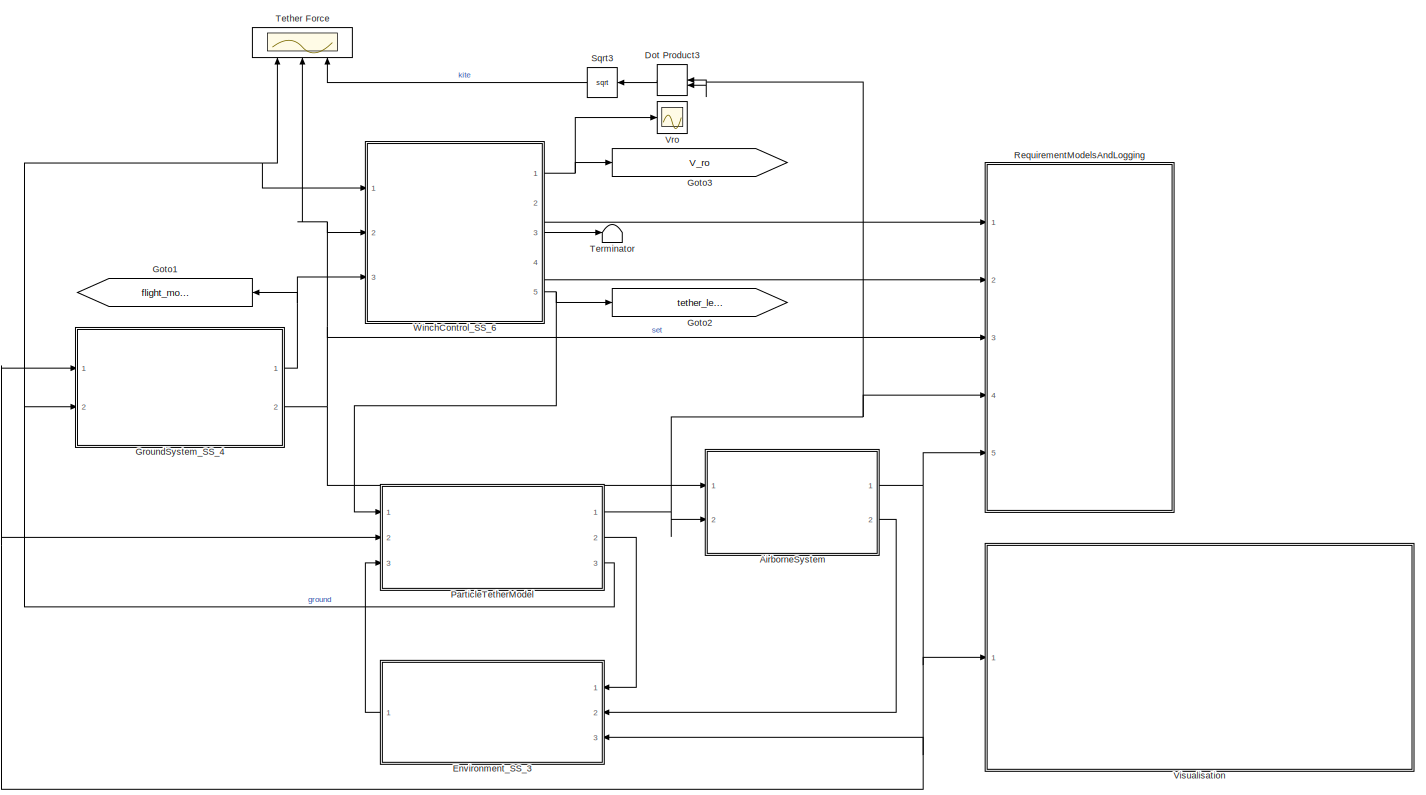
[diagram: root canvas - part 1/1, most of the canvas]
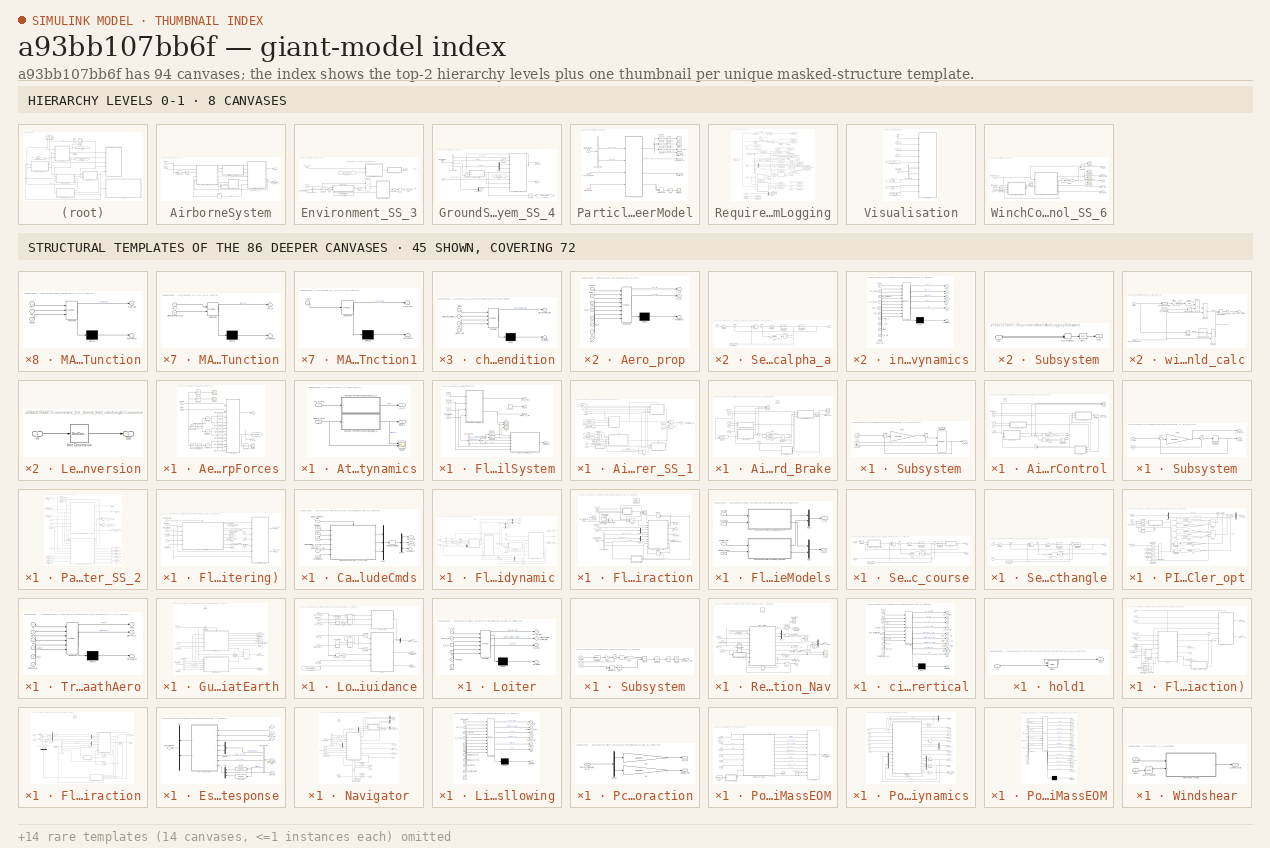
[diagram: thumbnail index - top-2 hierarchy levels (8 canvases) + 45 structural-template representatives of the remaining 86 canvases]
MODEL slx_a93bb107bb6f
KIND model
CONFIG AbsTol = auto
CONFIG FixedStep = dt
CONFIG InitFcn = close all
CONFIG MaxStep = auto
CONFIG MinStep = auto
CONFIG RelTol = 1e-3
CONFIG SampleTimeConstraint = Unconstrained
CONFIG Solver = ode4
CONFIG SolverMode = Auto
CONFIG SolverName = ode4
CONFIG StartTime = 0.0
CONFIG StopTime = 300
BLOCK [SubSystem] AirborneSystem
  Ports = [2, 2]
  RequestExecContextInheritance = off
BLOCK [SubSystem] AirborneSystem/AeroAndPropForces
  Ports = [2, 2]
  RequestExecContextInheritance = off
BLOCK [Lookup_n-D] AirborneSystem/AeroAndPropForces/1-D Lookup Table
  BreakpointsForDimension1 = DE2019.initAircraft.alpha
  BreakpointsForDimension2 = [1 1]
  InternalRulePriority = Speed
  NumberOfTableDimensions = 1
  Ports = [1, 1]
  RndMeth = Simplest
  Table = DE2019.initAircraft.wing_cL_Static'
BLOCK [Lookup_n-D] AirborneSystem/AeroAndPropForces/1-D Lookup Table1
  BreakpointsForDimension1 = DE2019.initAircraft.alpha
  BreakpointsForDimension2 = [1 1]
  InternalRulePriority = Speed
  NumberOfTableDimensions = 1
  Ports = [1, 1]
  RndMeth = Simplest
  Table = DE2019.initAircraft.wing_cD_Static'
BLOCK [Lookup_n-D] AirborneSystem/AeroAndPropForces/1-D Lookup Table2
  BreakpointsForDimension1 = DE2019.alpha
  BreakpointsForDimension2 = [1 1]
  InternalRulePriority = Speed
  NumberOfTableDimensions = 1
  Ports = [1, 1]
  RndMeth = Simplest
  Table = DE2019.el_cL'
BLOCK [Lookup_n-D] AirborneSystem/AeroAndPropForces/1-D Lookup Table3
  BreakpointsForDimension1 = DE2019.alpha
  BreakpointsForDimension2 = [1 1]
  InternalRulePriority = Speed
  NumberOfTableDimensions = 1
  Ports = [1, 1]
  RndMeth = Simplest
  Table = DE2019.el_cD'
BLOCK [Lookup_n-D] AirborneSystem/AeroAndPropForces/1-D Lookup Table4
  BreakpointsForDimension1 = DE2019.alpha
  BreakpointsForDimension2 = [1 1]
  InternalRulePriority = Speed
  NumberOfTableDimensions = 1
  Ports = [1, 1]
  RndMeth = Simplest
  Table = DE2019.vs_cL'
BLOCK [Lookup_n-D] AirborneSystem/AeroAndPropForces/1-D Lookup Table5
  BreakpointsForDimension1 = DE2019.alpha
  BreakpointsForDimension2 = [1 1]
  InternalRulePriority = Speed
  NumberOfTableDimensions = 1
  Ports = [1, 1]
  RndMeth = Simplest
  Table = DE2019.vs_cD'
BLOCK [SubSystem] AirborneSystem/AeroAndPropForces/Aero_prop
  ErrorFcn = Stateflow.Translate.translate
  PermitHierarchicalResolution = ExplicitOnly
  Ports = [8, 2]
  RequestExecContextInheritance = off
  SFBlockType = MATLAB Function
  TreatAsAtomicUnit = on
BLOCK [Demux] AirborneSystem/AeroAndPropForces/Aero_prop/ Demux 
  Outputs = 1
  Ports = [1, 1]
BLOCK [S-Function] AirborneSystem/AeroAndPropForces/Aero_prop/ SFunction 
  EnableBusSupport = on
  FunctionName = sf_sfun
  Parameters = DE2019,ENVMT
  PortCounts = [8 3]
  Ports = [8, 3]
  SFunctionDeploymentMode = off
  Tag = Stateflow S-Function Dyn_Point_R2015B 10
BLOCK [Terminator] AirborneSystem/AeroAndPropForces/Aero_prop/ Terminator 
BLOCK [Outport] AirborneSystem/AeroAndPropForces/Aero_prop/F_a_B
  IconDisplay = Port number
  Port = 2
BLOCK [Outport] AirborneSystem/AeroAndPropForces/Aero_prop/F_p_B
  IconDisplay = Port number
BLOCK [Inport] AirborneSystem/AeroAndPropForces/Aero_prop/airdata
  IconDisplay = Port number
BLOCK [Inport] AirborneSystem/AeroAndPropForces/Aero_prop/cd_e
  IconDisplay = Port number
  Port = 6
BLOCK [Inport] AirborneSystem/AeroAndPropForces/Aero_prop/cd_r
  IconDisplay = Port number
  Port = 8
BLOCK [Inport] AirborneSystem/AeroAndPropForces/Aero_prop/cd_w
  IconDisplay = Port number
  Port = 4
BLOCK [Inport] AirborneSystem/AeroAndPropForces/Aero_prop/cl_e
  IconDisplay = Port number
  Port = 5
BLOCK [Inport] AirborneSystem/AeroAndPropForces/Aero_prop/cl_r
  IconDisplay = Port number
  Port = 7
BLOCK [Inport] AirborneSystem/AeroAndPropForces/Aero_prop/cl_w
  IconDisplay = Port number
  Port = 3
BLOCK [Inport] AirborneSystem/AeroAndPropForces/Aero_prop/delta_t
  IconDisplay = Port number
  Port = 2
BLOCK [Outport] AirborneSystem/AeroAndPropForces/F_a_B
  IconDisplay = Port number
  Port = 2
BLOCK [Outport] AirborneSystem/AeroAndPropForces/F_p_B
  IconDisplay = Port number
BLOCK [Goto] AirborneSystem/AeroAndPropForces/Goto
  GotoTag = Aero_forces
  TagVisibility = global
BLOCK [Reference] AirborneSystem/AeroAndPropForces/Radians to Degrees  REF=simulink_extras/Transformations/Radians
to Degrees
  Ports = [1, 1]
  SourceBlock = simulink_extras/Transformations/Radians\nto Degrees
  SourceType = RadiansToDegrees
BLOCK [Reference] AirborneSystem/AeroAndPropForces/Radians to Degrees1  REF=simulink_extras/Transformations/Radians
to Degrees
  Ports = [1, 1]
  SourceBlock = simulink_extras/Transformations/Radians\nto Degrees
  SourceType = RadiansToDegrees
BLOCK [Saturate] AirborneSystem/AeroAndPropForces/Saturation
  InputPortMap = u0
  LowerLimit = min(DE2019.initAircraft.alpha)
  Ports = [1, 1]
  UpperLimit = max(DE2019.initAircraft.alpha)
BLOCK [Saturate] AirborneSystem/AeroAndPropForces/Saturation1
  InputPortMap = u0
  LowerLimit = min(DE2019.alpha)
  Ports = [1, 1]
  UpperLimit = max(DE2019.alpha)
BLOCK [Saturate] AirborneSystem/AeroAndPropForces/Saturation2
  InputPortMap = u0
  LowerLimit = min(DE2019.alpha)
  Ports = [1, 1]
  UpperLimit = max(DE2019.alpha)
BLOCK [Scope] AirborneSystem/AeroAndPropForces/Scope
  Commented = on
  Floating = off
  NumInputPorts = 1
  Ports = [1]
  ScopeSpecificationString = Simulink.scopes.TimeScopeBlockCfg('CurrentConfiguration', extmgr.ConfigurationSet(extmgr.Configuration('Core','General UI',true),extmgr.Configuration('Core','Source UI',true),extmgr.Configuration('Sources','WiredSimulink',true,'DataLoggingVariableName','ScopeData2'),extmgr.Configuration('Visuals','Time Domain',true,'SerializedDisplays',{struct('MinYLimReal','-1000000.00000','MaxYLimReal','1000000....<+1510ch>
BLOCK [Selector] AirborneSystem/AeroAndPropForces/Selector
  Commented = on
  IndexOptions = Index vector (dialog)
  Indices = [1]
  InputPortWidth = 3
  OutputSizes = 1
  Ports = [1, 1]
BLOCK [Selector] AirborneSystem/AeroAndPropForces/Selector1
  Commented = on
  IndexOptions = Index vector (dialog)
  Indices = 2
  InputPortWidth = 3
  OutputSizes = 1
  Ports = [1, 1]
BLOCK [Selector] AirborneSystem/AeroAndPropForces/Selector2
  Commented = on
  IndexOptions = Index vector (dialog)
  Indices = 3
  InputPortWidth = 3
  OutputSizes = 1
  Ports = [1, 1]
BLOCK [Scope] AirborneSystem/AeroAndPropForces/Velocity
  Commented = on
  Floating = off
  NumInputPorts = 1
  Ports = [1]
  ScopeSpecificationString = Simulink.scopes.TimeScopeBlockCfg('CurrentConfiguration', extmgr.ConfigurationSet(extmgr.Configuration('Core','General UI',true),extmgr.Configuration('Core','Source UI',true),extmgr.Configuration('Sources','WiredSimulink',true,'DataLoggingVariableName','ScopeData1'),extmgr.Configuration('Visuals','Time Domain',true,'SerializedDisplays',{struct('MinYLimReal','-1.07114','MaxYLimReal','159.55281','YL...<+1473ch>
BLOCK [Inport] AirborneSystem/AeroAndPropForces/air_data
  IconDisplay = Port number
  Port = 2
BLOCK [Scope] AirborneSystem/AeroAndPropForces/alpha
  Commented = on
  Floating = off
  NumInputPorts = 1
  Ports = [1]
  ScopeSpecificationString = Simulink.scopes.TimeScopeBlockCfg('CurrentConfiguration', extmgr.ConfigurationSet(extmgr.Configuration('Core','General UI',true),extmgr.Configuration('Core','Source UI',true),extmgr.Configuration('Sources','WiredSimulink',true,'DataLoggingVariableName','ScopeData7'),extmgr.Configuration('Visuals','Time Domain',true,'SerializedDisplays',{struct('MinYLimReal','-0.20002','MaxYLimReal','0.08816','YLab...<+1412ch>
BLOCK [Selector] AirborneSystem/AeroAndPropForces/alpha select
  IndexOptions = Index vector (dialog)
  Indices = 2
  InputPortWidth = 3
  OutputSizes = 1
  Ports = [1, 1]
BLOCK [Selector] AirborneSystem/AeroAndPropForces/beta select
  IndexOptions = Index vector (dialog)
  Indices = 3
  InputPortWidth = 3
  OutputSizes = 1
  Ports = [1, 1]
BLOCK [Inport] AirborneSystem/AeroAndPropForces/throttle
  IconDisplay = Port number
BLOCK [SubSystem] AirborneSystem/AttitudeDynamics
  Ports = [2, 2]
  RequestExecContextInheritance = off
BLOCK [Scope] AirborneSystem/AttitudeDynamics/Scope
  Commented = on
  Floating = off
  NumInputPorts = 2
  Ports = [2]
  ScopeSpecificationString = Simulink.scopes.TimeScopeBlockCfg('CurrentConfiguration', extmgr.ConfigurationSet(extmgr.Configuration('Core','General UI',true),extmgr.Configuration('Core','Source UI',true),extmgr.Configuration('Sources','WiredSimulink',true,'DataLoggingVariableName','ScopeData3'),extmgr.Configuration('Visuals','Time Domain',true,'SerializedDisplays',{struct('MinYLimReal','-0.20289','MaxYLimReal','0.08072','YLab...<+1424ch>
BLOCK [SubSystem] AirborneSystem/AttitudeDynamics/SecondOrderReferenceModel_alpha_a
  Ports = [1, 1]
  RequestExecContextInheritance = off
BLOCK [Constant] AirborneSystem/AttitudeDynamics/SecondOrderReferenceModel_alpha_a/Constant
  Value = omega0_max
BLOCK [DiscreteIntegrator] AirborneSystem/AttitudeDynamics/SecondOrderReferenceModel_alpha_a/Discrete-Time Integrator
  ICPrevOutput = DiscIntNeverNeededParam
  ICPrevScaledInput = DiscIntNeverNeededParam
  InitialConditionSetting = State (most efficient)
  LimitOutput = on
  LowerSaturationLimit = y_min
  Ports = [1, 1]
  SampleTime = -1
  UpperSaturationLimit = y_max
BLOCK [DiscreteIntegrator] AirborneSystem/AttitudeDynamics/SecondOrderReferenceModel_alpha_a/Discrete-Time Integrator1
  ICPrevOutput = DiscIntNeverNeededParam
  ICPrevScaledInput = DiscIntNeverNeededParam
  InitialConditionSetting = State (most efficient)
  LimitOutput = on
  LowerSaturationLimit = yd_min
  Ports = [1, 1]
  SampleTime = -1
  UpperSaturationLimit = yd_max
BLOCK [Gain] AirborneSystem/AttitudeDynamics/SecondOrderReferenceModel_alpha_a/Gain2
  Gain = 2*zeta0
  OutDataTypeStr = Inherit: Inherit via internal rule
  ParamDataTypeStr = Inherit: Inherit via internal rule
  SaturateOnIntegerOverflow = off
BLOCK [Product] AirborneSystem/AttitudeDynamics/SecondOrderReferenceModel_alpha_a/Product
  InputSameDT = off
  Inputs = 3
  OutDataTypeStr = Inherit: Inherit via internal rule
  Ports = [3, 1]
  RndMeth = Floor
  SaturateOnIntegerOverflow = off
BLOCK [Product] AirborneSystem/AttitudeDynamics/SecondOrderReferenceModel_alpha_a/Product1
  InputSameDT = off
  OutDataTypeStr = Inherit: Inherit via internal rule
  Ports = [2, 1]
  RndMeth = Floor
  SaturateOnIntegerOverflow = off
BLOCK [Saturate] AirborneSystem/AttitudeDynamics/SecondOrderReferenceModel_alpha_a/Saturation
  InputPortMap = u0
  LowerLimit = y_min
  Ports = [1, 1]
  UpperLimit = y_max
BLOCK [Saturate] AirborneSystem/AttitudeDynamics/SecondOrderReferenceModel_alpha_a/Saturation1
  InputPortMap = u0
  LowerLimit = y2d_min
  Ports = [1, 1]
  UpperLimit = y2d_max
BLOCK [Sum] AirborneSystem/AttitudeDynamics/SecondOrderReferenceModel_alpha_a/Sum
  IconShape = round
  InputSameDT = off
  Inputs = |+-
  OutDataTypeStr = Inherit: Inherit via internal rule
  Ports = [2, 1]
  SaturateOnIntegerOverflow = off
BLOCK [Sum] AirborneSystem/AttitudeDynamics/SecondOrderReferenceModel_alpha_a/Sum1
  IconShape = round
  InputSameDT = off
  Inputs = |+-
  OutDataTypeStr = Inherit: Inherit via internal rule
  Ports = [2, 1]
  SaturateOnIntegerOverflow = off
BLOCK [Inport] AirborneSystem/AttitudeDynamics/SecondOrderReferenceModel_alpha_a/y_cmd
  IconDisplay = Port number
BLOCK [Outport] AirborneSystem/AttitudeDynamics/SecondOrderReferenceModel_alpha_a/y_ref
  IconDisplay = Port number
BLOCK [SubSystem] AirborneSystem/AttitudeDynamics/SecondOrderReferenceModel_mu_a
  Ports = [1, 1]
  RequestExecContextInheritance = off
BLOCK [Constant] AirborneSystem/AttitudeDynamics/SecondOrderReferenceModel_mu_a/Constant
  Value = omega0_max
BLOCK [DiscreteIntegrator] AirborneSystem/AttitudeDynamics/SecondOrderReferenceModel_mu_a/Discrete-Time Integrator
  ICPrevOutput = DiscIntNeverNeededParam
  ICPrevScaledInput = DiscIntNeverNeededParam
  InitialConditionSetting = State (most efficient)
  LimitOutput = on
  LowerSaturationLimit = y_min
  Ports = [1, 1]
  SampleTime = -1
  UpperSaturationLimit = y_max
BLOCK [DiscreteIntegrator] AirborneSystem/AttitudeDynamics/SecondOrderReferenceModel_mu_a/Discrete-Time Integrator1
  ICPrevOutput = DiscIntNeverNeededParam
  ICPrevScaledInput = DiscIntNeverNeededParam
  InitialConditionSetting = State (most efficient)
  LimitOutput = on
  LowerSaturationLimit = yd_min
  Ports = [1, 1]
  SampleTime = -1
  UpperSaturationLimit = yd_max
BLOCK [Gain] AirborneSystem/AttitudeDynamics/SecondOrderReferenceModel_mu_a/Gain2
  Gain = 2*zeta0
  OutDataTypeStr = Inherit: Inherit via internal rule
  ParamDataTypeStr = Inherit: Inherit via internal rule
  SaturateOnIntegerOverflow = off
BLOCK [Product] AirborneSystem/AttitudeDynamics/SecondOrderReferenceModel_mu_a/Product
  InputSameDT = off
  Inputs = 3
  OutDataTypeStr = Inherit: Inherit via internal rule
  Ports = [3, 1]
  RndMeth = Floor
  SaturateOnIntegerOverflow = off
BLOCK [Product] AirborneSystem/AttitudeDynamics/SecondOrderReferenceModel_mu_a/Product1
  InputSameDT = off
  OutDataTypeStr = Inherit: Inherit via internal rule
  Ports = [2, 1]
  RndMeth = Floor
  SaturateOnIntegerOverflow = off
BLOCK [Saturate] AirborneSystem/AttitudeDynamics/SecondOrderReferenceModel_mu_a/Saturation
  InputPortMap = u0
  LowerLimit = y_min
  Ports = [1, 1]
  UpperLimit = y_max
BLOCK [Saturate] AirborneSystem/AttitudeDynamics/SecondOrderReferenceModel_mu_a/Saturation1
  InputPortMap = u0
  LowerLimit = y2d_min
  Ports = [1, 1]
  UpperLimit = y2d_max
BLOCK [Sum] AirborneSystem/AttitudeDynamics/SecondOrderReferenceModel_mu_a/Sum
  IconShape = round
  InputSameDT = off
  Inputs = |+-
  OutDataTypeStr = Inherit: Inherit via internal rule
  Ports = [2, 1]
  SaturateOnIntegerOverflow = off
BLOCK [Sum] AirborneSystem/AttitudeDynamics/SecondOrderReferenceModel_mu_a/Sum1
  IconShape = round
  InputSameDT = off
  Inputs = |+-
  OutDataTypeStr = Inherit: Inherit via internal rule
  Ports = [2, 1]
  SaturateOnIntegerOverflow = off
BLOCK [Inport] AirborneSystem/AttitudeDynamics/SecondOrderReferenceModel_mu_a/y_cmd
  IconDisplay = Port number
BLOCK [Outport] AirborneSystem/AttitudeDynamics/SecondOrderReferenceModel_mu_a/y_ref
  IconDisplay = Port number
BLOCK [Outport] AirborneSystem/AttitudeDynamics/alpha_a
  IconDisplay = Port number
  Port = 2
BLOCK [Inport] AirborneSystem/AttitudeDynamics/alpha_a_cmd
  IconDisplay = Port number
  Port = 2
BLOCK [Outport] AirborneSystem/AttitudeDynamics/mu_a
  IconDisplay = Port number
BLOCK [Inport] AirborneSystem/AttitudeDynamics/mu_a_cmd
  IconDisplay = Port number
BLOCK [BusSelector] AirborneSystem/Bus Selector1
  OutputSignals = airdata
  Ports = [1, 1]
BLOCK [Delay] AirborneSystem/Delay2
  DelayLength = 1
  InitialCondition = [0;0;DE2019.mass*ENVMT.g]
  InputPortMap = u0
  Ports = [1, 1]
BLOCK [DotProduct] AirborneSystem/Dot Product
  OutDataTypeStr = Inherit: Inherit via internal rule
BLOCK [SubSystem] AirborneSystem/FlightControlSystem
  Ports = [4, 4]
  RequestExecContextInheritance = off
BLOCK [SubSystem] AirborneSystem/FlightControlSystem/AirspeedController_SS_1
  Ports = [6, 1]
  RequestExecContextInheritance = off
BLOCK [Sum] AirborneSystem/FlightControlSystem/AirspeedController_SS_1/Add
  InputSameDT = off
  OutDataTypeStr = Inherit: Inherit via internal rule
  Ports = [2, 1]
  SaturateOnIntegerOverflow = off
BLOCK [SubSystem] AirborneSystem/FlightControlSystem/AirspeedController_SS_1/Airspeed_Brake
  Ports = [5, 1, 1]
  RequestExecContextInheritance = off
BLOCK [Inport] AirborneSystem/FlightControlSystem/AirspeedController_SS_1/Airspeed_Brake/AoA
  IconDisplay = Port number
  Port = 2
BLOCK [Outport] AirborneSystem/FlightControlSystem/AirspeedController_SS_1/Airspeed_Brake/Brake_force
  IconDisplay = Port number
BLOCK [Delay] AirborneSystem/FlightControlSystem/AirspeedController_SS_1/Airspeed_Brake/Delay1
  DelayLength = 1
  InitialCondition = zeros(3,1)
  InitialConditionSource = Input port
  InputPortMap = u0,p4
  Ports = [2, 1]
BLOCK [DiscreteIntegrator] AirborneSystem/FlightControlSystem/AirspeedController_SS_1/Airspeed_Brake/Discrete-Time Integrator
  ICPrevOutput = DiscIntNeverNeededParam
  ICPrevScaledInput = DiscIntNeverNeededParam
  InitialConditionSetting = State (most efficient)
  Ports = [1, 1]
  SampleTime = -1
BLOCK [EnablePort] AirborneSystem/FlightControlSystem/AirspeedController_SS_1/Airspeed_Brake/Enable
  Ports = []
BLOCK [Inport] AirborneSystem/FlightControlSystem/AirspeedController_SS_1/Airspeed_Brake/F_a_Bt
  IconDisplay = Port number
  PortDimensions = [3,1]
BLOCK [SubSystem] AirborneSystem/FlightControlSystem/AirspeedController_SS_1/Airspeed_Brake/FeedforwardPart
  ErrorFcn = Stateflow.Translate.translate
  PermitHierarchicalResolution = ExplicitOnly
  Ports = [3, 1]
  RequestExecContextInheritance = off
  SFBlockType = MATLAB Function
  TreatAsAtomicUnit = on
BLOCK [Demux] AirborneSystem/FlightControlSystem/AirspeedController_SS_1/Airspeed_Brake/FeedforwardPart/ Demux 
  DisplayOption = bar
  Outputs = 1
  Ports = [1, 1]
BLOCK [S-Function] AirborneSystem/FlightControlSystem/AirspeedController_SS_1/Airspeed_Brake/FeedforwardPart/ SFunction 
  EnableBusSupport = on
  FunctionName = sf_sfun
  Parameters = DE2019,ENVMT
  PortCounts = [3 2]
  Ports = [3, 2]
  SFunctionDeploymentMode = off
  Tag = Stateflow S-Function Dyn_Point_R2015B 11
BLOCK [Terminator] AirborneSystem/FlightControlSystem/AirspeedController_SS_1/Airspeed_Brake/FeedforwardPart/ Terminator 
BLOCK [Outport] AirborneSystem/FlightControlSystem/AirspeedController_SS_1/Airspeed_Brake/FeedforwardPart/BF
  IconDisplay = Port number
BLOCK [Inport] AirborneSystem/FlightControlSystem/AirspeedController_SS_1/Airspeed_Brake/FeedforwardPart/Drag_force
  IconDisplay = Port number
  Port = 3
BLOCK [Inport] AirborneSystem/FlightControlSystem/AirspeedController_SS_1/Airspeed_Brake/FeedforwardPart/gamma
  IconDisplay = Port number
BLOCK [Inport] AirborneSystem/FlightControlSystem/AirspeedController_SS_1/Airspeed_Brake/FeedforwardPart/nu_V
  IconDisplay = Port number
  Port = 2
BLOCK [Gain] AirborneSystem/FlightControlSystem/AirspeedController_SS_1/Airspeed_Brake/Gain3
  Gain = params.Kp_brake
  OutDataTypeStr = Inherit: Inherit via internal rule
  ParamDataTypeStr = Inherit: Inherit via internal rule
  SaturateOnIntegerOverflow = off
BLOCK [Gain] AirborneSystem/FlightControlSystem/AirspeedController_SS_1/Airspeed_Brake/Gain4
  Gain = params.Ki_brake
  OutDataTypeStr = Inherit: Inherit via internal rule
  ParamDataTypeStr = Inherit: Inherit via internal rule
  SaturateOnIntegerOverflow = off
BLOCK [SubSystem] AirborneSystem/FlightControlSystem/AirspeedController_SS_1/Airspeed_Brake/MATLAB Function
  ErrorFcn = Stateflow.Translate.translate
  PermitHierarchicalResolution = ExplicitOnly
  Ports = [2, 1]
  RequestExecContextInheritance = off
  SFBlockType = MATLAB Function
  TreatAsAtomicUnit = on
BLOCK [Demux] AirborneSystem/FlightControlSystem/AirspeedController_SS_1/Airspeed_Brake/MATLAB Function/ Demux 
  DisplayOption = bar
  Outputs = 1
  Ports = [1, 1]
BLOCK [S-Function] AirborneSystem/FlightControlSystem/AirspeedController_SS_1/Airspeed_Brake/MATLAB Function/ SFunction 
  EnableBusSupport = on
  FunctionName = sf_sfun
  PortCounts = [2 2]
  Ports = [2, 2]
  SFunctionDeploymentMode = off
  Tag = Stateflow S-Function Dyn_Point_R2015B 12
BLOCK [Terminator] AirborneSystem/FlightControlSystem/AirspeedController_SS_1/Airspeed_Brake/MATLAB Function/ Terminator 
BLOCK [Inport] AirborneSystem/FlightControlSystem/AirspeedController_SS_1/Airspeed_Brake/MATLAB Function/AoA
  IconDisplay = Port number
  Port = 2
BLOCK [Outport] AirborneSystem/FlightControlSystem/AirspeedController_SS_1/Airspeed_Brake/MATLAB Function/Drag
  IconDisplay = Port number
BLOCK [Inport] AirborneSystem/FlightControlSystem/AirspeedController_SS_1/Airspeed_Brake/MATLAB Function/F_a_B
  IconDisplay = Port number
BLOCK [Saturate] AirborneSystem/FlightControlSystem/AirspeedController_SS_1/Airspeed_Brake/Saturation
  InputPortMap = u0
  LinearizeAsGain = off
  LowerLimit = -inf
  Ports = [1, 1]
  UpperLimit = 0
BLOCK [Scope] AirborneSystem/FlightControlSystem/AirspeedController_SS_1/Airspeed_Brake/Scope
  Floating = off
  NumInputPorts = 3
  Ports = [3]
  ScopeSpecificationString = Simulink.scopes.TimeScopeBlockCfg('CurrentConfiguration', extmgr.ConfigurationSet(extmgr.Configuration('Core','General UI',true),extmgr.Configuration('Core','Source UI',true),extmgr.Configuration('Sources','WiredSimulink',true,'DataLoggingVariableName','ScopeData7'),extmgr.Configuration('Visuals','Time Domain',true,'SerializedDisplays',{struct('MinYLimReal','-37.49306','MaxYLimReal','337.49923','Y...<+1488ch>
BLOCK [Scope] AirborneSystem/FlightControlSystem/AirspeedController_SS_1/Airspeed_Brake/Scope1
  Floating = off
  NumInputPorts = 1
  Ports = [1]
  ScopeSpecificationString = Simulink.scopes.TimeScopeBlockCfg('CurrentConfiguration', extmgr.ConfigurationSet(extmgr.Configuration('Core','General UI',true),extmgr.Configuration('Core','Source UI',true),extmgr.Configuration('Sources','WiredSimulink',true,'DataLoggingVariableName','ScopeData1'),extmgr.Configuration('Visuals','Time Domain',true,'SerializedDisplays',{struct('MinYLimReal','-80312.84743','MaxYLimReal','8923.64971...<+1452ch>
BLOCK [SubSystem] AirborneSystem/FlightControlSystem/AirspeedController_SS_1/Airspeed_Brake/Subsystem
  Ports = [3, 1]
  RequestExecContextInheritance = off
BLOCK [DiscreteIntegrator] AirborneSystem/FlightControlSystem/AirspeedController_SS_1/Airspeed_Brake/Subsystem/Discrete-Time Integrator1
  ICPrevOutput = DiscIntNeverNeededParam
  ICPrevScaledInput = DiscIntNeverNeededParam
  InitialCondition = norm(simInit.vel_B_init)
  InitialConditionSetting = State (most efficient)
  InitialConditionSource = external
  LimitOutput = on
  LowerSaturationLimit = 0
  Ports = [2, 1]
  SampleTime = -1
  UpperSaturationLimit = 120
BLOCK [Gain] AirborneSystem/FlightControlSystem/AirspeedController_SS_1/Airspeed_Brake/Subsystem/Gain2
  Gain = params.w0SpeedControl
  Multiplication = Matrix(K*u)
  OutDataTypeStr = Inherit: Inherit via internal rule
  ParamDataTypeStr = Inherit: Inherit via internal rule
  SaturateOnIntegerOverflow = off
BLOCK [Inport] AirborneSystem/FlightControlSystem/AirspeedController_SS_1/Airspeed_Brake/Subsystem/Initial
  IconDisplay = Port number
  Port = 3
BLOCK [Sum] AirborneSystem/FlightControlSystem/AirspeedController_SS_1/Airspeed_Brake/Subsystem/Sum1
  IconShape = round
  InputSameDT = off
  Inputs = |+-
  OutDataTypeStr = Inherit: Inherit via internal rule
  Ports = [2, 1]
  SaturateOnIntegerOverflow = off
BLOCK [Sum] AirborneSystem/FlightControlSystem/AirspeedController_SS_1/Airspeed_Brake/Subsystem/Sum2
  IconShape = round
  InputSameDT = off
  Inputs = |+-
  OutDataTypeStr = Inherit: Inherit via internal rule
  Ports = [2, 1]
  SaturateOnIntegerOverflow = off
BLOCK [Inport] AirborneSystem/FlightControlSystem/AirspeedController_SS_1/Airspeed_Brake/Subsystem/V_cmd
  IconDisplay = Port number
BLOCK [Outport] AirborneSystem/FlightControlSystem/AirspeedController_SS_1/Airspeed_Brake/Subsystem/V_k_ref
  IconDisplay = Port number
BLOCK [Inport] AirborneSystem/FlightControlSystem/AirspeedController_SS_1/Airspeed_Brake/Subsystem/v_h
  IconDisplay = Port number
  Port = 2
BLOCK [Sum] AirborneSystem/FlightControlSystem/AirspeedController_SS_1/Airspeed_Brake/Sum1
  InputSameDT = off
  OutDataTypeStr = Inherit: Inherit via internal rule
  Ports = [2, 1]
  SaturateOnIntegerOverflow = off
BLOCK [Sum] AirborneSystem/FlightControlSystem/AirspeedController_SS_1/Airspeed_Brake/Sum2
  IconShape = round
  InputSameDT = off
  Inputs = |+-
  OutDataTypeStr = Inherit: Inherit via internal rule
  Ports = [2, 1]
  SaturateOnIntegerOverflow = off
BLOCK [Sum] AirborneSystem/FlightControlSystem/AirspeedController_SS_1/Airspeed_Brake/Sum3
  IconShape = round
  InputSameDT = off
  Inputs = -+|
  OutDataTypeStr = Inherit: Inherit via internal rule
  Ports = [2, 1]
  SaturateOnIntegerOverflow = off
BLOCK [Inport] AirborneSystem/FlightControlSystem/AirspeedController_SS_1/Airspeed_Brake/V_cmd
  IconDisplay = Port number
  Port = 5
BLOCK [Inport] AirborneSystem/FlightControlSystem/AirspeedController_SS_1/Airspeed_Brake/Vk
  IconDisplay = Port number
  Port = 3
BLOCK [Inport] AirborneSystem/FlightControlSystem/AirspeedController_SS_1/Airspeed_Brake/gamma_a
  IconDisplay = Port number
  Port = 4
BLOCK [SubSystem] AirborneSystem/FlightControlSystem/AirspeedController_SS_1/Airspeed_Brake/hedging
  ErrorFcn = Stateflow.Translate.translate
  PermitHierarchicalResolution = ExplicitOnly
  Ports = [3, 1]
  RequestExecContextInheritance = off
  SFBlockType = MATLAB Function
  TreatAsAtomicUnit = on
BLOCK [Demux] AirborneSystem/FlightControlSystem/AirspeedController_SS_1/Airspeed_Brake/hedging/ Demux 
  DisplayOption = bar
  Outputs = 1
  Ports = [1, 1]
BLOCK [S-Function] AirborneSystem/FlightControlSystem/AirspeedController_SS_1/Airspeed_Brake/hedging/ SFunction 
  EnableBusSupport = on
  FunctionName = sf_sfun
  Parameters = DE2019,ENVMT
  PortCounts = [3 2]
  Ports = [3, 2]
  SFunctionDeploymentMode = off
  Tag = Stateflow S-Function Dyn_Point_R2015B 13
BLOCK [Terminator] AirborneSystem/FlightControlSystem/AirspeedController_SS_1/Airspeed_Brake/hedging/ Terminator 
BLOCK [Inport] AirborneSystem/FlightControlSystem/AirspeedController_SS_1/Airspeed_Brake/hedging/BF
  IconDisplay = Port number
  Port = 3
BLOCK [Inport] AirborneSystem/FlightControlSystem/AirspeedController_SS_1/Airspeed_Brake/hedging/Drag_force
  IconDisplay = Port number
BLOCK [Inport] AirborneSystem/FlightControlSystem/AirspeedController_SS_1/Airspeed_Brake/hedging/gamma
  IconDisplay = Port number
  Port = 2
BLOCK [Outport] AirborneSystem/FlightControlSystem/AirspeedController_SS_1/Airspeed_Brake/hedging/nu_V
  IconDisplay = Port number
BLOCK [SubSystem] AirborneSystem/FlightControlSystem/AirspeedController_SS_1/Airspeed_Control
  Ports = [5, 1, 1]
  RequestExecContextInheritance = off
BLOCK [Inport] AirborneSystem/FlightControlSystem/AirspeedController_SS_1/Airspeed_Control/AoA
  IconDisplay = Port number
  Port = 3
BLOCK [DiscreteIntegrator] AirborneSystem/FlightControlSystem/AirspeedController_SS_1/Airspeed_Control/Discrete-Time Integrator
  ICPrevOutput = DiscIntNeverNeededParam
  ICPrevScaledInput = DiscIntNeverNeededParam
  InitialConditionSetting = State (most efficient)
  Ports = [1, 1]
  SampleTime = -1
BLOCK [EnablePort] AirborneSystem/FlightControlSystem/AirspeedController_SS_1/Airspeed_Control/Enable
  Ports = []
BLOCK [Inport] AirborneSystem/FlightControlSystem/AirspeedController_SS_1/Airspeed_Control/F_a_B
  IconDisplay = Port number
  Port = 2
  PortDimensions = [3,1]
BLOCK [SubSystem] AirborneSystem/FlightControlSystem/AirspeedController_SS_1/Airspeed_Control/FeedforwardPart
  ErrorFcn = Stateflow.Translate.translate
  PermitHierarchicalResolution = ExplicitOnly
  Ports = [3, 1]
  RequestExecContextInheritance = off
  SFBlockType = MATLAB Function
  TreatAsAtomicUnit = on
BLOCK [Demux] AirborneSystem/FlightControlSystem/AirspeedController_SS_1/Airspeed_Control/FeedforwardPart/ Demux 
  DisplayOption = bar
  Outputs = 1
  Ports = [1, 1]
BLOCK [S-Function] AirborneSystem/FlightControlSystem/AirspeedController_SS_1/Airspeed_Control/FeedforwardPart/ SFunction 
  EnableBusSupport = on
  FunctionName = sf_sfun
  Parameters = DE2019,ENVMT
  PortCounts = [3 2]
  Ports = [3, 2]
  SFunctionDeploymentMode = off
  Tag = Stateflow S-Function Dyn_Point_R2015B 18
BLOCK [Terminator] AirborneSystem/FlightControlSystem/AirspeedController_SS_1/Airspeed_Control/FeedforwardPart/ Terminator 
BLOCK [Inport] AirborneSystem/FlightControlSystem/AirspeedController_SS_1/Airspeed_Control/FeedforwardPart/Drag_force
  IconDisplay = Port number
  Port = 3
BLOCK [Outport] AirborneSystem/FlightControlSystem/AirspeedController_SS_1/Airspeed_Control/FeedforwardPart/T
  IconDisplay = Port number
BLOCK [Inport] AirborneSystem/FlightControlSystem/AirspeedController_SS_1/Airspeed_Control/FeedforwardPart/gamma
  IconDisplay = Port number
BLOCK [Inport] AirborneSystem/FlightControlSystem/AirspeedController_SS_1/Airspeed_Control/FeedforwardPart/nu_V
  IconDisplay = Port number
  Port = 2
BLOCK [Gain] AirborneSystem/FlightControlSystem/AirspeedController_SS_1/Airspeed_Control/Gain3
  Gain = params.kp_speed_control
  OutDataTypeStr = Inherit: Inherit via internal rule
  ParamDataTypeStr = Inherit: Inherit via internal rule
  SaturateOnIntegerOverflow = off
BLOCK [Gain] AirborneSystem/FlightControlSystem/AirspeedController_SS_1/Airspeed_Control/Gain4
  Gain = params.ki_speed_control
  OutDataTypeStr = Inherit: Inherit via internal rule
  ParamDataTypeStr = Inherit: Inherit via internal rule
  SaturateOnIntegerOverflow = off
BLOCK [SubSystem] AirborneSystem/FlightControlSystem/AirspeedController_SS_1/Airspeed_Control/MATLAB Function
  ErrorFcn = Stateflow.Translate.translate
  PermitHierarchicalResolution = ExplicitOnly
  Ports = [2, 1]
  RequestExecContextInheritance = off
  SFBlockType = MATLAB Function
  TreatAsAtomicUnit = on
BLOCK [Demux] AirborneSystem/FlightControlSystem/AirspeedController_SS_1/Airspeed_Control/MATLAB Function/ Demux 
  DisplayOption = bar
  Outputs = 1
  Ports = [1, 1]
BLOCK [S-Function] AirborneSystem/FlightControlSystem/AirspeedController_SS_1/Airspeed_Control/MATLAB Function/ SFunction 
  EnableBusSupport = on
  FunctionName = sf_sfun
  PortCounts = [2 2]
  Ports = [2, 2]
  SFunctionDeploymentMode = off
  Tag = Stateflow S-Function Dyn_Point_R2015B 20
BLOCK [Terminator] AirborneSystem/FlightControlSystem/AirspeedController_SS_1/Airspeed_Control/MATLAB Function/ Terminator 
BLOCK [Inport] AirborneSystem/FlightControlSystem/AirspeedController_SS_1/Airspeed_Control/MATLAB Function/AoA
  IconDisplay = Port number
  Port = 2
BLOCK [Outport] AirborneSystem/FlightControlSystem/AirspeedController_SS_1/Airspeed_Control/MATLAB Function/Drag
  IconDisplay = Port number
BLOCK [Inport] AirborneSystem/FlightControlSystem/AirspeedController_SS_1/Airspeed_Control/MATLAB Function/F_a_B
  IconDisplay = Port number
BLOCK [Saturate] AirborneSystem/FlightControlSystem/AirspeedController_SS_1/Airspeed_Control/Saturation
  InputPortMap = u0
  LinearizeAsGain = off
  LowerLimit = 0
  Ports = [1, 1]
  UpperLimit = inf
BLOCK [Scope] AirborneSystem/FlightControlSystem/AirspeedController_SS_1/Airspeed_Control/Scope
  Floating = off
  NumInputPorts = 3
  Ports = [3]
  ScopeSpecificationString = Simulink.scopes.TimeScopeBlockCfg('CurrentConfiguration', extmgr.ConfigurationSet(extmgr.Configuration('Core','General UI',true),extmgr.Configuration('Core','Source UI',true),extmgr.Configuration('Sources','WiredSimulink',true,'DataLoggingVariableName','ScopeData7'),extmgr.Configuration('Visuals','Time Domain',true,'SerializedDisplays',{struct('MinYLimReal','1.50702','MaxYLimReal','86.43635','YLab...<+1485ch>
BLOCK [SubSystem] AirborneSystem/FlightControlSystem/AirspeedController_SS_1/Airspeed_Control/Subsystem
  Ports = [2, 2]
  RequestExecContextInheritance = off
BLOCK [DiscreteIntegrator] AirborneSystem/FlightControlSystem/AirspeedController_SS_1/Airspeed_Control/Subsystem/Discrete-Time Integrator1
  ICPrevOutput = DiscIntNeverNeededParam
  ICPrevScaledInput = DiscIntNeverNeededParam
  InitialCondition = norm(simInit.vel_B_init)
  InitialConditionSetting = State (most efficient)
  LimitOutput = on
  LowerSaturationLimit = 0
  Ports = [1, 1]
  SampleTime = -1
  UpperSaturationLimit = 120
BLOCK [Gain] AirborneSystem/FlightControlSystem/AirspeedController_SS_1/Airspeed_Control/Subsystem/Gain2
  Gain = params.w0SpeedControl
  Multiplication = Matrix(K*u)
  OutDataTypeStr = Inherit: Inherit via internal rule
  ParamDataTypeStr = Inherit: Inherit via internal rule
  SaturateOnIntegerOverflow = off
BLOCK [Sum] AirborneSystem/FlightControlSystem/AirspeedController_SS_1/Airspeed_Control/Subsystem/Sum1
  IconShape = round
  InputSameDT = off
  Inputs = |+-
  OutDataTypeStr = Inherit: Inherit via internal rule
  Ports = [2, 1]
  SaturateOnIntegerOverflow = off
BLOCK [Sum] AirborneSystem/FlightControlSystem/AirspeedController_SS_1/Airspeed_Control/Subsystem/Sum2
  IconShape = round
  InputSameDT = off
  Inputs = |+-
  OutDataTypeStr = Inherit: Inherit via internal rule
  Ports = [2, 1]
  SaturateOnIntegerOverflow = off
BLOCK [Inport] AirborneSystem/FlightControlSystem/AirspeedController_SS_1/Airspeed_Control/Subsystem/V_cmd
  IconDisplay = Port number
BLOCK [Outport] AirborneSystem/FlightControlSystem/AirspeedController_SS_1/Airspeed_Control/Subsystem/V_k_ref
  IconDisplay = Port number
  Port = 2
BLOCK [Outport] AirborneSystem/FlightControlSystem/AirspeedController_SS_1/Airspeed_Control/Subsystem/V_k_ref_dot
  IconDisplay = Port number
BLOCK [Inport] AirborneSystem/FlightControlSystem/AirspeedController_SS_1/Airspeed_Control/Subsystem/v_h
  IconDisplay = Port number
  Port = 2
BLOCK [Sum] AirborneSystem/FlightControlSystem/AirspeedController_SS_1/Airspeed_Control/Sum
  IconShape = round
  InputSameDT = off
  Inputs = -+|
  OutDataTypeStr = Inherit: Inherit via internal rule
  Ports = [2, 1]
  SaturateOnIntegerOverflow = off
BLOCK [Sum] AirborneSystem/FlightControlSystem/AirspeedController_SS_1/Airspeed_Control/Sum1
  InputSameDT = off
  Inputs = +++
  OutDataTypeStr = Inherit: Inherit via internal rule
  Ports = [3, 1]
  SaturateOnIntegerOverflow = off
BLOCK [Sum] AirborneSystem/FlightControlSystem/AirspeedController_SS_1/Airspeed_Control/Sum2
  IconShape = round
  InputSameDT = off
  Inputs = |+-
  OutDataTypeStr = Inherit: Inherit via internal rule
  Ports = [2, 1]
  SaturateOnIntegerOverflow = off
BLOCK [Inport] AirborneSystem/FlightControlSystem/AirspeedController_SS_1/Airspeed_Control/V_CMD
  IconDisplay = Port number
BLOCK [Inport] AirborneSystem/FlightControlSystem/AirspeedController_SS_1/Airspeed_Control/Va
  IconDisplay = Port number
  Port = 4
BLOCK [Inport] AirborneSystem/FlightControlSystem/AirspeedController_SS_1/Airspeed_Control/gamma_a
  IconDisplay = Port number
  Port = 5
BLOCK [SubSystem] AirborneSystem/FlightControlSystem/AirspeedController_SS_1/Airspeed_Control/hedging
  ErrorFcn = Stateflow.Translate.translate
  PermitHierarchicalResolution = ExplicitOnly
  Ports = [3, 1]
  RequestExecContextInheritance = off
  SFBlockType = MATLAB Function
  TreatAsAtomicUnit = on
BLOCK [Demux] AirborneSystem/FlightControlSystem/AirspeedController_SS_1/Airspeed_Control/hedging/ Demux 
  DisplayOption = bar
  Outputs = 1
  Ports = [1, 1]
BLOCK [S-Function] AirborneSystem/FlightControlSystem/AirspeedController_SS_1/Airspeed_Control/hedging/ SFunction 
  EnableBusSupport = on
  FunctionName = sf_sfun
  Parameters = DE2019,ENVMT
  PortCounts = [3 2]
  Ports = [3, 2]
  SFunctionDeploymentMode = off
  Tag = Stateflow S-Function Dyn_Point_R2015B 21
BLOCK [Terminator] AirborneSystem/FlightControlSystem/AirspeedController_SS_1/Airspeed_Control/hedging/ Terminator 
BLOCK [Inport] AirborneSystem/FlightControlSystem/AirspeedController_SS_1/Airspeed_Control/hedging/Drag_force
  IconDisplay = Port number
BLOCK [Inport] AirborneSystem/FlightControlSystem/AirspeedController_SS_1/Airspeed_Control/hedging/T
  IconDisplay = Port number
  Port = 3
BLOCK [Inport] AirborneSystem/FlightControlSystem/AirspeedController_SS_1/Airspeed_Control/hedging/gamma
  IconDisplay = Port number
  Port = 2
BLOCK [Outport] AirborneSystem/FlightControlSystem/AirspeedController_SS_1/Airspeed_Control/hedging/nu_V
  IconDisplay = Port number
BLOCK [Outport] AirborneSystem/FlightControlSystem/AirspeedController_SS_1/Airspeed_Control/thrust_force
  IconDisplay = Port number
BLOCK [SubSystem] AirborneSystem/FlightControlSystem/AirspeedController_SS_1/Chart
  ErrorFcn = Stateflow.Translate.translate
  PermitHierarchicalResolution = ExplicitOnly
  Ports = [4, 1]
  RequestExecContextInheritance = off
  SFBlockType = Chart
  TreatAsAtomicUnit = on
BLOCK [Demux] AirborneSystem/FlightControlSystem/AirspeedController_SS_1/Chart/ Demux 
  DisplayOption = bar
  Outputs = 1
  Ports = [1, 1]
BLOCK [S-Function] AirborneSystem/FlightControlSystem/AirspeedController_SS_1/Chart/ SFunction 
  EnableBusSupport = on
  FunctionName = sf_sfun
  PortCounts = [4 2]
  Ports = [4, 2]
  SFunctionDeploymentMode = off
  Tag = Stateflow S-Function Dyn_Point_R2015B 22
BLOCK [Terminator] AirborneSystem/FlightControlSystem/AirspeedController_SS_1/Chart/ Terminator 
BLOCK [Inport] AirborneSystem/FlightControlSystem/AirspeedController_SS_1/Chart/Va
  IconDisplay = Port number
BLOCK [Inport] AirborneSystem/FlightControlSystem/AirspeedController_SS_1/Chart/Va_min
  IconDisplay = Port number
  Port = 2
BLOCK [Inport] AirborneSystem/FlightControlSystem/AirspeedController_SS_1/Chart/init_throttle_flag
  IconDisplay = Port number
  Port = 3
BLOCK [Inport] AirborneSystem/FlightControlSystem/AirspeedController_SS_1/Chart/manual_switch_on
  IconDisplay = Port number
  Port = 4
BLOCK [Outport] AirborneSystem/FlightControlSystem/AirspeedController_SS_1/Chart/throttle_on
  IconDisplay = Port number
BLOCK [SubSystem] AirborneSystem/FlightControlSystem/AirspeedController_SS_1/Chart1
  ErrorFcn = Stateflow.Translate.translate
  PermitHierarchicalResolution = ExplicitOnly
  Ports = [4, 1]
  RequestExecContextInheritance = off
  SFBlockType = Chart
  TreatAsAtomicUnit = on
BLOCK [Demux] AirborneSystem/FlightControlSystem/AirspeedController_SS_1/Chart1/ Demux 
  DisplayOption = bar
  Outputs = 1
  Ports = [1, 1]
BLOCK [S-Function] AirborneSystem/FlightControlSystem/AirspeedController_SS_1/Chart1/ SFunction 
  EnableBusSupport = on
  FunctionName = sf_sfun
  Parameters = Ft_retract,Vk_min
  PortCounts = [4 2]
  Ports = [4, 2]
  SFunctionDeploymentMode = off
  Tag = Stateflow S-Function Dyn_Point_R2015B 23
BLOCK [Terminator] AirborneSystem/FlightControlSystem/AirspeedController_SS_1/Chart1/ Terminator 
BLOCK [Inport] AirborneSystem/FlightControlSystem/AirspeedController_SS_1/Chart1/Ft
  IconDisplay = Port number
  Port = 4
BLOCK [Inport] AirborneSystem/FlightControlSystem/AirspeedController_SS_1/Chart1/Vk
  IconDisplay = Port number
  Port = 2
BLOCK [Inport] AirborneSystem/FlightControlSystem/AirspeedController_SS_1/Chart1/brake_flag
  IconDisplay = Port number
BLOCK [Outport] AirborneSystem/FlightControlSystem/AirspeedController_SS_1/Chart1/brake_on
  IconDisplay = Port number
BLOCK [Inport] AirborneSystem/FlightControlSystem/AirspeedController_SS_1/Chart1/manual_switch_on
  IconDisplay = Port number
  Port = 3
BLOCK [Reference] AirborneSystem/FlightControlSystem/AirspeedController_SS_1/Compare To Constant  REF=simulink/Logic and Bit
Operations/Compare
To Constant
  Commented = on
  Ports = [1, 1]
  SourceBlock = simulink/Logic and Bit\nOperations/Compare\nTo Constant
  SourceType = Compare To Constant
BLOCK [Reference] AirborneSystem/FlightControlSystem/AirspeedController_SS_1/Compare To Constant1  REF=simulink/Logic and Bit
Operations/Compare
To Constant
  Ports = [1, 1]
  SourceBlock = simulink/Logic and Bit\nOperations/Compare\nTo Constant
  SourceType = Compare To Constant
BLOCK [Constant] AirborneSystem/FlightControlSystem/AirspeedController_SS_1/Constant
  Value = 0
BLOCK [Constant] AirborneSystem/FlightControlSystem/AirspeedController_SS_1/Constant1
  Value = 0
BLOCK [Constant] AirborneSystem/FlightControlSystem/AirspeedController_SS_1/Constant4
  Value = 0
BLOCK [Constant] AirborneSystem/FlightControlSystem/AirspeedController_SS_1/Constant5
  Value = constr.Va_min
BLOCK [Constant] AirborneSystem/FlightControlSystem/AirspeedController_SS_1/Constant6
  Value = 0
BLOCK [Constant] AirborneSystem/FlightControlSystem/AirspeedController_SS_1/Constant7
  Value = loiterStates.Va_set
BLOCK [Constant] AirborneSystem/FlightControlSystem/AirspeedController_SS_1/Constant8
BLOCK [Constant] AirborneSystem/FlightControlSystem/AirspeedController_SS_1/Constant9
BLOCK [Delay] AirborneSystem/FlightControlSystem/AirspeedController_SS_1/Delay
  DelayLength = 1
  ExternalReset = Rising
  InitialConditionSource = Input port
  InputPortMap = u0,r5,p4
  Ports = [3, 1]
BLOCK [Inport] AirborneSystem/FlightControlSystem/AirspeedController_SS_1/F_a_B
  IconDisplay = Port number
  Port = 5
BLOCK [From] AirborneSystem/FlightControlSystem/AirspeedController_SS_1/From
  Commented = on
  GotoTag = flight_mode
  TagVisibility = global
BLOCK [From] AirborneSystem/FlightControlSystem/AirspeedController_SS_1/From1
  GotoTag = sub_flight_state
  TagVisibility = global
BLOCK [From] AirborneSystem/FlightControlSystem/AirspeedController_SS_1/From2
  GotoTag = init_throttle_flag
  TagVisibility = global
BLOCK [From] AirborneSystem/FlightControlSystem/AirspeedController_SS_1/From3
  GotoTag = Vk_desired_retraction
  TagVisibility = global
BLOCK [Inport] AirborneSystem/FlightControlSystem/AirspeedController_SS_1/Ft_set
  IconDisplay = Port number
  Port = 6
BLOCK [SubSystem] AirborneSystem/FlightControlSystem/AirspeedController_SS_1/MATLAB Function1
  ErrorFcn = Stateflow.Translate.translate
  PermitHierarchicalResolution = ExplicitOnly
  Ports = [1, 1]
  RequestExecContextInheritance = off
  SFBlockType = MATLAB Function
  TreatAsAtomicUnit = on
BLOCK [Demux] AirborneSystem/FlightControlSystem/AirspeedController_SS_1/MATLAB Function1/ Demux 
  DisplayOption = bar
  Outputs = 1
  Ports = [1, 1]
BLOCK [S-Function] AirborneSystem/FlightControlSystem/AirspeedController_SS_1/MATLAB Function1/ SFunction 
  EnableBusSupport = on
  FunctionName = sf_sfun
  Parameters = ENVMT
  PortCounts = [1 2]
  Ports = [1, 2]
  SFunctionDeploymentMode = off
  Tag = Stateflow S-Function Dyn_Point_R2015B 24
BLOCK [Terminator] AirborneSystem/FlightControlSystem/AirspeedController_SS_1/MATLAB Function1/ Terminator 
BLOCK [Inport] AirborneSystem/FlightControlSystem/AirspeedController_SS_1/MATLAB Function1/vel_k_O
  IconDisplay = Port number
BLOCK [Outport] AirborneSystem/FlightControlSystem/AirspeedController_SS_1/MATLAB Function1/vel_k_h_W
  IconDisplay = Port number
BLOCK [ManualSwitch] AirborneSystem/FlightControlSystem/AirspeedController_SS_1/Manual Switch
BLOCK [ManualSwitch] AirborneSystem/FlightControlSystem/AirspeedController_SS_1/Manual Switch2
BLOCK [Logic] AirborneSystem/FlightControlSystem/AirspeedController_SS_1/OR
  AllPortsSameDT = off
  IconShape = distinctive
  Operator = OR
  OutDataTypeStr = boolean
  Ports = [2, 1]
BLOCK [Switch] AirborneSystem/FlightControlSystem/AirspeedController_SS_1/Switch1
  Criteria = u2 > Threshold
  InputSameDT = off
  SaturateOnIntegerOverflow = off
BLOCK [Switch] AirborneSystem/FlightControlSystem/AirspeedController_SS_1/Switch4
  Criteria = u2 > Threshold
  InputSameDT = off
  SaturateOnIntegerOverflow = off
BLOCK [Outport] AirborneSystem/FlightControlSystem/AirspeedController_SS_1/Thrust_Brake_force
  IconDisplay = Port number
BLOCK [Inport] AirborneSystem/FlightControlSystem/AirspeedController_SS_1/V_k_B
  IconDisplay = Port number
  Port = 4
BLOCK [Inport] AirborneSystem/FlightControlSystem/AirspeedController_SS_1/Va
  IconDisplay = Port number
BLOCK [Inport] AirborneSystem/FlightControlSystem/AirspeedController_SS_1/alpha
  IconDisplay = Port number
  Port = 2
BLOCK [Inport] AirborneSystem/FlightControlSystem/AirspeedController_SS_1/gamma_a
  IconDisplay = Port number
  Port = 3
BLOCK [Scope] AirborneSystem/FlightControlSystem/AoA
  Floating = off
  NumInputPorts = 2
  Ports = [2]
  ScopeSpecificationString = Simulink.scopes.TimeScopeBlockCfg('CurrentConfiguration', extmgr.ConfigurationSet(extmgr.Configuration('Core','General UI',true),extmgr.Configuration('Core','Source UI',true),extmgr.Configuration('Sources','WiredSimulink',true,'DataLoggingVariableName','ScopeData2'),extmgr.Configuration('Visuals','Time Domain',true,'SerializedDisplays',{struct('MinYLimReal','-0.39675','MaxYLimReal','0.02807','YLab...<+1466ch>
BLOCK [BusSelector] AirborneSystem/FlightControlSystem/Bus Selector
  OutputSignals = airdata,pathangles_a,v_k_B
  Ports = [1, 3]
BLOCK [Constant] AirborneSystem/FlightControlSystem/Constant
  Value = 0
BLOCK [Inport] AirborneSystem/FlightControlSystem/F_a_B
  IconDisplay = Port number
  Port = 3
BLOCK [Inport] AirborneSystem/FlightControlSystem/Ft_set
  IconDisplay = Port number
BLOCK [Inport] AirborneSystem/FlightControlSystem/Ft_tot_kite
  IconDisplay = Port number
  Port = 2
BLOCK [SubSystem] AirborneSystem/FlightControlSystem/PathFollowingController_SS_2
  Ports = [4, 2]
  RequestExecContextInheritance = off
BLOCK [Reference] AirborneSystem/FlightControlSystem/PathFollowingController_SS_2/Compare To Constant1  REF=simulink/Logic and Bit
Operations/Compare
To Constant
  Ports = [1, 1]
  SourceBlock = simulink/Logic and Bit\nOperations/Compare\nTo Constant
  SourceType = Compare To Constant
BLOCK [Reference] AirborneSystem/FlightControlSystem/PathFollowingController_SS_2/Compare To Constant2  REF=simulink/Logic and Bit
Operations/Compare
To Constant
  Ports = [1, 1]
  SourceBlock = simulink/Logic and Bit\nOperations/Compare\nTo Constant
  SourceType = Compare To Constant
BLOCK [Delay] AirborneSystem/FlightControlSystem/PathFollowingController_SS_2/Delay1
  DelayLength = 1
  InputPortMap = u0
  Ports = [1, 1]
BLOCK [Delay] AirborneSystem/FlightControlSystem/PathFollowingController_SS_2/Delay2
  DelayLength = 1
  InputPortMap = u0
  Ports = [1, 1]
BLOCK [Inport] AirborneSystem/FlightControlSystem/PathFollowingController_SS_2/F_a_B_est
  IconDisplay = Port number
  Port = 3
  PortDimensions = [3,1]
BLOCK [SubSystem] AirborneSystem/FlightControlSystem/PathFollowingController_SS_2/FlightOnFlatEarth (Retraction&Loitering)
  Ports = [9, 9]
  RequestExecContextInheritance = off
BLOCK [SubSystem] AirborneSystem/FlightControlSystem/PathFollowingController_SS_2/FlightOnFlatEarth (Retraction&Loitering)/CalculateAttitudeCmds
  Ports = [7, 2]
  RequestExecContextInheritance = off
BLOCK [Demux] AirborneSystem/FlightControlSystem/PathFollowingController_SS_2/FlightOnFlatEarth (Retraction&Loitering)/CalculateAttitudeCmds/Demux
  DisplayOption = bar
  Outputs = 3
  Ports = [1, 3]
BLOCK [Inport] AirborneSystem/FlightControlSystem/PathFollowingController_SS_2/FlightOnFlatEarth (Retraction&Loitering)/CalculateAttitudeCmds/F_t_kite
  IconDisplay = Port number
  Port = 4
BLOCK [SubSystem] AirborneSystem/FlightControlSystem/PathFollowingController_SS_2/FlightOnFlatEarth (Retraction&Loitering)/CalculateAttitudeCmds/FlightPathLoopRetraction_Aerodynamic
  Ports = [6, 3, 1]
  RequestExecContextInheritance = off
BLOCK [BusSelector] AirborneSystem/FlightControlSystem/PathFollowingController_SS_2/FlightOnFlatEarth (Retraction&Loitering)/CalculateAttitudeCmds/FlightPathLoopRetraction_Aerodynamic/Bus Selector
  OutputSignals = pathangles_a,airdata,vel_K_O_mDs,v_w_hat_O
  Ports = [1, 4]
BLOCK [Scope] AirborneSystem/FlightControlSystem/PathFollowingController_SS_2/FlightOnFlatEarth (Retraction&Loitering)/CalculateAttitudeCmds/FlightPathLoopRetraction_Aerodynamic/Chi_retr
  Floating = off
  NumInputPorts = 1
  Ports = [1]
  ScopeSpecificationString = Simulink.scopes.TimeScopeBlockCfg('CurrentConfiguration', extmgr.ConfigurationSet(extmgr.Configuration('Core','General UI',true),extmgr.Configuration('Core','Source UI',true),extmgr.Configuration('Sources','WiredSimulink',true,'DataLoggingVariableName','ScopeData1'),extmgr.Configuration('Visuals','Time Domain',true,'SerializedDisplays',{struct('MinYLimReal','-1.6824','MaxYLimReal','1.8063','YLabel...<+1497ch>
BLOCK [Constant] AirborneSystem/FlightControlSystem/PathFollowingController_SS_2/FlightOnFlatEarth (Retraction&Loitering)/CalculateAttitudeCmds/FlightPathLoopRetraction_Aerodynamic/Constant
  Value = 0
BLOCK [Delay] AirborneSystem/FlightControlSystem/PathFollowingController_SS_2/FlightOnFlatEarth (Retraction&Loitering)/CalculateAttitudeCmds/FlightPathLoopRetraction_Aerodynamic/Delay
  DelayLength = 1
  InputPortMap = u0
  Ports = [1, 1]
BLOCK [Delay] AirborneSystem/FlightControlSystem/PathFollowingController_SS_2/FlightOnFlatEarth (Retraction&Loitering)/CalculateAttitudeCmds/FlightPathLoopRetraction_Aerodynamic/Delay1
  DelayLength = 1
  InputPortMap = u0
  Ports = [1, 1]
BLOCK [Demux] AirborneSystem/FlightControlSystem/PathFollowingController_SS_2/FlightOnFlatEarth (Retraction&Loitering)/CalculateAttitudeCmds/FlightPathLoopRetraction_Aerodynamic/Demux1
  DisplayOption = bar
  Outputs = 2
  Ports = [1, 2]
BLOCK [Demux] AirborneSystem/FlightControlSystem/PathFollowingController_SS_2/FlightOnFlatEarth (Retraction&Loitering)/CalculateAttitudeCmds/FlightPathLoopRetraction_Aerodynamic/Demux2
  DisplayOption = bar
  Outputs = 2
  Ports = [1, 2]
BLOCK [Demux] AirborneSystem/FlightControlSystem/PathFollowingController_SS_2/FlightOnFlatEarth (Retraction&Loitering)/CalculateAttitudeCmds/FlightPathLoopRetraction_Aerodynamic/Demux3
  DisplayOption = bar
  Outputs = 2
  Ports = [1, 2]
BLOCK [Demux] AirborneSystem/FlightControlSystem/PathFollowingController_SS_2/FlightOnFlatEarth (Retraction&Loitering)/CalculateAttitudeCmds/FlightPathLoopRetraction_Aerodynamic/Demux4
  DisplayOption = bar
  Outputs = 2
  Ports = [1, 2]
BLOCK [DotProduct] AirborneSystem/FlightControlSystem/PathFollowingController_SS_2/FlightOnFlatEarth (Retraction&Loitering)/CalculateAttitudeCmds/FlightPathLoopRetraction_Aerodynamic/Dot Product
  OutDataTypeStr = Inherit: Inherit via internal rule
BLOCK [EnablePort] AirborneSystem/FlightControlSystem/PathFollowingController_SS_2/FlightOnFlatEarth (Retraction&Loitering)/CalculateAttitudeCmds/FlightPathLoopRetraction_Aerodynamic/Enable
  Ports = []
  StatesWhenEnabling = reset
BLOCK [Inport] AirborneSystem/FlightControlSystem/PathFollowingController_SS_2/FlightOnFlatEarth (Retraction&Loitering)/CalculateAttitudeCmds/FlightPathLoopRetraction_Aerodynamic/F_t_kite
  IconDisplay = Port number
  Port = 3
BLOCK [Inport] AirborneSystem/FlightControlSystem/PathFollowingController_SS_2/FlightOnFlatEarth (Retraction&Loitering)/CalculateAttitudeCmds/FlightPathLoopRetraction_Aerodynamic/F_t_set
  IconDisplay = Port number
  Port = 2
BLOCK [SubSystem] AirborneSystem/FlightControlSystem/PathFollowingController_SS_2/FlightOnFlatEarth (Retraction&Loitering)/CalculateAttitudeCmds/FlightPathLoopRetraction_Aerodynamic/FlightPathLoopRetraction
  Ports = [6, 4]
  RequestExecContextInheritance = off
BLOCK [BusSelector] AirborneSystem/FlightControlSystem/PathFollowingController_SS_2/FlightOnFlatEarth (Retraction&Loitering)/CalculateAttitudeCmds/FlightPathLoopRetraction_Aerodynamic/FlightPathLoopRetraction/Bus Selector
  OutputSignals = pos_G_O_m,pathangles_a,airdata,mu_a
  Ports = [1, 4]
BLOCK [SubSystem] AirborneSystem/FlightControlSystem/PathFollowingController_SS_2/FlightOnFlatEarth (Retraction&Loitering)/CalculateAttitudeCmds/FlightPathLoopRetraction_Aerodynamic/FlightPathLoopRetraction/Chart
  ErrorFcn = Stateflow.Translate.translate
  PermitHierarchicalResolution = ExplicitOnly
  Ports = [3, 1]
  RequestExecContextInheritance = off
  SFBlockType = Chart
  TreatAsAtomicUnit = on
BLOCK [Demux] AirborneSystem/FlightControlSystem/PathFollowingController_SS_2/FlightOnFlatEarth (Retraction&Loitering)/CalculateAttitudeCmds/FlightPathLoopRetraction_Aerodynamic/FlightPathLoopRetraction/Chart/ Demux 
  DisplayOption = bar
  Outputs = 1
  Ports = [1, 1]
BLOCK [S-Function] AirborneSystem/FlightControlSystem/PathFollowingController_SS_2/FlightOnFlatEarth (Retraction&Loitering)/CalculateAttitudeCmds/FlightPathLoopRetraction_Aerodynamic/FlightPathLoopRetraction/Chart/ SFunction 
  EnableBusSupport = on
  FunctionName = sf_sfun
  PortCounts = [3 2]
  Ports = [3, 2]
  SFunctionDeploymentMode = off
  Tag = Stateflow S-Function Dyn_Point_R2015B 1
BLOCK [Terminator] AirborneSystem/FlightControlSystem/PathFollowingController_SS_2/FlightOnFlatEarth (Retraction&Loitering)/CalculateAttitudeCmds/FlightPathLoopRetraction_Aerodynamic/FlightPathLoopRetraction/Chart/ Terminator 
BLOCK [Inport] AirborneSystem/FlightControlSystem/PathFollowingController_SS_2/FlightOnFlatEarth (Retraction&Loitering)/CalculateAttitudeCmds/FlightPathLoopRetraction_Aerodynamic/FlightPathLoopRetraction/Chart/Ftm
  IconDisplay = Port number
  Port = 2
BLOCK [Inport] AirborneSystem/FlightControlSystem/PathFollowingController_SS_2/FlightOnFlatEarth (Retraction&Loitering)/CalculateAttitudeCmds/FlightPathLoopRetraction_Aerodynamic/FlightPathLoopRetraction/Chart/Ftset
  IconDisplay = Port number
BLOCK [Outport] AirborneSystem/FlightControlSystem/PathFollowingController_SS_2/FlightOnFlatEarth (Retraction&Loitering)/CalculateAttitudeCmds/FlightPathLoopRetraction_Aerodynamic/FlightPathLoopRetraction/Chart/fset
  IconDisplay = Port number
BLOCK [Inport] AirborneSystem/FlightControlSystem/PathFollowingController_SS_2/FlightOnFlatEarth (Retraction&Loitering)/CalculateAttitudeCmds/FlightPathLoopRetraction_Aerodynamic/FlightPathLoopRetraction/Chart/sub_flightMode
  IconDisplay = Port number
  Port = 3
BLOCK [Reference] AirborneSystem/FlightControlSystem/PathFollowingController_SS_2/FlightOnFlatEarth (Retraction&Loitering)/CalculateAttitudeCmds/FlightPathLoopRetraction_Aerodynamic/FlightPathLoopRetraction/Compare To Constant1  REF=simulink/Logic and Bit
Operations/Compare
To Constant
  Ports = [1, 1]
  SourceBlock = simulink/Logic and Bit\nOperations/Compare\nTo Constant
  SourceType = Compare To Constant
BLOCK [Reference] AirborneSystem/FlightControlSystem/PathFollowingController_SS_2/FlightOnFlatEarth (Retraction&Loitering)/CalculateAttitudeCmds/FlightPathLoopRetraction_Aerodynamic/FlightPathLoopRetraction/Compare To Constant2  REF=simulink/Logic and Bit
Operations/Compare
To Constant
  Ports = [1, 1]
  SourceBlock = simulink/Logic and Bit\nOperations/Compare\nTo Constant
  SourceType = Compare To Constant
BLOCK [Delay] AirborneSystem/FlightControlSystem/PathFollowingController_SS_2/FlightOnFlatEarth (Retraction&Loitering)/CalculateAttitudeCmds/FlightPathLoopRetraction_Aerodynamic/FlightPathLoopRetraction/Delay
  DelayLength = 1
  InitialConditionSource = Input port
  InputPortMap = u0,p4
  Ports = [2, 1]
BLOCK [Delay] AirborneSystem/FlightControlSystem/PathFollowingController_SS_2/FlightOnFlatEarth (Retraction&Loitering)/CalculateAttitudeCmds/FlightPathLoopRetraction_Aerodynamic/FlightPathLoopRetraction/Delay1
  DelayLength = 1
  InitialConditionSource = Input port
  InputPortMap = u0,p4
  Ports = [2, 1]
BLOCK [Demux] AirborneSystem/FlightControlSystem/PathFollowingController_SS_2/FlightOnFlatEarth (Retraction&Loitering)/CalculateAttitudeCmds/FlightPathLoopRetraction_Aerodynamic/FlightPathLoopRetraction/Demux
  DisplayOption = bar
  Outputs = 2
  Ports = [1, 2]
BLOCK [Demux] AirborneSystem/FlightControlSystem/PathFollowingController_SS_2/FlightOnFlatEarth (Retraction&Loitering)/CalculateAttitudeCmds/FlightPathLoopRetraction_Aerodynamic/FlightPathLoopRetraction/Demux1
  DisplayOption = bar
  Outputs = 2
  Ports = [1, 2]
BLOCK [Inport] AirborneSystem/FlightControlSystem/PathFollowingController_SS_2/FlightOnFlatEarth (Retraction&Loitering)/CalculateAttitudeCmds/FlightPathLoopRetraction_Aerodynamic/FlightPathLoopRetraction/F_t_kite
  IconDisplay = Port number
BLOCK [Inport] AirborneSystem/FlightControlSystem/PathFollowingController_SS_2/FlightOnFlatEarth (Retraction&Loitering)/CalculateAttitudeCmds/FlightPathLoopRetraction_Aerodynamic/FlightPathLoopRetraction/F_t_set
  IconDisplay = Port number
  Port = 2
BLOCK [Logic] AirborneSystem/FlightControlSystem/PathFollowingController_SS_2/FlightOnFlatEarth (Retraction&Loitering)/CalculateAttitudeCmds/FlightPathLoopRetraction_Aerodynamic/FlightPathLoopRetraction/Logical Operator
  AllPortsSameDT = off
  Operator = OR
  OutDataTypeStr = boolean
  Ports = [2, 1]
BLOCK [SubSystem] AirborneSystem/FlightControlSystem/PathFollowingController_SS_2/FlightOnFlatEarth (Retraction&Loitering)/CalculateAttitudeCmds/FlightPathLoopRetraction_Aerodynamic/FlightPathLoopRetraction/MATLAB Function
  ErrorFcn = Stateflow.Translate.translate
  PermitHierarchicalResolution = ExplicitOnly
  Ports = [1, 1]
  RequestExecContextInheritance = off
  SFBlockType = MATLAB Function
  TreatAsAtomicUnit = on
BLOCK [Demux] AirborneSystem/FlightControlSystem/PathFollowingController_SS_2/FlightOnFlatEarth (Retraction&Loitering)/CalculateAttitudeCmds/FlightPathLoopRetraction_Aerodynamic/FlightPathLoopRetraction/MATLAB Function/ Demux 
  DisplayOption = bar
  Outputs = 1
  Ports = [1, 1]
BLOCK [S-Function] AirborneSystem/FlightControlSystem/PathFollowingController_SS_2/FlightOnFlatEarth (Retraction&Loitering)/CalculateAttitudeCmds/FlightPathLoopRetraction_Aerodynamic/FlightPathLoopRetraction/MATLAB Function/ SFunction 
  EnableBusSupport = on
  FunctionName = sf_sfun
  Parameters = DE2019,ENVMT,constr
  PortCounts = [1 2]
  Ports = [1, 2]
  SFunctionDeploymentMode = off
  Tag = Stateflow S-Function Dyn_Point_R2015B 4
BLOCK [Terminator] AirborneSystem/FlightControlSystem/PathFollowingController_SS_2/FlightOnFlatEarth (Retraction&Loitering)/CalculateAttitudeCmds/FlightPathLoopRetraction_Aerodynamic/FlightPathLoopRetraction/MATLAB Function/ Terminator 
BLOCK [Outport] AirborneSystem/FlightControlSystem/PathFollowingController_SS_2/FlightOnFlatEarth (Retraction&Loitering)/CalculateAttitudeCmds/FlightPathLoopRetraction_Aerodynamic/FlightPathLoopRetraction/MATLAB Function/L_rq
  IconDisplay = Port number
BLOCK [Inport] AirborneSystem/FlightControlSystem/PathFollowingController_SS_2/FlightOnFlatEarth (Retraction&Loitering)/CalculateAttitudeCmds/FlightPathLoopRetraction_Aerodynamic/FlightPathLoopRetraction/MATLAB Function/airdata
  IconDisplay = Port number
BLOCK [Scope] AirborneSystem/FlightControlSystem/PathFollowingController_SS_2/FlightOnFlatEarth (Retraction&Loitering)/CalculateAttitudeCmds/FlightPathLoopRetraction_Aerodynamic/FlightPathLoopRetraction/Scope
  Floating = off
  NumInputPorts = 3
  Ports = [3]
  ScopeSpecificationString = Simulink.scopes.TimeScopeBlockCfg('CurrentConfiguration', extmgr.ConfigurationSet(extmgr.Configuration('Core','General UI',true),extmgr.Configuration('Core','Source UI',true),extmgr.Configuration('Sources','WiredSimulink',true,'DataLoggingVariableName','ScopeData1'),extmgr.Configuration('Visuals','Time Domain',true,'SerializedDisplays',{struct('MinYLimReal','-125000.00000','MaxYLimReal','1125000.0...<+1564ch>
BLOCK [Scope] AirborneSystem/FlightControlSystem/PathFollowingController_SS_2/FlightOnFlatEarth (Retraction&Loitering)/CalculateAttitudeCmds/FlightPathLoopRetraction_Aerodynamic/FlightPathLoopRetraction/Scope1
  Floating = off
  NumInputPorts = 1
  Ports = [1]
  ScopeSpecificationString = Simulink.scopes.TimeScopeBlockCfg('CurrentConfiguration', extmgr.ConfigurationSet(extmgr.Configuration('Core','General UI',true),extmgr.Configuration('Core','Source UI',true),extmgr.Configuration('Sources','WiredSimulink',true,'DataLoggingVariableName','ScopeData2'),extmgr.Configuration('Visuals','Time Domain',true,'SerializedDisplays',{struct('MinYLimReal','0.25','MaxYLimReal','7.75','YLabelReal'...<+1375ch>
BLOCK [Inport] AirborneSystem/FlightControlSystem/PathFollowingController_SS_2/FlightOnFlatEarth (Retraction&Loitering)/CalculateAttitudeCmds/FlightPathLoopRetraction_Aerodynamic/FlightPathLoopRetraction/StateEstimation_Bus
  IconDisplay = Port number
  Port = 6
BLOCK [Switch] AirborneSystem/FlightControlSystem/PathFollowingController_SS_2/FlightOnFlatEarth (Retraction&Loitering)/CalculateAttitudeCmds/FlightPathLoopRetraction_Aerodynamic/FlightPathLoopRetraction/Switch
  Criteria = u2 > Threshold
  InputSameDT = off
  SaturateOnIntegerOverflow = off
BLOCK [TransferFcn] AirborneSystem/FlightControlSystem/PathFollowingController_SS_2/FlightOnFlatEarth (Retraction&Loitering)/CalculateAttitudeCmds/FlightPathLoopRetraction_Aerodynamic/FlightPathLoopRetraction/Transfer Fcn
  Commented = through
  Denominator = [1 10]
  Numerator = [10]
BLOCK [Outport] AirborneSystem/FlightControlSystem/PathFollowingController_SS_2/FlightOnFlatEarth (Retraction&Loitering)/CalculateAttitudeCmds/FlightPathLoopRetraction_Aerodynamic/FlightPathLoopRetraction/alpha_a_c
  IconDisplay = Port number
  Port = 2
  PortDimensions = 1
BLOCK [Outport] AirborneSystem/FlightControlSystem/PathFollowingController_SS_2/FlightOnFlatEarth (Retraction&Loitering)/CalculateAttitudeCmds/FlightPathLoopRetraction_Aerodynamic/FlightPathLoopRetraction/chi_dot_real
  IconDisplay = Port number
  Port = 3
  PortDimensions = 1
BLOCK [Inport] AirborneSystem/FlightControlSystem/PathFollowingController_SS_2/FlightOnFlatEarth (Retraction&Loitering)/CalculateAttitudeCmds/FlightPathLoopRetraction_Aerodynamic/FlightPathLoopRetraction/flightMode
  IconDisplay = Port number
  Port = 4
BLOCK [Outport] AirborneSystem/FlightControlSystem/PathFollowingController_SS_2/FlightOnFlatEarth (Retraction&Loitering)/CalculateAttitudeCmds/FlightPathLoopRetraction_Aerodynamic/FlightPathLoopRetraction/gamma_dot_real
  IconDisplay = Port number
  Port = 4
  PortDimensions = 1
BLOCK [SubSystem] AirborneSystem/FlightControlSystem/PathFollowingController_SS_2/FlightOnFlatEarth (Retraction&Loitering)/CalculateAttitudeCmds/FlightPathLoopRetraction_Aerodynamic/FlightPathLoopRetraction/inversionPathDynamics
  ErrorFcn = Stateflow.Translate.translate
  PermitHierarchicalResolution = ExplicitOnly
  Ports = [11, 5]
  RequestExecContextInheritance = off
  SFBlockType = MATLAB Function
  TreatAsAtomicUnit = on
BLOCK [Demux] AirborneSystem/FlightControlSystem/PathFollowingController_SS_2/FlightOnFlatEarth (Retraction&Loitering)/CalculateAttitudeCmds/FlightPathLoopRetraction_Aerodynamic/FlightPathLoopRetraction/inversionPathDynamics/ Demux 
  DisplayOption = bar
  Outputs = 1
  Ports = [1, 1]
BLOCK [S-Function] AirborneSystem/FlightControlSystem/PathFollowingController_SS_2/FlightOnFlatEarth (Retraction&Loitering)/CalculateAttitudeCmds/FlightPathLoopRetraction_Aerodynamic/FlightPathLoopRetraction/inversionPathDynamics/ SFunction 
  EnableBusSupport = on
  FunctionName = sf_sfun
  Parameters = DE2019,ENVMT,constr
  PortCounts = [11 6]
  Ports = [11, 6]
  SFunctionDeploymentMode = off
  Tag = Stateflow S-Function Dyn_Point_R2015B 5
BLOCK [Terminator] AirborneSystem/FlightControlSystem/PathFollowingController_SS_2/FlightOnFlatEarth (Retraction&Loitering)/CalculateAttitudeCmds/FlightPathLoopRetraction_Aerodynamic/FlightPathLoopRetraction/inversionPathDynamics/ Terminator 
BLOCK [Outport] AirborneSystem/FlightControlSystem/PathFollowingController_SS_2/FlightOnFlatEarth (Retraction&Loitering)/CalculateAttitudeCmds/FlightPathLoopRetraction_Aerodynamic/FlightPathLoopRetraction/inversionPathDynamics/L_rq
  IconDisplay = Port number
  Port = 5
BLOCK [Inport] AirborneSystem/FlightControlSystem/PathFollowingController_SS_2/FlightOnFlatEarth (Retraction&Loitering)/CalculateAttitudeCmds/FlightPathLoopRetraction_Aerodynamic/FlightPathLoopRetraction/inversionPathDynamics/Lrq_old
  IconDisplay = Port number
  Port = 11
BLOCK [Inport] AirborneSystem/FlightControlSystem/PathFollowingController_SS_2/FlightOnFlatEarth (Retraction&Loitering)/CalculateAttitudeCmds/FlightPathLoopRetraction_Aerodynamic/FlightPathLoopRetraction/inversionPathDynamics/airdata
  IconDisplay = Port number
  Port = 9
BLOCK [Outport] AirborneSystem/FlightControlSystem/PathFollowingController_SS_2/FlightOnFlatEarth (Retraction&Loitering)/CalculateAttitudeCmds/FlightPathLoopRetraction_Aerodynamic/FlightPathLoopRetraction/inversionPathDynamics/alpha_a_c
  IconDisplay = Port number
  Port = 2
BLOCK [Inport] AirborneSystem/FlightControlSystem/PathFollowingController_SS_2/FlightOnFlatEarth (Retraction&Loitering)/CalculateAttitudeCmds/FlightPathLoopRetraction_Aerodynamic/FlightPathLoopRetraction/inversionPathDynamics/chi_a
  IconDisplay = Port number
  Port = 7
BLOCK [Outport] AirborneSystem/FlightControlSystem/PathFollowingController_SS_2/FlightOnFlatEarth (Retraction&Loitering)/CalculateAttitudeCmds/FlightPathLoopRetraction_Aerodynamic/FlightPathLoopRetraction/inversionPathDynamics/chi_dot_real
  IconDisplay = Port number
  Port = 3
BLOCK [Inport] AirborneSystem/FlightControlSystem/PathFollowingController_SS_2/FlightOnFlatEarth (Retraction&Loitering)/CalculateAttitudeCmds/FlightPathLoopRetraction_Aerodynamic/FlightPathLoopRetraction/inversionPathDynamics/f_t
  IconDisplay = Port number
  Port = 2
BLOCK [Inport] AirborneSystem/FlightControlSystem/PathFollowingController_SS_2/FlightOnFlatEarth (Retraction&Loitering)/CalculateAttitudeCmds/FlightPathLoopRetraction_Aerodynamic/FlightPathLoopRetraction/inversionPathDynamics/flightMode
  IconDisplay = Port number
  Port = 3
BLOCK [Inport] AirborneSystem/FlightControlSystem/PathFollowingController_SS_2/FlightOnFlatEarth (Retraction&Loitering)/CalculateAttitudeCmds/FlightPathLoopRetraction_Aerodynamic/FlightPathLoopRetraction/inversionPathDynamics/gamma_a
  IconDisplay = Port number
  Port = 8
BLOCK [Outport] AirborneSystem/FlightControlSystem/PathFollowingController_SS_2/FlightOnFlatEarth (Retraction&Loitering)/CalculateAttitudeCmds/FlightPathLoopRetraction_Aerodynamic/FlightPathLoopRetraction/inversionPathDynamics/gamma_dot_real
  IconDisplay = Port number
  Port = 4
BLOCK [Inport] AirborneSystem/FlightControlSystem/PathFollowingController_SS_2/FlightOnFlatEarth (Retraction&Loitering)/CalculateAttitudeCmds/FlightPathLoopRetraction_Aerodynamic/FlightPathLoopRetraction/inversionPathDynamics/mu_a
  IconDisplay = Port number
  Port = 10
BLOCK [Outport] AirborneSystem/FlightControlSystem/PathFollowingController_SS_2/FlightOnFlatEarth (Retraction&Loitering)/CalculateAttitudeCmds/FlightPathLoopRetraction_Aerodynamic/FlightPathLoopRetraction/inversionPathDynamics/mu_a_c
  IconDisplay = Port number
BLOCK [Inport] AirborneSystem/FlightControlSystem/PathFollowingController_SS_2/FlightOnFlatEarth (Retraction&Loitering)/CalculateAttitudeCmds/FlightPathLoopRetraction_Aerodynamic/FlightPathLoopRetraction/inversionPathDynamics/mu_a_c_old
  IconDisplay = Port number
BLOCK [Inport] AirborneSystem/FlightControlSystem/PathFollowingController_SS_2/FlightOnFlatEarth (Retraction&Loitering)/CalculateAttitudeCmds/FlightPathLoopRetraction_Aerodynamic/FlightPathLoopRetraction/inversionPathDynamics/nu_chi_a
  IconDisplay = Port number
  Port = 4
BLOCK [Inport] AirborneSystem/FlightControlSystem/PathFollowingController_SS_2/FlightOnFlatEarth (Retraction&Loitering)/CalculateAttitudeCmds/FlightPathLoopRetraction_Aerodynamic/FlightPathLoopRetraction/inversionPathDynamics/nu_gamma_a
  IconDisplay = Port number
  Port = 5
BLOCK [Inport] AirborneSystem/FlightControlSystem/PathFollowingController_SS_2/FlightOnFlatEarth (Retraction&Loitering)/CalculateAttitudeCmds/FlightPathLoopRetraction_Aerodynamic/FlightPathLoopRetraction/inversionPathDynamics/pos_O
  IconDisplay = Port number
  Port = 6
BLOCK [Outport] AirborneSystem/FlightControlSystem/PathFollowingController_SS_2/FlightOnFlatEarth (Retraction&Loitering)/CalculateAttitudeCmds/FlightPathLoopRetraction_Aerodynamic/FlightPathLoopRetraction/mu_a_c
  IconDisplay = Port number
  PortDimensions = 1
BLOCK [Inport] AirborneSystem/FlightControlSystem/PathFollowingController_SS_2/FlightOnFlatEarth (Retraction&Loitering)/CalculateAttitudeCmds/FlightPathLoopRetraction_Aerodynamic/FlightPathLoopRetraction/nu_a_path
  IconDisplay = Port number
  Port = 3
BLOCK [Inport] AirborneSystem/FlightControlSystem/PathFollowingController_SS_2/FlightOnFlatEarth (Retraction&Loitering)/CalculateAttitudeCmds/FlightPathLoopRetraction_Aerodynamic/FlightPathLoopRetraction/sub_flightMode
  IconDisplay = Port number
  Port = 5
BLOCK [SubSystem] AirborneSystem/FlightControlSystem/PathFollowingController_SS_2/FlightOnFlatEarth (Retraction&Loitering)/CalculateAttitudeCmds/FlightPathLoopRetraction_Aerodynamic/FlightpathReferenceModels
  Ports = [4, 2]
  RequestExecContextInheritance = off
BLOCK [Mux] AirborneSystem/FlightControlSystem/PathFollowingController_SS_2/FlightOnFlatEarth (Retraction&Loitering)/CalculateAttitudeCmds/FlightPathLoopRetraction_Aerodynamic/FlightpathReferenceModels/Mux2
  DisplayOption = bar
  Inputs = 2
  Ports = [2, 1]
BLOCK [Mux] AirborneSystem/FlightControlSystem/PathFollowingController_SS_2/FlightOnFlatEarth (Retraction&Loitering)/CalculateAttitudeCmds/FlightPathLoopRetraction_Aerodynamic/FlightpathReferenceModels/Mux3
  DisplayOption = bar
  Inputs = 2
  Ports = [2, 1]
BLOCK [SubSystem] AirborneSystem/FlightControlSystem/PathFollowingController_SS_2/FlightOnFlatEarth (Retraction&Loitering)/CalculateAttitudeCmds/FlightPathLoopRetraction_Aerodynamic/FlightpathReferenceModels/SecondOrderReferenceModel_course
  Ports = [2, 2]
  RequestExecContextInheritance = off
BLOCK [Constant] AirborneSystem/FlightControlSystem/PathFollowingController_SS_2/FlightOnFlatEarth (Retraction&Loitering)/CalculateAttitudeCmds/FlightPathLoopRetraction_Aerodynamic/FlightpathReferenceModels/SecondOrderReferenceModel_course/Constant
  Value = omega0_max
BLOCK [DiscreteIntegrator] AirborneSystem/FlightControlSystem/PathFollowingController_SS_2/FlightOnFlatEarth (Retraction&Loitering)/CalculateAttitudeCmds/FlightPathLoopRetraction_Aerodynamic/FlightpathReferenceModels/SecondOrderReferenceModel_course/Discrete-Time Integrator
  ICPrevOutput = DiscIntNeverNeededParam
  ICPrevScaledInput = DiscIntNeverNeededParam
  InitialConditionSetting = State (most efficient)
  LimitOutput = on
  LowerSaturationLimit = y_min
  Ports = [1, 1]
  SampleTime = -1
  UpperSaturationLimit = y_max
BLOCK [DiscreteIntegrator] AirborneSystem/FlightControlSystem/PathFollowingController_SS_2/FlightOnFlatEarth (Retraction&Loitering)/CalculateAttitudeCmds/FlightPathLoopRetraction_Aerodynamic/FlightpathReferenceModels/SecondOrderReferenceModel_course/Discrete-Time Integrator1
  ICPrevOutput = DiscIntNeverNeededParam
  ICPrevScaledInput = DiscIntNeverNeededParam
  InitialConditionSetting = State (most efficient)
  LimitOutput = on
  LowerSaturationLimit = yd_min
  Ports = [1, 1]
  SampleTime = -1
  UpperSaturationLimit = yd_max
BLOCK [Gain] AirborneSystem/FlightControlSystem/PathFollowingController_SS_2/FlightOnFlatEarth (Retraction&Loitering)/CalculateAttitudeCmds/FlightPathLoopRetraction_Aerodynamic/FlightpathReferenceModels/SecondOrderReferenceModel_course/Gain2
  Gain = 2*zeta0
  OutDataTypeStr = Inherit: Inherit via internal rule
  ParamDataTypeStr = Inherit: Inherit via internal rule
  SaturateOnIntegerOverflow = off
BLOCK [Product] AirborneSystem/FlightControlSystem/PathFollowingController_SS_2/FlightOnFlatEarth (Retraction&Loitering)/CalculateAttitudeCmds/FlightPathLoopRetraction_Aerodynamic/FlightpathReferenceModels/SecondOrderReferenceModel_course/Product
  InputSameDT = off
  Inputs = 3
  OutDataTypeStr = Inherit: Inherit via internal rule
  Ports = [3, 1]
  RndMeth = Floor
  SaturateOnIntegerOverflow = off
BLOCK [Product] AirborneSystem/FlightControlSystem/PathFollowingController_SS_2/FlightOnFlatEarth (Retraction&Loitering)/CalculateAttitudeCmds/FlightPathLoopRetraction_Aerodynamic/FlightpathReferenceModels/SecondOrderReferenceModel_course/Product1
  InputSameDT = off
  OutDataTypeStr = Inherit: Inherit via internal rule
  Ports = [2, 1]
  RndMeth = Floor
  SaturateOnIntegerOverflow = off
BLOCK [Saturate] AirborneSystem/FlightControlSystem/PathFollowingController_SS_2/FlightOnFlatEarth (Retraction&Loitering)/CalculateAttitudeCmds/FlightPathLoopRetraction_Aerodynamic/FlightpathReferenceModels/SecondOrderReferenceModel_course/Saturation
  InputPortMap = u0
  LowerLimit = y_min
  Ports = [1, 1]
  UpperLimit = y_max
BLOCK [Saturate] AirborneSystem/FlightControlSystem/PathFollowingController_SS_2/FlightOnFlatEarth (Retraction&Loitering)/CalculateAttitudeCmds/FlightPathLoopRetraction_Aerodynamic/FlightpathReferenceModels/SecondOrderReferenceModel_course/Saturation1
  InputPortMap = u0
  LowerLimit = y2d_min
  Ports = [1, 1]
  UpperLimit = y2d_max
BLOCK [Sum] AirborneSystem/FlightControlSystem/PathFollowingController_SS_2/FlightOnFlatEarth (Retraction&Loitering)/CalculateAttitudeCmds/FlightPathLoopRetraction_Aerodynamic/FlightpathReferenceModels/SecondOrderReferenceModel_course/Sum
  IconShape = round
  InputSameDT = off
  Inputs = |+-
  OutDataTypeStr = Inherit: Inherit via internal rule
  Ports = [2, 1]
  SaturateOnIntegerOverflow = off
BLOCK [Sum] AirborneSystem/FlightControlSystem/PathFollowingController_SS_2/FlightOnFlatEarth (Retraction&Loitering)/CalculateAttitudeCmds/FlightPathLoopRetraction_Aerodynamic/FlightpathReferenceModels/SecondOrderReferenceModel_course/Sum2
  IconShape = round
  InputSameDT = off
  Inputs = |+-
  OutDataTypeStr = Inherit: Inherit via internal rule
  Ports = [2, 1]
  SaturateOnIntegerOverflow = off
BLOCK [SubSystem] AirborneSystem/FlightControlSystem/PathFollowingController_SS_2/FlightOnFlatEarth (Retraction&Loitering)/CalculateAttitudeCmds/FlightPathLoopRetraction_Aerodynamic/FlightpathReferenceModels/SecondOrderReferenceModel_course/calcualteCourseErrorAndWrap
  ErrorFcn = Stateflow.Translate.translate
  PermitHierarchicalResolution = ExplicitOnly
  Ports = [2, 1]
  RequestExecContextInheritance = off
  SFBlockType = MATLAB Function
  TreatAsAtomicUnit = on
BLOCK [Demux] AirborneSystem/FlightControlSystem/PathFollowingController_SS_2/FlightOnFlatEarth (Retraction&Loitering)/CalculateAttitudeCmds/FlightPathLoopRetraction_Aerodynamic/FlightpathReferenceModels/SecondOrderReferenceModel_course/calcualteCourseErrorAndWrap/ Demux 
  DisplayOption = bar
  Outputs = 1
  Ports = [1, 1]
BLOCK [S-Function] AirborneSystem/FlightControlSystem/PathFollowingController_SS_2/FlightOnFlatEarth (Retraction&Loitering)/CalculateAttitudeCmds/FlightPathLoopRetraction_Aerodynamic/FlightpathReferenceModels/SecondOrderReferenceModel_course/calcualteCourseErrorAndWrap/ SFunction 
  EnableBusSupport = on
  FunctionName = sf_sfun
  PortCounts = [2 2]
  Ports = [2, 2]
  SFunctionDeploymentMode = off
  Tag = Stateflow S-Function Dyn_Point_R2015B 8
BLOCK [Terminator] AirborneSystem/FlightControlSystem/PathFollowingController_SS_2/FlightOnFlatEarth (Retraction&Loitering)/CalculateAttitudeCmds/FlightPathLoopRetraction_Aerodynamic/FlightpathReferenceModels/SecondOrderReferenceModel_course/calcualteCourseErrorAndWrap/ Terminator 
BLOCK [Inport] AirborneSystem/FlightControlSystem/PathFollowingController_SS_2/FlightOnFlatEarth (Retraction&Loitering)/CalculateAttitudeCmds/FlightPathLoopRetraction_Aerodynamic/FlightpathReferenceModels/SecondOrderReferenceModel_course/calcualteCourseErrorAndWrap/chi
  IconDisplay = Port number
  Port = 2
BLOCK [Inport] AirborneSystem/FlightControlSystem/PathFollowingController_SS_2/FlightOnFlatEarth (Retraction&Loitering)/CalculateAttitudeCmds/FlightPathLoopRetraction_Aerodynamic/FlightpathReferenceModels/SecondOrderReferenceModel_course/calcualteCourseErrorAndWrap/chi_ref
  IconDisplay = Port number
BLOCK [Outport] AirborneSystem/FlightControlSystem/PathFollowingController_SS_2/FlightOnFlatEarth (Retraction&Loitering)/CalculateAttitudeCmds/FlightPathLoopRetraction_Aerodynamic/FlightpathReferenceModels/SecondOrderReferenceModel_course/calcualteCourseErrorAndWrap/e_course
  IconDisplay = Port number
BLOCK [Inport] AirborneSystem/FlightControlSystem/PathFollowingController_SS_2/FlightOnFlatEarth (Retraction&Loitering)/CalculateAttitudeCmds/FlightPathLoopRetraction_Aerodynamic/FlightpathReferenceModels/SecondOrderReferenceModel_course/hedge
  IconDisplay = Port number
  Port = 2
BLOCK [SubSystem] AirborneSystem/FlightControlSystem/PathFollowingController_SS_2/FlightOnFlatEarth (Retraction&Loitering)/CalculateAttitudeCmds/FlightPathLoopRetraction_Aerodynamic/FlightpathReferenceModels/SecondOrderReferenceModel_course/wrapto2pi
  ErrorFcn = Stateflow.Translate.translate
  PermitHierarchicalResolution = ExplicitOnly
  Ports = [1, 1]
  RequestExecContextInheritance = off
  SFBlockType = MATLAB Function
  TreatAsAtomicUnit = on
BLOCK [Demux] AirborneSystem/FlightControlSystem/PathFollowingController_SS_2/FlightOnFlatEarth (Retraction&Loitering)/CalculateAttitudeCmds/FlightPathLoopRetraction_Aerodynamic/FlightpathReferenceModels/SecondOrderReferenceModel_course/wrapto2pi/ Demux 
  DisplayOption = bar
  Outputs = 1
  Ports = [1, 1]
BLOCK [S-Function] AirborneSystem/FlightControlSystem/PathFollowingController_SS_2/FlightOnFlatEarth (Retraction&Loitering)/CalculateAttitudeCmds/FlightPathLoopRetraction_Aerodynamic/FlightpathReferenceModels/SecondOrderReferenceModel_course/wrapto2pi/ SFunction 
  EnableBusSupport = on
  FunctionName = sf_sfun
  PortCounts = [1 2]
  Ports = [1, 2]
  SFunctionDeploymentMode = off
  Tag = Stateflow S-Function Dyn_Point_R2015B 16
BLOCK [Terminator] AirborneSystem/FlightControlSystem/PathFollowingController_SS_2/FlightOnFlatEarth (Retraction&Loitering)/CalculateAttitudeCmds/FlightPathLoopRetraction_Aerodynamic/FlightpathReferenceModels/SecondOrderReferenceModel_course/wrapto2pi/ Terminator 
BLOCK [Inport] AirborneSystem/FlightControlSystem/PathFollowingController_SS_2/FlightOnFlatEarth (Retraction&Loitering)/CalculateAttitudeCmds/FlightPathLoopRetraction_Aerodynamic/FlightpathReferenceModels/SecondOrderReferenceModel_course/wrapto2pi/u
  IconDisplay = Port number
BLOCK [Outport] AirborneSystem/FlightControlSystem/PathFollowingController_SS_2/FlightOnFlatEarth (Retraction&Loitering)/CalculateAttitudeCmds/FlightPathLoopRetraction_Aerodynamic/FlightpathReferenceModels/SecondOrderReferenceModel_course/wrapto2pi/y
  IconDisplay = Port number
BLOCK [Inport] AirborneSystem/FlightControlSystem/PathFollowingController_SS_2/FlightOnFlatEarth (Retraction&Loitering)/CalculateAttitudeCmds/FlightPathLoopRetraction_Aerodynamic/FlightpathReferenceModels/SecondOrderReferenceModel_course/y_cmd
  IconDisplay = Port number
BLOCK [Outport] AirborneSystem/FlightControlSystem/PathFollowingController_SS_2/FlightOnFlatEarth (Retraction&Loitering)/CalculateAttitudeCmds/FlightPathLoopRetraction_Aerodynamic/FlightpathReferenceModels/SecondOrderReferenceModel_course/y_ref
  IconDisplay = Port number
BLOCK [Outport] AirborneSystem/FlightControlSystem/PathFollowingController_SS_2/FlightOnFlatEarth (Retraction&Loitering)/CalculateAttitudeCmds/FlightPathLoopRetraction_Aerodynamic/FlightpathReferenceModels/SecondOrderReferenceModel_course/y_ref_dot
  IconDisplay = Port number
  Port = 2
BLOCK [SubSystem] AirborneSystem/FlightControlSystem/PathFollowingController_SS_2/FlightOnFlatEarth (Retraction&Loitering)/CalculateAttitudeCmds/FlightPathLoopRetraction_Aerodynamic/FlightpathReferenceModels/SecondOrderReferenceModel_pathangle
  Ports = [2, 2]
  RequestExecContextInheritance = off
BLOCK [Constant] AirborneSystem/FlightControlSystem/PathFollowingController_SS_2/FlightOnFlatEarth (Retraction&Loitering)/CalculateAttitudeCmds/FlightPathLoopRetraction_Aerodynamic/FlightpathReferenceModels/SecondOrderReferenceModel_pathangle/Constant
  Value = omega0_max
BLOCK [DiscreteIntegrator] AirborneSystem/FlightControlSystem/PathFollowingController_SS_2/FlightOnFlatEarth (Retraction&Loitering)/CalculateAttitudeCmds/FlightPathLoopRetraction_Aerodynamic/FlightpathReferenceModels/SecondOrderReferenceModel_pathangle/Discrete-Time Integrator
  ICPrevOutput = DiscIntNeverNeededParam
  ICPrevScaledInput = DiscIntNeverNeededParam
  InitialConditionSetting = State (most efficient)
  LimitOutput = on
  LowerSaturationLimit = y_min
  Ports = [1, 1]
  SampleTime = -1
  UpperSaturationLimit = y_max
BLOCK [DiscreteIntegrator] AirborneSystem/FlightControlSystem/PathFollowingController_SS_2/FlightOnFlatEarth (Retraction&Loitering)/CalculateAttitudeCmds/FlightPathLoopRetraction_Aerodynamic/FlightpathReferenceModels/SecondOrderReferenceModel_pathangle/Discrete-Time Integrator1
  ICPrevOutput = DiscIntNeverNeededParam
  ICPrevScaledInput = DiscIntNeverNeededParam
  InitialConditionSetting = State (most efficient)
  LimitOutput = on
  LowerSaturationLimit = yd_min
  Ports = [1, 1]
  SampleTime = -1
  UpperSaturationLimit = yd_max
BLOCK [Gain] AirborneSystem/FlightControlSystem/PathFollowingController_SS_2/FlightOnFlatEarth (Retraction&Loitering)/CalculateAttitudeCmds/FlightPathLoopRetraction_Aerodynamic/FlightpathReferenceModels/SecondOrderReferenceModel_pathangle/Gain2
  Gain = 2*zeta0
  OutDataTypeStr = Inherit: Inherit via internal rule
  ParamDataTypeStr = Inherit: Inherit via internal rule
  SaturateOnIntegerOverflow = off
BLOCK [Product] AirborneSystem/FlightControlSystem/PathFollowingController_SS_2/FlightOnFlatEarth (Retraction&Loitering)/CalculateAttitudeCmds/FlightPathLoopRetraction_Aerodynamic/FlightpathReferenceModels/SecondOrderReferenceModel_pathangle/Product
  InputSameDT = off
  Inputs = 3
  OutDataTypeStr = Inherit: Inherit via internal rule
  Ports = [3, 1]
  RndMeth = Floor
  SaturateOnIntegerOverflow = off
BLOCK [Product] AirborneSystem/FlightControlSystem/PathFollowingController_SS_2/FlightOnFlatEarth (Retraction&Loitering)/CalculateAttitudeCmds/FlightPathLoopRetraction_Aerodynamic/FlightpathReferenceModels/SecondOrderReferenceModel_pathangle/Product1
  InputSameDT = off
  OutDataTypeStr = Inherit: Inherit via internal rule
  Ports = [2, 1]
  RndMeth = Floor
  SaturateOnIntegerOverflow = off
BLOCK [Saturate] AirborneSystem/FlightControlSystem/PathFollowingController_SS_2/FlightOnFlatEarth (Retraction&Loitering)/CalculateAttitudeCmds/FlightPathLoopRetraction_Aerodynamic/FlightpathReferenceModels/SecondOrderReferenceModel_pathangle/Saturation
  InputPortMap = u0
  LowerLimit = y_min
  Ports = [1, 1]
  UpperLimit = y_max
BLOCK [Saturate] AirborneSystem/FlightControlSystem/PathFollowingController_SS_2/FlightOnFlatEarth (Retraction&Loitering)/CalculateAttitudeCmds/FlightPathLoopRetraction_Aerodynamic/FlightpathReferenceModels/SecondOrderReferenceModel_pathangle/Saturation1
  InputPortMap = u0
  LowerLimit = y2d_min
  Ports = [1, 1]
  UpperLimit = y2d_max
BLOCK [Sum] AirborneSystem/FlightControlSystem/PathFollowingController_SS_2/FlightOnFlatEarth (Retraction&Loitering)/CalculateAttitudeCmds/FlightPathLoopRetraction_Aerodynamic/FlightpathReferenceModels/SecondOrderReferenceModel_pathangle/Sum
  IconShape = round
  InputSameDT = off
  Inputs = |+-
  OutDataTypeStr = Inherit: Inherit via internal rule
  Ports = [2, 1]
  SaturateOnIntegerOverflow = off
BLOCK [Sum] AirborneSystem/FlightControlSystem/PathFollowingController_SS_2/FlightOnFlatEarth (Retraction&Loitering)/CalculateAttitudeCmds/FlightPathLoopRetraction_Aerodynamic/FlightpathReferenceModels/SecondOrderReferenceModel_pathangle/Sum1
  IconShape = round
  InputSameDT = off
  Inputs = |+-
  OutDataTypeStr = Inherit: Inherit via internal rule
  Ports = [2, 1]
  SaturateOnIntegerOverflow = off
BLOCK [Sum] AirborneSystem/FlightControlSystem/PathFollowingController_SS_2/FlightOnFlatEarth (Retraction&Loitering)/CalculateAttitudeCmds/FlightPathLoopRetraction_Aerodynamic/FlightpathReferenceModels/SecondOrderReferenceModel_pathangle/Sum2
  IconShape = round
  InputSameDT = off
  Inputs = |+-
  OutDataTypeStr = Inherit: Inherit via internal rule
  Ports = [2, 1]
  SaturateOnIntegerOverflow = off
BLOCK [Inport] AirborneSystem/FlightControlSystem/PathFollowingController_SS_2/FlightOnFlatEarth (Retraction&Loitering)/CalculateAttitudeCmds/FlightPathLoopRetraction_Aerodynamic/FlightpathReferenceModels/SecondOrderReferenceModel_pathangle/hedge
  IconDisplay = Port number
  Port = 2
BLOCK [Inport] AirborneSystem/FlightControlSystem/PathFollowingController_SS_2/FlightOnFlatEarth (Retraction&Loitering)/CalculateAttitudeCmds/FlightPathLoopRetraction_Aerodynamic/FlightpathReferenceModels/SecondOrderReferenceModel_pathangle/y_cmd
  IconDisplay = Port number
BLOCK [Outport] AirborneSystem/FlightControlSystem/PathFollowingController_SS_2/FlightOnFlatEarth (Retraction&Loitering)/CalculateAttitudeCmds/FlightPathLoopRetraction_Aerodynamic/FlightpathReferenceModels/SecondOrderReferenceModel_pathangle/y_ref
  IconDisplay = Port number
BLOCK [Outport] AirborneSystem/FlightControlSystem/PathFollowingController_SS_2/FlightOnFlatEarth (Retraction&Loitering)/CalculateAttitudeCmds/FlightPathLoopRetraction_Aerodynamic/FlightpathReferenceModels/SecondOrderReferenceModel_pathangle/y_ref_dot
  IconDisplay = Port number
  Port = 2
BLOCK [Inport] AirborneSystem/FlightControlSystem/PathFollowingController_SS_2/FlightOnFlatEarth (Retraction&Loitering)/CalculateAttitudeCmds/FlightPathLoopRetraction_Aerodynamic/FlightpathReferenceModels/chi_cmd
  IconDisplay = Port number
BLOCK [Inport] AirborneSystem/FlightControlSystem/PathFollowingController_SS_2/FlightOnFlatEarth (Retraction&Loitering)/CalculateAttitudeCmds/FlightPathLoopRetraction_Aerodynamic/FlightpathReferenceModels/chi_hedge
  IconDisplay = Port number
  Port = 4
BLOCK [Inport] AirborneSystem/FlightControlSystem/PathFollowingController_SS_2/FlightOnFlatEarth (Retraction&Loitering)/CalculateAttitudeCmds/FlightPathLoopRetraction_Aerodynamic/FlightpathReferenceModels/gamma_cmd
  IconDisplay = Port number
  Port = 2
BLOCK [Inport] AirborneSystem/FlightControlSystem/PathFollowingController_SS_2/FlightOnFlatEarth (Retraction&Loitering)/CalculateAttitudeCmds/FlightPathLoopRetraction_Aerodynamic/FlightpathReferenceModels/gamma_hedge
  IconDisplay = Port number
  Port = 3
BLOCK [Outport] AirborneSystem/FlightControlSystem/PathFollowingController_SS_2/FlightOnFlatEarth (Retraction&Loitering)/CalculateAttitudeCmds/FlightPathLoopRetraction_Aerodynamic/FlightpathReferenceModels/xD_ref
  IconDisplay = Port number
BLOCK [Outport] AirborneSystem/FlightControlSystem/PathFollowingController_SS_2/FlightOnFlatEarth (Retraction&Loitering)/CalculateAttitudeCmds/FlightPathLoopRetraction_Aerodynamic/FlightpathReferenceModels/x_ref
  IconDisplay = Port number
  Port = 2
BLOCK [Scope] AirborneSystem/FlightControlSystem/PathFollowingController_SS_2/FlightOnFlatEarth (Retraction&Loitering)/CalculateAttitudeCmds/FlightPathLoopRetraction_Aerodynamic/Gamma_retr
  Floating = off
  NumInputPorts = 1
  Ports = [1]
  ScopeSpecificationString = Simulink.scopes.TimeScopeBlockCfg('CurrentConfiguration', extmgr.ConfigurationSet(extmgr.Configuration('Core','General UI',true),extmgr.Configuration('Core','Source UI',true),extmgr.Configuration('Sources','WiredSimulink',true,'DataLoggingVariableName','ScopeData2'),extmgr.Configuration('Visuals','Time Domain',true,'SerializedDisplays',{struct('MinYLimReal','-0.77064','MaxYLimReal','0.7554','YLabe...<+1471ch>
BLOCK [Mux] AirborneSystem/FlightControlSystem/PathFollowingController_SS_2/FlightOnFlatEarth (Retraction&Loitering)/CalculateAttitudeCmds/FlightPathLoopRetraction_Aerodynamic/Mux1
  DisplayOption = bar
  Inputs = 3
  Ports = [3, 1]
BLOCK [Mux] AirborneSystem/FlightControlSystem/PathFollowingController_SS_2/FlightOnFlatEarth (Retraction&Loitering)/CalculateAttitudeCmds/FlightPathLoopRetraction_Aerodynamic/Mux3
  DisplayOption = bar
  Inputs = 3
  Ports = [3, 1]
BLOCK [SubSystem] AirborneSystem/FlightControlSystem/PathFollowingController_SS_2/FlightOnFlatEarth (Retraction&Loitering)/CalculateAttitudeCmds/FlightPathLoopRetraction_Aerodynamic/PIController_opt
  Ports = [4, 1]
  RequestExecContextInheritance = off
BLOCK [Gain] AirborneSystem/FlightControlSystem/PathFollowingController_SS_2/FlightOnFlatEarth (Retraction&Loitering)/CalculateAttitudeCmds/FlightPathLoopRetraction_Aerodynamic/PIController_opt/CircleP1
  Gain = params.Kp_gamma_retraction
  Multiplication = Matrix(K*u)
  OutDataTypeStr = Inherit: Inherit via internal rule
  ParamDataTypeStr = Inherit: Inherit via internal rule
  SaturateOnIntegerOverflow = off
BLOCK [Gain] AirborneSystem/FlightControlSystem/PathFollowingController_SS_2/FlightOnFlatEarth (Retraction&Loitering)/CalculateAttitudeCmds/FlightPathLoopRetraction_Aerodynamic/PIController_opt/CircleP2
  Gain = params.Kp_gamma_loiter
  Multiplication = Matrix(K*u)
  OutDataTypeStr = Inherit: Inherit via internal rule
  ParamDataTypeStr = Inherit: Inherit via internal rule
  SaturateOnIntegerOverflow = off
BLOCK [Reference] AirborneSystem/FlightControlSystem/PathFollowingController_SS_2/FlightOnFlatEarth (Retraction&Loitering)/CalculateAttitudeCmds/FlightPathLoopRetraction_Aerodynamic/PIController_opt/Compare To Constant  REF=simulink/Logic and Bit
Operations/Compare
To Constant
  Ports = [1, 1]
  SourceBlock = simulink/Logic and Bit\nOperations/Compare\nTo Constant
  SourceType = Compare To Constant
BLOCK [Reference] AirborneSystem/FlightControlSystem/PathFollowingController_SS_2/FlightOnFlatEarth (Retraction&Loitering)/CalculateAttitudeCmds/FlightPathLoopRetraction_Aerodynamic/PIController_opt/Compare To Constant1  REF=simulink/Logic and Bit
Operations/Compare
To Constant
  Ports = [1, 1]
  SourceBlock = simulink/Logic and Bit\nOperations/Compare\nTo Constant
  SourceType = Compare To Constant
BLOCK [Reference] AirborneSystem/FlightControlSystem/PathFollowingController_SS_2/FlightOnFlatEarth (Retraction&Loitering)/CalculateAttitudeCmds/FlightPathLoopRetraction_Aerodynamic/PIController_opt/Compare To Constant2  REF=simulink/Logic and Bit
Operations/Compare
To Constant
  Ports = [1, 1]
  SourceBlock = simulink/Logic and Bit\nOperations/Compare\nTo Constant
  SourceType = Compare To Constant
BLOCK [Reference] AirborneSystem/FlightControlSystem/PathFollowingController_SS_2/FlightOnFlatEarth (Retraction&Loitering)/CalculateAttitudeCmds/FlightPathLoopRetraction_Aerodynamic/PIController_opt/Compare To Constant3  REF=simulink/Logic and Bit
Operations/Compare
To Constant
  Ports = [1, 1]
  SourceBlock = simulink/Logic and Bit\nOperations/Compare\nTo Constant
  SourceType = Compare To Constant
BLOCK [Reference] AirborneSystem/FlightControlSystem/PathFollowingController_SS_2/FlightOnFlatEarth (Retraction&Loitering)/CalculateAttitudeCmds/FlightPathLoopRetraction_Aerodynamic/PIController_opt/Compare To Constant4  REF=simulink/Logic and Bit
Operations/Compare
To Constant
  Ports = [1, 1]
  SourceBlock = simulink/Logic and Bit\nOperations/Compare\nTo Constant
  SourceType = Compare To Constant
BLOCK [Demux] AirborneSystem/FlightControlSystem/PathFollowingController_SS_2/FlightOnFlatEarth (Retraction&Loitering)/CalculateAttitudeCmds/FlightPathLoopRetraction_Aerodynamic/PIController_opt/Demux
  DisplayOption = bar
  Outputs = 2
  Ports = [1, 2]
BLOCK [DiscreteIntegrator] AirborneSystem/FlightControlSystem/PathFollowingController_SS_2/FlightOnFlatEarth (Retraction&Loitering)/CalculateAttitudeCmds/FlightPathLoopRetraction_Aerodynamic/PIController_opt/Discrete-Time Integrator
  ExternalReset = either
  ICPrevOutput = DiscIntNeverNeededParam
  ICPrevScaledInput = DiscIntNeverNeededParam
  InitialConditionSetting = State (most efficient)
  Ports = [2, 1]
  SampleTime = -1
BLOCK [DiscreteIntegrator] AirborneSystem/FlightControlSystem/PathFollowingController_SS_2/FlightOnFlatEarth (Retraction&Loitering)/CalculateAttitudeCmds/FlightPathLoopRetraction_Aerodynamic/PIController_opt/Discrete-Time Integrator1
  ExternalReset = either
  ICPrevOutput = DiscIntNeverNeededParam
  ICPrevScaledInput = DiscIntNeverNeededParam
  InitialConditionSetting = State (most efficient)
  Ports = [2, 1]
  SampleTime = -1
BLOCK [Gain] AirborneSystem/FlightControlSystem/PathFollowingController_SS_2/FlightOnFlatEarth (Retraction&Loitering)/CalculateAttitudeCmds/FlightPathLoopRetraction_Aerodynamic/PIController_opt/Gain1
  Gain = params.Ki_chi_retraction
  Multiplication = Matrix(K*u) (u vector)
  OutDataTypeStr = Inherit: Inherit via internal rule
  ParamDataTypeStr = Inherit: Inherit via internal rule
  SaturateOnIntegerOverflow = off
BLOCK [Gain] AirborneSystem/FlightControlSystem/PathFollowingController_SS_2/FlightOnFlatEarth (Retraction&Loitering)/CalculateAttitudeCmds/FlightPathLoopRetraction_Aerodynamic/PIController_opt/Gain2
  Gain = params.Ki_gamma_retraction
  Multiplication = Matrix(K*u) (u vector)
  OutDataTypeStr = Inherit: Inherit via internal rule
  ParamDataTypeStr = Inherit: Inherit via internal rule
  SaturateOnIntegerOverflow = off
BLOCK [Gain] AirborneSystem/FlightControlSystem/PathFollowingController_SS_2/FlightOnFlatEarth (Retraction&Loitering)/CalculateAttitudeCmds/FlightPathLoopRetraction_Aerodynamic/PIController_opt/Kp
  Gain = params.Kp_chi_retraction
  Multiplication = Matrix(K*u)
  OutDataTypeStr = Inherit: Inherit via internal rule
  ParamDataTypeStr = Inherit: Inherit via internal rule
  SaturateOnIntegerOverflow = off
BLOCK [Gain] AirborneSystem/FlightControlSystem/PathFollowingController_SS_2/FlightOnFlatEarth (Retraction&Loitering)/CalculateAttitudeCmds/FlightPathLoopRetraction_Aerodynamic/PIController_opt/Kp1
  Gain = params.Kp_chi_loiter
  Multiplication = Matrix(K*u)
  OutDataTypeStr = Inherit: Inherit via internal rule
  ParamDataTypeStr = Inherit: Inherit via internal rule
  SaturateOnIntegerOverflow = off
BLOCK [Logic] AirborneSystem/FlightControlSystem/PathFollowingController_SS_2/FlightOnFlatEarth (Retraction&Loitering)/CalculateAttitudeCmds/FlightPathLoopRetraction_Aerodynamic/PIController_opt/Logical Operator
  AllPortsSameDT = off
  Inputs = 4
  Operator = OR
  OutDataTypeStr = boolean
  Ports = [4, 1]
BLOCK [Mux] AirborneSystem/FlightControlSystem/PathFollowingController_SS_2/FlightOnFlatEarth (Retraction&Loitering)/CalculateAttitudeCmds/FlightPathLoopRetraction_Aerodynamic/PIController_opt/Mux
  DisplayOption = bar
  Inputs = 2
  Ports = [2, 1]
BLOCK [Selector] AirborneSystem/FlightControlSystem/PathFollowingController_SS_2/FlightOnFlatEarth (Retraction&Loitering)/CalculateAttitudeCmds/FlightPathLoopRetraction_Aerodynamic/PIController_opt/Selector2
  IndexOptions = Index vector (dialog)
  Indices = 1
  InputPortWidth = 2
  OutputSizes = 1
  Ports = [1, 1]
BLOCK [Selector] AirborneSystem/FlightControlSystem/PathFollowingController_SS_2/FlightOnFlatEarth (Retraction&Loitering)/CalculateAttitudeCmds/FlightPathLoopRetraction_Aerodynamic/PIController_opt/Selector3
  IndexOptions = Index vector (dialog)
  Indices = 1
  InputPortWidth = 2
  OutputSizes = 1
  Ports = [1, 1]
BLOCK [Selector] AirborneSystem/FlightControlSystem/PathFollowingController_SS_2/FlightOnFlatEarth (Retraction&Loitering)/CalculateAttitudeCmds/FlightPathLoopRetraction_Aerodynamic/PIController_opt/Selector4
  IndexOptions = Index vector (dialog)
  Indices = 2
  InputPortWidth = 2
  OutputSizes = 1
  Ports = [1, 1]
BLOCK [Selector] AirborneSystem/FlightControlSystem/PathFollowingController_SS_2/FlightOnFlatEarth (Retraction&Loitering)/CalculateAttitudeCmds/FlightPathLoopRetraction_Aerodynamic/PIController_opt/Selector5
  IndexOptions = Index vector (dialog)
  Indices = 2
  InputPortWidth = 2
  OutputSizes = 1
  Ports = [1, 1]
BLOCK [Sum] AirborneSystem/FlightControlSystem/PathFollowingController_SS_2/FlightOnFlatEarth (Retraction&Loitering)/CalculateAttitudeCmds/FlightPathLoopRetraction_Aerodynamic/PIController_opt/Sum
  IconShape = round
  InputSameDT = off
  Inputs = |+-
  OutDataTypeStr = Inherit: Inherit via internal rule
  Ports = [2, 1]
  SaturateOnIntegerOverflow = off
BLOCK [Sum] AirborneSystem/FlightControlSystem/PathFollowingController_SS_2/FlightOnFlatEarth (Retraction&Loitering)/CalculateAttitudeCmds/FlightPathLoopRetraction_Aerodynamic/PIController_opt/Sum1
  IconShape = round
  InputSameDT = off
  Inputs = |++
  OutDataTypeStr = Inherit: Inherit via internal rule
  Ports = [2, 1]
  SaturateOnIntegerOverflow = off
BLOCK [Sum] AirborneSystem/FlightControlSystem/PathFollowingController_SS_2/FlightOnFlatEarth (Retraction&Loitering)/CalculateAttitudeCmds/FlightPathLoopRetraction_Aerodynamic/PIController_opt/Sum2
  IconShape = round
  InputSameDT = off
  Inputs = |++
  OutDataTypeStr = Inherit: Inherit via internal rule
  Ports = [2, 1]
  SaturateOnIntegerOverflow = off
BLOCK [Sum] AirborneSystem/FlightControlSystem/PathFollowingController_SS_2/FlightOnFlatEarth (Retraction&Loitering)/CalculateAttitudeCmds/FlightPathLoopRetraction_Aerodynamic/PIController_opt/Sum3
  IconShape = round
  InputSameDT = off
  Inputs = |++
  OutDataTypeStr = Inherit: Inherit via internal rule
  Ports = [2, 1]
  SaturateOnIntegerOverflow = off
BLOCK [Sum] AirborneSystem/FlightControlSystem/PathFollowingController_SS_2/FlightOnFlatEarth (Retraction&Loitering)/CalculateAttitudeCmds/FlightPathLoopRetraction_Aerodynamic/PIController_opt/Sum4
  IconShape = round
  InputSameDT = off
  Inputs = |++
  OutDataTypeStr = Inherit: Inherit via internal rule
  Ports = [2, 1]
  SaturateOnIntegerOverflow = off
BLOCK [Switch] AirborneSystem/FlightControlSystem/PathFollowingController_SS_2/FlightOnFlatEarth (Retraction&Loitering)/CalculateAttitudeCmds/FlightPathLoopRetraction_Aerodynamic/PIController_opt/Switch1
  Criteria = u2 > Threshold
  InputSameDT = off
  SaturateOnIntegerOverflow = off
BLOCK [Switch] AirborneSystem/FlightControlSystem/PathFollowingController_SS_2/FlightOnFlatEarth (Retraction&Loitering)/CalculateAttitudeCmds/FlightPathLoopRetraction_Aerodynamic/PIController_opt/Switch2
  Criteria = u2 > Threshold
  InputSameDT = off
  SaturateOnIntegerOverflow = off
BLOCK [Inport] AirborneSystem/FlightControlSystem/PathFollowingController_SS_2/FlightOnFlatEarth (Retraction&Loitering)/CalculateAttitudeCmds/FlightPathLoopRetraction_Aerodynamic/PIController_opt/dot_Ref
  IconDisplay = Port number
BLOCK [Inport] AirborneSystem/FlightControlSystem/PathFollowingController_SS_2/FlightOnFlatEarth (Retraction&Loitering)/CalculateAttitudeCmds/FlightPathLoopRetraction_Aerodynamic/PIController_opt/flightMode
  IconDisplay = Port number
  Port = 4
BLOCK [Outport] AirborneSystem/FlightControlSystem/PathFollowingController_SS_2/FlightOnFlatEarth (Retraction&Loitering)/CalculateAttitudeCmds/FlightPathLoopRetraction_Aerodynamic/PIController_opt/nu_a_path
  IconDisplay = Port number
BLOCK [Inport] AirborneSystem/FlightControlSystem/PathFollowingController_SS_2/FlightOnFlatEarth (Retraction&Loitering)/CalculateAttitudeCmds/FlightPathLoopRetraction_Aerodynamic/PIController_opt/path_angles_a
  IconDisplay = Port number
  Port = 3
BLOCK [SubSystem] AirborneSystem/FlightControlSystem/PathFollowingController_SS_2/FlightOnFlatEarth (Retraction&Loitering)/CalculateAttitudeCmds/FlightPathLoopRetraction_Aerodynamic/PIController_opt/wrapCourse
  ErrorFcn = Stateflow.Translate.translate
  PermitHierarchicalResolution = ExplicitOnly
  Ports = [2, 1]
  RequestExecContextInheritance = off
  SFBlockType = MATLAB Function
  TreatAsAtomicUnit = on
BLOCK [Demux] AirborneSystem/FlightControlSystem/PathFollowingController_SS_2/FlightOnFlatEarth (Retraction&Loitering)/CalculateAttitudeCmds/FlightPathLoopRetraction_Aerodynamic/PIController_opt/wrapCourse/ Demux 
  DisplayOption = bar
  Outputs = 1
  Ports = [1, 1]
BLOCK [S-Function] AirborneSystem/FlightControlSystem/PathFollowingController_SS_2/FlightOnFlatEarth (Retraction&Loitering)/CalculateAttitudeCmds/FlightPathLoopRetraction_Aerodynamic/PIController_opt/wrapCourse/ SFunction 
  EnableBusSupport = on
  FunctionName = sf_sfun
  PortCounts = [2 2]
  Ports = [2, 2]
  SFunctionDeploymentMode = off
  Tag = Stateflow S-Function Dyn_Point_R2015B 26
BLOCK [Terminator] AirborneSystem/FlightControlSystem/PathFollowingController_SS_2/FlightOnFlatEarth (Retraction&Loitering)/CalculateAttitudeCmds/FlightPathLoopRetraction_Aerodynamic/PIController_opt/wrapCourse/ Terminator 
BLOCK [Inport] AirborneSystem/FlightControlSystem/PathFollowingController_SS_2/FlightOnFlatEarth (Retraction&Loitering)/CalculateAttitudeCmds/FlightPathLoopRetraction_Aerodynamic/PIController_opt/wrapCourse/chi
  IconDisplay = Port number
  Port = 2
BLOCK [Inport] AirborneSystem/FlightControlSystem/PathFollowingController_SS_2/FlightOnFlatEarth (Retraction&Loitering)/CalculateAttitudeCmds/FlightPathLoopRetraction_Aerodynamic/PIController_opt/wrapCourse/chi_ref
  IconDisplay = Port number
BLOCK [Outport] AirborneSystem/FlightControlSystem/PathFollowingController_SS_2/FlightOnFlatEarth (Retraction&Loitering)/CalculateAttitudeCmds/FlightPathLoopRetraction_Aerodynamic/PIController_opt/wrapCourse/e_course
  IconDisplay = Port number
BLOCK [Inport] AirborneSystem/FlightControlSystem/PathFollowingController_SS_2/FlightOnFlatEarth (Retraction&Loitering)/CalculateAttitudeCmds/FlightPathLoopRetraction_Aerodynamic/PIController_opt/x_ref
  IconDisplay = Port number
  Port = 2
BLOCK [Saturate] AirborneSystem/FlightControlSystem/PathFollowingController_SS_2/FlightOnFlatEarth (Retraction&Loitering)/CalculateAttitudeCmds/FlightPathLoopRetraction_Aerodynamic/Saturation
  InputPortMap = u0
  LowerLimit = constr.alpha_a_min
  Ports = [1, 1]
  UpperLimit = constr.alpha_a_max
BLOCK [Selector] AirborneSystem/FlightControlSystem/PathFollowingController_SS_2/FlightOnFlatEarth (Retraction&Loitering)/CalculateAttitudeCmds/FlightPathLoopRetraction_Aerodynamic/Selector
  IndexOptions = Index vector (dialog)
  Indices = 1
  InputPortWidth = 3
  OutputSizes = 1
  Ports = [1, 1]
BLOCK [Selector] AirborneSystem/FlightControlSystem/PathFollowingController_SS_2/FlightOnFlatEarth (Retraction&Loitering)/CalculateAttitudeCmds/FlightPathLoopRetraction_Aerodynamic/Selector1
  IndexOptions = Index vector (dialog)
  Indices = 3
  InputPortWidth = 3
  OutputSizes = 1
  Ports = [1, 1]
BLOCK [Sqrt] AirborneSystem/FlightControlSystem/PathFollowingController_SS_2/FlightOnFlatEarth (Retraction&Loitering)/CalculateAttitudeCmds/FlightPathLoopRetraction_Aerodynamic/Sqrt
BLOCK [Inport] AirborneSystem/FlightControlSystem/PathFollowingController_SS_2/FlightOnFlatEarth (Retraction&Loitering)/CalculateAttitudeCmds/FlightPathLoopRetraction_Aerodynamic/StateEstimation_Bus
  IconDisplay = Port number
  Port = 4
BLOCK [Sum] AirborneSystem/FlightControlSystem/PathFollowingController_SS_2/FlightOnFlatEarth (Retraction&Loitering)/CalculateAttitudeCmds/FlightPathLoopRetraction_Aerodynamic/Sum
  IconShape = round
  InputSameDT = off
  Inputs = |+-
  OutDataTypeStr = Inherit: Inherit via internal rule
  Ports = [2, 1]
  SaturateOnIntegerOverflow = off
BLOCK [Sum] AirborneSystem/FlightControlSystem/PathFollowingController_SS_2/FlightOnFlatEarth (Retraction&Loitering)/CalculateAttitudeCmds/FlightPathLoopRetraction_Aerodynamic/Sum1
  IconShape = round
  InputSameDT = off
  Inputs = |+-
  OutDataTypeStr = Inherit: Inherit via internal rule
  Ports = [2, 1]
  SaturateOnIntegerOverflow = off
BLOCK [SubSystem] AirborneSystem/FlightControlSystem/PathFollowingController_SS_2/FlightOnFlatEarth (Retraction&Loitering)/CalculateAttitudeCmds/FlightPathLoopRetraction_Aerodynamic/TrafoPathKin2PathAero
  ErrorFcn = Stateflow.Translate.translate
  PermitHierarchicalResolution = ExplicitOnly
  Ports = [6, 2]
  RequestExecContextInheritance = off
  SFBlockType = MATLAB Function
  TreatAsAtomicUnit = on
BLOCK [Demux] AirborneSystem/FlightControlSystem/PathFollowingController_SS_2/FlightOnFlatEarth (Retraction&Loitering)/CalculateAttitudeCmds/FlightPathLoopRetraction_Aerodynamic/TrafoPathKin2PathAero/ Demux 
  DisplayOption = bar
  Outputs = 1
  Ports = [1, 1]
BLOCK [S-Function] AirborneSystem/FlightControlSystem/PathFollowingController_SS_2/FlightOnFlatEarth (Retraction&Loitering)/CalculateAttitudeCmds/FlightPathLoopRetraction_Aerodynamic/TrafoPathKin2PathAero/ SFunction 
  EnableBusSupport = on
  FunctionName = sf_sfun
  PortCounts = [6 3]
  Ports = [6, 3]
  SFunctionDeploymentMode = off
  Tag = Stateflow S-Function Dyn_Point_R2015B 29
BLOCK [Terminator] AirborneSystem/FlightControlSystem/PathFollowingController_SS_2/FlightOnFlatEarth (Retraction&Loitering)/CalculateAttitudeCmds/FlightPathLoopRetraction_Aerodynamic/TrafoPathKin2PathAero/ Terminator 
BLOCK [Inport] AirborneSystem/FlightControlSystem/PathFollowingController_SS_2/FlightOnFlatEarth (Retraction&Loitering)/CalculateAttitudeCmds/FlightPathLoopRetraction_Aerodynamic/TrafoPathKin2PathAero/Va
  IconDisplay = Port number
BLOCK [Inport] AirborneSystem/FlightControlSystem/PathFollowingController_SS_2/FlightOnFlatEarth (Retraction&Loitering)/CalculateAttitudeCmds/FlightPathLoopRetraction_Aerodynamic/TrafoPathKin2PathAero/Vg
  IconDisplay = Port number
  Port = 3
BLOCK [Inport] AirborneSystem/FlightControlSystem/PathFollowingController_SS_2/FlightOnFlatEarth (Retraction&Loitering)/CalculateAttitudeCmds/FlightPathLoopRetraction_Aerodynamic/TrafoPathKin2PathAero/beta
  IconDisplay = Port number
  Port = 2
BLOCK [Outport] AirborneSystem/FlightControlSystem/PathFollowingController_SS_2/FlightOnFlatEarth (Retraction&Loitering)/CalculateAttitudeCmds/FlightPathLoopRetraction_Aerodynamic/TrafoPathKin2PathAero/chi_a
  IconDisplay = Port number
BLOCK [Inport] AirborneSystem/FlightControlSystem/PathFollowingController_SS_2/FlightOnFlatEarth (Retraction&Loitering)/CalculateAttitudeCmds/FlightPathLoopRetraction_Aerodynamic/TrafoPathKin2PathAero/chi_k
  IconDisplay = Port number
  Port = 5
BLOCK [Outport] AirborneSystem/FlightControlSystem/PathFollowingController_SS_2/FlightOnFlatEarth (Retraction&Loitering)/CalculateAttitudeCmds/FlightPathLoopRetraction_Aerodynamic/TrafoPathKin2PathAero/gamma_a
  IconDisplay = Port number
  Port = 2
BLOCK [Inport] AirborneSystem/FlightControlSystem/PathFollowingController_SS_2/FlightOnFlatEarth (Retraction&Loitering)/CalculateAttitudeCmds/FlightPathLoopRetraction_Aerodynamic/TrafoPathKin2PathAero/gamma_k
  IconDisplay = Port number
  Port = 6
BLOCK [Inport] AirborneSystem/FlightControlSystem/PathFollowingController_SS_2/FlightOnFlatEarth (Retraction&Loitering)/CalculateAttitudeCmds/FlightPathLoopRetraction_Aerodynamic/TrafoPathKin2PathAero/v_w_O
  IconDisplay = Port number
  Port = 4
BLOCK [Outport] AirborneSystem/FlightControlSystem/PathFollowingController_SS_2/FlightOnFlatEarth (Retraction&Loitering)/CalculateAttitudeCmds/FlightPathLoopRetraction_Aerodynamic/alpha_a_cmd
  IconDisplay = Port number
  Port = 2
BLOCK [Outport] AirborneSystem/FlightControlSystem/PathFollowingController_SS_2/FlightOnFlatEarth (Retraction&Loitering)/CalculateAttitudeCmds/FlightPathLoopRetraction_Aerodynamic/beta_a_cmd
  IconDisplay = Port number
  Port = 3
BLOCK [Inport] AirborneSystem/FlightControlSystem/PathFollowingController_SS_2/FlightOnFlatEarth (Retraction&Loitering)/CalculateAttitudeCmds/FlightPathLoopRetraction_Aerodynamic/flight_mode
  IconDisplay = Port number
BLOCK [Inport] AirborneSystem/FlightControlSystem/PathFollowingController_SS_2/FlightOnFlatEarth (Retraction&Loitering)/CalculateAttitudeCmds/FlightPathLoopRetraction_Aerodynamic/kinematic_path_cmd
  IconDisplay = Port number
  Port = 5
BLOCK [Outport] AirborneSystem/FlightControlSystem/PathFollowingController_SS_2/FlightOnFlatEarth (Retraction&Loitering)/CalculateAttitudeCmds/FlightPathLoopRetraction_Aerodynamic/mu_a_cmd
  IconDisplay = Port number
BLOCK [Inport] AirborneSystem/FlightControlSystem/PathFollowingController_SS_2/FlightOnFlatEarth (Retraction&Loitering)/CalculateAttitudeCmds/FlightPathLoopRetraction_Aerodynamic/sub_flightMode
  IconDisplay = Port number
  Port = 6
BLOCK [Inport] AirborneSystem/FlightControlSystem/PathFollowingController_SS_2/FlightOnFlatEarth (Retraction&Loitering)/CalculateAttitudeCmds/Ft_set
  IconDisplay = Port number
  Port = 3
BLOCK [Mux] AirborneSystem/FlightControlSystem/PathFollowingController_SS_2/FlightOnFlatEarth (Retraction&Loitering)/CalculateAttitudeCmds/Mux1
  DisplayOption = bar
  Inputs = 3
  Ports = [3, 1]
BLOCK [SignalSpecification] AirborneSystem/FlightControlSystem/PathFollowingController_SS_2/FlightOnFlatEarth (Retraction&Loitering)/CalculateAttitudeCmds/Signal Specification
  Dimensions = [3,1]
BLOCK [Inport] AirborneSystem/FlightControlSystem/PathFollowingController_SS_2/FlightOnFlatEarth (Retraction&Loitering)/CalculateAttitudeCmds/StateEstimation_Bus
  IconDisplay = Port number
  Port = 7
BLOCK [Terminator] AirborneSystem/FlightControlSystem/PathFollowingController_SS_2/FlightOnFlatEarth (Retraction&Loitering)/CalculateAttitudeCmds/Terminator2
BLOCK [Outport] AirborneSystem/FlightControlSystem/PathFollowingController_SS_2/FlightOnFlatEarth (Retraction&Loitering)/CalculateAttitudeCmds/alpha_cmd
  IconDisplay = Port number
  Port = 2
BLOCK [Inport] AirborneSystem/FlightControlSystem/PathFollowingController_SS_2/FlightOnFlatEarth (Retraction&Loitering)/CalculateAttitudeCmds/flightMode
  IconDisplay = Port number
  Port = 6
BLOCK [Inport] AirborneSystem/FlightControlSystem/PathFollowingController_SS_2/FlightOnFlatEarth (Retraction&Loitering)/CalculateAttitudeCmds/flight_on_flatearth_flag
  IconDisplay = Port number
BLOCK [Outport] AirborneSystem/FlightControlSystem/PathFollowingController_SS_2/FlightOnFlatEarth (Retraction&Loitering)/CalculateAttitudeCmds/mu_a_cmd
  IconDisplay = Port number
BLOCK [Inport] AirborneSystem/FlightControlSystem/PathFollowingController_SS_2/FlightOnFlatEarth (Retraction&Loitering)/CalculateAttitudeCmds/pathangles_k_cmd
  IconDisplay = Port number
  Port = 2
BLOCK [Inport] AirborneSystem/FlightControlSystem/PathFollowingController_SS_2/FlightOnFlatEarth (Retraction&Loitering)/CalculateAttitudeCmds/sub_flightMode
  IconDisplay = Port number
  Port = 5
BLOCK [Inport] AirborneSystem/FlightControlSystem/PathFollowingController_SS_2/FlightOnFlatEarth (Retraction&Loitering)/F_t_kite
  IconDisplay = Port number
  Port = 4
BLOCK [Inport] AirborneSystem/FlightControlSystem/PathFollowingController_SS_2/FlightOnFlatEarth (Retraction&Loitering)/Ft_set
  IconDisplay = Port number
  Port = 3
BLOCK [SubSystem] AirborneSystem/FlightControlSystem/PathFollowingController_SS_2/FlightOnFlatEarth (Retraction&Loitering)/GuidanceFlatEarth
  Ports = [5, 8, 1]
  RequestExecContextInheritance = off
BLOCK [BusSelector] AirborneSystem/FlightControlSystem/PathFollowingController_SS_2/FlightOnFlatEarth (Retraction&Loitering)/GuidanceFlatEarth/Bus Selector
  OutputSignals = pos_G_O_m,vel_K_O_mDs,pathangles_k,pos_G_W
  Ports = [1, 4]
BLOCK [Reference] AirborneSystem/FlightControlSystem/PathFollowingController_SS_2/FlightOnFlatEarth (Retraction&Loitering)/GuidanceFlatEarth/Compare To Constant  REF=simulink/Logic and Bit
Operations/Compare
To Constant
  Ports = [1, 1]
  SourceBlock = simulink/Logic and Bit\nOperations/Compare\nTo Constant
  SourceType = Compare To Constant
BLOCK [Reference] AirborneSystem/FlightControlSystem/PathFollowingController_SS_2/FlightOnFlatEarth (Retraction&Loitering)/GuidanceFlatEarth/Compare To Constant2  REF=simulink/Logic and Bit
Operations/Compare
To Constant
  Ports = [1, 1]
  SourceBlock = simulink/Logic and Bit\nOperations/Compare\nTo Constant
  SourceType = Compare To Constant
BLOCK [EnablePort] AirborneSystem/FlightControlSystem/PathFollowingController_SS_2/FlightOnFlatEarth (Retraction&Loitering)/GuidanceFlatEarth/Enable
  Ports = []
BLOCK [SubSystem] AirborneSystem/FlightControlSystem/PathFollowingController_SS_2/FlightOnFlatEarth (Retraction&Loitering)/GuidanceFlatEarth/LoiteringGuidance
  Ports = [6, 2]
  RequestExecContextInheritance = off
BLOCK [Reference] AirborneSystem/FlightControlSystem/PathFollowingController_SS_2/FlightOnFlatEarth (Retraction&Loitering)/GuidanceFlatEarth/LoiteringGuidance/Compare To Constant3  REF=simulink/Logic and Bit
Operations/Compare
To Constant
  Ports = [1, 1]
  SourceBlock = simulink/Logic and Bit\nOperations/Compare\nTo Constant
  SourceType = Compare To Constant
BLOCK [Constant] AirborneSystem/FlightControlSystem/PathFollowingController_SS_2/FlightOnFlatEarth (Retraction&Loitering)/GuidanceFlatEarth/LoiteringGuidance/Constant1
  Value = ENVMT.windDirection_rad
BLOCK [Constant] AirborneSystem/FlightControlSystem/PathFollowingController_SS_2/FlightOnFlatEarth (Retraction&Loitering)/GuidanceFlatEarth/LoiteringGuidance/Constant3
  Value = 0
BLOCK [Delay] AirborneSystem/FlightControlSystem/PathFollowingController_SS_2/FlightOnFlatEarth (Retraction&Loitering)/GuidanceFlatEarth/LoiteringGuidance/Delay
  DelayLength = 1
  ExternalReset = Rising
  InitialConditionSource = Input port
  InputPortMap = u0,r5,p4
  Ports = [3, 1]
BLOCK [Delay] AirborneSystem/FlightControlSystem/PathFollowingController_SS_2/FlightOnFlatEarth (Retraction&Loitering)/GuidanceFlatEarth/LoiteringGuidance/Delay1
  DelayLength = 1
  ExternalReset = Rising
  InitialConditionSource = Input port
  InputPortMap = u0,r5,p4
  Ports = [3, 1]
BLOCK [DotProduct] AirborneSystem/FlightControlSystem/PathFollowingController_SS_2/FlightOnFlatEarth (Retraction&Loitering)/GuidanceFlatEarth/LoiteringGuidance/Dot Product
  OutDataTypeStr = Inherit: Inherit via internal rule
BLOCK [Gain] AirborneSystem/FlightControlSystem/PathFollowingController_SS_2/FlightOnFlatEarth (Retraction&Loitering)/GuidanceFlatEarth/LoiteringGuidance/Gain1
  Gain = -1
  OutDataTypeStr = Inherit: Inherit via internal rule
  ParamDataTypeStr = Inherit: Inherit via internal rule
  SaturateOnIntegerOverflow = off
BLOCK [SubSystem] AirborneSystem/FlightControlSystem/PathFollowingController_SS_2/FlightOnFlatEarth (Retraction&Loitering)/GuidanceFlatEarth/LoiteringGuidance/Loiter
  ErrorFcn = Stateflow.Translate.translate
  PermitHierarchicalResolution = ExplicitOnly
  Ports = [6, 3]
  RequestExecContextInheritance = off
  SFBlockType = Chart
  TreatAsAtomicUnit = on
BLOCK [Demux] AirborneSystem/FlightControlSystem/PathFollowingController_SS_2/FlightOnFlatEarth (Retraction&Loitering)/GuidanceFlatEarth/LoiteringGuidance/Loiter/ Demux 
  DisplayOption = bar
  Outputs = 1
  Ports = [1, 1]
BLOCK [S-Function] AirborneSystem/FlightControlSystem/PathFollowingController_SS_2/FlightOnFlatEarth (Retraction&Loitering)/GuidanceFlatEarth/LoiteringGuidance/Loiter/ SFunction 
  EnableBusSupport = on
  FunctionName = sf_sfun
  Parameters = R_init_loiter,kp_course_init,pos_OLoiter_W,validTransReg_end,validTransReg_start
  PortCounts = [6 4]
  Ports = [6, 4]
  SFunctionDeploymentMode = off
  Tag = Stateflow S-Function Dyn_Point_R2015B 30
BLOCK [Terminator] AirborneSystem/FlightControlSystem/PathFollowingController_SS_2/FlightOnFlatEarth (Retraction&Loitering)/GuidanceFlatEarth/LoiteringGuidance/Loiter/ Terminator 
BLOCK [Inport] AirborneSystem/FlightControlSystem/PathFollowingController_SS_2/FlightOnFlatEarth (Retraction&Loitering)/GuidanceFlatEarth/LoiteringGuidance/Loiter/Vk
  IconDisplay = Port number
  Port = 4
BLOCK [Outport] AirborneSystem/FlightControlSystem/PathFollowingController_SS_2/FlightOnFlatEarth (Retraction&Loitering)/GuidanceFlatEarth/LoiteringGuidance/Loiter/course_des
  IconDisplay = Port number
BLOCK [Inport] AirborneSystem/FlightControlSystem/PathFollowingController_SS_2/FlightOnFlatEarth (Retraction&Loitering)/GuidanceFlatEarth/LoiteringGuidance/Loiter/course_k
  IconDisplay = Port number
  Port = 2
BLOCK [Outport] AirborneSystem/FlightControlSystem/PathFollowingController_SS_2/FlightOnFlatEarth (Retraction&Loitering)/GuidanceFlatEarth/LoiteringGuidance/Loiter/e_track
  IconDisplay = Port number
  Port = 3
BLOCK [Inport] AirborneSystem/FlightControlSystem/PathFollowingController_SS_2/FlightOnFlatEarth (Retraction&Loitering)/GuidanceFlatEarth/LoiteringGuidance/Loiter/p_x_W
  IconDisplay = Port number
  Port = 3
BLOCK [Inport] AirborneSystem/FlightControlSystem/PathFollowingController_SS_2/FlightOnFlatEarth (Retraction&Loitering)/GuidanceFlatEarth/LoiteringGuidance/Loiter/p_y_W
  IconDisplay = Port number
BLOCK [Inport] AirborneSystem/FlightControlSystem/PathFollowingController_SS_2/FlightOnFlatEarth (Retraction&Loitering)/GuidanceFlatEarth/LoiteringGuidance/Loiter/reset_flag
  IconDisplay = Port number
  Port = 5
BLOCK [Outport] AirborneSystem/FlightControlSystem/PathFollowingController_SS_2/FlightOnFlatEarth (Retraction&Loitering)/GuidanceFlatEarth/LoiteringGuidance/Loiter/valid_transition_region_flag
  IconDisplay = Port number
  Port = 2
BLOCK [Inport] AirborneSystem/FlightControlSystem/PathFollowingController_SS_2/FlightOnFlatEarth (Retraction&Loitering)/GuidanceFlatEarth/LoiteringGuidance/Loiter/windDir
  IconDisplay = Port number
  Port = 6
BLOCK [Mux] AirborneSystem/FlightControlSystem/PathFollowingController_SS_2/FlightOnFlatEarth (Retraction&Loitering)/GuidanceFlatEarth/LoiteringGuidance/Mux
  DisplayOption = bar
  Inputs = 2
  Ports = [2, 1]
BLOCK [Selector] AirborneSystem/FlightControlSystem/PathFollowingController_SS_2/FlightOnFlatEarth (Retraction&Loitering)/GuidanceFlatEarth/LoiteringGuidance/Selector1
  IndexOptions = Index vector (dialog)
  Indices = 1
  InputPortWidth = 2
  OutputSizes = 1
  Ports = [1, 1]
BLOCK [Selector] AirborneSystem/FlightControlSystem/PathFollowingController_SS_2/FlightOnFlatEarth (Retraction&Loitering)/GuidanceFlatEarth/LoiteringGuidance/Selector2
  IndexOptions = Index vector (dialog)
  Indices = 2
  InputPortWidth = 3
  OutputSizes = 1
  Ports = [1, 1]
BLOCK [Selector] AirborneSystem/FlightControlSystem/PathFollowingController_SS_2/FlightOnFlatEarth (Retraction&Loitering)/GuidanceFlatEarth/LoiteringGuidance/Selector3
  IndexOptions = Index vector (dialog)
  Indices = 1
  InputPortWidth = 3
  OutputSizes = 1
  Ports = [1, 1]
BLOCK [Selector] AirborneSystem/FlightControlSystem/PathFollowingController_SS_2/FlightOnFlatEarth (Retraction&Loitering)/GuidanceFlatEarth/LoiteringGuidance/Selector4
  IndexOptions = Index vector (dialog)
  Indices = 3
  InputPortWidth = 3
  OutputSizes = 1
  Ports = [1, 1]
BLOCK [Sqrt] AirborneSystem/FlightControlSystem/PathFollowingController_SS_2/FlightOnFlatEarth (Retraction&Loitering)/GuidanceFlatEarth/LoiteringGuidance/Sqrt
BLOCK [SubSystem] AirborneSystem/FlightControlSystem/PathFollowingController_SS_2/FlightOnFlatEarth (Retraction&Loitering)/GuidanceFlatEarth/LoiteringGuidance/Subsystem
  Ports = [3, 1]
  RequestExecContextInheritance = off
BLOCK [Trigonometry] AirborneSystem/FlightControlSystem/PathFollowingController_SS_2/FlightOnFlatEarth (Retraction&Loitering)/GuidanceFlatEarth/LoiteringGuidance/Subsystem/Asin
  Operator = asin
  Ports = [1, 1]
BLOCK [Product] AirborneSystem/FlightControlSystem/PathFollowingController_SS_2/FlightOnFlatEarth (Retraction&Loitering)/GuidanceFlatEarth/LoiteringGuidance/Subsystem/Divide
  InputSameDT = off
  Inputs = */
  OutDataTypeStr = Inherit: Inherit via internal rule
  Ports = [2, 1]
  RndMeth = Floor
  SaturateOnIntegerOverflow = off
BLOCK [DotProduct] AirborneSystem/FlightControlSystem/PathFollowingController_SS_2/FlightOnFlatEarth (Retraction&Loitering)/GuidanceFlatEarth/LoiteringGuidance/Subsystem/Dot Product
  OutDataTypeStr = Inherit: Inherit via internal rule
BLOCK [Gain] AirborneSystem/FlightControlSystem/PathFollowingController_SS_2/FlightOnFlatEarth (Retraction&Loitering)/GuidanceFlatEarth/LoiteringGuidance/Subsystem/Gain2
  Gain = -1
  OutDataTypeStr = Inherit: Inherit via internal rule
  ParamDataTypeStr = Inherit: Inherit via internal rule
  SaturateOnIntegerOverflow = off
BLOCK [Gain] AirborneSystem/FlightControlSystem/PathFollowingController_SS_2/FlightOnFlatEarth (Retraction&Loitering)/GuidanceFlatEarth/LoiteringGuidance/Subsystem/Gain3
  Gain = loiterStates.kp_h
  OutDataTypeStr = Inherit: Inherit via internal rule
  ParamDataTypeStr = Inherit: Inherit via internal rule
  SaturateOnIntegerOverflow = off
BLOCK [Saturate] AirborneSystem/FlightControlSystem/PathFollowingController_SS_2/FlightOnFlatEarth (Retraction&Loitering)/GuidanceFlatEarth/LoiteringGuidance/Subsystem/Saturation
  InputPortMap = u0
  LowerLimit = -50*pi/180
  Ports = [1, 1]
  UpperLimit = 50*pi/180
BLOCK [Saturate] AirborneSystem/FlightControlSystem/PathFollowingController_SS_2/FlightOnFlatEarth (Retraction&Loitering)/GuidanceFlatEarth/LoiteringGuidance/Subsystem/Saturation1
  InputPortMap = u0
  LowerLimit = -1
  Ports = [1, 1]
  UpperLimit = 1
BLOCK [Selector] AirborneSystem/FlightControlSystem/PathFollowingController_SS_2/FlightOnFlatEarth (Retraction&Loitering)/GuidanceFlatEarth/LoiteringGuidance/Subsystem/Selector
  IndexOptions = Index vector (dialog)
  Indices = 3
  InputPortWidth = 3
  OutputSizes = 1
  Ports = [1, 1]
BLOCK [Sqrt] AirborneSystem/FlightControlSystem/PathFollowingController_SS_2/FlightOnFlatEarth (Retraction&Loitering)/GuidanceFlatEarth/LoiteringGuidance/Subsystem/Sqrt
BLOCK [Sum] AirborneSystem/FlightControlSystem/PathFollowingController_SS_2/FlightOnFlatEarth (Retraction&Loitering)/GuidanceFlatEarth/LoiteringGuidance/Subsystem/Sum2
  IconShape = round
  InputSameDT = off
  Inputs = |-+
  OutDataTypeStr = Inherit: Inherit via internal rule
  Ports = [2, 1]
  SaturateOnIntegerOverflow = off
BLOCK [Outport] AirborneSystem/FlightControlSystem/PathFollowingController_SS_2/FlightOnFlatEarth (Retraction&Loitering)/GuidanceFlatEarth/LoiteringGuidance/Subsystem/gamma_k_cmd
  IconDisplay = Port number
BLOCK [Inport] AirborneSystem/FlightControlSystem/PathFollowingController_SS_2/FlightOnFlatEarth (Retraction&Loitering)/GuidanceFlatEarth/LoiteringGuidance/Subsystem/h
  IconDisplay = Port number
  Port = 3
BLOCK [Inport] AirborneSystem/FlightControlSystem/PathFollowingController_SS_2/FlightOnFlatEarth (Retraction&Loitering)/GuidanceFlatEarth/LoiteringGuidance/Subsystem/h_cmd
  IconDisplay = Port number
  Port = 2
BLOCK [Inport] AirborneSystem/FlightControlSystem/PathFollowingController_SS_2/FlightOnFlatEarth (Retraction&Loitering)/GuidanceFlatEarth/LoiteringGuidance/Subsystem/v_k_O
  IconDisplay = Port number
BLOCK [Terminator] AirborneSystem/FlightControlSystem/PathFollowingController_SS_2/FlightOnFlatEarth (Retraction&Loitering)/GuidanceFlatEarth/LoiteringGuidance/Terminator1
BLOCK [Inport] AirborneSystem/FlightControlSystem/PathFollowingController_SS_2/FlightOnFlatEarth (Retraction&Loitering)/GuidanceFlatEarth/LoiteringGuidance/flightMode
  IconDisplay = Port number
BLOCK [Outport] AirborneSystem/FlightControlSystem/PathFollowingController_SS_2/FlightOnFlatEarth (Retraction&Loitering)/GuidanceFlatEarth/LoiteringGuidance/path_k_cmds
  IconDisplay = Port number
BLOCK [Inport] AirborneSystem/FlightControlSystem/PathFollowingController_SS_2/FlightOnFlatEarth (Retraction&Loitering)/GuidanceFlatEarth/LoiteringGuidance/pathangles_k
  IconDisplay = Port number
  Port = 4
BLOCK [Inport] AirborneSystem/FlightControlSystem/PathFollowingController_SS_2/FlightOnFlatEarth (Retraction&Loitering)/GuidanceFlatEarth/LoiteringGuidance/pos_G_O_m
  IconDisplay = Port number
  Port = 2
BLOCK [Inport] AirborneSystem/FlightControlSystem/PathFollowingController_SS_2/FlightOnFlatEarth (Retraction&Loitering)/GuidanceFlatEarth/LoiteringGuidance/pos_W
  IconDisplay = Port number
  Port = 5
BLOCK [Inport] AirborneSystem/FlightControlSystem/PathFollowingController_SS_2/FlightOnFlatEarth (Retraction&Loitering)/GuidanceFlatEarth/LoiteringGuidance/reset_flag
  IconDisplay = Port number
  Port = 6
BLOCK [Outport] AirborneSystem/FlightControlSystem/PathFollowingController_SS_2/FlightOnFlatEarth (Retraction&Loitering)/GuidanceFlatEarth/LoiteringGuidance/valid_transition_region
  IconDisplay = Port number
  Port = 2
BLOCK [Inport] AirborneSystem/FlightControlSystem/PathFollowingController_SS_2/FlightOnFlatEarth (Retraction&Loitering)/GuidanceFlatEarth/LoiteringGuidance/vel_K_O_mDs
  IconDisplay = Port number
  Port = 3
BLOCK [SubSystem] AirborneSystem/FlightControlSystem/PathFollowingController_SS_2/FlightOnFlatEarth (Retraction&Loitering)/GuidanceFlatEarth/Retraction_Nav
  Ports = [4, 7, 1]
  RequestExecContextInheritance = off
BLOCK [Constant] AirborneSystem/FlightControlSystem/PathFollowingController_SS_2/FlightOnFlatEarth (Retraction&Loitering)/GuidanceFlatEarth/Retraction_Nav/Constant4
  Value = zeros(3,params.arcPoints)
BLOCK [Delay] AirborneSystem/FlightControlSystem/PathFollowingController_SS_2/FlightOnFlatEarth (Retraction&Loitering)/GuidanceFlatEarth/Retraction_Nav/Delay
  DelayLength = 1
  InputPortMap = u0
  Ports = [1, 1]
BLOCK [Delay] AirborneSystem/FlightControlSystem/PathFollowingController_SS_2/FlightOnFlatEarth (Retraction&Loitering)/GuidanceFlatEarth/Retraction_Nav/Delay3
  DelayLength = 1
  InitialCondition = zeros(3,params.arcPoints)
  InputPortMap = u0
  Ports = [1, 1]
BLOCK [EnablePort] AirborneSystem/FlightControlSystem/PathFollowingController_SS_2/FlightOnFlatEarth (Retraction&Loitering)/GuidanceFlatEarth/Retraction_Nav/Enable
  Ports = []
  StatesWhenEnabling = reset
BLOCK [Gain] AirborneSystem/FlightControlSystem/PathFollowingController_SS_2/FlightOnFlatEarth (Retraction&Loitering)/GuidanceFlatEarth/Retraction_Nav/Gain1
  Gain = pi/180
  OutDataTypeStr = Inherit: Inherit via internal rule
  ParamDataTypeStr = Inherit: Inherit via internal rule
  SaturateOnIntegerOverflow = off
BLOCK [Gain] AirborneSystem/FlightControlSystem/PathFollowingController_SS_2/FlightOnFlatEarth (Retraction&Loitering)/GuidanceFlatEarth/Retraction_Nav/Gain2
  Gain = 180/pi
  OutDataTypeStr = Inherit: Inherit via internal rule
  ParamDataTypeStr = Inherit: Inherit via internal rule
  SaturateOnIntegerOverflow = off
BLOCK [SubSystem] AirborneSystem/FlightControlSystem/PathFollowingController_SS_2/FlightOnFlatEarth (Retraction&Loitering)/GuidanceFlatEarth/Retraction_Nav/MATLAB Function1
  ErrorFcn = Stateflow.Translate.translate
  PermitHierarchicalResolution = ExplicitOnly
  Ports = [1, 1]
  RequestExecContextInheritance = off
  SFBlockType = MATLAB Function
  TreatAsAtomicUnit = on
BLOCK [Demux] AirborneSystem/FlightControlSystem/PathFollowingController_SS_2/FlightOnFlatEarth (Retraction&Loitering)/GuidanceFlatEarth/Retraction_Nav/MATLAB Function1/ Demux 
  DisplayOption = bar
  Outputs = 1
  Ports = [1, 1]
BLOCK [S-Function] AirborneSystem/FlightControlSystem/PathFollowingController_SS_2/FlightOnFlatEarth (Retraction&Loitering)/GuidanceFlatEarth/Retraction_Nav/MATLAB Function1/ SFunction 
  EnableBusSupport = on
  FunctionName = sf_sfun
  Parameters = ENVMT
  PortCounts = [1 2]
  Ports = [1, 2]
  SFunctionDeploymentMode = off
  Tag = Stateflow S-Function Dyn_Point_R2015B 31
BLOCK [Terminator] AirborneSystem/FlightControlSystem/PathFollowingController_SS_2/FlightOnFlatEarth (Retraction&Loitering)/GuidanceFlatEarth/Retraction_Nav/MATLAB Function1/ Terminator 
BLOCK [Inport] AirborneSystem/FlightControlSystem/PathFollowingController_SS_2/FlightOnFlatEarth (Retraction&Loitering)/GuidanceFlatEarth/Retraction_Nav/MATLAB Function1/vel_k_O
  IconDisplay = Port number
BLOCK [Outport] AirborneSystem/FlightControlSystem/PathFollowingController_SS_2/FlightOnFlatEarth (Retraction&Loitering)/GuidanceFlatEarth/Retraction_Nav/MATLAB Function1/vel_k_h_W
  IconDisplay = Port number
BLOCK [Mux] AirborneSystem/FlightControlSystem/PathFollowingController_SS_2/FlightOnFlatEarth (Retraction&Loitering)/GuidanceFlatEarth/Retraction_Nav/Mux
  DisplayOption = bar
  Inputs = 2
  Ports = [2, 1]
BLOCK [Mux] AirborneSystem/FlightControlSystem/PathFollowingController_SS_2/FlightOnFlatEarth (Retraction&Loitering)/GuidanceFlatEarth/Retraction_Nav/Mux2
  DisplayOption = bar
  Inputs = 2
  Ports = [2, 1]
BLOCK [Reshape] AirborneSystem/FlightControlSystem/PathFollowingController_SS_2/FlightOnFlatEarth (Retraction&Loitering)/GuidanceFlatEarth/Retraction_Nav/Reshape
  OutputDimensionality = Row vector (2-D)
  Ports = [1, 1]
BLOCK [Saturate] AirborneSystem/FlightControlSystem/PathFollowingController_SS_2/FlightOnFlatEarth (Retraction&Loitering)/GuidanceFlatEarth/Retraction_Nav/Saturation
  InputPortMap = u0
  LowerLimit = constr.gamma_min_retraction
  Ports = [1, 1]
  UpperLimit = constr.gamma_max_retraction
BLOCK [Saturate] AirborneSystem/FlightControlSystem/PathFollowingController_SS_2/FlightOnFlatEarth (Retraction&Loitering)/GuidanceFlatEarth/Retraction_Nav/Saturation1
  InputPortMap = u0
  LowerLimit = 0
  Ports = [1, 1]
  UpperLimit = 300
BLOCK [Scope] AirborneSystem/FlightControlSystem/PathFollowingController_SS_2/FlightOnFlatEarth (Retraction&Loitering)/GuidanceFlatEarth/Retraction_Nav/Scope
  Commented = on
  Floating = off
  NumInputPorts = 2
  Ports = [2]
  ScopeSpecificationString = Simulink.scopes.TimeScopeBlockCfg('CurrentConfiguration', extmgr.ConfigurationSet(extmgr.Configuration('Core','General UI',true),extmgr.Configuration('Core','Source UI',true),extmgr.Configuration('Sources','WiredSimulink',true,'DataLoggingVariableName','ScopeData1'),extmgr.Configuration('Visuals','Time Domain',true,'SerializedDisplays',{struct('MinYLimReal','-51.64085','MaxYLimReal','-15.47168','Y...<+1454ch>
BLOCK [Scope] AirborneSystem/FlightControlSystem/PathFollowingController_SS_2/FlightOnFlatEarth (Retraction&Loitering)/GuidanceFlatEarth/Retraction_Nav/Scope1
  Commented = on
  Floating = off
  NumInputPorts = 1
  Ports = [1]
  ScopeSpecificationString = Simulink.scopes.TimeScopeBlockCfg('CurrentConfiguration', extmgr.ConfigurationSet(extmgr.Configuration('Core','General UI',true),extmgr.Configuration('Core','Source UI',true),extmgr.Configuration('Sources','WiredSimulink',true,'DataLoggingVariableName','ScopeData1'),extmgr.Configuration('Visuals','Time Domain',true,'SerializedDisplays',{struct('MinYLimReal','-0.9315','MaxYLimReal','1.24955','YLabe...<+1409ch>
BLOCK [SubSystem] AirborneSystem/FlightControlSystem/PathFollowingController_SS_2/FlightOnFlatEarth (Retraction&Loitering)/GuidanceFlatEarth/Retraction_Nav/Subsystem
  Ports = [1, 1]
  RequestExecContextInheritance = off
BLOCK [DotProduct] AirborneSystem/FlightControlSystem/PathFollowingController_SS_2/FlightOnFlatEarth (Retraction&Loitering)/GuidanceFlatEarth/Retraction_Nav/Subsystem/Dot Product3
  OutDataTypeStr = Inherit: Inherit via internal rule
BLOCK [Inport] AirborneSystem/FlightControlSystem/PathFollowingController_SS_2/FlightOnFlatEarth (Retraction&Loitering)/GuidanceFlatEarth/Retraction_Nav/Subsystem/In1
  IconDisplay = Port number
BLOCK [Outport] AirborneSystem/FlightControlSystem/PathFollowingController_SS_2/FlightOnFlatEarth (Retraction&Loitering)/GuidanceFlatEarth/Retraction_Nav/Subsystem/Out1
  IconDisplay = Port number
BLOCK [Sqrt] AirborneSystem/FlightControlSystem/PathFollowingController_SS_2/FlightOnFlatEarth (Retraction&Loitering)/GuidanceFlatEarth/Retraction_Nav/Subsystem/Sqrt1
BLOCK [Inport] AirborneSystem/FlightControlSystem/PathFollowingController_SS_2/FlightOnFlatEarth (Retraction&Loitering)/GuidanceFlatEarth/Retraction_Nav/Tether_length
  IconDisplay = Port number
  Port = 4
BLOCK [Inport] AirborneSystem/FlightControlSystem/PathFollowingController_SS_2/FlightOnFlatEarth (Retraction&Loitering)/GuidanceFlatEarth/Retraction_Nav/V_ro
  IconDisplay = Port number
  Port = 3
BLOCK [Scope] AirborneSystem/FlightControlSystem/PathFollowingController_SS_2/FlightOnFlatEarth (Retraction&Loitering)/GuidanceFlatEarth/Retraction_Nav/Vk desired retraction
  Commented = on
  Floating = off
  NumInputPorts = 1
  Ports = [1]
  ScopeSpecificationString = Simulink.scopes.TimeScopeBlockCfg('CurrentConfiguration', extmgr.ConfigurationSet(extmgr.Configuration('Core','General UI',true),extmgr.Configuration('Core','Source UI',true),extmgr.Configuration('Sources','WiredSimulink',true,'DataLoggingVariableName','ScopeData1'),extmgr.Configuration('Visuals','Time Domain',true,'SerializedDisplays',{struct('MinYLimReal','-4.79519','MaxYLimReal','43.39175','YLa...<+1418ch>
BLOCK [Outport] AirborneSystem/FlightControlSystem/PathFollowingController_SS_2/FlightOnFlatEarth (Retraction&Loitering)/GuidanceFlatEarth/Retraction_Nav/Vk_desired_retraction
  IconDisplay = Port number
  Port = 5
BLOCK [Outport] AirborneSystem/FlightControlSystem/PathFollowingController_SS_2/FlightOnFlatEarth (Retraction&Loitering)/GuidanceFlatEarth/Retraction_Nav/arcP
  IconDisplay = Port number
  Port = 6
BLOCK [SubSystem] AirborneSystem/FlightControlSystem/PathFollowingController_SS_2/FlightOnFlatEarth (Retraction&Loitering)/GuidanceFlatEarth/Retraction_Nav/circle_vertical
  ErrorFcn = Stateflow.Translate.translate
  PermitHierarchicalResolution = ExplicitOnly
  Ports = [9, 9]
  RequestExecContextInheritance = off
  SFBlockType = MATLAB Function
  TreatAsAtomicUnit = on
BLOCK [Demux] AirborneSystem/FlightControlSystem/PathFollowingController_SS_2/FlightOnFlatEarth (Retraction&Loitering)/GuidanceFlatEarth/Retraction_Nav/circle_vertical/ Demux 
  DisplayOption = bar
  Outputs = 1
  Ports = [1, 1]
BLOCK [S-Function] AirborneSystem/FlightControlSystem/PathFollowingController_SS_2/FlightOnFlatEarth (Retraction&Loitering)/GuidanceFlatEarth/Retraction_Nav/circle_vertical/ SFunction 
  EnableBusSupport = on
  FunctionName = sf_sfun
  Parameters = ENVMT,constr,params
  PortCounts = [9 10]
  Ports = [9, 10]
  SFunctionDeploymentMode = off
  Tag = Stateflow S-Function Dyn_Point_R2015B 32
BLOCK [Terminator] AirborneSystem/FlightControlSystem/PathFollowingController_SS_2/FlightOnFlatEarth (Retraction&Loitering)/GuidanceFlatEarth/Retraction_Nav/circle_vertical/ Terminator 
BLOCK [Inport] AirborneSystem/FlightControlSystem/PathFollowingController_SS_2/FlightOnFlatEarth (Retraction&Loitering)/GuidanceFlatEarth/Retraction_Nav/circle_vertical/V_ro
  IconDisplay = Port number
  Port = 3
BLOCK [Outport] AirborneSystem/FlightControlSystem/PathFollowingController_SS_2/FlightOnFlatEarth (Retraction&Loitering)/GuidanceFlatEarth/Retraction_Nav/circle_vertical/Vk_desired
  IconDisplay = Port number
BLOCK [Outport] AirborneSystem/FlightControlSystem/PathFollowingController_SS_2/FlightOnFlatEarth (Retraction&Loitering)/GuidanceFlatEarth/Retraction_Nav/circle_vertical/arcP
  IconDisplay = Port number
  Port = 9
BLOCK [Inport] AirborneSystem/FlightControlSystem/PathFollowingController_SS_2/FlightOnFlatEarth (Retraction&Loitering)/GuidanceFlatEarth/Retraction_Nav/circle_vertical/arcP_old
  IconDisplay = Port number
  Port = 8
BLOCK [Inport] AirborneSystem/FlightControlSystem/PathFollowingController_SS_2/FlightOnFlatEarth (Retraction&Loitering)/GuidanceFlatEarth/Retraction_Nav/circle_vertical/arcsize
  IconDisplay = Port number
  Port = 2
BLOCK [Outport] AirborneSystem/FlightControlSystem/PathFollowingController_SS_2/FlightOnFlatEarth (Retraction&Loitering)/GuidanceFlatEarth/Retraction_Nav/circle_vertical/chi_k_cmd
  IconDisplay = Port number
  Port = 4
BLOCK [Outport] AirborneSystem/FlightControlSystem/PathFollowingController_SS_2/FlightOnFlatEarth (Retraction&Loitering)/GuidanceFlatEarth/Retraction_Nav/circle_vertical/d
  IconDisplay = Port number
  Port = 3
BLOCK [Outport] AirborneSystem/FlightControlSystem/PathFollowingController_SS_2/FlightOnFlatEarth (Retraction&Loitering)/GuidanceFlatEarth/Retraction_Nav/circle_vertical/d_gt
  IconDisplay = Port number
  Port = 2
BLOCK [Outport] AirborneSystem/FlightControlSystem/PathFollowingController_SS_2/FlightOnFlatEarth (Retraction&Loitering)/GuidanceFlatEarth/Retraction_Nav/circle_vertical/flag_pos_y_W
  IconDisplay = Port number
  Port = 5
BLOCK [Outport] AirborneSystem/FlightControlSystem/PathFollowingController_SS_2/FlightOnFlatEarth (Retraction&Loitering)/GuidanceFlatEarth/Retraction_Nav/circle_vertical/gamma_k_cmd
  IconDisplay = Port number
  Port = 7
BLOCK [Inport] AirborneSystem/FlightControlSystem/PathFollowingController_SS_2/FlightOnFlatEarth (Retraction&Loitering)/GuidanceFlatEarth/Retraction_Nav/circle_vertical/l_actual
  IconDisplay = Port number
  Port = 4
BLOCK [Inport] AirborneSystem/FlightControlSystem/PathFollowingController_SS_2/FlightOnFlatEarth (Retraction&Loitering)/GuidanceFlatEarth/Retraction_Nav/circle_vertical/pos_O
  IconDisplay = Port number
BLOCK [Inport] AirborneSystem/FlightControlSystem/PathFollowingController_SS_2/FlightOnFlatEarth (Retraction&Loitering)/GuidanceFlatEarth/Retraction_Nav/circle_vertical/pos_init_retraction_O
  IconDisplay = Port number
  Port = 5
BLOCK [Outport] AirborneSystem/FlightControlSystem/PathFollowingController_SS_2/FlightOnFlatEarth (Retraction&Loitering)/GuidanceFlatEarth/Retraction_Nav/circle_vertical/switch_WP_x_W
  IconDisplay = Port number
  Port = 6
BLOCK [Outport] AirborneSystem/FlightControlSystem/PathFollowingController_SS_2/FlightOnFlatEarth (Retraction&Loitering)/GuidanceFlatEarth/Retraction_Nav/circle_vertical/transition_flag
  IconDisplay = Port number
  Port = 8
BLOCK [Inport] AirborneSystem/FlightControlSystem/PathFollowingController_SS_2/FlightOnFlatEarth (Retraction&Loitering)/GuidanceFlatEarth/Retraction_Nav/circle_vertical/transition_flag_old
  IconDisplay = Port number
  Port = 9
BLOCK [Inport] AirborneSystem/FlightControlSystem/PathFollowingController_SS_2/FlightOnFlatEarth (Retraction&Loitering)/GuidanceFlatEarth/Retraction_Nav/circle_vertical/v_k_tot
  IconDisplay = Port number
  Port = 6
BLOCK [Inport] AirborneSystem/FlightControlSystem/PathFollowingController_SS_2/FlightOnFlatEarth (Retraction&Loitering)/GuidanceFlatEarth/Retraction_Nav/circle_vertical/vk_xy
  IconDisplay = Port number
  Port = 7
BLOCK [Outport] AirborneSystem/FlightControlSystem/PathFollowingController_SS_2/FlightOnFlatEarth (Retraction&Loitering)/GuidanceFlatEarth/Retraction_Nav/distances2slope
  IconDisplay = Port number
BLOCK [Outport] AirborneSystem/FlightControlSystem/PathFollowingController_SS_2/FlightOnFlatEarth (Retraction&Loitering)/GuidanceFlatEarth/Retraction_Nav/flag_pos_y_W
  IconDisplay = Port number
  Port = 3
BLOCK [SubSystem] AirborneSystem/FlightControlSystem/PathFollowingController_SS_2/FlightOnFlatEarth (Retraction&Loitering)/GuidanceFlatEarth/Retraction_Nav/hold1
  Ports = [1, 1]
  RequestExecContextInheritance = off
BLOCK [Delay] AirborneSystem/FlightControlSystem/PathFollowingController_SS_2/FlightOnFlatEarth (Retraction&Loitering)/GuidanceFlatEarth/Retraction_Nav/hold1/Delay2
  DelayLength = 1
  InitialCondition = zeros(3,1)
  InitialConditionSource = Input port
  InputPortMap = u0,p4
  Ports = [2, 1]
BLOCK [Inport] AirborneSystem/FlightControlSystem/PathFollowingController_SS_2/FlightOnFlatEarth (Retraction&Loitering)/GuidanceFlatEarth/Retraction_Nav/hold1/In1
  IconDisplay = Port number
BLOCK [Outport] AirborneSystem/FlightControlSystem/PathFollowingController_SS_2/FlightOnFlatEarth (Retraction&Loitering)/GuidanceFlatEarth/Retraction_Nav/hold1/Out1
  IconDisplay = Port number
BLOCK [Outport] AirborneSystem/FlightControlSystem/PathFollowingController_SS_2/FlightOnFlatEarth (Retraction&Loitering)/GuidanceFlatEarth/Retraction_Nav/path_k_cmds
  IconDisplay = Port number
  Port = 7
  PortDimensions = [2,1]
BLOCK [Inport] AirborneSystem/FlightControlSystem/PathFollowingController_SS_2/FlightOnFlatEarth (Retraction&Loitering)/GuidanceFlatEarth/Retraction_Nav/pos_O
  IconDisplay = Port number
BLOCK [Outport] AirborneSystem/FlightControlSystem/PathFollowingController_SS_2/FlightOnFlatEarth (Retraction&Loitering)/GuidanceFlatEarth/Retraction_Nav/transition_flag
  IconDisplay = Port number
  Port = 2
BLOCK [Outport] AirborneSystem/FlightControlSystem/PathFollowingController_SS_2/FlightOnFlatEarth (Retraction&Loitering)/GuidanceFlatEarth/Retraction_Nav/transition_x_target
  IconDisplay = Port number
  Port = 4
BLOCK [Inport] AirborneSystem/FlightControlSystem/PathFollowingController_SS_2/FlightOnFlatEarth (Retraction&Loitering)/GuidanceFlatEarth/Retraction_Nav/vel_k_O
  IconDisplay = Port number
  Port = 2
BLOCK [Inport] AirborneSystem/FlightControlSystem/PathFollowingController_SS_2/FlightOnFlatEarth (Retraction&Loitering)/GuidanceFlatEarth/StateEstimation_Bus
  IconDisplay = Port number
  Port = 2
BLOCK [Switch] AirborneSystem/FlightControlSystem/PathFollowingController_SS_2/FlightOnFlatEarth (Retraction&Loitering)/GuidanceFlatEarth/Switch1
  Criteria = u2 > Threshold
  InputSameDT = off
  SaturateOnIntegerOverflow = off
BLOCK [Inport] AirborneSystem/FlightControlSystem/PathFollowingController_SS_2/FlightOnFlatEarth (Retraction&Loitering)/GuidanceFlatEarth/Tether_length
  IconDisplay = Port number
  Port = 5
BLOCK [Inport] AirborneSystem/FlightControlSystem/PathFollowingController_SS_2/FlightOnFlatEarth (Retraction&Loitering)/GuidanceFlatEarth/V_ro
  IconDisplay = Port number
  Port = 4
BLOCK [Outport] AirborneSystem/FlightControlSystem/PathFollowingController_SS_2/FlightOnFlatEarth (Retraction&Loitering)/GuidanceFlatEarth/Vk_desired_retraction
  IconDisplay = Port number
  Port = 7
BLOCK [Outport] AirborneSystem/FlightControlSystem/PathFollowingController_SS_2/FlightOnFlatEarth (Retraction&Loitering)/GuidanceFlatEarth/arcP
  IconDisplay = Port number
  Port = 8
BLOCK [Outport] AirborneSystem/FlightControlSystem/PathFollowingController_SS_2/FlightOnFlatEarth (Retraction&Loitering)/GuidanceFlatEarth/course_path
  IconDisplay = Port number
  Port = 2
BLOCK [Outport] AirborneSystem/FlightControlSystem/PathFollowingController_SS_2/FlightOnFlatEarth (Retraction&Loitering)/GuidanceFlatEarth/distances2slope
  IconDisplay = Port number
BLOCK [Outport] AirborneSystem/FlightControlSystem/PathFollowingController_SS_2/FlightOnFlatEarth (Retraction&Loitering)/GuidanceFlatEarth/flag_pos_W
  IconDisplay = Port number
  Port = 5
BLOCK [Inport] AirborneSystem/FlightControlSystem/PathFollowingController_SS_2/FlightOnFlatEarth (Retraction&Loitering)/GuidanceFlatEarth/flightMode
  IconDisplay = Port number
BLOCK [Inport] AirborneSystem/FlightControlSystem/PathFollowingController_SS_2/FlightOnFlatEarth (Retraction&Loitering)/GuidanceFlatEarth/reset_flat
  IconDisplay = Port number
  Port = 3
BLOCK [Outport] AirborneSystem/FlightControlSystem/PathFollowingController_SS_2/FlightOnFlatEarth (Retraction&Loitering)/GuidanceFlatEarth/transition_flag
  IconDisplay = Port number
  Port = 4
BLOCK [Outport] AirborneSystem/FlightControlSystem/PathFollowingController_SS_2/FlightOnFlatEarth (Retraction&Loitering)/GuidanceFlatEarth/transition_x_target
  IconDisplay = Port number
  Port = 6
BLOCK [Outport] AirborneSystem/FlightControlSystem/PathFollowingController_SS_2/FlightOnFlatEarth (Retraction&Loitering)/GuidanceFlatEarth/valid_transition_region
  IconDisplay = Port number
  Port = 3
BLOCK [Inport] AirborneSystem/FlightControlSystem/PathFollowingController_SS_2/FlightOnFlatEarth (Retraction&Loitering)/StateEstimation_Bus
  IconDisplay = Port number
  Port = 6
BLOCK [Inport] AirborneSystem/FlightControlSystem/PathFollowingController_SS_2/FlightOnFlatEarth (Retraction&Loitering)/Tether_length
  IconDisplay = Port number
  Port = 9
BLOCK [Inport] AirborneSystem/FlightControlSystem/PathFollowingController_SS_2/FlightOnFlatEarth (Retraction&Loitering)/V_ro
  IconDisplay = Port number
  Port = 8
BLOCK [Outport] AirborneSystem/FlightControlSystem/PathFollowingController_SS_2/FlightOnFlatEarth (Retraction&Loitering)/Vk_desired_retraction
  IconDisplay = Port number
  Port = 8
BLOCK [Outport] AirborneSystem/FlightControlSystem/PathFollowingController_SS_2/FlightOnFlatEarth (Retraction&Loitering)/alpha_cmd
  IconDisplay = Port number
  Port = 3
BLOCK [Outport] AirborneSystem/FlightControlSystem/PathFollowingController_SS_2/FlightOnFlatEarth (Retraction&Loitering)/arcP
  IconDisplay = Port number
  Port = 9
BLOCK [Outport] AirborneSystem/FlightControlSystem/PathFollowingController_SS_2/FlightOnFlatEarth (Retraction&Loitering)/distances2retractionSlope
  IconDisplay = Port number
  Port = 5
BLOCK [Outport] AirborneSystem/FlightControlSystem/PathFollowingController_SS_2/FlightOnFlatEarth (Retraction&Loitering)/flag_pos_W
  IconDisplay = Port number
BLOCK [Inport] AirborneSystem/FlightControlSystem/PathFollowingController_SS_2/FlightOnFlatEarth (Retraction&Loitering)/fligthMode
  IconDisplay = Port number
  Port = 2
BLOCK [Outport] AirborneSystem/FlightControlSystem/PathFollowingController_SS_2/FlightOnFlatEarth (Retraction&Loitering)/mu_a_cmd
  IconDisplay = Port number
  Port = 2
BLOCK [Inport] AirborneSystem/FlightControlSystem/PathFollowingController_SS_2/FlightOnFlatEarth (Retraction&Loitering)/reset_flag
  IconDisplay = Port number
  Port = 7
BLOCK [Inport] AirborneSystem/FlightControlSystem/PathFollowingController_SS_2/FlightOnFlatEarth (Retraction&Loitering)/sub_flightMode
  IconDisplay = Port number
  Port = 5
BLOCK [Outport] AirborneSystem/FlightControlSystem/PathFollowingController_SS_2/FlightOnFlatEarth (Retraction&Loitering)/transition_flag
  IconDisplay = Port number
  Port = 6
BLOCK [Outport] AirborneSystem/FlightControlSystem/PathFollowingController_SS_2/FlightOnFlatEarth (Retraction&Loitering)/transition_x_target
  IconDisplay = Port number
  Port = 7
BLOCK [Inport] AirborneSystem/FlightControlSystem/PathFollowingController_SS_2/FlightOnFlatEarth (Retraction&Loitering)/triggerFlatEarthFlight
  IconDisplay = Port number
BLOCK [Outport] AirborneSystem/FlightControlSystem/PathFollowingController_SS_2/FlightOnFlatEarth (Retraction&Loitering)/valid_transition_region
  IconDisplay = Port number
  Port = 4
BLOCK [SubSystem] AirborneSystem/FlightControlSystem/PathFollowingController_SS_2/FlightOnSphere (Traction)
  Ports = [8, 5]
  RequestExecContextInheritance = off
BLOCK [Reference] AirborneSystem/FlightControlSystem/PathFollowingController_SS_2/FlightOnSphere (Traction)/Compare To Constant1  REF=simulink/Logic and Bit
Operations/Compare
To Constant
  Commented = on
  Ports = [1, 1]
  SourceBlock = simulink/Logic and Bit\nOperations/Compare\nTo Constant
  SourceType = Compare To Constant
BLOCK [Reference] AirborneSystem/FlightControlSystem/PathFollowingController_SS_2/FlightOnSphere (Traction)/Compare To Constant2  REF=simulink/Logic and Bit
Operations/Compare
To Constant
  Commented = on
  Ports = [1, 1]
  SourceBlock = simulink/Logic and Bit\nOperations/Compare\nTo Constant
  SourceType = Compare To Constant
BLOCK [Constant] AirborneSystem/FlightControlSystem/PathFollowingController_SS_2/FlightOnSphere (Traction)/Constant
  Value = Lbooth.init_sol
BLOCK [Inport] AirborneSystem/FlightControlSystem/PathFollowingController_SS_2/FlightOnSphere (Traction)/F_a_B_est
  IconDisplay = Port number
  Port = 5
  PortDimensions = [3,1]
BLOCK [Inport] AirborneSystem/FlightControlSystem/PathFollowingController_SS_2/FlightOnSphere (Traction)/FlightMode
  IconDisplay = Port number
  Port = 3
  PortDimensions = 1
BLOCK [SubSystem] AirborneSystem/FlightControlSystem/PathFollowingController_SS_2/FlightOnSphere (Traction)/FlightPathLoopTraction
  Ports = [5, 2, 1]
  RequestExecContextInheritance = off
BLOCK [BusSelector] AirborneSystem/FlightControlSystem/PathFollowingController_SS_2/FlightOnSphere (Traction)/FlightPathLoopTraction/Bus Selector
  OutputSignals = pos_G_O_m,pathangles_k,v_k_B,airdata,mu_a
  Ports = [1, 5]
BLOCK [Delay] AirborneSystem/FlightControlSystem/PathFollowingController_SS_2/FlightOnSphere (Traction)/FlightPathLoopTraction/Delay
  DelayLength = 1
  InitialConditionSource = Input port
  InputPortMap = u0,p4
  Ports = [2, 1]
BLOCK [Delay] AirborneSystem/FlightControlSystem/PathFollowingController_SS_2/FlightOnSphere (Traction)/FlightPathLoopTraction/Delay1
  DelayLength = 1
  InitialConditionSource = Input port
  InputPortMap = u0,p4
  Ports = [2, 1]
BLOCK [Delay] AirborneSystem/FlightControlSystem/PathFollowingController_SS_2/FlightOnSphere (Traction)/FlightPathLoopTraction/Delay2
  DelayLength = 1
  InputPortMap = u0
  Ports = [1, 1]
BLOCK [Delay] AirborneSystem/FlightControlSystem/PathFollowingController_SS_2/FlightOnSphere (Traction)/FlightPathLoopTraction/Delay3
  DelayLength = 1
  InputPortMap = u0
  Ports = [1, 1]
BLOCK [Delay] AirborneSystem/FlightControlSystem/PathFollowingController_SS_2/FlightOnSphere (Traction)/FlightPathLoopTraction/Delay4
  DelayLength = 1
  InputPortMap = u0
  Ports = [1, 1]
BLOCK [Delay] AirborneSystem/FlightControlSystem/PathFollowingController_SS_2/FlightOnSphere (Traction)/FlightPathLoopTraction/Delay5
  DelayLength = 1
  InputPortMap = u0
  Ports = [1, 1]
BLOCK [Demux] AirborneSystem/FlightControlSystem/PathFollowingController_SS_2/FlightOnSphere (Traction)/FlightPathLoopTraction/Demux
  DisplayOption = bar
  Outputs = 2
  Ports = [1, 2]
BLOCK [Demux] AirborneSystem/FlightControlSystem/PathFollowingController_SS_2/FlightOnSphere (Traction)/FlightPathLoopTraction/Demux1
  DisplayOption = bar
  Outputs = 2
  Ports = [1, 2]
BLOCK [Demux] AirborneSystem/FlightControlSystem/PathFollowingController_SS_2/FlightOnSphere (Traction)/FlightPathLoopTraction/Demux2
  DisplayOption = bar
  Outputs = 2
  Ports = [1, 2]
BLOCK [EnablePort] AirborneSystem/FlightControlSystem/PathFollowingController_SS_2/FlightOnSphere (Traction)/FlightPathLoopTraction/Enable
  Ports = []
  StatesWhenEnabling = reset
BLOCK [SubSystem] AirborneSystem/FlightControlSystem/PathFollowingController_SS_2/FlightOnSphere (Traction)/FlightPathLoopTraction/EstimatePlantResponse
  Ports = [5, 1]
  RequestExecContextInheritance = off
BLOCK [BusSelector] AirborneSystem/FlightControlSystem/PathFollowingController_SS_2/FlightOnSphere (Traction)/FlightPathLoopTraction/EstimatePlantResponse/Bus Selector
  OutputSignals = pathangles_k,pos_G_O_m,v_k_B,airdata
  Ports = [1, 4]
BLOCK [Demux] AirborneSystem/FlightControlSystem/PathFollowingController_SS_2/FlightOnSphere (Traction)/FlightPathLoopTraction/EstimatePlantResponse/Demux
  DisplayOption = bar
  Outputs = 2
  Ports = [1, 2]
BLOCK [Inport] AirborneSystem/FlightControlSystem/PathFollowingController_SS_2/FlightOnSphere (Traction)/FlightPathLoopTraction/EstimatePlantResponse/Ft
  IconDisplay = Port number
  Port = 4
BLOCK [SubSystem] AirborneSystem/FlightControlSystem/PathFollowingController_SS_2/FlightOnSphere (Traction)/FlightPathLoopTraction/EstimatePlantResponse/MATLAB Function
  ErrorFcn = Stateflow.Translate.translate
  PermitHierarchicalResolution = ExplicitOnly
  Ports = [8, 2]
  RequestExecContextInheritance = off
  SFBlockType = MATLAB Function
  TreatAsAtomicUnit = on
BLOCK [Demux] AirborneSystem/FlightControlSystem/PathFollowingController_SS_2/FlightOnSphere (Traction)/FlightPathLoopTraction/EstimatePlantResponse/MATLAB Function/ Demux 
  DisplayOption = bar
  Outputs = 1
  Ports = [1, 1]
BLOCK [S-Function] AirborneSystem/FlightControlSystem/PathFollowingController_SS_2/FlightOnSphere (Traction)/FlightPathLoopTraction/EstimatePlantResponse/MATLAB Function/ SFunction 
  EnableBusSupport = on
  FunctionName = sf_sfun
  Parameters = DE2019,ENVMT
  PortCounts = [8 3]
  Ports = [8, 3]
  SFunctionDeploymentMode = off
  Tag = Stateflow S-Function Dyn_Point_R2015B 33
BLOCK [Terminator] AirborneSystem/FlightControlSystem/PathFollowingController_SS_2/FlightOnSphere (Traction)/FlightPathLoopTraction/EstimatePlantResponse/MATLAB Function/ Terminator 
BLOCK [Inport] AirborneSystem/FlightControlSystem/PathFollowingController_SS_2/FlightOnSphere (Traction)/FlightPathLoopTraction/EstimatePlantResponse/MATLAB Function/F_t
  IconDisplay = Port number
BLOCK [Inport] AirborneSystem/FlightControlSystem/PathFollowingController_SS_2/FlightOnSphere (Traction)/FlightPathLoopTraction/EstimatePlantResponse/MATLAB Function/airdata
  IconDisplay = Port number
  Port = 8
BLOCK [Outport] AirborneSystem/FlightControlSystem/PathFollowingController_SS_2/FlightOnSphere (Traction)/FlightPathLoopTraction/EstimatePlantResponse/MATLAB Function/chi_dot_real
  IconDisplay = Port number
BLOCK [Inport] AirborneSystem/FlightControlSystem/PathFollowingController_SS_2/FlightOnSphere (Traction)/FlightPathLoopTraction/EstimatePlantResponse/MATLAB Function/chi_k
  IconDisplay = Port number
  Port = 4
BLOCK [Inport] AirborneSystem/FlightControlSystem/PathFollowingController_SS_2/FlightOnSphere (Traction)/FlightPathLoopTraction/EstimatePlantResponse/MATLAB Function/dphi
  IconDisplay = Port number
  Port = 2
BLOCK [Outport] AirborneSystem/FlightControlSystem/PathFollowingController_SS_2/FlightOnSphere (Traction)/FlightPathLoopTraction/EstimatePlantResponse/MATLAB Function/gamma_dot_real
  IconDisplay = Port number
  Port = 2
BLOCK [Inport] AirborneSystem/FlightControlSystem/PathFollowingController_SS_2/FlightOnSphere (Traction)/FlightPathLoopTraction/EstimatePlantResponse/MATLAB Function/gamma_k
  IconDisplay = Port number
  Port = 5
BLOCK [Inport] AirborneSystem/FlightControlSystem/PathFollowingController_SS_2/FlightOnSphere (Traction)/FlightPathLoopTraction/EstimatePlantResponse/MATLAB Function/mu_k
  IconDisplay = Port number
  Port = 3
BLOCK [Inport] AirborneSystem/FlightControlSystem/PathFollowingController_SS_2/FlightOnSphere (Traction)/FlightPathLoopTraction/EstimatePlantResponse/MATLAB Function/pos_O
  IconDisplay = Port number
  Port = 6
BLOCK [Inport] AirborneSystem/FlightControlSystem/PathFollowingController_SS_2/FlightOnSphere (Traction)/FlightPathLoopTraction/EstimatePlantResponse/MATLAB Function/v_k_B
  IconDisplay = Port number
  Port = 7
BLOCK [Mux] AirborneSystem/FlightControlSystem/PathFollowingController_SS_2/FlightOnSphere (Traction)/FlightPathLoopTraction/EstimatePlantResponse/Mux
  DisplayOption = bar
  Inputs = 3
  Ports = [3, 1]
BLOCK [Mux] AirborneSystem/FlightControlSystem/PathFollowingController_SS_2/FlightOnSphere (Traction)/FlightPathLoopTraction/EstimatePlantResponse/Mux4
  DisplayOption = bar
  Inputs = 2
  Ports = [2, 1]
BLOCK [Selector] AirborneSystem/FlightControlSystem/PathFollowingController_SS_2/FlightOnSphere (Traction)/FlightPathLoopTraction/EstimatePlantResponse/Selector
  IndexOptions = Index vector (dialog)
  Indices = 1
  InputPortWidth = 3
  OutputSizes = 1
  Ports = [1, 1]
BLOCK [Selector] AirborneSystem/FlightControlSystem/PathFollowingController_SS_2/FlightOnSphere (Traction)/FlightPathLoopTraction/EstimatePlantResponse/Selector1
  IndexOptions = Index vector (dialog)
  Indices = 3
  InputPortWidth = 3
  OutputSizes = 1
  Ports = [1, 1]
BLOCK [Inport] AirborneSystem/FlightControlSystem/PathFollowingController_SS_2/FlightOnSphere (Traction)/FlightPathLoopTraction/EstimatePlantResponse/StateEstimation_Bus
  IconDisplay = Port number
  Port = 5
BLOCK [Inport] AirborneSystem/FlightControlSystem/PathFollowingController_SS_2/FlightOnSphere (Traction)/FlightPathLoopTraction/EstimatePlantResponse/alpha_rq
  IconDisplay = Port number
  Port = 2
BLOCK [Inport] AirborneSystem/FlightControlSystem/PathFollowingController_SS_2/FlightOnSphere (Traction)/FlightPathLoopTraction/EstimatePlantResponse/dphi
  IconDisplay = Port number
BLOCK [Inport] AirborneSystem/FlightControlSystem/PathFollowingController_SS_2/FlightOnSphere (Traction)/FlightPathLoopTraction/EstimatePlantResponse/mu_k_sat
  IconDisplay = Port number
  Port = 3
BLOCK [Outport] AirborneSystem/FlightControlSystem/PathFollowingController_SS_2/FlightOnSphere (Traction)/FlightPathLoopTraction/EstimatePlantResponse/pathAngleRate
  IconDisplay = Port number
BLOCK [Inport] AirborneSystem/FlightControlSystem/PathFollowingController_SS_2/FlightOnSphere (Traction)/FlightPathLoopTraction/F_a_B_est
  IconDisplay = Port number
  Port = 2
  PortDimensions = [3,1]
BLOCK [Inport] AirborneSystem/FlightControlSystem/PathFollowingController_SS_2/FlightOnSphere (Traction)/FlightPathLoopTraction/Ft_set
  IconDisplay = Port number
BLOCK [SubSystem] AirborneSystem/FlightControlSystem/PathFollowingController_SS_2/FlightOnSphere (Traction)/FlightPathLoopTraction/MATLAB Function
  ErrorFcn = Stateflow.Translate.translate
  PermitHierarchicalResolution = ExplicitOnly
  Ports = [1, 1]
  RequestExecContextInheritance = off
  SFBlockType = MATLAB Function
  TreatAsAtomicUnit = on
BLOCK [Demux] AirborneSystem/FlightControlSystem/PathFollowingController_SS_2/FlightOnSphere (Traction)/FlightPathLoopTraction/MATLAB Function/ Demux 
  DisplayOption = bar
  Outputs = 1
  Ports = [1, 1]
BLOCK [S-Function] AirborneSystem/FlightControlSystem/PathFollowingController_SS_2/FlightOnSphere (Traction)/FlightPathLoopTraction/MATLAB Function/ SFunction 
  EnableBusSupport = on
  FunctionName = sf_sfun
  Parameters = DE2019,ENVMT,constr
  PortCounts = [1 2]
  Ports = [1, 2]
  SFunctionDeploymentMode = off
  Tag = Stateflow S-Function Dyn_Point_R2015B 34
BLOCK [Terminator] AirborneSystem/FlightControlSystem/PathFollowingController_SS_2/FlightOnSphere (Traction)/FlightPathLoopTraction/MATLAB Function/ Terminator 
BLOCK [Outport] AirborneSystem/FlightControlSystem/PathFollowingController_SS_2/FlightOnSphere (Traction)/FlightPathLoopTraction/MATLAB Function/L_rq
  IconDisplay = Port number
BLOCK [Inport] AirborneSystem/FlightControlSystem/PathFollowingController_SS_2/FlightOnSphere (Traction)/FlightPathLoopTraction/MATLAB Function/airdata
  IconDisplay = Port number
BLOCK [Mux] AirborneSystem/FlightControlSystem/PathFollowingController_SS_2/FlightOnSphere (Traction)/FlightPathLoopTraction/Mux
  DisplayOption = bar
  Inputs = 2
  Ports = [2, 1]
BLOCK [Saturate] AirborneSystem/FlightControlSystem/PathFollowingController_SS_2/FlightOnSphere (Traction)/FlightPathLoopTraction/Saturation
  InputPortMap = u0
  LowerLimit = constr.alpha_a_min
  Ports = [1, 1]
  UpperLimit = constr.alpha_a_max
BLOCK [Inport] AirborneSystem/FlightControlSystem/PathFollowingController_SS_2/FlightOnSphere (Traction)/FlightPathLoopTraction/StateEstimation_Bus
  IconDisplay = Port number
  Port = 3
BLOCK [Sum] AirborneSystem/FlightControlSystem/PathFollowingController_SS_2/FlightOnSphere (Traction)/FlightPathLoopTraction/Sum
  IconShape = round
  InputSameDT = off
  Inputs = |+-
  OutDataTypeStr = Inherit: Inherit via internal rule
  Ports = [2, 1]
  SaturateOnIntegerOverflow = off
BLOCK [Sum] AirborneSystem/FlightControlSystem/PathFollowingController_SS_2/FlightOnSphere (Traction)/FlightPathLoopTraction/Sum1
  IconShape = round
  InputSameDT = off
  Inputs = |+-
  OutDataTypeStr = Inherit: Inherit via internal rule
  Ports = [2, 1]
  SaturateOnIntegerOverflow = off
BLOCK [Sum] AirborneSystem/FlightControlSystem/PathFollowingController_SS_2/FlightOnSphere (Traction)/FlightPathLoopTraction/Sum2
  IconShape = round
  InputSameDT = off
  Inputs = |+-
  OutDataTypeStr = Inherit: Inherit via internal rule
  Ports = [2, 1]
  SaturateOnIntegerOverflow = off
BLOCK [Sum] AirborneSystem/FlightControlSystem/PathFollowingController_SS_2/FlightOnSphere (Traction)/FlightPathLoopTraction/Sum3
  IconShape = round
  InputSameDT = off
  Inputs = |+-
  OutDataTypeStr = Inherit: Inherit via internal rule
  Ports = [2, 1]
  SaturateOnIntegerOverflow = off
BLOCK [Outport] AirborneSystem/FlightControlSystem/PathFollowingController_SS_2/FlightOnSphere (Traction)/FlightPathLoopTraction/alpha_rq
  IconDisplay = Port number
  Port = 2
  PortDimensions = 1
BLOCK [SubSystem] AirborneSystem/FlightControlSystem/PathFollowingController_SS_2/FlightOnSphere (Traction)/FlightPathLoopTraction/inversionPathDynamics
  ErrorFcn = Stateflow.Translate.translate
  PermitHierarchicalResolution = ExplicitOnly
  Ports = [11, 5]
  RequestExecContextInheritance = off
  SFBlockType = MATLAB Function
  TreatAsAtomicUnit = on
BLOCK [Demux] AirborneSystem/FlightControlSystem/PathFollowingController_SS_2/FlightOnSphere (Traction)/FlightPathLoopTraction/inversionPathDynamics/ Demux 
  DisplayOption = bar
  Outputs = 1
  Ports = [1, 1]
BLOCK [S-Function] AirborneSystem/FlightControlSystem/PathFollowingController_SS_2/FlightOnSphere (Traction)/FlightPathLoopTraction/inversionPathDynamics/ SFunction 
  EnableBusSupport = on
  FunctionName = sf_sfun
  Parameters = DE2019,ENVMT,constr
  PortCounts = [11 6]
  Ports = [11, 6]
  SFunctionDeploymentMode = off
  Tag = Stateflow S-Function Dyn_Point_R2015B 40
BLOCK [Terminator] AirborneSystem/FlightControlSystem/PathFollowingController_SS_2/FlightOnSphere (Traction)/FlightPathLoopTraction/inversionPathDynamics/ Terminator 
BLOCK [Inport] AirborneSystem/FlightControlSystem/PathFollowingController_SS_2/FlightOnSphere (Traction)/FlightPathLoopTraction/inversionPathDynamics/F_a_B_est
  IconDisplay = Port number
  Port = 4
BLOCK [Inport] AirborneSystem/FlightControlSystem/PathFollowingController_SS_2/FlightOnSphere (Traction)/FlightPathLoopTraction/inversionPathDynamics/Ft_set
  IconDisplay = Port number
BLOCK [Outport] AirborneSystem/FlightControlSystem/PathFollowingController_SS_2/FlightOnSphere (Traction)/FlightPathLoopTraction/inversionPathDynamics/L_rq
  IconDisplay = Port number
  Port = 5
BLOCK [Inport] AirborneSystem/FlightControlSystem/PathFollowingController_SS_2/FlightOnSphere (Traction)/FlightPathLoopTraction/inversionPathDynamics/L_rq_old
  IconDisplay = Port number
  Port = 10
BLOCK [Inport] AirborneSystem/FlightControlSystem/PathFollowingController_SS_2/FlightOnSphere (Traction)/FlightPathLoopTraction/inversionPathDynamics/airdata
  IconDisplay = Port number
  Port = 9
BLOCK [Outport] AirborneSystem/FlightControlSystem/PathFollowingController_SS_2/FlightOnSphere (Traction)/FlightPathLoopTraction/inversionPathDynamics/alpha_rq
  IconDisplay = Port number
  Port = 3
BLOCK [Inport] AirborneSystem/FlightControlSystem/PathFollowingController_SS_2/FlightOnSphere (Traction)/FlightPathLoopTraction/inversionPathDynamics/chi_k
  IconDisplay = Port number
  Port = 6
BLOCK [Outport] AirborneSystem/FlightControlSystem/PathFollowingController_SS_2/FlightOnSphere (Traction)/FlightPathLoopTraction/inversionPathDynamics/dphi
  IconDisplay = Port number
  Port = 4
BLOCK [Inport] AirborneSystem/FlightControlSystem/PathFollowingController_SS_2/FlightOnSphere (Traction)/FlightPathLoopTraction/inversionPathDynamics/gamma_k
  IconDisplay = Port number
  Port = 7
BLOCK [Outport] AirborneSystem/FlightControlSystem/PathFollowingController_SS_2/FlightOnSphere (Traction)/FlightPathLoopTraction/inversionPathDynamics/mu_a
  IconDisplay = Port number
BLOCK [Inport] AirborneSystem/FlightControlSystem/PathFollowingController_SS_2/FlightOnSphere (Traction)/FlightPathLoopTraction/inversionPathDynamics/mu_a_old
  IconDisplay = Port number
  Port = 11
BLOCK [Outport] AirborneSystem/FlightControlSystem/PathFollowingController_SS_2/FlightOnSphere (Traction)/FlightPathLoopTraction/inversionPathDynamics/mu_k_c
  IconDisplay = Port number
  Port = 2
BLOCK [Inport] AirborneSystem/FlightControlSystem/PathFollowingController_SS_2/FlightOnSphere (Traction)/FlightPathLoopTraction/inversionPathDynamics/nu_chi_k
  IconDisplay = Port number
  Port = 2
BLOCK [Inport] AirborneSystem/FlightControlSystem/PathFollowingController_SS_2/FlightOnSphere (Traction)/FlightPathLoopTraction/inversionPathDynamics/nu_gamma_k
  IconDisplay = Port number
  Port = 3
BLOCK [Inport] AirborneSystem/FlightControlSystem/PathFollowingController_SS_2/FlightOnSphere (Traction)/FlightPathLoopTraction/inversionPathDynamics/pos_O
  IconDisplay = Port number
  Port = 5
BLOCK [Inport] AirborneSystem/FlightControlSystem/PathFollowingController_SS_2/FlightOnSphere (Traction)/FlightPathLoopTraction/inversionPathDynamics/v_k_B
  IconDisplay = Port number
  Port = 8
BLOCK [Outport] AirborneSystem/FlightControlSystem/PathFollowingController_SS_2/FlightOnSphere (Traction)/FlightPathLoopTraction/mu_a_c_traction
  IconDisplay = Port number
  PortDimensions = 1
BLOCK [Inport] AirborneSystem/FlightControlSystem/PathFollowingController_SS_2/FlightOnSphere (Traction)/FlightPathLoopTraction/nu_chi
  IconDisplay = Port number
  Port = 4
BLOCK [Inport] AirborneSystem/FlightControlSystem/PathFollowingController_SS_2/FlightOnSphere (Traction)/FlightPathLoopTraction/nu_gamma
  IconDisplay = Port number
  Port = 5
BLOCK [Inport] AirborneSystem/FlightControlSystem/PathFollowingController_SS_2/FlightOnSphere (Traction)/Ft_set
  IconDisplay = Port number
  Port = 6
BLOCK [Logic] AirborneSystem/FlightControlSystem/PathFollowingController_SS_2/FlightOnSphere (Traction)/Logical Operator
  AllPortsSameDT = off
  Commented = on
  Operator = OR
  OutDataTypeStr = boolean
  Ports = [2, 1]
BLOCK [SubSystem] AirborneSystem/FlightControlSystem/PathFollowingController_SS_2/FlightOnSphere (Traction)/Navigator
  Ports = [6, 5, 1]
  RequestExecContextInheritance = off
BLOCK [BusSelector] AirborneSystem/FlightControlSystem/PathFollowingController_SS_2/FlightOnSphere (Traction)/Navigator/Bus Selector
  OutputSignals = pathangles_k,pos_G_W,vel_W,vel_K_O_mDs,longlat
  Ports = [1, 5]
BLOCK [Reference] AirborneSystem/FlightControlSystem/PathFollowingController_SS_2/FlightOnSphere (Traction)/Navigator/Compare To Constant3  REF=simulink/Logic and Bit
Operations/Compare
To Constant
  Ports = [1, 1]
  SourceBlock = simulink/Logic and Bit\nOperations/Compare\nTo Constant
  SourceType = Compare To Constant
BLOCK [Reference] AirborneSystem/FlightControlSystem/PathFollowingController_SS_2/FlightOnSphere (Traction)/Navigator/Compare To Constant4  REF=simulink/Logic and Bit
Operations/Compare
To Constant
  Commented = on
  Ports = [1, 1]
  SourceBlock = simulink/Logic and Bit\nOperations/Compare\nTo Constant
  SourceType = Compare To Constant
BLOCK [Constant] AirborneSystem/FlightControlSystem/PathFollowingController_SS_2/FlightOnSphere (Traction)/Navigator/Constant
  Value = 0
BLOCK [Constant] AirborneSystem/FlightControlSystem/PathFollowingController_SS_2/FlightOnSphere (Traction)/Navigator/Constant1
  Value = 0
BLOCK [DataTypeConversion] AirborneSystem/FlightControlSystem/PathFollowingController_SS_2/FlightOnSphere (Traction)/Navigator/Data Type Conversion
  Commented = on
  OutDataTypeStr = double
  RndMeth = Floor
  SaturateOnIntegerOverflow = off
BLOCK [Delay] AirborneSystem/FlightControlSystem/PathFollowingController_SS_2/FlightOnSphere (Traction)/Navigator/Delay1
  DelayLength = 1
  ExternalReset = Rising
  InitialCondition = pi/2
  InitialConditionSource = Input port
  InputPortMap = u0,r5,p4
  Ports = [3, 1]
BLOCK [Delay] AirborneSystem/FlightControlSystem/PathFollowingController_SS_2/FlightOnSphere (Traction)/Navigator/Delay2
  Commented = on
  DelayLength = 1
  ExternalReset = Rising
  InitialCondition = pi/2
  InitialConditionSource = Input port
  InputPortMap = u0,r5,p4
  Ports = [3, 1]
BLOCK [Demux] AirborneSystem/FlightControlSystem/PathFollowingController_SS_2/FlightOnSphere (Traction)/Navigator/Demux
  DisplayOption = bar
  Outputs = 2
  Ports = [1, 2]
BLOCK [Demux] AirborneSystem/FlightControlSystem/PathFollowingController_SS_2/FlightOnSphere (Traction)/Navigator/Demux2
  DisplayOption = bar
  Outputs = 2
  Ports = [1, 2]
BLOCK [EnablePort] AirborneSystem/FlightControlSystem/PathFollowingController_SS_2/FlightOnSphere (Traction)/Navigator/Enable
  Ports = []
  StatesWhenEnabling = reset
BLOCK [SubSystem] AirborneSystem/FlightControlSystem/PathFollowingController_SS_2/FlightOnSphere (Traction)/Navigator/LissajousFigure8Following
  ErrorFcn = Stateflow.Translate.translate
  PermitHierarchicalResolution = ExplicitOnly
  Ports = [11, 6]
  RequestExecContextInheritance = off
  SFBlockType = MATLAB Function
  TreatAsAtomicUnit = on
BLOCK [Demux] AirborneSystem/FlightControlSystem/PathFollowingController_SS_2/FlightOnSphere (Traction)/Navigator/LissajousFigure8Following/ Demux 
  DisplayOption = bar
  Outputs = 1
  Ports = [1, 1]
BLOCK [S-Function] AirborneSystem/FlightControlSystem/PathFollowingController_SS_2/FlightOnSphere (Traction)/Navigator/LissajousFigure8Following/ SFunction 
  EnableBusSupport = on
  FunctionName = sf_sfun
  Parameters = ENVMT,Lbooth,params
  PortCounts = [11 7]
  Ports = [11, 7]
  SFunctionDeploymentMode = off
  Tag = Stateflow S-Function Dyn_Point_R2015B 41
BLOCK [Terminator] AirborneSystem/FlightControlSystem/PathFollowingController_SS_2/FlightOnSphere (Traction)/Navigator/LissajousFigure8Following/ Terminator 
BLOCK [Inport] AirborneSystem/FlightControlSystem/PathFollowingController_SS_2/FlightOnSphere (Traction)/Navigator/LissajousFigure8Following/PHI_BOOTH
  IconDisplay = Port number
  Port = 9
BLOCK [Outport] AirborneSystem/FlightControlSystem/PathFollowingController_SS_2/FlightOnSphere (Traction)/Navigator/LissajousFigure8Following/chi_dot
  IconDisplay = Port number
  Port = 3
BLOCK [Outport] AirborneSystem/FlightControlSystem/PathFollowingController_SS_2/FlightOnSphere (Traction)/Navigator/LissajousFigure8Following/chi_k_ideal
  IconDisplay = Port number
BLOCK [Outport] AirborneSystem/FlightControlSystem/PathFollowingController_SS_2/FlightOnSphere (Traction)/Navigator/LissajousFigure8Following/delta_ct
  IconDisplay = Port number
  Port = 5
BLOCK [Outport] AirborneSystem/FlightControlSystem/PathFollowingController_SS_2/FlightOnSphere (Traction)/Navigator/LissajousFigure8Following/gamma_dot
  IconDisplay = Port number
  Port = 4
BLOCK [Outport] AirborneSystem/FlightControlSystem/PathFollowingController_SS_2/FlightOnSphere (Traction)/Navigator/LissajousFigure8Following/gamma_k_ideal
  IconDisplay = Port number
  Port = 2
BLOCK [Inport] AirborneSystem/FlightControlSystem/PathFollowingController_SS_2/FlightOnSphere (Traction)/Navigator/LissajousFigure8Following/gamma_tau_cmd
  IconDisplay = Port number
  Port = 8
BLOCK [Inport] AirborneSystem/FlightControlSystem/PathFollowingController_SS_2/FlightOnSphere (Traction)/Navigator/LissajousFigure8Following/gamma_tau_dot
  IconDisplay = Port number
  Port = 7
BLOCK [Inport] AirborneSystem/FlightControlSystem/PathFollowingController_SS_2/FlightOnSphere (Traction)/Navigator/LissajousFigure8Following/lat
  IconDisplay = Port number
  Port = 6
BLOCK [Inport] AirborneSystem/FlightControlSystem/PathFollowingController_SS_2/FlightOnSphere (Traction)/Navigator/LissajousFigure8Following/long
  IconDisplay = Port number
  Port = 5
BLOCK [Inport] AirborneSystem/FlightControlSystem/PathFollowingController_SS_2/FlightOnSphere (Traction)/Navigator/LissajousFigure8Following/pathAngles
  IconDisplay = Port number
BLOCK [Inport] AirborneSystem/FlightControlSystem/PathFollowingController_SS_2/FlightOnSphere (Traction)/Navigator/LissajousFigure8Following/pos_W
  IconDisplay = Port number
  Port = 2
BLOCK [Outport] AirborneSystem/FlightControlSystem/PathFollowingController_SS_2/FlightOnSphere (Traction)/Navigator/LissajousFigure8Following/sol
  IconDisplay = Port number
  Port = 6
BLOCK [Inport] AirborneSystem/FlightControlSystem/PathFollowingController_SS_2/FlightOnSphere (Traction)/Navigator/LissajousFigure8Following/sol_old
  IconDisplay = Port number
  Port = 11
BLOCK [Inport] AirborneSystem/FlightControlSystem/PathFollowingController_SS_2/FlightOnSphere (Traction)/Navigator/LissajousFigure8Following/sub_flight_state
  IconDisplay = Port number
  Port = 10
BLOCK [Inport] AirborneSystem/FlightControlSystem/PathFollowingController_SS_2/FlightOnSphere (Traction)/Navigator/LissajousFigure8Following/v_O_vec
  IconDisplay = Port number
  Port = 4
BLOCK [Inport] AirborneSystem/FlightControlSystem/PathFollowingController_SS_2/FlightOnSphere (Traction)/Navigator/LissajousFigure8Following/v_w_vec
  IconDisplay = Port number
  Port = 3
BLOCK [Mux] AirborneSystem/FlightControlSystem/PathFollowingController_SS_2/FlightOnSphere (Traction)/Navigator/Mux
  DisplayOption = bar
  Inputs = 2
  Ports = [2, 1]
BLOCK [Mux] AirborneSystem/FlightControlSystem/PathFollowingController_SS_2/FlightOnSphere (Traction)/Navigator/Mux1
  DisplayOption = bar
  Inputs = 2
  Ports = [2, 1]
BLOCK [Mux] AirborneSystem/FlightControlSystem/PathFollowingController_SS_2/FlightOnSphere (Traction)/Navigator/Mux3
  DisplayOption = bar
  Inputs = 2
  Ports = [2, 1]
BLOCK [Scope] AirborneSystem/FlightControlSystem/PathFollowingController_SS_2/FlightOnSphere (Traction)/Navigator/Scope
  Commented = on
  Floating = off
  NumInputPorts = 1
  Ports = [1]
  ScopeSpecificationString = Simulink.scopes.TimeScopeBlockCfg('CurrentConfiguration', extmgr.ConfigurationSet(extmgr.Configuration('Core','General UI',true),extmgr.Configuration('Core','Source UI',true),extmgr.Configuration('Sources','WiredSimulink',true,'DataLoggingVariableName','ScopeData1'),extmgr.Configuration('Visuals','Time Domain',true,'SerializedDisplays',{struct('MinYLimReal','-0.4691','MaxYLimReal','0.86423','YLabe...<+1407ch>
BLOCK [Scope] AirborneSystem/FlightControlSystem/PathFollowingController_SS_2/FlightOnSphere (Traction)/Navigator/Scope1
  Floating = off
  NumInputPorts = 2
  Ports = [2]
  ScopeSpecificationString = Simulink.scopes.TimeScopeBlockCfg('CurrentConfiguration', extmgr.ConfigurationSet(extmgr.Configuration('Core','General UI',true),extmgr.Configuration('Core','Source UI',true),extmgr.Configuration('Sources','WiredSimulink',true,'DataLoggingVariableName','ScopeData1'),extmgr.Configuration('Visuals','Time Domain',true,'SerializedDisplays',{struct('MinYLimReal','-3.92662','MaxYLimReal','3.92657','YLab...<+2167ch>
BLOCK [Inport] AirborneSystem/FlightControlSystem/PathFollowingController_SS_2/FlightOnSphere (Traction)/Navigator/StateEstimation_Bus
  IconDisplay = Port number
  Port = 4
BLOCK [Sum] AirborneSystem/FlightControlSystem/PathFollowingController_SS_2/FlightOnSphere (Traction)/Navigator/Sum
  IconShape = round
  InputSameDT = off
  Inputs = |+-
  OutDataTypeStr = Inherit: Inherit via internal rule
  Ports = [2, 1]
  SaturateOnIntegerOverflow = off
BLOCK [SubSystem] AirborneSystem/FlightControlSystem/PathFollowingController_SS_2/FlightOnSphere (Traction)/Navigator/calcualteCourseErrorAndWrap1
  ErrorFcn = Stateflow.Translate.translate
  PermitHierarchicalResolution = ExplicitOnly
  Ports = [2, 1]
  RequestExecContextInheritance = off
  SFBlockType = MATLAB Function
  TreatAsAtomicUnit = on
BLOCK [Demux] AirborneSystem/FlightControlSystem/PathFollowingController_SS_2/FlightOnSphere (Traction)/Navigator/calcualteCourseErrorAndWrap1/ Demux 
  DisplayOption = bar
  Outputs = 1
  Ports = [1, 1]
BLOCK [S-Function] AirborneSystem/FlightControlSystem/PathFollowingController_SS_2/FlightOnSphere (Traction)/Navigator/calcualteCourseErrorAndWrap1/ SFunction 
  EnableBusSupport = on
  FunctionName = sf_sfun
  PortCounts = [2 2]
  Ports = [2, 2]
  SFunctionDeploymentMode = off
  Tag = Stateflow S-Function Dyn_Point_R2015B 43
BLOCK [Terminator] AirborneSystem/FlightControlSystem/PathFollowingController_SS_2/FlightOnSphere (Traction)/Navigator/calcualteCourseErrorAndWrap1/ Terminator 
BLOCK [Inport] AirborneSystem/FlightControlSystem/PathFollowingController_SS_2/FlightOnSphere (Traction)/Navigator/calcualteCourseErrorAndWrap1/chi
  IconDisplay = Port number
  Port = 2
BLOCK [Inport] AirborneSystem/FlightControlSystem/PathFollowingController_SS_2/FlightOnSphere (Traction)/Navigator/calcualteCourseErrorAndWrap1/chi_ref
  IconDisplay = Port number
BLOCK [Outport] AirborneSystem/FlightControlSystem/PathFollowingController_SS_2/FlightOnSphere (Traction)/Navigator/calcualteCourseErrorAndWrap1/e_course
  IconDisplay = Port number
BLOCK [Outport] AirborneSystem/FlightControlSystem/PathFollowingController_SS_2/FlightOnSphere (Traction)/Navigator/chi_k_dot
  IconDisplay = Port number
  PortDimensions = 1
BLOCK [Outport] AirborneSystem/FlightControlSystem/PathFollowingController_SS_2/FlightOnSphere (Traction)/Navigator/course_pathangle_error
  IconDisplay = Port number
  Port = 5
BLOCK [Outport] AirborneSystem/FlightControlSystem/PathFollowingController_SS_2/FlightOnSphere (Traction)/Navigator/crosstrack_error
  IconDisplay = Port number
  Port = 3
BLOCK [Inport] AirborneSystem/FlightControlSystem/PathFollowingController_SS_2/FlightOnSphere (Traction)/Navigator/flight_mode
  IconDisplay = Port number
  Port = 3
BLOCK [Inport] AirborneSystem/FlightControlSystem/PathFollowingController_SS_2/FlightOnSphere (Traction)/Navigator/fm_mem
  IconDisplay = Port number
  Port = 6
BLOCK [Outport] AirborneSystem/FlightControlSystem/PathFollowingController_SS_2/FlightOnSphere (Traction)/Navigator/gamma_k_dot
  IconDisplay = Port number
  Port = 2
  PortDimensions = 1
BLOCK [Inport] AirborneSystem/FlightControlSystem/PathFollowingController_SS_2/FlightOnSphere (Traction)/Navigator/init_value
  IconDisplay = Port number
  Port = 5
BLOCK [Inport] AirborneSystem/FlightControlSystem/PathFollowingController_SS_2/FlightOnSphere (Traction)/Navigator/phi0_update
  IconDisplay = Port number
BLOCK [Outport] AirborneSystem/FlightControlSystem/PathFollowingController_SS_2/FlightOnSphere (Traction)/Navigator/s
  IconDisplay = Port number
  InitialOutput = 0
  Port = 4
  PortDimensions = 1
BLOCK [Inport] AirborneSystem/FlightControlSystem/PathFollowingController_SS_2/FlightOnSphere (Traction)/Navigator/sub_flight_state
  IconDisplay = Port number
  Port = 2
BLOCK [SubSystem] AirborneSystem/FlightControlSystem/PathFollowingController_SS_2/FlightOnSphere (Traction)/Pcontroller_ChiGamma_Traction
  Ports = [1, 2]
  RequestExecContextInheritance = off
BLOCK [Outport] AirborneSystem/FlightControlSystem/PathFollowingController_SS_2/FlightOnSphere (Traction)/Pcontroller_ChiGamma_Traction/Chi_cntr
  IconDisplay = Port number
BLOCK [Demux] AirborneSystem/FlightControlSystem/PathFollowingController_SS_2/FlightOnSphere (Traction)/Pcontroller_ChiGamma_Traction/Demux
  DisplayOption = bar
  Outputs = 2
  Ports = [1, 2]
BLOCK [Outport] AirborneSystem/FlightControlSystem/PathFollowingController_SS_2/FlightOnSphere (Traction)/Pcontroller_ChiGamma_Traction/Gamma_cntr
  IconDisplay = Port number
  Port = 2
BLOCK [Gain] AirborneSystem/FlightControlSystem/PathFollowingController_SS_2/FlightOnSphere (Traction)/Pcontroller_ChiGamma_Traction/Kp
  Gain = params.Kp_gamma_k_traction
  Multiplication = Matrix(K*u)
  OutDataTypeStr = Inherit: Inherit via internal rule
  ParamDataTypeStr = Inherit: Inherit via internal rule
  SaturateOnIntegerOverflow = off
BLOCK [Gain] AirborneSystem/FlightControlSystem/PathFollowingController_SS_2/FlightOnSphere (Traction)/Pcontroller_ChiGamma_Traction/Kp1
  Gain = params.Kp_chi_k_traction
  Multiplication = Matrix(K*u)
  OutDataTypeStr = Inherit: Inherit via internal rule
  ParamDataTypeStr = Inherit: Inherit via internal rule
  SaturateOnIntegerOverflow = off
BLOCK [Inport] AirborneSystem/FlightControlSystem/PathFollowingController_SS_2/FlightOnSphere (Traction)/Pcontroller_ChiGamma_Traction/course_pathangle_error
  IconDisplay = Port number
BLOCK [Reference] AirborneSystem/FlightControlSystem/PathFollowingController_SS_2/FlightOnSphere (Traction)/Sample and Hold  REF=dspsigops/Sample
and Hold
  Commented = on
  Ports = [1, 1, 0, 1]
  SourceBlock = dspsigops/Sample\nand Hold
  SourceType = Sample and Hold
BLOCK [SubSystem] AirborneSystem/FlightControlSystem/PathFollowingController_SS_2/FlightOnSphere (Traction)/Select_init_sol_for_pathfollowing
  ErrorFcn = Stateflow.Translate.translate
  PermitHierarchicalResolution = ExplicitOnly
  Ports = [3, 1]
  RequestExecContextInheritance = off
  SFBlockType = Chart
  TreatAsAtomicUnit = on
BLOCK [Demux] AirborneSystem/FlightControlSystem/PathFollowingController_SS_2/FlightOnSphere (Traction)/Select_init_sol_for_pathfollowing/ Demux 
  DisplayOption = bar
  Outputs = 1
  Ports = [1, 1]
BLOCK [S-Function] AirborneSystem/FlightControlSystem/PathFollowingController_SS_2/FlightOnSphere (Traction)/Select_init_sol_for_pathfollowing/ SFunction 
  EnableBusSupport = on
  FunctionName = sf_sfun
  PortCounts = [3 2]
  Ports = [3, 2]
  SFunctionDeploymentMode = off
  Tag = Stateflow S-Function Dyn_Point_R2015B 44
BLOCK [Terminator] AirborneSystem/FlightControlSystem/PathFollowingController_SS_2/FlightOnSphere (Traction)/Select_init_sol_for_pathfollowing/ Terminator 
BLOCK [Inport] AirborneSystem/FlightControlSystem/PathFollowingController_SS_2/FlightOnSphere (Traction)/Select_init_sol_for_pathfollowing/flag_pos_y_W
  IconDisplay = Port number
  Port = 3
BLOCK [Inport] AirborneSystem/FlightControlSystem/PathFollowingController_SS_2/FlightOnSphere (Traction)/Select_init_sol_for_pathfollowing/fm
  IconDisplay = Port number
  Port = 2
BLOCK [Outport] AirborneSystem/FlightControlSystem/PathFollowingController_SS_2/FlightOnSphere (Traction)/Select_init_sol_for_pathfollowing/sol_init
  IconDisplay = Port number
BLOCK [Inport] AirborneSystem/FlightControlSystem/PathFollowingController_SS_2/FlightOnSphere (Traction)/Select_init_sol_for_pathfollowing/x
  IconDisplay = Port number
BLOCK [Inport] AirborneSystem/FlightControlSystem/PathFollowingController_SS_2/FlightOnSphere (Traction)/StateEstimation_Bus
  IconDisplay = Port number
  Port = 7
BLOCK [Sum] AirborneSystem/FlightControlSystem/PathFollowingController_SS_2/FlightOnSphere (Traction)/Sum
  IconShape = round
  InputSameDT = off
  Inputs = |++
  OutDataTypeStr = Inherit: Inherit via internal rule
  Ports = [2, 1]
  SaturateOnIntegerOverflow = off
BLOCK [Sum] AirborneSystem/FlightControlSystem/PathFollowingController_SS_2/FlightOnSphere (Traction)/Sum1
  IconShape = round
  InputSameDT = off
  Inputs = |++
  OutDataTypeStr = Inherit: Inherit via internal rule
  Ports = [2, 1]
  SaturateOnIntegerOverflow = off
BLOCK [Outport] AirborneSystem/FlightControlSystem/PathFollowingController_SS_2/FlightOnSphere (Traction)/alpha_a_cmd
  IconDisplay = Port number
  Port = 4
  PortDimensions = 1
BLOCK [Outport] AirborneSystem/FlightControlSystem/PathFollowingController_SS_2/FlightOnSphere (Traction)/course_pathangle_error
  IconDisplay = Port number
BLOCK [Outport] AirborneSystem/FlightControlSystem/PathFollowingController_SS_2/FlightOnSphere (Traction)/crosstrack_error
  IconDisplay = Port number
  Port = 2
BLOCK [Inport] AirborneSystem/FlightControlSystem/PathFollowingController_SS_2/FlightOnSphere (Traction)/flag_pos_y_W
  IconDisplay = Port number
  Port = 8
BLOCK [Outport] AirborneSystem/FlightControlSystem/PathFollowingController_SS_2/FlightOnSphere (Traction)/mu_a_cmd
  IconDisplay = Port number
  Port = 3
  PortDimensions = 1
BLOCK [Inport] AirborneSystem/FlightControlSystem/PathFollowingController_SS_2/FlightOnSphere (Traction)/phi0_update
  IconDisplay = Port number
  Port = 2
BLOCK [Inport] AirborneSystem/FlightControlSystem/PathFollowingController_SS_2/FlightOnSphere (Traction)/reset
  IconDisplay = Port number
BLOCK [Outport] AirborneSystem/FlightControlSystem/PathFollowingController_SS_2/FlightOnSphere (Traction)/s
  IconDisplay = Port number
  Port = 5
BLOCK [Inport] AirborneSystem/FlightControlSystem/PathFollowingController_SS_2/FlightOnSphere (Traction)/sub_flight_state
  IconDisplay = Port number
  Port = 4
BLOCK [From] AirborneSystem/FlightControlSystem/PathFollowingController_SS_2/From
  GotoTag = phi0_update
  TagVisibility = global
BLOCK [From] AirborneSystem/FlightControlSystem/PathFollowingController_SS_2/From1
  GotoTag = flight_mode
  TagVisibility = global
BLOCK [From] AirborneSystem/FlightControlSystem/PathFollowingController_SS_2/From2
  GotoTag = reset_flag
  TagVisibility = global
BLOCK [From] AirborneSystem/FlightControlSystem/PathFollowingController_SS_2/From6
  GotoTag = sub_flight_state
  TagVisibility = global
BLOCK [From] AirborneSystem/FlightControlSystem/PathFollowingController_SS_2/From7
  GotoTag = V_ro
  TagVisibility = global
BLOCK [From] AirborneSystem/FlightControlSystem/PathFollowingController_SS_2/From8
  GotoTag = tether_length
  TagVisibility = global
BLOCK [Goto] AirborneSystem/FlightControlSystem/PathFollowingController_SS_2/Goto
  GotoTag = s_path
  TagVisibility = global
BLOCK [Goto] AirborneSystem/FlightControlSystem/PathFollowingController_SS_2/Goto1
  GotoTag = Vk_desired_retraction
  TagVisibility = global
BLOCK [Goto] AirborneSystem/FlightControlSystem/PathFollowingController_SS_2/Goto2
  GotoTag = deltaRetractionSlope
  TagVisibility = global
BLOCK [Goto] AirborneSystem/FlightControlSystem/PathFollowingController_SS_2/Goto3
  GotoTag = transition_flag
  TagVisibility = global
BLOCK [Goto] AirborneSystem/FlightControlSystem/PathFollowingController_SS_2/Goto4
  GotoTag = cross_track_error
  TagVisibility = global
BLOCK [Goto] AirborneSystem/FlightControlSystem/PathFollowingController_SS_2/Goto5
  GotoTag = arcP
  TagVisibility = global
BLOCK [Goto] AirborneSystem/FlightControlSystem/PathFollowingController_SS_2/Goto6
  GotoTag = valid_transition_region
  TagVisibility = global
BLOCK [Goto] AirborneSystem/FlightControlSystem/PathFollowingController_SS_2/Goto7
  GotoTag = transition_x_target
  TagVisibility = global
BLOCK [Logic] AirborneSystem/FlightControlSystem/PathFollowingController_SS_2/Logical Operator
  AllPortsSameDT = off
  Operator = NOT
  OutDataTypeStr = boolean
  Ports = [1, 1]
BLOCK [Logic] AirborneSystem/FlightControlSystem/PathFollowingController_SS_2/Logical Operator1
  AllPortsSameDT = off
  Operator = OR
  OutDataTypeStr = boolean
  Ports = [2, 1]
BLOCK [Inport] AirborneSystem/FlightControlSystem/PathFollowingController_SS_2/StateEstimation_Bus
  IconDisplay = Port number
  Port = 4
BLOCK [Switch] AirborneSystem/FlightControlSystem/PathFollowingController_SS_2/Switch
  Criteria = u2 > Threshold
  InputSameDT = off
  SaturateOnIntegerOverflow = off
BLOCK [Switch] AirborneSystem/FlightControlSystem/PathFollowingController_SS_2/Switch2
  Criteria = u2 > Threshold
  InputSameDT = off
  SaturateOnIntegerOverflow = off
BLOCK [Terminator] AirborneSystem/FlightControlSystem/PathFollowingController_SS_2/Terminator1
BLOCK [Outport] AirborneSystem/FlightControlSystem/PathFollowingController_SS_2/alpha_a_cmd
  IconDisplay = Port number
  Port = 2
  PortDimensions = 1
BLOCK [Inport] AirborneSystem/FlightControlSystem/PathFollowingController_SS_2/f_t_kite
  IconDisplay = Port number
  Port = 2
BLOCK [Inport] AirborneSystem/FlightControlSystem/PathFollowingController_SS_2/ft_set
  IconDisplay = Port number
BLOCK [Outport] AirborneSystem/FlightControlSystem/PathFollowingController_SS_2/mu_a_cmd
  IconDisplay = Port number
  PortDimensions = 1
BLOCK [Selector] AirborneSystem/FlightControlSystem/Selector
  IndexOptions = Index vector (dialog)
  Indices = 1
  InputPortWidth = 3
  OutputSizes = 1
  Ports = [1, 1]
BLOCK [Selector] AirborneSystem/FlightControlSystem/Selector1
  IndexOptions = Index vector (dialog)
  Indices = 2
  InputPortWidth = 3
  OutputSizes = 1
  Ports = [1, 1]
BLOCK [Selector] AirborneSystem/FlightControlSystem/Selector2
  IndexOptions = Index vector (dialog)
  Indices = 2
  InputPortWidth = 2
  OutputSizes = 1
  Ports = [1, 1]
BLOCK [Inport] AirborneSystem/FlightControlSystem/StateEstimation_Bus
  IconDisplay = Port number
  Port = 4
BLOCK [Scope] AirborneSystem/FlightControlSystem/Va
  Floating = off
  NumInputPorts = 1
  Ports = [1]
  ScopeSpecificationString = Simulink.scopes.TimeScopeBlockCfg('CurrentConfiguration', extmgr.ConfigurationSet(extmgr.Configuration('Core','General UI',true),extmgr.Configuration('Core','Source UI',true),extmgr.Configuration('Sources','WiredSimulink',true,'DataLoggingVariableName','ScopeData1'),extmgr.Configuration('Visuals','Time Domain',true,'SerializedDisplays',{struct('MinYLimReal','0.22595','MaxYLimReal','147.77147','YLa...<+1446ch>
BLOCK [Outport] AirborneSystem/FlightControlSystem/alpha_a_cmd
  IconDisplay = Port number
  Port = 2
BLOCK [Outport] AirborneSystem/FlightControlSystem/beta_c
  IconDisplay = Port number
  Port = 3
BLOCK [Outport] AirborneSystem/FlightControlSystem/mu_a_cmd
  IconDisplay = Port number
BLOCK [Outport] AirborneSystem/FlightControlSystem/throttle//brake
  IconDisplay = Port number
  Port = 4
BLOCK [Inport] AirborneSystem/Ft_Kite_W
  IconDisplay = Port number
  Port = 2
BLOCK [Inport] AirborneSystem/Ft_set
  IconDisplay = Port number
BLOCK [Outport] AirborneSystem/M_OB
  IconDisplay = Port number
  Port = 2
BLOCK [SubSystem] AirborneSystem/PointMassEOM
  Ports = [6, 2]
  RequestExecContextInheritance = off
BLOCK [BusCreator] AirborneSystem/PointMassEOM/Bus Creator1
  DisplayOption = bar
  InheritFromInputs = on
  Inputs = 13
  Ports = [13, 1]
BLOCK [Constant] AirborneSystem/PointMassEOM/Constant
  Value = 0
BLOCK [Inport] AirborneSystem/PointMassEOM/F_a_B
  IconDisplay = Port number
  Port = 6
  PortDimensions = [3,1]
BLOCK [Inport] AirborneSystem/PointMassEOM/F_p_B
  IconDisplay = Port number
  Port = 5
  PortDimensions = [3,1]
BLOCK [Inport] AirborneSystem/PointMassEOM/F_t_W
  IconDisplay = Port number
  PortDimensions = [3,1]
BLOCK [From] AirborneSystem/PointMassEOM/From
  GotoTag = vel_W_W
  TagVisibility = global
BLOCK [SubSystem] AirborneSystem/PointMassEOM/MATLAB Function3
  ErrorFcn = Stateflow.Translate.translate
  PermitHierarchicalResolution = ExplicitOnly
  Ports = [1, 1]
  RequestExecContextInheritance = off
  SFBlockType = MATLAB Function
  TreatAsAtomicUnit = on
BLOCK [Demux] AirborneSystem/PointMassEOM/MATLAB Function3/ Demux 
  Outputs = 1
  Ports = [1, 1]
BLOCK [S-Function] AirborneSystem/PointMassEOM/MATLAB Function3/ SFunction 
  EnableBusSupport = on
  FunctionName = sf_sfun
  Parameters = ENVMT
  PortCounts = [1 2]
  Ports = [1, 2]
  SFunctionDeploymentMode = off
  Tag = Stateflow S-Function Dyn_Point_R2015B 35
BLOCK [Terminator] AirborneSystem/PointMassEOM/MATLAB Function3/ Terminator 
BLOCK [Outport] AirborneSystem/PointMassEOM/MATLAB Function3/v_w_O
  IconDisplay = Port number
BLOCK [Inport] AirborneSystem/PointMassEOM/MATLAB Function3/v_w_W
  IconDisplay = Port number
BLOCK [Outport] AirborneSystem/PointMassEOM/M_OB
  IconDisplay = Port number
  PortDimensions = [3,3]
BLOCK [SubSystem] AirborneSystem/PointMassEOM/PointMassDynamics
  Ports = [7, 11]
  RequestExecContextInheritance = off
BLOCK [Delay] AirborneSystem/PointMassEOM/PointMassDynamics/Delay
  DelayLength = 1
  InitialCondition = simInit.vel_B_init
  InputPortMap = u0
  Ports = [1, 1]
BLOCK [Delay] AirborneSystem/PointMassEOM/PointMassDynamics/Delay2
  DelayLength = 1
  InputPortMap = u0
  Ports = [1, 1]
BLOCK [Demux] AirborneSystem/PointMassEOM/PointMassDynamics/Demux
  DisplayOption = bar
  Outputs = 2
  Ports = [1, 2]
BLOCK [Demux] AirborneSystem/PointMassEOM/PointMassDynamics/Demux2
  DisplayOption = bar
  Outputs = 2
  Ports = [1, 2]
BLOCK [Inport] AirborneSystem/PointMassEOM/PointMassDynamics/F_a_B
  IconDisplay = Port number
  Port = 4
  PortDimensions = [3,1]
BLOCK [Inport] AirborneSystem/PointMassEOM/PointMassDynamics/F_p_B
  IconDisplay = Port number
  Port = 5
  PortDimensions = [3,1]
BLOCK [Inport] AirborneSystem/PointMassEOM/PointMassDynamics/F_t_W
  IconDisplay = Port number
  Port = 6
  PortDimensions = [3,1]
BLOCK [Goto] AirborneSystem/PointMassEOM/PointMassDynamics/Goto1
  GotoTag = long_dot
  TagVisibility = global
BLOCK [Integrator] AirborneSystem/PointMassEOM/PointMassDynamics/Integrator
  InitialCondition = simInit.vel_B_init(1)
  Ports = [1, 1]
BLOCK [Integrator] AirborneSystem/PointMassEOM/PointMassDynamics/Integrator1
  InitialCondition = [simInit.long_init;simInit.lat_init]
  Ports = [1, 1]
  WrapState = on
BLOCK [Integrator] AirborneSystem/PointMassEOM/PointMassDynamics/Integrator2
  InitialCondition = zeros(2,1)
  Ports = [1, 1]
  WrapState = on
BLOCK [Integrator] AirborneSystem/PointMassEOM/PointMassDynamics/Integrator4
  InitialCondition = norm(simInit.pos_O_init)
  Ports = [1, 1]
BLOCK [Outport] AirborneSystem/PointMassEOM/PointMassDynamics/M_OB
  IconDisplay = Port number
  Port = 11
  PortDimensions = [3,3]
BLOCK [Mux] AirborneSystem/PointMassEOM/PointMassDynamics/Mux
  DisplayOption = bar
  Inputs = 3
  Ports = [3, 1]
BLOCK [Mux] AirborneSystem/PointMassEOM/PointMassDynamics/Mux1
  DisplayOption = bar
  Inputs = 2
  Ports = [2, 1]
BLOCK [Mux] AirborneSystem/PointMassEOM/PointMassDynamics/Mux3
  DisplayOption = bar
  Inputs = 2
  Ports = [2, 1]
BLOCK [Mux] AirborneSystem/PointMassEOM/PointMassDynamics/Mux4
  DisplayOption = bar
  Inputs = 2
  Ports = [2, 1]
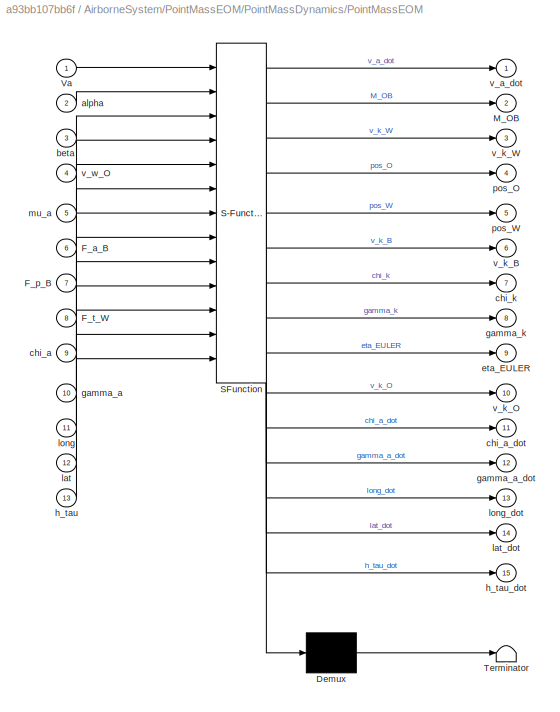
BLOCK [SubSystem] AirborneSystem/PointMassEOM/PointMassDynamics/PointMassEOM
  ErrorFcn = Stateflow.Translate.translate
  PermitHierarchicalResolution = ExplicitOnly
  Ports = [13, 15]
  RequestExecContextInheritance = off
  SFBlockType = MATLAB Function
  TreatAsAtomicUnit = on
BLOCK [Demux] AirborneSystem/PointMassEOM/PointMassDynamics/PointMassEOM/ Demux 
  Outputs = 1
  Ports = [1, 1]
BLOCK [S-Function] AirborneSystem/PointMassEOM/PointMassDynamics/PointMassEOM/ SFunction 
  EnableBusSupport = on
  FunctionName = sf_sfun
  Parameters = DE2019,ENVMT
  PortCounts = [13 16]
  Ports = [13, 16]
  SFunctionDeploymentMode = off
  Tag = Stateflow S-Function Dyn_Point_R2015B 9
BLOCK [Terminator] AirborneSystem/PointMassEOM/PointMassDynamics/PointMassEOM/ Terminator 
BLOCK [Inport] AirborneSystem/PointMassEOM/PointMassDynamics/PointMassEOM/F_a_B
  IconDisplay = Port number
  Port = 6
BLOCK [Inport] AirborneSystem/PointMassEOM/PointMassDynamics/PointMassEOM/F_p_B
  IconDisplay = Port number
  Port = 7
BLOCK [Inport] AirborneSystem/PointMassEOM/PointMassDynamics/PointMassEOM/F_t_W
  IconDisplay = Port number
  Port = 8
BLOCK [Outport] AirborneSystem/PointMassEOM/PointMassDynamics/PointMassEOM/M_OB
  IconDisplay = Port number
  Port = 2
BLOCK [Inport] AirborneSystem/PointMassEOM/PointMassDynamics/PointMassEOM/Va
  IconDisplay = Port number
BLOCK [Inport] AirborneSystem/PointMassEOM/PointMassDynamics/PointMassEOM/alpha
  IconDisplay = Port number
  Port = 2
BLOCK [Inport] AirborneSystem/PointMassEOM/PointMassDynamics/PointMassEOM/beta
  IconDisplay = Port number
  Port = 3
BLOCK [Inport] AirborneSystem/PointMassEOM/PointMassDynamics/PointMassEOM/chi_a
  IconDisplay = Port number
  Port = 9
BLOCK [Outport] AirborneSystem/PointMassEOM/PointMassDynamics/PointMassEOM/chi_a_dot
  IconDisplay = Port number
  Port = 11
BLOCK [Outport] AirborneSystem/PointMassEOM/PointMassDynamics/PointMassEOM/chi_k
  IconDisplay = Port number
  Port = 7
BLOCK [Outport] AirborneSystem/PointMassEOM/PointMassDynamics/PointMassEOM/eta_EULER
  IconDisplay = Port number
  Port = 9
BLOCK [Inport] AirborneSystem/PointMassEOM/PointMassDynamics/PointMassEOM/gamma_a
  IconDisplay = Port number
  Port = 10
BLOCK [Outport] AirborneSystem/PointMassEOM/PointMassDynamics/PointMassEOM/gamma_a_dot
  IconDisplay = Port number
  Port = 12
BLOCK [Outport] AirborneSystem/PointMassEOM/PointMassDynamics/PointMassEOM/gamma_k
  IconDisplay = Port number
  Port = 8
BLOCK [Inport] AirborneSystem/PointMassEOM/PointMassDynamics/PointMassEOM/h_tau
  IconDisplay = Port number
  Port = 13
BLOCK [Outport] AirborneSystem/PointMassEOM/PointMassDynamics/PointMassEOM/h_tau_dot
  IconDisplay = Port number
  Port = 15
BLOCK [Inport] AirborneSystem/PointMassEOM/PointMassDynamics/PointMassEOM/lat
  IconDisplay = Port number
  Port = 12
BLOCK [Outport] AirborneSystem/PointMassEOM/PointMassDynamics/PointMassEOM/lat_dot
  IconDisplay = Port number
  Port = 14
BLOCK [Inport] AirborneSystem/PointMassEOM/PointMassDynamics/PointMassEOM/long
  IconDisplay = Port number
  Port = 11
BLOCK [Outport] AirborneSystem/PointMassEOM/PointMassDynamics/PointMassEOM/long_dot
  IconDisplay = Port number
  Port = 13
BLOCK [Inport] AirborneSystem/PointMassEOM/PointMassDynamics/PointMassEOM/mu_a
  IconDisplay = Port number
  Port = 5
BLOCK [Outport] AirborneSystem/PointMassEOM/PointMassDynamics/PointMassEOM/pos_O
  IconDisplay = Port number
  Port = 4
BLOCK [Outport] AirborneSystem/PointMassEOM/PointMassDynamics/PointMassEOM/pos_W
  IconDisplay = Port number
  Port = 5
BLOCK [Outport] AirborneSystem/PointMassEOM/PointMassDynamics/PointMassEOM/v_a_dot
  IconDisplay = Port number
BLOCK [Outport] AirborneSystem/PointMassEOM/PointMassDynamics/PointMassEOM/v_k_B
  IconDisplay = Port number
  Port = 6
BLOCK [Outport] AirborneSystem/PointMassEOM/PointMassDynamics/PointMassEOM/v_k_O
  IconDisplay = Port number
  Port = 10
BLOCK [Outport] AirborneSystem/PointMassEOM/PointMassDynamics/PointMassEOM/v_k_W
  IconDisplay = Port number
  Port = 3
BLOCK [Inport] AirborneSystem/PointMassEOM/PointMassDynamics/PointMassEOM/v_w_O
  IconDisplay = Port number
  Port = 4
BLOCK [Outport] AirborneSystem/PointMassEOM/PointMassDynamics/airdata
  IconDisplay = Port number
  PortDimensions = 3
BLOCK [Inport] AirborneSystem/PointMassEOM/PointMassDynamics/alpha_c
  IconDisplay = Port number
  Port = 2
BLOCK [Inport] AirborneSystem/PointMassEOM/PointMassDynamics/beta_c
  IconDisplay = Port number
  Port = 3
BLOCK [Outport] AirborneSystem/PointMassEOM/PointMassDynamics/eta_EULER
  IconDisplay = Port number
  Port = 6
  PortDimensions = [3,1]
BLOCK [Outport] AirborneSystem/PointMassEOM/PointMassDynamics/longlat
  IconDisplay = Port number
  Port = 7
  PortDimensions = 2
BLOCK [Inport] AirborneSystem/PointMassEOM/PointMassDynamics/mu_a_c
  IconDisplay = Port number
BLOCK [Outport] AirborneSystem/PointMassEOM/PointMassDynamics/pathangles_a
  IconDisplay = Port number
  Port = 5
  PortDimensions = 2
BLOCK [Outport] AirborneSystem/PointMassEOM/PointMassDynamics/pathangles_k
  IconDisplay = Port number
  Port = 4
  PortDimensions = 2
BLOCK [Outport] AirborneSystem/PointMassEOM/PointMassDynamics/pos_O
  IconDisplay = Port number
  Port = 2
  PortDimensions = [3,1]
BLOCK [Outport] AirborneSystem/PointMassEOM/PointMassDynamics/pos_W
  IconDisplay = Port number
  Port = 9
  PortDimensions = [3,1]
BLOCK [Outport] AirborneSystem/PointMassEOM/PointMassDynamics/v_k_W
  IconDisplay = Port number
  Port = 10
  PortDimensions = [3,1]
BLOCK [Inport] AirborneSystem/PointMassEOM/PointMassDynamics/v_w_O
  IconDisplay = Port number
  Port = 7
BLOCK [Outport] AirborneSystem/PointMassEOM/PointMassDynamics/vel_k_B
  IconDisplay = Port number
  Port = 8
  PortDimensions = [3,1]
BLOCK [Outport] AirborneSystem/PointMassEOM/PointMassDynamics/vel_k_O
  IconDisplay = Port number
  Port = 3
  PortDimensions = [3,1]
BLOCK [Outport] AirborneSystem/PointMassEOM/StateEstimation_Bus
  IconDisplay = Port number
  Port = 2
BLOCK [Inport] AirborneSystem/PointMassEOM/alpha_c
  IconDisplay = Port number
  Port = 3
BLOCK [Inport] AirborneSystem/PointMassEOM/beta_c
  IconDisplay = Port number
  Port = 4
BLOCK [Inport] AirborneSystem/PointMassEOM/mu_a_c
  IconDisplay = Port number
  Port = 2
BLOCK [Sqrt] AirborneSystem/Sqrt
BLOCK [Outport] AirborneSystem/StateEstimation_Bus
  IconDisplay = Port number
BLOCK [DotProduct] Dot Product3
  Commented = on
  OutDataTypeStr = Inherit: Inherit via internal rule
BLOCK [SubSystem] Environment_SS_3
  Ports = [3, 1]
  RequestExecContextInheritance = off
BLOCK [BusSelector] Environment_SS_3/Bus Selector
  OutputSignals = pos_G_O_m
  Ports = [1, 1]
BLOCK [Constant] Environment_SS_3/Constant4
  Value = ENVMT.windDirection_rad
BLOCK [Delay] Environment_SS_3/Delay
  DelayLength = 1
  InitialCondition = zeros(3,1)
  InputPortMap = u0
  Ports = [1, 1]
BLOCK [Gain] Environment_SS_3/Gain
  Gain = -1
  OutDataTypeStr = Inherit: Inherit via internal rule
  ParamDataTypeStr = Inherit: Inherit via internal rule
  SaturateOnIntegerOverflow = off
BLOCK [Gain] Environment_SS_3/Gain1
  Gain = -1
  OutDataTypeStr = Inherit: Inherit via internal rule
  ParamDataTypeStr = Inherit: Inherit via internal rule
  SaturateOnIntegerOverflow = off
BLOCK [Goto] Environment_SS_3/Goto
  GotoTag = vel_W_W
  TagVisibility = global
BLOCK [SubSystem] Environment_SS_3/MATLAB Function
  ErrorFcn = Stateflow.Translate.translate
  PermitHierarchicalResolution = ExplicitOnly
  Ports = [2, 1]
  RequestExecContextInheritance = off
  SFBlockType = MATLAB Function
  TreatAsAtomicUnit = on
BLOCK [Demux] Environment_SS_3/MATLAB Function/ Demux 
  DisplayOption = bar
  Outputs = 1
  Ports = [1, 1]
BLOCK [S-Function] Environment_SS_3/MATLAB Function/ SFunction 
  EnableBusSupport = on
  FunctionName = sf_sfun
  PortCounts = [2 2]
  Ports = [2, 2]
  SFunctionDeploymentMode = off
  Tag = Stateflow S-Function Dyn_Point_R2015B 7
BLOCK [Terminator] Environment_SS_3/MATLAB Function/ Terminator 
BLOCK [Inport] Environment_SS_3/MATLAB Function/vec_O
  IconDisplay = Port number
BLOCK [Outport] Environment_SS_3/MATLAB Function/vec_W
  IconDisplay = Port number
BLOCK [Inport] Environment_SS_3/MATLAB Function/wind_direction_rad
  IconDisplay = Port number
  Port = 2
BLOCK [SubSystem] Environment_SS_3/MATLAB Function1
  ErrorFcn = Stateflow.Translate.translate
  PermitHierarchicalResolution = ExplicitOnly
  Ports = [1, 1]
  RequestExecContextInheritance = off
  SFBlockType = MATLAB Function
  TreatAsAtomicUnit = on
BLOCK [Demux] Environment_SS_3/MATLAB Function1/ Demux 
  DisplayOption = bar
  Outputs = 1
  Ports = [1, 1]
BLOCK [S-Function] Environment_SS_3/MATLAB Function1/ SFunction 
  EnableBusSupport = on
  FunctionName = sf_sfun
  PortCounts = [1 2]
  Ports = [1, 2]
  SFunctionDeploymentMode = off
  Tag = Stateflow S-Function Dyn_Point_R2015B 17
BLOCK [Terminator] Environment_SS_3/MATLAB Function1/ Terminator 
BLOCK [Outport] Environment_SS_3/MATLAB Function1/v_w_p_mat
  IconDisplay = Port number
BLOCK [Inport] Environment_SS_3/MATLAB Function1/v_w_u
  IconDisplay = Port number
BLOCK [Inport] Environment_SS_3/M_OB
  IconDisplay = Port number
  Port = 2
BLOCK [Product] Environment_SS_3/Product
  InputSameDT = off
  Multiplication = Matrix(*)
  OutDataTypeStr = Inherit: Inherit via internal rule
  Ports = [2, 1]
  RndMeth = Floor
  SaturateOnIntegerOverflow = off
BLOCK [Reshape] Environment_SS_3/Reshape1
  OutputDimensionality = Column vector (2-D)
  Ports = [1, 1]
BLOCK [Selector] Environment_SS_3/Selector
  IndexOptions = Index vector (dialog)
  Indices = 3
  InputPortWidth = 3
  OutputSizes = 1
  Ports = [1, 1]
BLOCK [Inport] Environment_SS_3/StateEstimation_Bus
  IconDisplay = Port number
  Port = 3
BLOCK [Constant] Environment_SS_3/Wdeg2
  OutDataTypeStr = Inherit: Inherit via back propagation
  Value = base_windspeed
BLOCK [SubSystem] Environment_SS_3/Windshear
  Ports = [2, 1]
  RequestExecContextInheritance = off
BLOCK [Inport] Environment_SS_3/Windshear/DCM
  IconDisplay = Port number
BLOCK [Math] Environment_SS_3/Windshear/Math Function
  Operator = transpose
  Ports = [1, 1]
BLOCK [Outport] Environment_SS_3/Windshear/V_shear_mDs
  IconDisplay = Port number
BLOCK [SubSystem] Environment_SS_3/Windshear/Wind Shear Model
  PermitHierarchicalResolution = ExplicitOnly
  Ports = [2, 1]
  RequestExecContextInheritance = off
BLOCK [Inport] Environment_SS_3/Windshear/Wind Shear Model/Altitude
  IconDisplay = Port number
BLOCK [Inport] Environment_SS_3/Windshear/Wind Shear Model/DCM
  IconDisplay = Port number
  Port = 2
  PortDimensions = [3 3]
BLOCK [Reference] Environment_SS_3/Windshear/Wind Shear Model/Degrees to Radians  REF=simulink_extras/Transformations/Degrees to
Radians
  Ports = [1, 1]
  SourceBlock = simulink_extras/Transformations/Degrees to\nRadians
  SourceType = DegreesToRadians
BLOCK [UnitConfiguration] Environment_SS_3/Windshear/Wind Shear Model/Disallow CGS
  AllowAllUnitSystems = off
  UnitSystemsStr = English,SI,SI (extended)
BLOCK [Outport] Environment_SS_3/Windshear/Wind Shear Model/Mean Wind
  IconDisplay = Port number
BLOCK [Mux] Environment_SS_3/Windshear/Wind Shear Model/Mux
  DisplayOption = bar
  Inputs = 3
  Ports = [3, 1]
BLOCK [Reshape] Environment_SS_3/Windshear/Wind Shear Model/Reshape1
  Ports = [1, 1]
BLOCK [Trigonometry] Environment_SS_3/Windshear/Wind Shear Model/SinCos
  Operator = sincos
  Ports = [1, 2]
BLOCK [Product] Environment_SS_3/Windshear/Wind Shear Model/Transform from Inertial to Body axes
  Inputs = **
  Multiplication = Matrix(*)
  Ports = [2, 1]
  RndMeth = Floor
BLOCK [Constant] Environment_SS_3/Windshear/Wind Shear Model/Wdeg1
  OutDataTypeStr = Inherit: Inherit via back propagation
  Value = 0
BLOCK [Constant] Environment_SS_3/Windshear/Wind Shear Model/Wind Direction
  OutDataTypeStr = Inherit: Inherit via back propagation
  Value = ENVMT.windDirection_rad*180/pi
BLOCK [Gain] Environment_SS_3/Windshear/Wind Shear Model/Wind speed at reference height
  Gain = -base_windspeed
BLOCK [SubSystem] Environment_SS_3/Windshear/Wind Shear Model/wind_field_calc
  Ports = [2, 1]
  RequestExecContextInheritance = off
BLOCK [Lookup_n-D] Environment_SS_3/Windshear/Wind Shear Model/wind_field_calc/1-D Lookup Table
  BreakpointsForDimension1 = ENVMT.wind_height
  InternalRulePriority = Speed
  NumberOfTableDimensions = 1
  Ports = [1, 1]
  RndMeth = Simplest
  Table = ENVMT.wind_data
BLOCK [Saturate] Environment_SS_3/Windshear/Wind Shear Model/wind_field_calc/3ft-->inf
  Commented = on
  InputPortMap = u0
  LowerLimit = 3
  Ports = [1, 1]
  UpperLimit = inf
BLOCK [Inport] Environment_SS_3/Windshear/Wind Shear Model/wind_field_calc/Altitude
  IconDisplay = Port number
BLOCK [Inport] Environment_SS_3/Windshear/Wind Shear Model/wind_field_calc/Base_windspeed
  IconDisplay = Port number
  Port = 2
BLOCK [SubSystem] Environment_SS_3/Windshear/Wind Shear Model/wind_field_calc/Length Conversion
  Commented = on
  Ports = [1, 1]
  RequestExecContextInheritance = off
BLOCK [UnitConversion] Environment_SS_3/Windshear/Wind Shear Model/wind_field_calc/Length Conversion/Unit Conversion
BLOCK [Inport] Environment_SS_3/Windshear/Wind Shear Model/wind_field_calc/Length Conversion/in
  IconDisplay = Port number
BLOCK [Outport] Environment_SS_3/Windshear/Wind Shear Model/wind_field_calc/Length Conversion/out
  IconDisplay = Port number
BLOCK [ManualSwitch] Environment_SS_3/Windshear/Wind Shear Model/wind_field_calc/Manual Switch
  CurrentSetting = 0
BLOCK [Product] Environment_SS_3/Windshear/Wind Shear Model/wind_field_calc/Product
  Commented = on
  Inputs = */
  Ports = [2, 1]
  RndMeth = Floor
BLOCK [Product] Environment_SS_3/Windshear/Wind Shear Model/wind_field_calc/Product1
  Commented = on
  Ports = [2, 1]
  RndMeth = Floor
BLOCK [Product] Environment_SS_3/Windshear/Wind Shear Model/wind_field_calc/Product2
  Ports = [2, 1]
  RndMeth = Floor
BLOCK [Reshape] Environment_SS_3/Windshear/Wind Shear Model/wind_field_calc/Reshape
  OutputDimensionality = Column vector (2-D)
  Ports = [1, 1]
BLOCK [Saturate] Environment_SS_3/Windshear/Wind Shear Model/wind_field_calc/Saturation
  InputPortMap = u0
  LowerLimit = ENVMT.wind_height(1)
  Ports = [1, 1]
  UpperLimit = ENVMT.height_max
BLOCK [Outport] Environment_SS_3/Windshear/Wind Shear Model/wind_field_calc/Windspeed_altitude
  IconDisplay = Port number
BLOCK [Gain] Environment_SS_3/Windshear/Wind Shear Model/wind_field_calc/h//z0
  Commented = on
  Gain = 1/0.15
BLOCK [Math] Environment_SS_3/Windshear/Wind Shear Model/wind_field_calc/ln(h//z0)
  Commented = on
  Operator = log
  Ports = [1, 1]
BLOCK [Math] Environment_SS_3/Windshear/Wind Shear Model/wind_field_calc/ln(ref_height//z0)
  Commented = on
  Operator = log
  Ports = [1, 1]
BLOCK [Constant] Environment_SS_3/Windshear/Wind Shear Model/wind_field_calc/ref_height//z0 [ft]
  Commented = on
  OutDataTypeStr = Inherit: Inherit via back propagation
  Value = 20/0.15
BLOCK [Inport] Environment_SS_3/Windshear/altitude
  IconDisplay = Port number
  Port = 2
BLOCK [Inport] Environment_SS_3/pos_p_W
  IconDisplay = Port number
BLOCK [Outport] Environment_SS_3/v_w_p
  IconDisplay = Port number
BLOCK [SubSystem] Environment_SS_3/wind_field_calc
  Ports = [2, 1]
  RequestExecContextInheritance = off
BLOCK [Lookup_n-D] Environment_SS_3/wind_field_calc/1-D Lookup Table
  BreakpointsForDimension1 = ENVMT.wind_height
  InternalRulePriority = Speed
  NumberOfTableDimensions = 1
  Ports = [1, 1]
  RndMeth = Simplest
  Table = ENVMT.wind_data
BLOCK [Saturate] Environment_SS_3/wind_field_calc/3ft-->inf
  Commented = on
  InputPortMap = u0
  LowerLimit = 3
  Ports = [1, 1]
  UpperLimit = inf
BLOCK [Inport] Environment_SS_3/wind_field_calc/Altitude
  IconDisplay = Port number
BLOCK [Inport] Environment_SS_3/wind_field_calc/Base_windspeed
  IconDisplay = Port number
  Port = 2
BLOCK [SubSystem] Environment_SS_3/wind_field_calc/Length Conversion
  Commented = on
  Ports = [1, 1]
  RequestExecContextInheritance = off
BLOCK [UnitConversion] Environment_SS_3/wind_field_calc/Length Conversion/Unit Conversion
BLOCK [Inport] Environment_SS_3/wind_field_calc/Length Conversion/in
  IconDisplay = Port number
BLOCK [Outport] Environment_SS_3/wind_field_calc/Length Conversion/out
  IconDisplay = Port number
BLOCK [ManualSwitch] Environment_SS_3/wind_field_calc/Manual Switch
  CurrentSetting = 0
BLOCK [Product] Environment_SS_3/wind_field_calc/Product
  Commented = on
  Inputs = */
  Ports = [2, 1]
  RndMeth = Floor
BLOCK [Product] Environment_SS_3/wind_field_calc/Product1
  Commented = on
  Ports = [2, 1]
  RndMeth = Floor
BLOCK [Product] Environment_SS_3/wind_field_calc/Product2
  Ports = [2, 1]
  RndMeth = Floor
BLOCK [Reshape] Environment_SS_3/wind_field_calc/Reshape
  OutputDimensionality = Column vector (2-D)
  Ports = [1, 1]
BLOCK [Saturate] Environment_SS_3/wind_field_calc/Saturation
  InputPortMap = u0
  LowerLimit = ENVMT.wind_height(1)
  Ports = [1, 1]
  UpperLimit = ENVMT.height_max
BLOCK [Outport] Environment_SS_3/wind_field_calc/Windspeed_altitude
  IconDisplay = Port number
BLOCK [Gain] Environment_SS_3/wind_field_calc/h//z0
  Commented = on
  Gain = 1/0.15
BLOCK [Math] Environment_SS_3/wind_field_calc/ln(h//z0)
  Commented = on
  Operator = log
  Ports = [1, 1]
BLOCK [Math] Environment_SS_3/wind_field_calc/ln(ref_height//z0)
  Commented = on
  Operator = log
  Ports = [1, 1]
BLOCK [Constant] Environment_SS_3/wind_field_calc/ref_height//z0 [ft]
  Commented = on
  OutDataTypeStr = Inherit: Inherit via back propagation
  Value = 20/0.15
BLOCK [Goto] Goto1
  GotoTag = flight_mode
  TagVisibility = global
BLOCK [Goto] Goto2
  GotoTag = tether_length
  TagVisibility = global
BLOCK [Goto] Goto3
  GotoTag = V_ro
  TagVisibility = global
BLOCK [SubSystem] GroundSystem_SS_4
  Ports = [2, 2]
  RequestExecContextInheritance = off
BLOCK [BusSelector] GroundSystem_SS_4/Bus Selector
  OutputSignals = pos_G_W,airdata,longlat,pathangles_k
  Ports = [1, 4]
BLOCK [Demux] GroundSystem_SS_4/Demux
  DisplayOption = bar
  Outputs = 2
  Ports = [1, 2]
BLOCK [Demux] GroundSystem_SS_4/Demux1
  DisplayOption = bar
  Outputs = 2
  Ports = [1, 2]
BLOCK [Inport] GroundSystem_SS_4/F_t_m
  IconDisplay = Port number
  Port = 2
BLOCK [Outport] GroundSystem_SS_4/FlightMode
  IconDisplay = Port number
BLOCK [From] GroundSystem_SS_4/From1
  GotoTag = cross_track_error
  TagVisibility = global
BLOCK [Outport] GroundSystem_SS_4/Ft_set
  IconDisplay = Port number
  Port = 2
BLOCK [Goto] GroundSystem_SS_4/Goto
  GotoTag = phi0_update
  TagVisibility = global
BLOCK [SubSystem] GroundSystem_SS_4/GroundControl
  Ports = [2, 2]
  RequestExecContextInheritance = off
BLOCK [SubSystem] GroundSystem_SS_4/GroundControl/Chart
  ErrorFcn = Stateflow.Translate.translate
  PermitHierarchicalResolution = ExplicitOnly
  Ports = [2, 1]
  RequestExecContextInheritance = off
  SFBlockType = Chart
  TreatAsAtomicUnit = on
BLOCK [Demux] GroundSystem_SS_4/GroundControl/Chart/ Demux 
  DisplayOption = bar
  Outputs = 1
  Ports = [1, 1]
BLOCK [S-Function] GroundSystem_SS_4/GroundControl/Chart/ SFunction 
  EnableBusSupport = on
  FunctionName = sf_sfun
  PortCounts = [2 2]
  Ports = [2, 2]
  SFunctionDeploymentMode = off
  Tag = Stateflow S-Function Dyn_Point_R2015B 6
BLOCK [Terminator] GroundSystem_SS_4/GroundControl/Chart/ Terminator 
BLOCK [Outport] GroundSystem_SS_4/GroundControl/Chart/c_out
  IconDisplay = Port number
BLOCK [Inport] GroundSystem_SS_4/GroundControl/Chart/fm
  IconDisplay = Port number
  Port = 2
BLOCK [Inport] GroundSystem_SS_4/GroundControl/Chart/long
  IconDisplay = Port number
BLOCK [Reference] GroundSystem_SS_4/GroundControl/Compare To Constant  REF=simulink/Logic and Bit
Operations/Compare
To Constant
  Ports = [1, 1]
  SourceBlock = simulink/Logic and Bit\nOperations/Compare\nTo Constant
  SourceType = Compare To Constant
BLOCK [Reference] GroundSystem_SS_4/GroundControl/Compare To Constant2  REF=simulink/Logic and Bit
Operations/Compare
To Constant
  Ports = [1, 1]
  SourceBlock = simulink/Logic and Bit\nOperations/Compare\nTo Constant
  SourceType = Compare To Constant
BLOCK [Reference] GroundSystem_SS_4/GroundControl/Compare To Constant3  REF=simulink/Logic and Bit
Operations/Compare
To Constant
  Ports = [1, 1]
  SourceBlock = simulink/Logic and Bit\nOperations/Compare\nTo Constant
  SourceType = Compare To Constant
BLOCK [Constant] GroundSystem_SS_4/GroundControl/Constant
  Value = 0
BLOCK [Constant] GroundSystem_SS_4/GroundControl/Constant1
  Value = 0
BLOCK [Constant] GroundSystem_SS_4/GroundControl/Constant11
  Value = params.phi0_booth
BLOCK [Constant] GroundSystem_SS_4/GroundControl/Constant9
  Value = params.transition_phi
BLOCK [Gain] GroundSystem_SS_4/GroundControl/Gain4
  Gain = pi/180
  OutDataTypeStr = Inherit: Inherit via internal rule
  ParamDataTypeStr = Inherit: Inherit via internal rule
  SaturateOnIntegerOverflow = off
BLOCK [Gain] GroundSystem_SS_4/GroundControl/Gain7
  Gain = params.w0_decrease_init_phi0
  OutDataTypeStr = Inherit: Inherit via internal rule
  ParamDataTypeStr = Inherit: Inherit via internal rule
  SaturateOnIntegerOverflow = off
BLOCK [Integrator] GroundSystem_SS_4/GroundControl/Integrator
  ExternalReset = rising
  InitialConditionSource = external
  Ports = [3, 1]
BLOCK [Logic] GroundSystem_SS_4/GroundControl/Logical Operator1
  AllPortsSameDT = off
  Operator = OR
  OutDataTypeStr = boolean
  Ports = [2, 1]
BLOCK [Mux] GroundSystem_SS_4/GroundControl/Mux
  DisplayOption = bar
  Inputs = 3
  Ports = [3, 1]
BLOCK [SubSystem] GroundSystem_SS_4/GroundControl/Select_init_sol_for_pathfollowing
  ErrorFcn = Stateflow.Translate.translate
  PermitHierarchicalResolution = ExplicitOnly
  Ports = [3, 1]
  RequestExecContextInheritance = off
  SFBlockType = Chart
  TreatAsAtomicUnit = on
BLOCK [Demux] GroundSystem_SS_4/GroundControl/Select_init_sol_for_pathfollowing/ Demux 
  DisplayOption = bar
  Outputs = 1
  Ports = [1, 1]
BLOCK [S-Function] GroundSystem_SS_4/GroundControl/Select_init_sol_for_pathfollowing/ SFunction 
  EnableBusSupport = on
  FunctionName = sf_sfun
  PortCounts = [3 2]
  Ports = [3, 2]
  SFunctionDeploymentMode = off
  Tag = Stateflow S-Function Dyn_Point_R2015B 19
BLOCK [Terminator] GroundSystem_SS_4/GroundControl/Select_init_sol_for_pathfollowing/ Terminator 
BLOCK [Inport] GroundSystem_SS_4/GroundControl/Select_init_sol_for_pathfollowing/fm
  IconDisplay = Port number
  Port = 2
BLOCK [Outport] GroundSystem_SS_4/GroundControl/Select_init_sol_for_pathfollowing/sol_init
  IconDisplay = Port number
BLOCK [Inport] GroundSystem_SS_4/GroundControl/Select_init_sol_for_pathfollowing/transition_phi
  IconDisplay = Port number
  Port = 3
BLOCK [Inport] GroundSystem_SS_4/GroundControl/Select_init_sol_for_pathfollowing/x
  IconDisplay = Port number
BLOCK [Sum] GroundSystem_SS_4/GroundControl/Sum3
  IconShape = round
  InputSameDT = off
  Inputs = |+-
  OutDataTypeStr = Inherit: Inherit via internal rule
  Ports = [2, 1]
  SaturateOnIntegerOverflow = off
BLOCK [Switch] GroundSystem_SS_4/GroundControl/Switch
  Criteria = u2 > Threshold
  InputSameDT = off
  SaturateOnIntegerOverflow = off
BLOCK [Switch] GroundSystem_SS_4/GroundControl/Switch3
  InputSameDT = off
  SaturateOnIntegerOverflow = off
  Threshold = 1
BLOCK [Inport] GroundSystem_SS_4/GroundControl/flightMode
  IconDisplay = Port number
BLOCK [Constant] GroundSystem_SS_4/GroundControl/initial_path_elevation
  Value = params.initial_path_elevation
BLOCK [Outport] GroundSystem_SS_4/GroundControl/lat_init
  IconDisplay = Port number
  Port = 2
BLOCK [Inport] GroundSystem_SS_4/GroundControl/long
  IconDisplay = Port number
  Port = 2
BLOCK [Outport] GroundSystem_SS_4/GroundControl/path_update
  IconDisplay = Port number
  PortDimensions = [3,1]
BLOCK [Selector] GroundSystem_SS_4/Selector
  IndexOptions = Index vector (dialog)
  Indices = 1
  InputPortWidth = 3
  OutputSizes = 1
  Ports = [1, 1]
BLOCK [Selector] GroundSystem_SS_4/Selector1
  IndexOptions = Index vector (dialog)
  Indices = 1
  InputPortWidth = 3
  OutputSizes = 1
  Ports = [1, 1]
BLOCK [Selector] GroundSystem_SS_4/Selector3
  IndexOptions = Index vector (dialog)
  Indices = 1
  InputPortWidth = 2
  OutputSizes = 1
  Ports = [1, 1]
BLOCK [Inport] GroundSystem_SS_4/StateEstimation_Bus
  IconDisplay = Port number
BLOCK [SubSystem] GroundSystem_SS_4/StateMachine
  Ports = [9, 2]
  RequestExecContextInheritance = off
BLOCK [Inport] GroundSystem_SS_4/StateMachine/Chi
  IconDisplay = Port number
  Port = 9
BLOCK [Clock] GroundSystem_SS_4/StateMachine/Clock
BLOCK [Reference] GroundSystem_SS_4/StateMachine/Compare To Constant2  REF=simulink/Logic and Bit
Operations/Compare
To Constant
  Ports = [1, 1]
  SourceBlock = simulink/Logic and Bit\nOperations/Compare\nTo Constant
  SourceType = Compare To Constant
BLOCK [Constant] GroundSystem_SS_4/StateMachine/Constant
BLOCK [Constant] GroundSystem_SS_4/StateMachine/Constant1
  Value = params.l_tether_max
BLOCK [Constant] GroundSystem_SS_4/StateMachine/Constant5
  Value = 0
BLOCK [Constant] GroundSystem_SS_4/StateMachine/Constant6
BLOCK [Constant] GroundSystem_SS_4/StateMachine/Constant7
  Value = 0
BLOCK [Delay] GroundSystem_SS_4/StateMachine/Delay
  DelayLength = 1
  InitialCondition = 100
  InputPortMap = u0
  Ports = [1, 1]
BLOCK [Delay] GroundSystem_SS_4/StateMachine/Delay1
  DelayLength = 1
  InputPortMap = u0
  Ports = [1, 1]
BLOCK [Delay] GroundSystem_SS_4/StateMachine/Delay2
  DelayLength = 1
  InitialCondition = 1
  InputPortMap = u0
  Ports = [1, 1]
BLOCK [Delay] GroundSystem_SS_4/StateMachine/Delay3
  DelayLength = 1
  InitialCondition = 100
  InputPortMap = u0
  Ports = [1, 1]
BLOCK [Delay] GroundSystem_SS_4/StateMachine/Delay4
  DelayLength = 1
  InputPortMap = u0
  Ports = [1, 1]
BLOCK [Delay] GroundSystem_SS_4/StateMachine/Delay5
  DelayLength = 1
  InitialCondition = 1
  InputPortMap = u0
  Ports = [1, 1]
BLOCK [DotProduct] GroundSystem_SS_4/StateMachine/Dot Product
  OutDataTypeStr = Inherit: Inherit via internal rule
BLOCK [Inport] GroundSystem_SS_4/StateMachine/F_t_m
  IconDisplay = Port number
  Port = 7
BLOCK [Outport] GroundSystem_SS_4/StateMachine/FlightMode
  IconDisplay = Port number
BLOCK [From] GroundSystem_SS_4/StateMachine/From
  GotoTag = transition_x_target
  TagVisibility = global
BLOCK [From] GroundSystem_SS_4/StateMachine/From1
  GotoTag = valid_transition_region
  TagVisibility = global
BLOCK [From] GroundSystem_SS_4/StateMachine/From2
  GotoTag = transition_flag
  TagVisibility = global
BLOCK [From] GroundSystem_SS_4/StateMachine/From4
  GotoTag = s_path
  TagVisibility = global
BLOCK [Outport] GroundSystem_SS_4/StateMachine/Ft_set
  IconDisplay = Port number
  Port = 2
BLOCK [Gain] GroundSystem_SS_4/StateMachine/Gain2
  Gain = 180/pi
  OutDataTypeStr = Inherit: Inherit via internal rule
  ParamDataTypeStr = Inherit: Inherit via internal rule
  SaturateOnIntegerOverflow = off
BLOCK [Gain] GroundSystem_SS_4/StateMachine/Gain3
  Gain = 180/pi
  OutDataTypeStr = Inherit: Inherit via internal rule
  ParamDataTypeStr = Inherit: Inherit via internal rule
  SaturateOnIntegerOverflow = off
BLOCK [Goto] GroundSystem_SS_4/StateMachine/Goto1
  GotoTag = sub_flight_state
  TagVisibility = global
BLOCK [Goto] GroundSystem_SS_4/StateMachine/Goto4
  GotoTag = init_throttle_flag
  TagVisibility = global
BLOCK [Goto] GroundSystem_SS_4/StateMachine/Goto6
  GotoTag = reset_flag
  TagVisibility = global
BLOCK [Logic] GroundSystem_SS_4/StateMachine/Logical Operator1
  AllPortsSameDT = off
  OutDataTypeStr = boolean
  Ports = [2, 1]
BLOCK [ManualSwitch] GroundSystem_SS_4/StateMachine/Manual Switch
  CurrentSetting = 0
BLOCK [ManualSwitch] GroundSystem_SS_4/StateMachine/Manual Switch1
BLOCK [Selector] GroundSystem_SS_4/StateMachine/Selector1
  IndexOptions = Index vector (dialog)
  Indices = 2
  InputPortWidth = 3
  OutputSizes = 1
  Ports = [1, 1]
BLOCK [Selector] GroundSystem_SS_4/StateMachine/Selector3
  IndexOptions = Index vector (dialog)
  Indices = 1
  InputPortWidth = 3
  OutputSizes = 1
  Ports = [1, 1]
BLOCK [Selector] GroundSystem_SS_4/StateMachine/Selector5
  IndexOptions = Index vector (dialog)
  Indices = 1
  InputPortWidth = 3
  OutputSizes = 1
  Ports = [1, 1]
BLOCK [Sqrt] GroundSystem_SS_4/StateMachine/Sqrt1
BLOCK [SubSystem] GroundSystem_SS_4/StateMachine/StateMachine
  ErrorFcn = Stateflow.Translate.translate
  PermitHierarchicalResolution = ExplicitOnly
  Ports = [20, 4]
  RequestExecContextInheritance = off
  SFBlockType = Chart
  TreatAsAtomicUnit = on
BLOCK [Demux] GroundSystem_SS_4/StateMachine/StateMachine/ Demux 
  DisplayOption = bar
  Outputs = 1
  Ports = [1, 1]
BLOCK [S-Function] GroundSystem_SS_4/StateMachine/StateMachine/ SFunction 
  EnableBusSupport = on
  FunctionName = sf_sfun
  Parameters = F_T_traction_set,F_set_retraction,Ft_set_loiter,Lbooth,Vamin,a_booth,alpha2,b_booth,crosstrackerror_condition,l_t_max,l_t_min,lat_trans
  PortCounts = [20 5]
  Ports = [20, 5]
  SFunctionDeploymentMode = off
  Tag = Stateflow S-Function Dyn_Point_R2015B 25
BLOCK [Terminator] GroundSystem_SS_4/StateMachine/StateMachine/ Terminator 
BLOCK [Inport] GroundSystem_SS_4/StateMachine/StateMachine/Chi
  IconDisplay = Port number
  Port = 20
BLOCK [Inport] GroundSystem_SS_4/StateMachine/StateMachine/F_t
  IconDisplay = Port number
  Port = 4
BLOCK [Inport] GroundSystem_SS_4/StateMachine/StateMachine/F_t_m
  IconDisplay = Port number
  Port = 15
BLOCK [Outport] GroundSystem_SS_4/StateMachine/StateMachine/F_t_set
  IconDisplay = Port number
  Port = 2
BLOCK [Inport] GroundSystem_SS_4/StateMachine/StateMachine/Ft_set_prev
  IconDisplay = Port number
  Port = 7
BLOCK [Inport] GroundSystem_SS_4/StateMachine/StateMachine/Va
  IconDisplay = Port number
  Port = 8
BLOCK [Inport] GroundSystem_SS_4/StateMachine/StateMachine/cross_track_error
  IconDisplay = Port number
  Port = 11
BLOCK [Outport] GroundSystem_SS_4/StateMachine/StateMachine/flightMode
  IconDisplay = Port number
BLOCK [Inport] GroundSystem_SS_4/StateMachine/StateMachine/init_retraction_flag
  IconDisplay = Port number
  Port = 13
BLOCK [Outport] GroundSystem_SS_4/StateMachine/StateMachine/init_throttle_flag
  IconDisplay = Port number
  Port = 3
BLOCK [Inport] GroundSystem_SS_4/StateMachine/StateMachine/l_t
  IconDisplay = Port number
  Port = 3
BLOCK [Inport] GroundSystem_SS_4/StateMachine/StateMachine/lat_init
  IconDisplay = Port number
  Port = 9
BLOCK [Inport] GroundSystem_SS_4/StateMachine/StateMachine/lat_kite
  IconDisplay = Port number
  Port = 2
BLOCK [Inport] GroundSystem_SS_4/StateMachine/StateMachine/long_kite
  IconDisplay = Port number
BLOCK [Inport] GroundSystem_SS_4/StateMachine/StateMachine/path_parameter_s
  IconDisplay = Port number
  Port = 17
BLOCK [Inport] GroundSystem_SS_4/StateMachine/StateMachine/phi0
  IconDisplay = Port number
  Port = 14
BLOCK [Inport] GroundSystem_SS_4/StateMachine/StateMachine/pos_x_W
  IconDisplay = Port number
  Port = 5
BLOCK [Inport] GroundSystem_SS_4/StateMachine/StateMachine/pos_y_W
  IconDisplay = Port number
  Port = 6
BLOCK [Inport] GroundSystem_SS_4/StateMachine/StateMachine/pre_pc_mode_flag
  IconDisplay = Port number
  Port = 16
BLOCK [Inport] GroundSystem_SS_4/StateMachine/StateMachine/sim_time
  IconDisplay = Port number
  Port = 18
BLOCK [Outport] GroundSystem_SS_4/StateMachine/StateMachine/sub_flight_state
  IconDisplay = Port number
  Port = 4
BLOCK [Inport] GroundSystem_SS_4/StateMachine/StateMachine/traction_trigger
  IconDisplay = Port number
  Port = 10
BLOCK [Inport] GroundSystem_SS_4/StateMachine/StateMachine/trigger_kite_mode
  IconDisplay = Port number
  Port = 12
BLOCK [Inport] GroundSystem_SS_4/StateMachine/StateMachine/x_trigger_transition
  IconDisplay = Port number
  Port = 19
BLOCK [Inport] GroundSystem_SS_4/StateMachine/Va
  IconDisplay = Port number
  Port = 2
BLOCK [SubSystem] GroundSystem_SS_4/StateMachine/checkRetractionCondition
  ErrorFcn = Stateflow.Translate.translate
  PermitHierarchicalResolution = ExplicitOnly
  Ports = [4, 1]
  RequestExecContextInheritance = off
  SFBlockType = Chart
  TreatAsAtomicUnit = on
BLOCK [Demux] GroundSystem_SS_4/StateMachine/checkRetractionCondition/ Demux 
  DisplayOption = bar
  Outputs = 1
  Ports = [1, 1]
BLOCK [S-Function] GroundSystem_SS_4/StateMachine/checkRetractionCondition/ SFunction 
  EnableBusSupport = on
  FunctionName = sf_sfun
  PortCounts = [4 2]
  Ports = [4, 2]
  SFunctionDeploymentMode = off
  Tag = Stateflow S-Function Dyn_Point_R2015B 36
BLOCK [Terminator] GroundSystem_SS_4/StateMachine/checkRetractionCondition/ Terminator 
BLOCK [Inport] GroundSystem_SS_4/StateMachine/checkRetractionCondition/fm
  IconDisplay = Port number
  Port = 3
BLOCK [Outport] GroundSystem_SS_4/StateMachine/checkRetractionCondition/init_retraction_flag
  IconDisplay = Port number
BLOCK [Inport] GroundSystem_SS_4/StateMachine/checkRetractionCondition/l_tether
  IconDisplay = Port number
BLOCK [Inport] GroundSystem_SS_4/StateMachine/checkRetractionCondition/l_tether_max
  IconDisplay = Port number
  Port = 4
BLOCK [Inport] GroundSystem_SS_4/StateMachine/checkRetractionCondition/path_parameter_s
  IconDisplay = Port number
  Port = 2
BLOCK [Inport] GroundSystem_SS_4/StateMachine/cross_track_error
  IconDisplay = Port number
  Port = 6
BLOCK [Inport] GroundSystem_SS_4/StateMachine/lat_init
  IconDisplay = Port number
  Port = 8
BLOCK [Inport] GroundSystem_SS_4/StateMachine/lattitude
  IconDisplay = Port number
  Port = 4
BLOCK [Inport] GroundSystem_SS_4/StateMachine/longitude
  IconDisplay = Port number
  Port = 3
BLOCK [Inport] GroundSystem_SS_4/StateMachine/path_update
  IconDisplay = Port number
  Port = 5
BLOCK [Inport] GroundSystem_SS_4/StateMachine/pos_W
  IconDisplay = Port number
BLOCK [Terminator] GroundSystem_SS_4/Terminator
BLOCK [SubSystem] ParticleTetherModel
  Ports = [3, 3]
  RequestExecContextInheritance = off
BLOCK [BusSelector] ParticleTetherModel/Bus Selector
  OutputSignals = pos_G_W,vel_W
  Ports = [1, 2]
BLOCK [DotProduct] ParticleTetherModel/Dot Product2
  Commented = on
  OutDataTypeStr = Inherit: Inherit via internal rule
BLOCK [Outport] ParticleTetherModel/Ft_Kite_W
  IconDisplay = Port number
BLOCK [Outport] ParticleTetherModel/Ft_ground_W
  IconDisplay = Port number
  Port = 3
BLOCK [Goto] ParticleTetherModel/Goto
  GotoTag = p_t_z
  TagVisibility = global
BLOCK [Goto] ParticleTetherModel/Goto1
  GotoTag = p_t_y
  TagVisibility = global
BLOCK [Goto] ParticleTetherModel/Goto2
  GotoTag = p_t_x
  TagVisibility = global
BLOCK [Selector] ParticleTetherModel/Selector
  IndexOptions = Index vector (dialog),Select all
  Indices = 1,1
  InputPortWidth = 3
  NumberOfDimensions = 2
  OutputSizes = 1,1
  Ports = [1, 1]
BLOCK [Selector] ParticleTetherModel/Selector4
  IndexOptions = Index vector (dialog),Select all
  Indices = 2,1
  InputPortWidth = 3
  NumberOfDimensions = 2
  OutputSizes = 1,1
  Ports = [1, 1]
BLOCK [Selector] ParticleTetherModel/Selector5
  IndexOptions = Index vector (dialog),Select all
  Indices = 3,1
  InputPortWidth = 3
  NumberOfDimensions = 2
  OutputSizes = 1,1
  Ports = [1, 1]
BLOCK [Sqrt] ParticleTetherModel/Sqrt2
  Commented = on
BLOCK [Inport] ParticleTetherModel/StateEstimation_Bus
  IconDisplay = Port number
  Port = 2
BLOCK [SubSystem] ParticleTetherModel/Tether_SS_5
  Ports = [4, 4]
  RequestExecContextInheritance = off
BLOCK [Delay] ParticleTetherModel/Tether_SS_5/Delay10
  DelayLength = 1
  InitialCondition = zeros(3,1)
  InputPortMap = u0
  Ports = [1, 1]
BLOCK [Delay] ParticleTetherModel/Tether_SS_5/Delay2
  DelayLength = 1
  InitialCondition = T.Tn_vect
  InputPortMap = u0
  Ports = [1, 1]
BLOCK [Delay] ParticleTetherModel/Tether_SS_5/Delay3
  DelayLength = 1
  InputPortMap = u0
  Ports = [1, 1]
BLOCK [Delay] ParticleTetherModel/Tether_SS_5/Delay4
  DelayLength = 1
  InitialCondition = T.pos_p_init
  InputPortMap = u0
  Ports = [1, 1]
BLOCK [Outport] ParticleTetherModel/Tether_SS_5/Error_3D
  IconDisplay = Port number
  Port = 4
BLOCK [Outport] ParticleTetherModel/Tether_SS_5/Ft_Ground
  IconDisplay = Port number
  Port = 2
BLOCK [Outport] ParticleTetherModel/Tether_SS_5/Ft_Kite
  IconDisplay = Port number
  Port = 3
BLOCK [Gain] ParticleTetherModel/Tether_SS_5/Gain1
  Gain = -1
  OutDataTypeStr = Inherit: Inherit via internal rule
  ParamDataTypeStr = Inherit: Inherit via internal rule
  SaturateOnIntegerOverflow = off
BLOCK [SubSystem] ParticleTetherModel/Tether_SS_5/Tether_Dynamics
  ErrorFcn = Stateflow.Translate.translate
  PermitHierarchicalResolution = ExplicitOnly
  Ports = [5, 5]
  RequestExecContextInheritance = off
  SFBlockType = MATLAB Function
  TreatAsAtomicUnit = on
BLOCK [Demux] ParticleTetherModel/Tether_SS_5/Tether_Dynamics/ Demux 
  DisplayOption = bar
  Outputs = 1
  Ports = [1, 1]
BLOCK [S-Function] ParticleTetherModel/Tether_SS_5/Tether_Dynamics/ SFunction 
  EnableBusSupport = on
  FunctionName = sf_sfun
  Parameters = ENVMT,T
  PortCounts = [5 6]
  Ports = [5, 6]
  SFunctionDeploymentMode = off
  Tag = Stateflow S-Function Dyn_Point_R2015B 2
BLOCK [Terminator] ParticleTetherModel/Tether_SS_5/Tether_Dynamics/ Terminator 
BLOCK [Outport] ParticleTetherModel/Tether_SS_5/Tether_Dynamics/Ft_Ground
  IconDisplay = Port number
  Port = 2
BLOCK [Outport] ParticleTetherModel/Tether_SS_5/Tether_Dynamics/Ft_Kite
  IconDisplay = Port number
  Port = 3
BLOCK [Outport] ParticleTetherModel/Tether_SS_5/Tether_Dynamics/Fvec
  IconDisplay = Port number
  Port = 4
BLOCK [Inport] ParticleTetherModel/Tether_SS_5/Tether_Dynamics/kitePos
  IconDisplay = Port number
BLOCK [Inport] ParticleTetherModel/Tether_SS_5/Tether_Dynamics/kiteVel
  IconDisplay = Port number
  Port = 2
BLOCK [Inport] ParticleTetherModel/Tether_SS_5/Tether_Dynamics/tetherLength
  IconDisplay = Port number
  Port = 4
BLOCK [Outport] ParticleTetherModel/Tether_SS_5/Tether_Dynamics/tetherPos
  IconDisplay = Port number
BLOCK [Inport] ParticleTetherModel/Tether_SS_5/Tether_Dynamics/windVel
  IconDisplay = Port number
  Port = 3
BLOCK [Outport] ParticleTetherModel/Tether_SS_5/Tether_Dynamics/x
  IconDisplay = Port number
  Port = 5
BLOCK [Inport] ParticleTetherModel/Tether_SS_5/Tether_Dynamics/x 
  IconDisplay = Port number
  Port = 5
BLOCK [Inport] ParticleTetherModel/Tether_SS_5/pos_G_W
  IconDisplay = Port number
BLOCK [Inport] ParticleTetherModel/Tether_SS_5/tetherLength
  IconDisplay = Port number
  Port = 4
BLOCK [Inport] ParticleTetherModel/Tether_SS_5/vel_W
  IconDisplay = Port number
  Port = 2
BLOCK [Inport] ParticleTetherModel/Tether_SS_5/windVel
  IconDisplay = Port number
  Port = 3
BLOCK [Outport] ParticleTetherModel/Tether_SS_5/x tether W
  IconDisplay = Port number
BLOCK [Math] ParticleTetherModel/Transpose
  Operator = transpose
  Ports = [1, 1]
BLOCK [Math] ParticleTetherModel/Transpose1
  Operator = transpose
  Ports = [1, 1]
BLOCK [Math] ParticleTetherModel/Transpose2
  Operator = transpose
  Ports = [1, 1]
BLOCK [Scope] ParticleTetherModel/error tether
  Commented = on
  Floating = off
  NumInputPorts = 1
  Ports = [1]
  ScopeSpecificationString = Simulink.scopes.TimeScopeBlockCfg('CurrentConfiguration', extmgr.ConfigurationSet(extmgr.Configuration('Core','General UI',true),extmgr.Configuration('Core','Source UI',true),extmgr.Configuration('Sources','WiredSimulink',true,'DataLoggingVariableName','ScopeData2'),extmgr.Configuration('Visuals','Time Domain',true,'SerializedDisplays',{struct('MinYLimReal','-91.22413','MaxYLimReal','821.01716','Y...<+1448ch>
BLOCK [Outport] ParticleTetherModel/pos_tether_particles_W
  IconDisplay = Port number
  Port = 2
BLOCK [Inport] ParticleTetherModel/tether_length
  IconDisplay = Port number
BLOCK [Inport] ParticleTetherModel/v_w_W_part_mat
  IconDisplay = Port number
  Port = 3
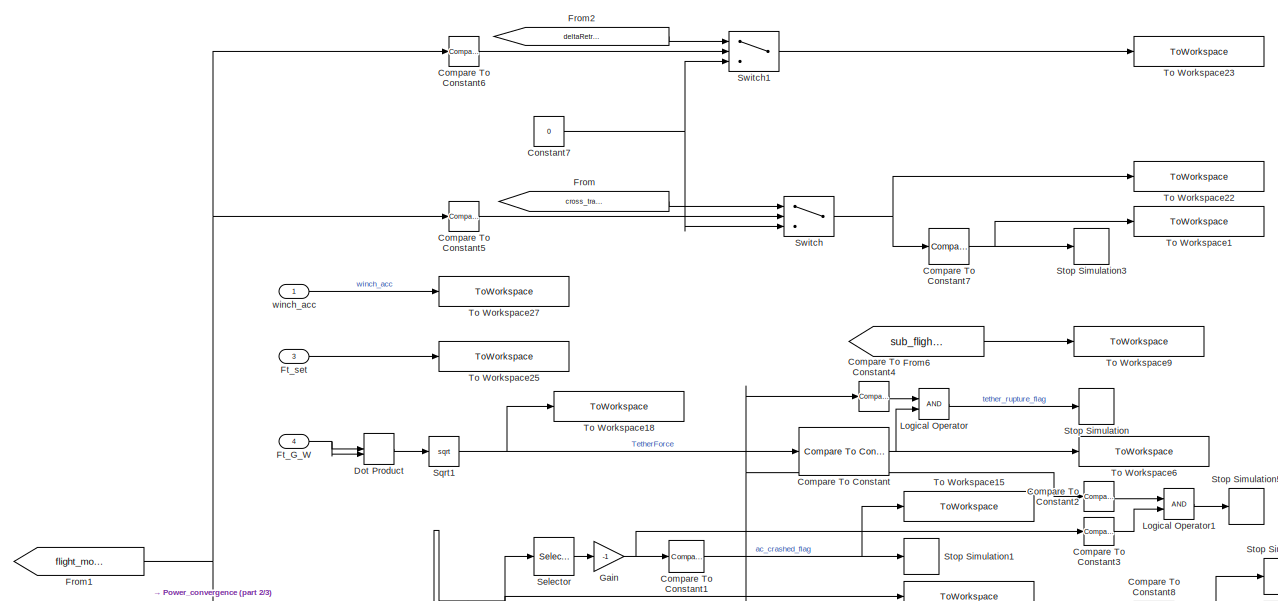
[diagram: RequirementModelsAndLogging - part 1/3, full width, top band]
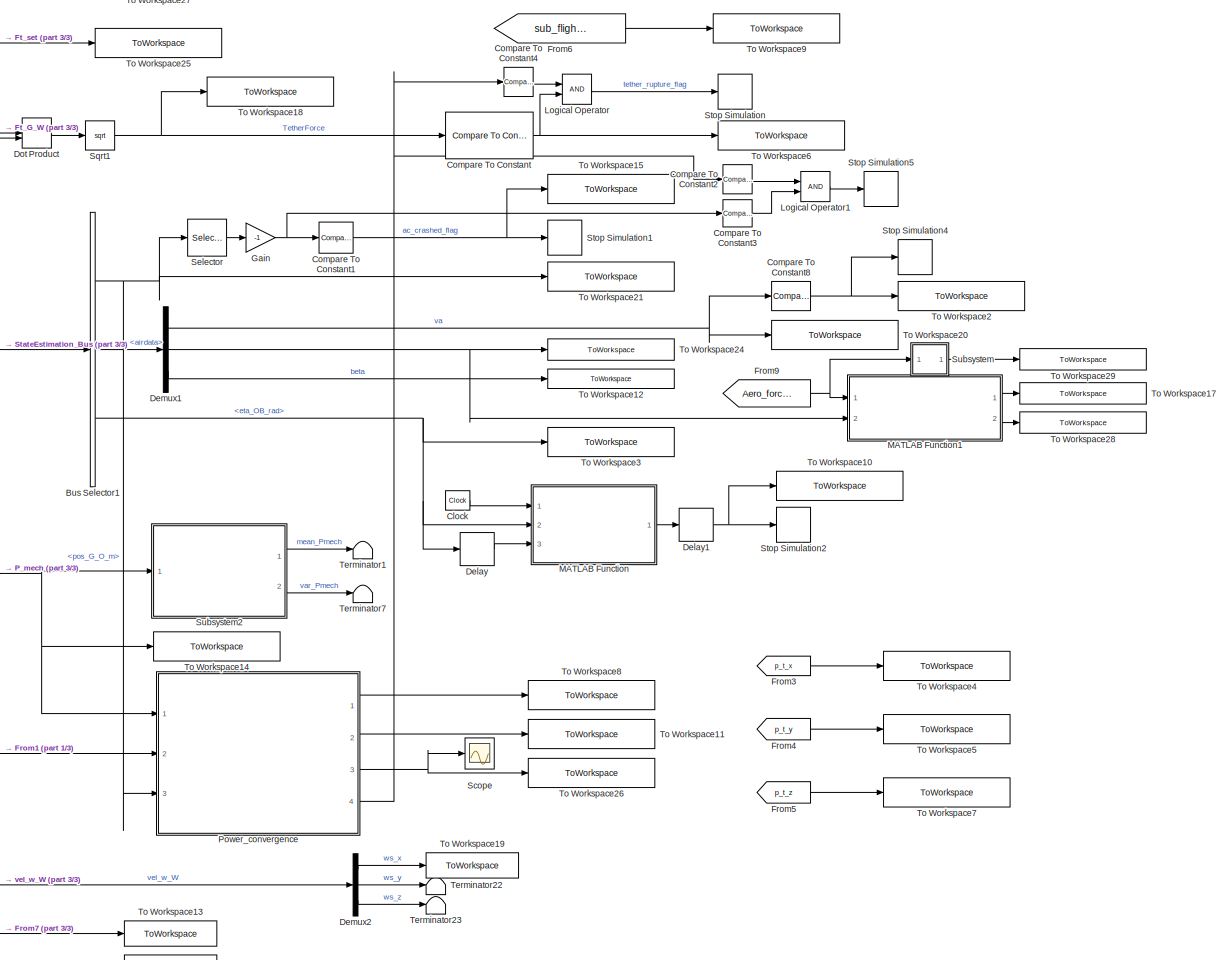
[diagram: RequirementModelsAndLogging - part 2/3, full width, middle band]
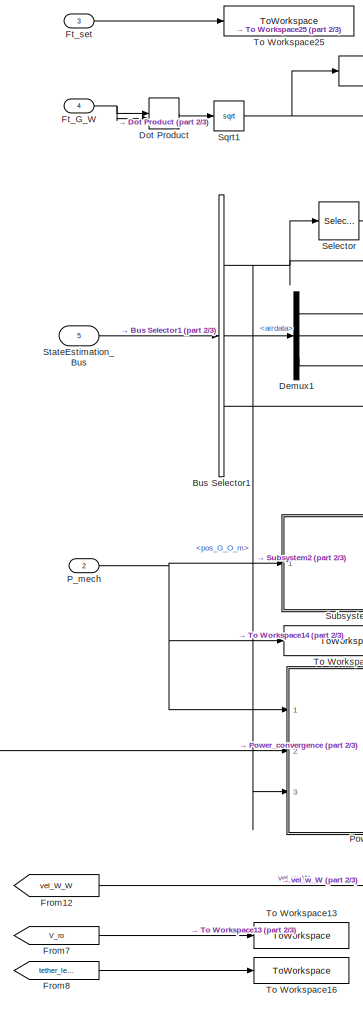
[diagram: RequirementModelsAndLogging - part 3/3, left side, full height]
BLOCK [SubSystem] RequirementModelsAndLogging
  Ports = [5]
  RequestExecContextInheritance = off
BLOCK [BusSelector] RequirementModelsAndLogging/Bus Selector1
  OutputSignals = pos_G_O_m,airdata,eta_OB_rad
  Ports = [1, 3]
BLOCK [Clock] RequirementModelsAndLogging/Clock
BLOCK [Reference] RequirementModelsAndLogging/Compare To Constant  REF=simulink/Logic and Bit
Operations/Compare
To Constant
  Ports = [1, 1]
  SourceBlock = simulink/Logic and Bit\nOperations/Compare\nTo Constant
  SourceType = Compare To Constant
BLOCK [Reference] RequirementModelsAndLogging/Compare To Constant1  REF=simulink/Logic and Bit
Operations/Compare
To Constant
  Ports = [1, 1]
  SourceBlock = simulink/Logic and Bit\nOperations/Compare\nTo Constant
  SourceType = Compare To Constant
BLOCK [Reference] RequirementModelsAndLogging/Compare To Constant2  REF=simulink/Logic and Bit
Operations/Compare
To Constant
  Ports = [1, 1]
  SourceBlock = simulink/Logic and Bit\nOperations/Compare\nTo Constant
  SourceType = Compare To Constant
BLOCK [Reference] RequirementModelsAndLogging/Compare To Constant3  REF=simulink/Logic and Bit
Operations/Compare
To Constant
  Ports = [1, 1]
  SourceBlock = simulink/Logic and Bit\nOperations/Compare\nTo Constant
  SourceType = Compare To Constant
BLOCK [Reference] RequirementModelsAndLogging/Compare To Constant4  REF=simulink/Logic and Bit
Operations/Compare
To Constant
  Ports = [1, 1]
  SourceBlock = simulink/Logic and Bit\nOperations/Compare\nTo Constant
  SourceType = Compare To Constant
BLOCK [Reference] RequirementModelsAndLogging/Compare To Constant5  REF=simulink/Logic and Bit
Operations/Compare
To Constant
  Ports = [1, 1]
  SourceBlock = simulink/Logic and Bit\nOperations/Compare\nTo Constant
  SourceType = Compare To Constant
BLOCK [Reference] RequirementModelsAndLogging/Compare To Constant6  REF=simulink/Logic and Bit
Operations/Compare
To Constant
  Ports = [1, 1]
  SourceBlock = simulink/Logic and Bit\nOperations/Compare\nTo Constant
  SourceType = Compare To Constant
BLOCK [Reference] RequirementModelsAndLogging/Compare To Constant7  REF=simulink/Logic and Bit
Operations/Compare
To Constant
  Ports = [1, 1]
  SourceBlock = simulink/Logic and Bit\nOperations/Compare\nTo Constant
  SourceType = Compare To Constant
BLOCK [Reference] RequirementModelsAndLogging/Compare To Constant8  REF=simulink/Logic and Bit
Operations/Compare
To Constant
  Ports = [1, 1]
  SourceBlock = simulink/Logic and Bit\nOperations/Compare\nTo Constant
  SourceType = Compare To Constant
BLOCK [Constant] RequirementModelsAndLogging/Constant7
  Value = 0
BLOCK [Delay] RequirementModelsAndLogging/Delay
  DelayLength = 1
  InitialCondition = zeros(3,1)
  InputPortMap = u0
  Ports = [1, 1]
BLOCK [Delay] RequirementModelsAndLogging/Delay1
  DelayLength = 1
  InputPortMap = u0
  Ports = [1, 1]
BLOCK [Demux] RequirementModelsAndLogging/Demux1
  DisplayOption = bar
  Outputs = 3
  Ports = [1, 3]
BLOCK [Demux] RequirementModelsAndLogging/Demux2
  DisplayOption = bar
  Outputs = 3
  Ports = [1, 3]
BLOCK [DotProduct] RequirementModelsAndLogging/Dot Product
  OutDataTypeStr = Inherit: Inherit via internal rule
BLOCK [From] RequirementModelsAndLogging/From
  GotoTag = cross_track_error
  TagVisibility = global
BLOCK [From] RequirementModelsAndLogging/From1
  GotoTag = flight_mode
  TagVisibility = global
BLOCK [From] RequirementModelsAndLogging/From12
  GotoTag = vel_W_W
  TagVisibility = global
BLOCK [From] RequirementModelsAndLogging/From2
  GotoTag = deltaRetractionSlope
  TagVisibility = global
BLOCK [From] RequirementModelsAndLogging/From3
  GotoTag = p_t_x
  TagVisibility = global
BLOCK [From] RequirementModelsAndLogging/From4
  GotoTag = p_t_y
  TagVisibility = global
BLOCK [From] RequirementModelsAndLogging/From5
  GotoTag = p_t_z
  TagVisibility = global
BLOCK [From] RequirementModelsAndLogging/From6
  GotoTag = sub_flight_state
  TagVisibility = global
BLOCK [From] RequirementModelsAndLogging/From7
  GotoTag = V_ro
  TagVisibility = global
BLOCK [From] RequirementModelsAndLogging/From8
  GotoTag = tether_length
  TagVisibility = global
BLOCK [From] RequirementModelsAndLogging/From9
  GotoTag = Aero_forces
  TagVisibility = global
BLOCK [Inport] RequirementModelsAndLogging/Ft_G_W
  IconDisplay = Port number
  Port = 4
BLOCK [Inport] RequirementModelsAndLogging/Ft_set
  IconDisplay = Port number
  Port = 3
BLOCK [Gain] RequirementModelsAndLogging/Gain
  Gain = -1
  OutDataTypeStr = Inherit: Inherit via internal rule
  ParamDataTypeStr = Inherit: Inherit via internal rule
  SaturateOnIntegerOverflow = off
BLOCK [Logic] RequirementModelsAndLogging/Logical Operator
  AllPortsSameDT = off
  OutDataTypeStr = boolean
  Ports = [2, 1]
BLOCK [Logic] RequirementModelsAndLogging/Logical Operator1
  AllPortsSameDT = off
  OutDataTypeStr = boolean
  Ports = [2, 1]
BLOCK [SubSystem] RequirementModelsAndLogging/MATLAB Function
  ErrorFcn = Stateflow.Translate.translate
  PermitHierarchicalResolution = ExplicitOnly
  Ports = [3, 1]
  RequestExecContextInheritance = off
  SFBlockType = MATLAB Function
  TreatAsAtomicUnit = on
BLOCK [Demux] RequirementModelsAndLogging/MATLAB Function/ Demux 
  DisplayOption = bar
  Outputs = 1
  Ports = [1, 1]
BLOCK [S-Function] RequirementModelsAndLogging/MATLAB Function/ SFunction 
  EnableBusSupport = on
  FunctionName = sf_sfun
  PortCounts = [3 2]
  Ports = [3, 2]
  SFunctionDeploymentMode = off
  Tag = Stateflow S-Function Dyn_Point_R2015B 14
BLOCK [Terminator] RequirementModelsAndLogging/MATLAB Function/ Terminator 
BLOCK [Inport] RequirementModelsAndLogging/MATLAB Function/eul
  IconDisplay = Port number
  Port = 2
BLOCK [Inport] RequirementModelsAndLogging/MATLAB Function/eul_old
  IconDisplay = Port number
  Port = 3
BLOCK [Outport] RequirementModelsAndLogging/MATLAB Function/stop_flag
  IconDisplay = Port number
BLOCK [Inport] RequirementModelsAndLogging/MATLAB Function/time
  IconDisplay = Port number
BLOCK [SubSystem] RequirementModelsAndLogging/MATLAB Function1
  ErrorFcn = Stateflow.Translate.translate
  PermitHierarchicalResolution = ExplicitOnly
  Ports = [2, 2]
  RequestExecContextInheritance = off
  SFBlockType = MATLAB Function
  TreatAsAtomicUnit = on
BLOCK [Demux] RequirementModelsAndLogging/MATLAB Function1/ Demux 
  DisplayOption = bar
  Outputs = 1
  Ports = [1, 1]
BLOCK [S-Function] RequirementModelsAndLogging/MATLAB Function1/ SFunction 
  EnableBusSupport = on
  FunctionName = sf_sfun
  PortCounts = [2 3]
  Ports = [2, 3]
  SFunctionDeploymentMode = off
  Tag = Stateflow S-Function Dyn_Point_R2015B 15
BLOCK [Terminator] RequirementModelsAndLogging/MATLAB Function1/ Terminator 
BLOCK [Inport] RequirementModelsAndLogging/MATLAB Function1/AoA
  IconDisplay = Port number
  Port = 2
BLOCK [Outport] RequirementModelsAndLogging/MATLAB Function1/Drag
  IconDisplay = Port number
  Port = 2
BLOCK [Inport] RequirementModelsAndLogging/MATLAB Function1/F_a_B
  IconDisplay = Port number
BLOCK [Outport] RequirementModelsAndLogging/MATLAB Function1/Lift
  IconDisplay = Port number
BLOCK [Inport] RequirementModelsAndLogging/P_mech
  IconDisplay = Port number
  Port = 2
BLOCK [SubSystem] RequirementModelsAndLogging/Power_convergence
  Ports = [3, 4]
  RequestExecContextInheritance = off
BLOCK [Logic] RequirementModelsAndLogging/Power_convergence/AND
  AllPortsSameDT = off
  OutDataTypeStr = boolean
  Ports = [2, 1]
BLOCK [Sum] RequirementModelsAndLogging/Power_convergence/Add
  Commented = on
  InputSameDT = off
  Inputs = +-
  OutDataTypeStr = Inherit: Inherit via internal rule
  Ports = [2, 1]
  SaturateOnIntegerOverflow = off
BLOCK [Reference] RequirementModelsAndLogging/Power_convergence/Compare To Constant  REF=simulink/Logic and Bit
Operations/Compare
To Constant
  Commented = on
  Ports = [1, 1]
  SourceBlock = simulink/Logic and Bit\nOperations/Compare\nTo Constant
  SourceType = Compare To Constant
BLOCK [Reference] RequirementModelsAndLogging/Power_convergence/Compare To Constant1  REF=simulink/Logic and Bit
Operations/Compare
To Constant
  Ports = [1, 1]
  SourceBlock = simulink/Logic and Bit\nOperations/Compare\nTo Constant
  SourceType = Compare To Constant
BLOCK [Reference] RequirementModelsAndLogging/Power_convergence/Compare To Constant2  REF=simulink/Logic and Bit
Operations/Compare
To Constant
  Commented = on
  Ports = [1, 1]
  SourceBlock = simulink/Logic and Bit\nOperations/Compare\nTo Constant
  SourceType = Compare To Constant
BLOCK [Reference] RequirementModelsAndLogging/Power_convergence/Compare To Constant3  REF=simulink/Logic and Bit
Operations/Compare
To Constant
  Commented = on
  Ports = [1, 1]
  SourceBlock = simulink/Logic and Bit\nOperations/Compare\nTo Constant
  SourceType = Compare To Constant
BLOCK [Reference] RequirementModelsAndLogging/Power_convergence/Compare To Constant4  REF=simulink/Logic and Bit
Operations/Compare
To Constant
  Commented = on
  Ports = [1, 1]
  SourceBlock = simulink/Logic and Bit\nOperations/Compare\nTo Constant
  SourceType = Compare To Constant
BLOCK [Constant] RequirementModelsAndLogging/Power_convergence/Constant
  Value = threshold/min_cycles
BLOCK [Delay] RequirementModelsAndLogging/Power_convergence/Delay
  Commented = on
  DelayLength = 10
  InputPortMap = u0
  Ports = [1, 1]
BLOCK [Delay] RequirementModelsAndLogging/Power_convergence/Delay1
  DelayLength = 1
  InitialCondition = 0
  InputPortMap = u0
  Ports = [1, 1]
BLOCK [Delay] RequirementModelsAndLogging/Power_convergence/Delay10
  Commented = on
  DelayLength = 1
  ExternalReset = Rising
  InitialCondition = 0
  InitialConditionSource = Input port
  InputPortMap = u0,r5,p4
  Ports = [3, 1]
BLOCK [Delay] RequirementModelsAndLogging/Power_convergence/Delay12
  Commented = on
  DelayLength = 1
  InitialCondition = 0
  InputPortMap = u0
  Ports = [1, 1]
BLOCK [Delay] RequirementModelsAndLogging/Power_convergence/Delay14
  Commented = on
  DelayLength = 1
  ExternalReset = Rising
  InitialCondition = 0
  InitialConditionSource = Input port
  InputPortMap = u0,r5,p4
  Ports = [3, 1]
BLOCK [Delay] RequirementModelsAndLogging/Power_convergence/Delay2
  DelayLength = 1
  InitialCondition = 0
  InputPortMap = u0
  Ports = [1, 1]
BLOCK [Delay] RequirementModelsAndLogging/Power_convergence/Delay3
  DelayLength = 1
  InitialCondition = 0
  InputPortMap = u0
  Ports = [1, 1]
BLOCK [Delay] RequirementModelsAndLogging/Power_convergence/Delay4
  DelayLength = 1
  InitialCondition = 0
  InputPortMap = u0
  Ports = [1, 1]
BLOCK [Delay] RequirementModelsAndLogging/Power_convergence/Delay5
  DelayLength = 1
  InitialCondition = threshold+1000
  InputPortMap = u0
  Ports = [1, 1]
BLOCK [Delay] RequirementModelsAndLogging/Power_convergence/Delay6
  DelayLength = 1
  InitialCondition = 0
  InputPortMap = u0
  Ports = [1, 1]
BLOCK [Delay] RequirementModelsAndLogging/Power_convergence/Delay7
  DelayLength = 1
  InitialCondition = 0
  InputPortMap = u0
  Ports = [1, 1]
BLOCK [Delay] RequirementModelsAndLogging/Power_convergence/Delay8
  Commented = on
  DelayLength = 1
  ExternalReset = Rising
  InitialCondition = 0
  InputPortMap = u0,r5
  Ports = [2, 1]
BLOCK [Reference] RequirementModelsAndLogging/Power_convergence/Detect Change  REF=simulink/Logic and Bit
Operations/Detect
Change
  Commented = on
  Ports = [1, 1]
  SourceBlock = simulink/Logic and Bit\nOperations/Detect\nChange
  SourceType = Detect Change
BLOCK [DotProduct] RequirementModelsAndLogging/Power_convergence/Dot Product
  Commented = on
  OutDataTypeStr = Inherit: Inherit via internal rule
BLOCK [SubSystem] RequirementModelsAndLogging/Power_convergence/MATLAB Function
  ErrorFcn = Stateflow.Translate.translate
  PermitHierarchicalResolution = ExplicitOnly
  Ports = [9, 7]
  RequestExecContextInheritance = off
  SFBlockType = MATLAB Function
  TreatAsAtomicUnit = on
BLOCK [Demux] RequirementModelsAndLogging/Power_convergence/MATLAB Function/ Demux 
  DisplayOption = bar
  Outputs = 1
  Ports = [1, 1]
BLOCK [S-Function] RequirementModelsAndLogging/Power_convergence/MATLAB Function/ SFunction 
  EnableBusSupport = on
  FunctionName = sf_sfun
  PortCounts = [9 8]
  Ports = [9, 8]
  SFunctionDeploymentMode = off
  Tag = Stateflow S-Function Dyn_Point_R2015B 101
BLOCK [Terminator] RequirementModelsAndLogging/Power_convergence/MATLAB Function/ Terminator 
BLOCK [Outport] RequirementModelsAndLogging/Power_convergence/MATLAB Function/cnt
  IconDisplay = Port number
  Port = 4
BLOCK [Inport] RequirementModelsAndLogging/Power_convergence/MATLAB Function/cnt 
  IconDisplay = Port number
  Port = 4
BLOCK [Outport] RequirementModelsAndLogging/Power_convergence/MATLAB Function/cnt_max_mat
  IconDisplay = Port number
  Port = 6
BLOCK [Inport] RequirementModelsAndLogging/Power_convergence/MATLAB Function/cnt_max_mat 
  IconDisplay = Port number
  Port = 8
BLOCK [Outport] RequirementModelsAndLogging/Power_convergence/MATLAB Function/cycles_cnt
  IconDisplay = Port number
  Port = 7
BLOCK [Inport] RequirementModelsAndLogging/Power_convergence/MATLAB Function/cycles_cnt 
  IconDisplay = Port number
  Port = 9
BLOCK [Outport] RequirementModelsAndLogging/Power_convergence/MATLAB Function/e_new
  IconDisplay = Port number
  Port = 5
BLOCK [Inport] RequirementModelsAndLogging/Power_convergence/MATLAB Function/e_old
  IconDisplay = Port number
  Port = 7
BLOCK [Outport] RequirementModelsAndLogging/Power_convergence/MATLAB Function/flag
  IconDisplay = Port number
BLOCK [Inport] RequirementModelsAndLogging/Power_convergence/MATLAB Function/flag 
  IconDisplay = Port number
BLOCK [Inport] RequirementModelsAndLogging/Power_convergence/MATLAB Function/flightMode
  IconDisplay = Port number
  Port = 6
BLOCK [Outport] RequirementModelsAndLogging/Power_convergence/MATLAB Function/m_new
  IconDisplay = Port number
  Port = 2
BLOCK [Inport] RequirementModelsAndLogging/Power_convergence/MATLAB Function/m_old
  IconDisplay = Port number
  Port = 2
BLOCK [Outport] RequirementModelsAndLogging/Power_convergence/MATLAB Function/p_sum
  IconDisplay = Port number
  Port = 3
BLOCK [Inport] RequirementModelsAndLogging/Power_convergence/MATLAB Function/p_sum 
  IconDisplay = Port number
  Port = 3
BLOCK [Inport] RequirementModelsAndLogging/Power_convergence/MATLAB Function/u
  IconDisplay = Port number
  Port = 5
BLOCK [Product] RequirementModelsAndLogging/Power_convergence/Matrix Multiply
  InputSameDT = off
  OutDataTypeStr = Inherit: Inherit via internal rule
  Ports = [2, 1]
  RndMeth = Floor
  SaturateOnIntegerOverflow = off
BLOCK [Outport] RequirementModelsAndLogging/Power_convergence/No_cycles
  IconDisplay = Port number
  Port = 4
BLOCK [Inport] RequirementModelsAndLogging/Power_convergence/P_mech
  IconDisplay = Port number
BLOCK [RateTransition] RequirementModelsAndLogging/Power_convergence/Rate Transition8
  Commented = on
  OutPortSampleTime = sample_time
  X0 = [0;0;0]
BLOCK [RelationalOperator] RequirementModelsAndLogging/Power_convergence/Relational Operator
  InputSameDT = off
  Operator = <=
  OutDataTypeStr = boolean
  Ports = [2, 1]
BLOCK [Sqrt] RequirementModelsAndLogging/Power_convergence/Sqrt
  Commented = on
BLOCK [Stop] RequirementModelsAndLogging/Power_convergence/Stop Simulation
BLOCK [ToWorkspace] RequirementModelsAndLogging/Power_convergence/To Workspace
  FixptAsFi = on
  MaxDataPoints = 1
  Ports = [1]
  SampleTime = -1
  SaveFormat = Timeseries
  VariableName = No_of_Cycles
BLOCK [Outport] RequirementModelsAndLogging/Power_convergence/cycle_signal_counter
  IconDisplay = Port number
  Port = 2
BLOCK [Outport] RequirementModelsAndLogging/Power_convergence/error_power
  IconDisplay = Port number
  Port = 3
BLOCK [Inport] RequirementModelsAndLogging/Power_convergence/flightMode
  IconDisplay = Port number
  Port = 2
BLOCK [Inport] RequirementModelsAndLogging/Power_convergence/pos
  IconDisplay = Port number
  Port = 3
BLOCK [Outport] RequirementModelsAndLogging/Power_convergence/power_conv_flag
  IconDisplay = Port number
BLOCK [Scope] RequirementModelsAndLogging/Scope
  Floating = off
  NumInputPorts = 1
  Ports = [1]
  ScopeSpecificationString = Simulink.scopes.TimeScopeBlockCfg('CurrentConfiguration', extmgr.ConfigurationSet(extmgr.Configuration('Core','General UI',true),extmgr.Configuration('Core','Source UI',true),extmgr.Configuration('Sources','WiredSimulink',true,'DataLoggingVariableName','ScopeData1'),extmgr.Configuration('Visuals','Time Domain',true,'SerializedDisplays',{struct('MinYLimReal','-168369.29524','MaxYLimReal','2411885.3...<+1494ch>
BLOCK [Selector] RequirementModelsAndLogging/Selector
  IndexOptions = Index vector (dialog)
  Indices = 3
  InputPortWidth = 3
  OutputSizes = 1
  Ports = [1, 1]
BLOCK [Sqrt] RequirementModelsAndLogging/Sqrt1
BLOCK [Inport] RequirementModelsAndLogging/StateEstimation_Bus
  IconDisplay = Port number
  Port = 5
BLOCK [Stop] RequirementModelsAndLogging/Stop Simulation
BLOCK [Stop] RequirementModelsAndLogging/Stop Simulation1
BLOCK [Stop] RequirementModelsAndLogging/Stop Simulation2
BLOCK [Stop] RequirementModelsAndLogging/Stop Simulation3
BLOCK [Stop] RequirementModelsAndLogging/Stop Simulation4
BLOCK [Stop] RequirementModelsAndLogging/Stop Simulation5
BLOCK [SubSystem] RequirementModelsAndLogging/Subsystem
  Ports = [1, 1]
  RequestExecContextInheritance = off
BLOCK [DotProduct] RequirementModelsAndLogging/Subsystem/Dot Product3
  OutDataTypeStr = Inherit: Inherit via internal rule
BLOCK [Inport] RequirementModelsAndLogging/Subsystem/In1
  IconDisplay = Port number
BLOCK [Outport] RequirementModelsAndLogging/Subsystem/Out1
  IconDisplay = Port number
BLOCK [Sqrt] RequirementModelsAndLogging/Subsystem/Sqrt1
BLOCK [SubSystem] RequirementModelsAndLogging/Subsystem2
  Commented = on
  Ports = [1, 2]
  RequestExecContextInheritance = off
BLOCK [Constant] RequirementModelsAndLogging/Subsystem2/Constant7
BLOCK [Delay] RequirementModelsAndLogging/Subsystem2/Delay1
  DelayLength = 1
  InputPortMap = u0
  Ports = [1, 1]
  SampleTime = 0.1
BLOCK [Delay] RequirementModelsAndLogging/Subsystem2/Delay3
  DelayLength = 1
  InputPortMap = u0
  Ports = [1, 1]
  SampleTime = 0.1
BLOCK [Delay] RequirementModelsAndLogging/Subsystem2/Delay4
  DelayLength = 1
  InitialCondition = 1
  InputPortMap = u0
  Ports = [1, 1]
  SampleTime = 0.1
BLOCK [Product] RequirementModelsAndLogging/Subsystem2/Divide
  InputSameDT = off
  Inputs = */
  OutDataTypeStr = Inherit: Inherit via internal rule
  Ports = [2, 1]
  RndMeth = Floor
  SaturateOnIntegerOverflow = off
BLOCK [Product] RequirementModelsAndLogging/Subsystem2/Divide1
  InputSameDT = off
  Inputs = */
  OutDataTypeStr = Inherit: Inherit via internal rule
  Ports = [2, 1]
  RndMeth = Floor
  SaturateOnIntegerOverflow = off
BLOCK [Inport] RequirementModelsAndLogging/Subsystem2/P_mech
  IconDisplay = Port number
BLOCK [Product] RequirementModelsAndLogging/Subsystem2/Product
  InputSameDT = off
  OutDataTypeStr = Inherit: Inherit via internal rule
  Ports = [2, 1]
  RndMeth = Floor
  SaturateOnIntegerOverflow = off
BLOCK [RateTransition] RequirementModelsAndLogging/Subsystem2/Rate Transition1
  OutPortSampleTime = 0.1
BLOCK [RateTransition] RequirementModelsAndLogging/Subsystem2/Rate Transition6
  OutPortSampleTime = 0.1
BLOCK [Sum] RequirementModelsAndLogging/Subsystem2/Sum
  IconShape = round
  InputSameDT = off
  Inputs = |+-
  OutDataTypeStr = Inherit: Inherit via internal rule
  Ports = [2, 1]
  SaturateOnIntegerOverflow = off
BLOCK [Sum] RequirementModelsAndLogging/Subsystem2/Sum1
  IconShape = round
  InputSameDT = off
  Inputs = |++
  OutDataTypeStr = Inherit: Inherit via internal rule
  Ports = [2, 1]
  SaturateOnIntegerOverflow = off
BLOCK [Sum] RequirementModelsAndLogging/Subsystem2/Sum3
  IconShape = round
  InputSameDT = off
  Inputs = |++
  OutDataTypeStr = Inherit: Inherit via internal rule
  Ports = [2, 1]
  SaturateOnIntegerOverflow = off
BLOCK [Sum] RequirementModelsAndLogging/Subsystem2/Sum4
  IconShape = round
  InputSameDT = off
  Inputs = |++
  OutDataTypeStr = Inherit: Inherit via internal rule
  Ports = [2, 1]
  SaturateOnIntegerOverflow = off
BLOCK [ToWorkspace] RequirementModelsAndLogging/Subsystem2/To Workspace
  Commented = on
  FixptAsFi = on
  MaxDataPoints = inf
  Ports = [1]
  SampleTime = log_sample_time
  VariableName = P_mech
BLOCK [Outport] RequirementModelsAndLogging/Subsystem2/mean_Pmech
  IconDisplay = Port number
BLOCK [Outport] RequirementModelsAndLogging/Subsystem2/var_Pmech
  IconDisplay = Port number
  Port = 2
BLOCK [Switch] RequirementModelsAndLogging/Switch
  Criteria = u2 > Threshold
  InputSameDT = off
  SaturateOnIntegerOverflow = off
BLOCK [Switch] RequirementModelsAndLogging/Switch1
  Criteria = u2 > Threshold
  InputSameDT = off
  SaturateOnIntegerOverflow = off
BLOCK [Terminator] RequirementModelsAndLogging/Terminator1
  Commented = on
BLOCK [Terminator] RequirementModelsAndLogging/Terminator22
BLOCK [Terminator] RequirementModelsAndLogging/Terminator23
BLOCK [Terminator] RequirementModelsAndLogging/Terminator7
  Commented = on
BLOCK [ToWorkspace] RequirementModelsAndLogging/To Workspace1
  FixptAsFi = on
  MaxDataPoints = 1
  Ports = [1]
  SampleTime = -1
  VariableName = max_crosstrack_viol1
BLOCK [ToWorkspace] RequirementModelsAndLogging/To Workspace10
  FixptAsFi = on
  MaxDataPoints = 1
  Ports = [1]
  SampleTime = -1
  VariableName = bad_manoeuvre_flag
BLOCK [ToWorkspace] RequirementModelsAndLogging/To Workspace11
  FixptAsFi = on
  MaxDataPoints = 1
  Ports = [1]
  SampleTime = -1
  Save2DSignal = 2-D array (concatenate along first dimension)
  SaveFormat = Timeseries
  VariableName = cycle_signal_counter
BLOCK [ToWorkspace] RequirementModelsAndLogging/To Workspace12
  FixptAsFi = on
  MaxDataPoints = inf
  Ports = [1]
  SampleTime = simInit.AttLoggingTs
  Save2DSignal = 2-D array (concatenate along first dimension)
  SaveFormat = Timeseries
  VariableName = beta
BLOCK [ToWorkspace] RequirementModelsAndLogging/To Workspace13
  FixptAsFi = on
  MaxDataPoints = inf
  Ports = [1]
  SampleTime = simInit.PLoggingTs
  SaveFormat = Timeseries
  VariableName = v_reel
BLOCK [ToWorkspace] RequirementModelsAndLogging/To Workspace14
  FixptAsFi = on
  MaxDataPoints = inf
  Ports = [1]
  SampleTime = simInit.PLoggingTs
  SaveFormat = Timeseries
  VariableName = P_mech
BLOCK [ToWorkspace] RequirementModelsAndLogging/To Workspace15
  FixptAsFi = on
  MaxDataPoints = 1
  Ports = [1]
  SampleTime = -1
  VariableName = ground_crash
BLOCK [ToWorkspace] RequirementModelsAndLogging/To Workspace16
  FixptAsFi = on
  MaxDataPoints = inf
  Ports = [1]
  SampleTime = simInit.AttLoggingTs
  SaveFormat = Timeseries
  VariableName = tether_length
BLOCK [ToWorkspace] RequirementModelsAndLogging/To Workspace17
  FixptAsFi = on
  MaxDataPoints = inf
  Ports = [1]
  SampleTime = simInit.AttLoggingTs
  Save2DSignal = 2-D array (concatenate along first dimension)
  SaveFormat = Timeseries
  VariableName = lift
BLOCK [ToWorkspace] RequirementModelsAndLogging/To Workspace18
  FixptAsFi = on
  MaxDataPoints = inf
  Ports = [1]
  SampleTime = simInit.FtLoggingTs
  SaveFormat = Timeseries
  VariableName = TetherForce
BLOCK [ToWorkspace] RequirementModelsAndLogging/To Workspace19
  FixptAsFi = on
  MaxDataPoints = inf
  Ports = [1]
  SampleTime = simInit.PLoggingTs
  SaveFormat = Timeseries
  VariableName = v_w
BLOCK [ToWorkspace] RequirementModelsAndLogging/To Workspace2
  FixptAsFi = on
  MaxDataPoints = 1
  Ports = [1]
  SampleTime = -1
  VariableName = max_speed_viol
BLOCK [ToWorkspace] RequirementModelsAndLogging/To Workspace20
  FixptAsFi = on
  MaxDataPoints = inf
  Ports = [1]
  SampleTime = simInit.AttLoggingTs
  Save2DSignal = 2-D array (concatenate along first dimension)
  SaveFormat = Timeseries
  VariableName = va
BLOCK [ToWorkspace] RequirementModelsAndLogging/To Workspace21
  FixptAsFi = on
  MaxDataPoints = inf
  Ports = [1]
  SampleTime = simInit.PLoggingTs
  Save2DSignal = 2-D array (concatenate along first dimension)
  SaveFormat = Timeseries
  VariableName = pos_O
BLOCK [ToWorkspace] RequirementModelsAndLogging/To Workspace22
  FixptAsFi = on
  MaxDataPoints = inf
  Ports = [1]
  SampleTime = simInit.CteLoggingTs
  Save2DSignal = 2-D array (concatenate along first dimension)
  SaveFormat = Timeseries
  VariableName = CrossTrackError
BLOCK [ToWorkspace] RequirementModelsAndLogging/To Workspace23
  FixptAsFi = on
  MaxDataPoints = inf
  Ports = [1]
  SampleTime = simInit.GSLoggingTs
  Save2DSignal = 2-D array (concatenate along first dimension)
  SaveFormat = Timeseries
  VariableName = GlideslopeTrackingError
BLOCK [ToWorkspace] RequirementModelsAndLogging/To Workspace24
  FixptAsFi = on
  MaxDataPoints = inf
  Ports = [1]
  SampleTime = simInit.AttLoggingTs
  Save2DSignal = 2-D array (concatenate along first dimension)
  SaveFormat = Timeseries
  VariableName = alpha
BLOCK [ToWorkspace] RequirementModelsAndLogging/To Workspace25
  FixptAsFi = on
  MaxDataPoints = inf
  Ports = [1]
  SampleTime = simInit.FtLoggingTs
  SaveFormat = Timeseries
  VariableName = Ft_set
BLOCK [ToWorkspace] RequirementModelsAndLogging/To Workspace26
  FixptAsFi = on
  MaxDataPoints = inf
  Ports = [1]
  SampleTime = -1
  Save2DSignal = 2-D array (concatenate along first dimension)
  SaveFormat = Timeseries
  VariableName = power_conv_error
BLOCK [ToWorkspace] RequirementModelsAndLogging/To Workspace27
  FixptAsFi = on
  MaxDataPoints = inf
  Ports = [1]
  SampleTime = simInit.PLoggingTs
  SaveFormat = Timeseries
  VariableName = winch_a
BLOCK [ToWorkspace] RequirementModelsAndLogging/To Workspace28
  FixptAsFi = on
  MaxDataPoints = inf
  Ports = [1]
  SampleTime = simInit.AttLoggingTs
  Save2DSignal = 2-D array (concatenate along first dimension)
  SaveFormat = Timeseries
  VariableName = drag
BLOCK [ToWorkspace] RequirementModelsAndLogging/To Workspace29
  FixptAsFi = on
  MaxDataPoints = inf
  Ports = [1]
  SampleTime = simInit.AttLoggingTs
  Save2DSignal = 2-D array (concatenate along first dimension)
  SaveFormat = Timeseries
  VariableName = Faero
BLOCK [ToWorkspace] RequirementModelsAndLogging/To Workspace3
  FixptAsFi = on
  MaxDataPoints = inf
  Ports = [1]
  SampleTime = simInit.PLoggingTs
  Save2DSignal = 2-D array (concatenate along first dimension)
  SaveFormat = Timeseries
  VariableName = Eul_ang
BLOCK [ToWorkspace] RequirementModelsAndLogging/To Workspace4
  FixptAsFi = on
  MaxDataPoints = inf
  Ports = [1]
  SampleTime = simInit.PLoggingTs
  Save2DSignal = 2-D array (concatenate along first dimension)
  SaveFormat = Timeseries
  VariableName = Tether_x
BLOCK [ToWorkspace] RequirementModelsAndLogging/To Workspace5
  FixptAsFi = on
  MaxDataPoints = inf
  Ports = [1]
  SampleTime = simInit.PLoggingTs
  Save2DSignal = 2-D array (concatenate along first dimension)
  SaveFormat = Timeseries
  VariableName = Tether_y
BLOCK [ToWorkspace] RequirementModelsAndLogging/To Workspace6
  FixptAsFi = on
  MaxDataPoints = 1
  Ports = [1]
  SampleTime = -1
  VariableName = max_tether_force_viol
BLOCK [ToWorkspace] RequirementModelsAndLogging/To Workspace7
  FixptAsFi = on
  MaxDataPoints = inf
  Ports = [1]
  SampleTime = simInit.PLoggingTs
  Save2DSignal = 2-D array (concatenate along first dimension)
  SaveFormat = Timeseries
  VariableName = Tether_z
BLOCK [ToWorkspace] RequirementModelsAndLogging/To Workspace8
  FixptAsFi = on
  MaxDataPoints = 1
  Ports = [1]
  SampleTime = -1
  VariableName = power_conv_flag
BLOCK [ToWorkspace] RequirementModelsAndLogging/To Workspace9
  FixptAsFi = on
  MaxDataPoints = inf
  Ports = [1]
  SampleTime = simInit.FtLoggingTs
  SaveFormat = Timeseries
  VariableName = sub_flight_state
BLOCK [Inport] RequirementModelsAndLogging/winch_acc
  IconDisplay = Port number
BLOCK [Sqrt] Sqrt3
  Commented = on
BLOCK [Terminator] Terminator
BLOCK [Scope] Tether Force
  Commented = on
  Floating = off
  NumInputPorts = 3
  Ports = [3]
  ScopeSpecificationString = Simulink.scopes.TimeScopeBlockCfg('CurrentConfiguration', extmgr.ConfigurationSet(extmgr.Configuration('Core','General UI',true),extmgr.Configuration('Core','Source UI',true),extmgr.Configuration('Sources','WiredSimulink',true,'DataLoggingVariableName','ScopeData1'),extmgr.Configuration('Visuals','Time Domain',true,'SerializedDisplays',{struct('MinYLimReal','-346001.78757','MaxYLimReal','3114016.0...<+1557ch>
BLOCK [SubSystem] Visualisation
  Commented = on
  Ports = [1]
  RequestExecContextInheritance = off
BLOCK [BusSelector] Visualisation/Bus Selector1
  OutputSignals = pos_G_O_m,eta_OB_rad
  Ports = [1, 2]
BLOCK [Clock] Visualisation/Clock
BLOCK [Constant] Visualisation/Constant5
  Value = sample_time_vis
BLOCK [From] Visualisation/From1
  GotoTag = p_t_x
  TagVisibility = global
BLOCK [From] Visualisation/From10
  GotoTag = arcP
  TagVisibility = global
BLOCK [From] Visualisation/From11
  GotoTag = sub_flight_state
  TagVisibility = global
BLOCK [From] Visualisation/From2
  GotoTag = p_t_y
  TagVisibility = global
BLOCK [From] Visualisation/From3
  GotoTag = p_t_z
  TagVisibility = global
BLOCK [From] Visualisation/From6
  GotoTag = phi0_update
  TagVisibility = global
BLOCK [Inport] Visualisation/StateEstimation_Bus
  IconDisplay = Port number
BLOCK [SubSystem] Visualisation/Visualisation
  ErrorFcn = Stateflow.Translate.translate
  PermitHierarchicalResolution = ExplicitOnly
  Ports = [10]
  RequestExecContextInheritance = off
  SFBlockType = MATLAB Function
  TreatAsAtomicUnit = on
BLOCK [Demux] Visualisation/Visualisation/ Demux 
  DisplayOption = bar
  Outputs = 1
  Ports = [1, 1]
BLOCK [S-Function] Visualisation/Visualisation/ SFunction 
  EnableBusSupport = on
  FunctionName = sf_sfun
  Parameters = ENVMT,params
  PortCounts = [10 1]
  Ports = [10, 1]
  SFunctionDeploymentMode = off
  Tag = Stateflow S-Function 28
BLOCK [Terminator] Visualisation/Visualisation/ Terminator 
BLOCK [Inport] Visualisation/Visualisation/arcP
  IconDisplay = Port number
  Port = 9
BLOCK [Inport] Visualisation/Visualisation/eta_OB
  IconDisplay = Port number
  Port = 7
BLOCK [Inport] Visualisation/Visualisation/p_t_x
  IconDisplay = Port number
  Port = 2
BLOCK [Inport] Visualisation/Visualisation/p_t_y
  IconDisplay = Port number
  Port = 3
BLOCK [Inport] Visualisation/Visualisation/p_t_z
  IconDisplay = Port number
  Port = 4
BLOCK [Inport] Visualisation/Visualisation/phi0_update
  IconDisplay = Port number
  Port = 5
BLOCK [Inport] Visualisation/Visualisation/pos_O
  IconDisplay = Port number
  Port = 6
BLOCK [Inport] Visualisation/Visualisation/sampletime
  IconDisplay = Port number
  Port = 10
BLOCK [Inport] Visualisation/Visualisation/sub_flight_state
  IconDisplay = Port number
  Port = 8
BLOCK [Inport] Visualisation/Visualisation/t
  IconDisplay = Port number
BLOCK [Scope] Vro
  Commented = on
  Floating = off
  NumInputPorts = 1
  Ports = [1]
  ScopeSpecificationString = Simulink.scopes.TimeScopeBlockCfg('CurrentConfiguration', extmgr.ConfigurationSet(extmgr.Configuration('Core','General UI',true),extmgr.Configuration('Core','Source UI',true),extmgr.Configuration('Sources','WiredSimulink',true,'DataLoggingVariableName','ScopeData1'),extmgr.Configuration('Visuals','Time Domain',true,'SerializedDisplays',{struct('MinYLimReal','-31.25','MaxYLimReal','31.25','YLabelRe...<+1433ch>
BLOCK [SubSystem] WinchControl_SS_6
  Ports = [3, 5]
  RequestExecContextInheritance = off
BLOCK [Reference] WinchControl_SS_6/Compare To Constant1  REF=simulink/Logic and Bit
Operations/Compare
To Constant
  Ports = [1, 1]
  SourceBlock = simulink/Logic and Bit\nOperations/Compare\nTo Constant
  SourceType = Compare To Constant
BLOCK [Inport] WinchControl_SS_6/Ft_ground_W
  IconDisplay = Port number
  OutDataTypeStr = double
  PortDimensions = 1
  SamplingMode = Sample based
  SignalType = real
BLOCK [Inport] WinchControl_SS_6/Ft_set
  IconDisplay = Port number
  OutDataTypeStr = double
  Port = 2
  PortDimensions = 1
  SamplingMode = Sample based
  SignalType = real
BLOCK [Gain] WinchControl_SS_6/Gain1
  Gain = winchParameter.radius
  OutDataTypeStr = Inherit: Inherit via internal rule
  ParamDataTypeStr = Inherit: Inherit via internal rule
  SaturateOnIntegerOverflow = off
BLOCK [Outport] WinchControl_SS_6/P_mech
  IconDisplay = Port number
  OutDataTypeStr = double
  Port = 4
  PortDimensions = 1
  SamplingMode = Sample based
  SignalType = real
BLOCK [Scope] WinchControl_SS_6/Power
  Floating = off
  NumInputPorts = 1
  Ports = [1]
  ScopeSpecificationString = Simulink.scopes.TimeScopeBlockCfg('CurrentConfiguration', extmgr.ConfigurationSet(extmgr.Configuration('Core','General UI',true),extmgr.Configuration('Core','Source UI',true),extmgr.Configuration('Sources','WiredSimulink',true,'DataLoggingVariableName','ScopeData1'),extmgr.Configuration('Visuals','Time Domain',true,'SerializedDisplays',{struct('MinYLimReal','-10594488.73354','MaxYLimReal','1442056...<+1475ch>
BLOCK [Product] WinchControl_SS_6/Product
  InputSameDT = off
  OutDataTypeStr = Inherit: Inherit via internal rule
  Ports = [2, 1]
  RndMeth = Floor
  SaturateOnIntegerOverflow = off
BLOCK [SubSystem] WinchControl_SS_6/PureTorqueControl
  Ports = [4, 1]
  RequestExecContextInheritance = off
BLOCK [Constant] WinchControl_SS_6/PureTorqueControl/Constant
  Value = 0
BLOCK [Constant] WinchControl_SS_6/PureTorqueControl/Constant4
  Value = constr.winchParameter.a_max/winchParameter.radius
BLOCK [Constant] WinchControl_SS_6/PureTorqueControl/Constant5
  Value = constr.winchParameter.a_min/winchParameter.radius
BLOCK [DotProduct] WinchControl_SS_6/PureTorqueControl/Dot Product1
  OutDataTypeStr = Inherit: Inherit via internal rule
BLOCK [Scope] WinchControl_SS_6/PureTorqueControl/FT set
  Floating = off
  NumInputPorts = 2
  Ports = [2]
  ScopeSpecificationString = Simulink.scopes.TimeScopeBlockCfg('CurrentConfiguration', extmgr.ConfigurationSet(extmgr.Configuration('Core','General UI',true),extmgr.Configuration('Core','Source UI',true),extmgr.Configuration('Sources','WiredSimulink',true,'DataLoggingVariableName','ScopeData1'),extmgr.Configuration('Visuals','Time Domain',true,'SerializedDisplays',{struct('MinYLimReal','-132364.46625','MaxYLimReal','1191280.1...<+1484ch>
BLOCK [Inport] WinchControl_SS_6/PureTorqueControl/F_t_m_grnd
  IconDisplay = Port number
BLOCK [Inport] WinchControl_SS_6/PureTorqueControl/F_t_set
  IconDisplay = Port number
  Port = 3
BLOCK [Gain] WinchControl_SS_6/PureTorqueControl/Gain
  Gain = winchParameter.inertia
  OutDataTypeStr = Inherit: Inherit via internal rule
  ParamDataTypeStr = Inherit: Inherit via internal rule
  SaturateOnIntegerOverflow = off
BLOCK [Gain] WinchControl_SS_6/PureTorqueControl/Gain1
  Gain = winchParameter.inertia
  OutDataTypeStr = Inherit: Inherit via internal rule
  ParamDataTypeStr = Inherit: Inherit via internal rule
  SaturateOnIntegerOverflow = off
BLOCK [Gain] WinchControl_SS_6/PureTorqueControl/Gain2
  Gain = winchParameter.friction
  OutDataTypeStr = Inherit: Inherit via internal rule
  ParamDataTypeStr = Inherit: Inherit via internal rule
  SaturateOnIntegerOverflow = off
BLOCK [Gain] WinchControl_SS_6/PureTorqueControl/Gain4
  Gain = winchParameter.radius
  OutDataTypeStr = Inherit: Inherit via internal rule
  ParamDataTypeStr = Inherit: Inherit via internal rule
  SaturateOnIntegerOverflow = off
BLOCK [SubSystem] WinchControl_SS_6/PureTorqueControl/PI-ForceController
  Ports = [3, 1]
  RequestExecContextInheritance = off
BLOCK [Abs] WinchControl_SS_6/PureTorqueControl/PI-ForceController/Abs
  SaturateOnIntegerOverflow = off
BLOCK [Reference] WinchControl_SS_6/PureTorqueControl/PI-ForceController/Compare To Constant  REF=simulink/Logic and Bit
Operations/Compare
To Constant
  Ports = [1, 1]
  SourceBlock = simulink/Logic and Bit\nOperations/Compare\nTo Constant
  SourceType = Compare To Constant
BLOCK [Constant] WinchControl_SS_6/PureTorqueControl/PI-ForceController/Constant2
  Value = 0
BLOCK [Gain] WinchControl_SS_6/PureTorqueControl/PI-ForceController/Gain8
  Gain = params.ki_winch
  OutDataTypeStr = Inherit: Inherit via internal rule
  ParamDataTypeStr = Inherit: Inherit via internal rule
  SaturateOnIntegerOverflow = off
BLOCK [Gain] WinchControl_SS_6/PureTorqueControl/PI-ForceController/Gain9
  Gain = params.kp_winch
  OutDataTypeStr = Inherit: Inherit via internal rule
  ParamDataTypeStr = Inherit: Inherit via internal rule
  SaturateOnIntegerOverflow = off
BLOCK [Integrator] WinchControl_SS_6/PureTorqueControl/PI-ForceController/Integrator
  Ports = [1, 1]
BLOCK [Logic] WinchControl_SS_6/PureTorqueControl/PI-ForceController/Logical Operator
  AllPortsSameDT = off
  Operator = OR
  OutDataTypeStr = boolean
  Ports = [2, 1]
BLOCK [Inport] WinchControl_SS_6/PureTorqueControl/PI-ForceController/RetractionFlag
  IconDisplay = Port number
BLOCK [Sum] WinchControl_SS_6/PureTorqueControl/PI-ForceController/Sum8
  InputSameDT = off
  OutDataTypeStr = Inherit: Inherit via internal rule
  Ports = [2, 1]
  SaturateOnIntegerOverflow = off
BLOCK [Switch] WinchControl_SS_6/PureTorqueControl/PI-ForceController/Switch
  Criteria = u2 > Threshold
  InputSameDT = off
  SaturateOnIntegerOverflow = off
BLOCK [Outport] WinchControl_SS_6/PureTorqueControl/PI-ForceController/TorqueCmd
  IconDisplay = Port number
BLOCK [Inport] WinchControl_SS_6/PureTorqueControl/PI-ForceController/controlDeficitDue2Sat
  IconDisplay = Port number
  Port = 2
BLOCK [Inport] WinchControl_SS_6/PureTorqueControl/PI-ForceController/e_Ft
  IconDisplay = Port number
  Port = 3
BLOCK [Reference] WinchControl_SS_6/PureTorqueControl/Saturation Dynamic  REF=simulink/Discontinuities/Saturation
Dynamic
  Ports = [3, 1]
  SourceBlock = simulink/Discontinuities/Saturation\nDynamic
  SourceType = Saturation Dynamic
BLOCK [Sqrt] WinchControl_SS_6/PureTorqueControl/Sqrt1
BLOCK [Sum] WinchControl_SS_6/PureTorqueControl/Sum2
  InputSameDT = off
  Inputs = -++
  OutDataTypeStr = Inherit: Inherit via internal rule
  Ports = [3, 1]
  SaturateOnIntegerOverflow = off
BLOCK [Sum] WinchControl_SS_6/PureTorqueControl/Sum3
  InputSameDT = off
  OutDataTypeStr = Inherit: Inherit via internal rule
  Ports = [2, 1]
  SaturateOnIntegerOverflow = off
BLOCK [Sum] WinchControl_SS_6/PureTorqueControl/Sum4
  InputSameDT = off
  Inputs = -++
  OutDataTypeStr = Inherit: Inherit via internal rule
  Ports = [3, 1]
  SaturateOnIntegerOverflow = off
BLOCK [Sum] WinchControl_SS_6/PureTorqueControl/Sum6
  IconShape = round
  InputSameDT = off
  Inputs = |-+
  OutDataTypeStr = Inherit: Inherit via internal rule
  Ports = [2, 1]
  SaturateOnIntegerOverflow = off
BLOCK [Sum] WinchControl_SS_6/PureTorqueControl/Sum7
  IconShape = round
  InputSameDT = off
  Inputs = |+-
  OutDataTypeStr = Inherit: Inherit via internal rule
  Ports = [2, 1]
  SaturateOnIntegerOverflow = off
BLOCK [Inport] WinchControl_SS_6/PureTorqueControl/retraction_flag
  IconDisplay = Port number
  Port = 2
BLOCK [Inport] WinchControl_SS_6/PureTorqueControl/theta_dot
  IconDisplay = Port number
  Port = 4
BLOCK [Outport] WinchControl_SS_6/PureTorqueControl/torque_cmd
  IconDisplay = Port number
BLOCK [Scope] WinchControl_SS_6/Reel-out speed
  Floating = off
  NumInputPorts = 1
  Ports = [1]
  ScopeSpecificationString = Simulink.scopes.TimeScopeBlockCfg('CurrentConfiguration', extmgr.ConfigurationSet(extmgr.Configuration('Core','General UI',true),extmgr.Configuration('Core','Source UI',true),extmgr.Configuration('Sources','WiredSimulink',true,'DataLoggingVariableName','ScopeData2'),extmgr.Configuration('Visuals','Time Domain',true,'SerializedDisplays',{struct('MinYLimReal','-59.375','MaxYLimReal','34.375','YLabel...<+1428ch>
BLOCK [Scope] WinchControl_SS_6/Scope
  Commented = on
  Floating = off
  NumInputPorts = 1
  Ports = [1]
  ScopeSpecificationString = Simulink.scopes.TimeScopeBlockCfg('CurrentConfiguration', extmgr.ConfigurationSet(extmgr.Configuration('Core','General UI',true),extmgr.Configuration('Core','Source UI',true),extmgr.Configuration('Sources','WiredSimulink',true,'DataLoggingVariableName','ScopeData3'),extmgr.Configuration('Visuals','Time Domain',true,'SerializedDisplays',{struct('MinYLimReal','-42432.79748','MaxYLimReal','4777.80512...<+1476ch>
BLOCK [Scope] WinchControl_SS_6/Winch acc
  Floating = off
  NumInputPorts = 1
  Ports = [1]
  ScopeSpecificationString = Simulink.scopes.TimeScopeBlockCfg('CurrentConfiguration', extmgr.ConfigurationSet(extmgr.Configuration('Core','General UI',true),extmgr.Configuration('Core','Source UI',true),extmgr.Configuration('Sources','WiredSimulink',true,'DataLoggingVariableName','ScopeData4'),extmgr.Configuration('Visuals','Time Domain',true,'SerializedDisplays',{struct('MinYLimReal','-112.35564','MaxYLimReal','320.88702','...<+1443ch>
BLOCK [SubSystem] WinchControl_SS_6/WinchDynamics
  Ports = [2, 4]
  RequestExecContextInheritance = off
BLOCK [DiscreteIntegrator] WinchControl_SS_6/WinchDynamics/Discrete-Time Integrator
  ICPrevOutput = DiscIntNeverNeededParam
  ICPrevScaledInput = DiscIntNeverNeededParam
  InitialCondition = winchParameter.lj_dot_init
  InitialConditionSetting = State (most efficient)
  LimitOutput = on
  LowerSaturationLimit = constr.winchParameter.v_min/winchParameter.radius
  Ports = [1, 1]
  SampleTime = -1
  UpperSaturationLimit = constr.winchParameter.v_max/winchParameter.radius
BLOCK [Gain] WinchControl_SS_6/WinchDynamics/FrictionCoefficient
  Gain = winchParameter.friction
  OutDataTypeStr = Inherit: Inherit via internal rule
  ParamDataTypeStr = Inherit: Inherit via internal rule
  SaturateOnIntegerOverflow = off
BLOCK [Gain] WinchControl_SS_6/WinchDynamics/Gain
  Gain = winchParameter.radius
  OutDataTypeStr = Inherit: Inherit via internal rule
  ParamDataTypeStr = Inherit: Inherit via internal rule
  SaturateOnIntegerOverflow = off
BLOCK [Gain] WinchControl_SS_6/WinchDynamics/Gain1
  Gain = 1/winchParameter.inertia
  OutDataTypeStr = Inherit: Inherit via internal rule
  ParamDataTypeStr = Inherit: Inherit via internal rule
  SaturateOnIntegerOverflow = off
BLOCK [Gain] WinchControl_SS_6/WinchDynamics/Gain2
  Gain = winchParameter.radius
  OutDataTypeStr = Inherit: Inherit via internal rule
  ParamDataTypeStr = Inherit: Inherit via internal rule
  SaturateOnIntegerOverflow = off
BLOCK [Gain] WinchControl_SS_6/WinchDynamics/Gain3
  Gain = winchParameter.radius
  OutDataTypeStr = Inherit: Inherit via internal rule
  ParamDataTypeStr = Inherit: Inherit via internal rule
  SaturateOnIntegerOverflow = off
BLOCK [Gain] WinchControl_SS_6/WinchDynamics/Gain4
  Gain = winchParameter.radius
  OutDataTypeStr = Inherit: Inherit via internal rule
  ParamDataTypeStr = Inherit: Inherit via internal rule
  SaturateOnIntegerOverflow = off
BLOCK [Gain] WinchControl_SS_6/WinchDynamics/Gain5
  Gain = winchParameter.radius
  OutDataTypeStr = Inherit: Inherit via internal rule
  ParamDataTypeStr = Inherit: Inherit via internal rule
  SaturateOnIntegerOverflow = off
BLOCK [Gain] WinchControl_SS_6/WinchDynamics/Gain6
  Gain = winchParameter.radius
  OutDataTypeStr = Inherit: Inherit via internal rule
  ParamDataTypeStr = Inherit: Inherit via internal rule
  SaturateOnIntegerOverflow = off
BLOCK [Integrator] WinchControl_SS_6/WinchDynamics/Integrator
  InitialCondition = winchParameter.winch_angle_init
  Ports = [1, 1]
BLOCK [Saturate] WinchControl_SS_6/WinchDynamics/Saturation1
  InputPortMap = u0
  LowerLimit = constr.winchParameter.a_min/winchParameter.radius
  Ports = [1, 1]
  UpperLimit = constr.winchParameter.a_max/winchParameter.radius
BLOCK [Sum] WinchControl_SS_6/WinchDynamics/Sum
  InputSameDT = off
  Inputs = +-+
  OutDataTypeStr = Inherit: Inherit via internal rule
  Ports = [3, 1]
  SaturateOnIntegerOverflow = off
BLOCK [Inport] WinchControl_SS_6/WinchDynamics/control_moments
  IconDisplay = Port number
  Port = 2
BLOCK [Inport] WinchControl_SS_6/WinchDynamics/for_tether_tot
  IconDisplay = Port number
BLOCK [Outport] WinchControl_SS_6/WinchDynamics/tether_length
  IconDisplay = Port number
BLOCK [Outport] WinchControl_SS_6/WinchDynamics/theta_dot
  IconDisplay = Port number
  Port = 2
BLOCK [Scope] WinchControl_SS_6/WinchDynamics/winch acc
  Floating = off
  NumInputPorts = 2
  Ports = [2]
  ScopeSpecificationString = Simulink.scopes.TimeScopeBlockCfg('CurrentConfiguration', extmgr.ConfigurationSet(extmgr.Configuration('Core','General UI',true),extmgr.Configuration('Core','Source UI',true),extmgr.Configuration('Sources','WiredSimulink',true,'DataLoggingVariableName','ScopeData4'),extmgr.Configuration('Visuals','Time Domain',true,'SerializedDisplays',{struct('MinYLimReal','-6.25','MaxYLimReal','6.25','YLabelReal...<+1472ch>
BLOCK [Outport] WinchControl_SS_6/WinchDynamics/winch_acc
  IconDisplay = Port number
  Port = 3
BLOCK [Outport] WinchControl_SS_6/WinchDynamics/winch_vel
  IconDisplay = Port number
  Port = 4
BLOCK [Inport] WinchControl_SS_6/flight_mode
  IconDisplay = Port number
  OutDataTypeStr = double
  Port = 3
  PortDimensions = 1
  SamplingMode = Sample based
  SignalType = real
BLOCK [Scope] WinchControl_SS_6/tether length
  Floating = off
  NumInputPorts = 1
  Ports = [1]
  ScopeSpecificationString = Simulink.scopes.TimeScopeBlockCfg('CurrentConfiguration', extmgr.ConfigurationSet(extmgr.Configuration('Core','General UI',true),extmgr.Configuration('Core','Source UI',true),extmgr.Configuration('Sources','WiredSimulink',true,'DataLoggingVariableName','ScopeData5'),extmgr.Configuration('Visuals','Time Domain',true,'SerializedDisplays',{struct('MinYLimReal','144.82407','MaxYLimReal','1169.65048','...<+1417ch>
BLOCK [Outport] WinchControl_SS_6/tether_length
  IconDisplay = Port number
  OutDataTypeStr = double
  Port = 5
  PortDimensions = 1
  SamplingMode = Sample based
  SignalType = real
BLOCK [Outport] WinchControl_SS_6/v_ro
  IconDisplay = Port number
  OutDataTypeStr = double
  PortDimensions = 1
  SamplingMode = Sample based
  SignalType = real
BLOCK [Outport] WinchControl_SS_6/winch_acc
  IconDisplay = Port number
  OutDataTypeStr = double
  Port = 2
  PortDimensions = 1
  SamplingMode = Sample based
  SignalType = real
BLOCK [Outport] WinchControl_SS_6/winch_vel
  IconDisplay = Port number
  OutDataTypeStr = double
  Port = 3
  PortDimensions = 1
  SamplingMode = Sample based
  SignalType = real
ANNOTATION Environment_SS_3: Kite
ANNOTATION Environment_SS_3: Tether
ANNOTATION Environment_SS_3: note: wind field calc occurs twice, here and in windshear
ANNOTATION GroundSystem_SS_4/StateMachine: manually set only loiter
LINE AirborneSystem/AeroAndPropForces/1-D Lookup Table1:1 -> AirborneSystem/AeroAndPropForces/Aero_prop:4
LINE AirborneSystem/AeroAndPropForces/1-D Lookup Table2:1 -> AirborneSystem/AeroAndPropForces/Aero_prop:5
LINE AirborneSystem/AeroAndPropForces/1-D Lookup Table3:1 -> AirborneSystem/AeroAndPropForces/Aero_prop:6
LINE AirborneSystem/AeroAndPropForces/1-D Lookup Table4:1 -> AirborneSystem/AeroAndPropForces/Aero_prop:7
LINE AirborneSystem/AeroAndPropForces/1-D Lookup Table5:1 -> AirborneSystem/AeroAndPropForces/Aero_prop:8
LINE AirborneSystem/AeroAndPropForces/1-D Lookup Table:1 -> AirborneSystem/AeroAndPropForces/Aero_prop:3
LINE AirborneSystem/AeroAndPropForces/Aero_prop:1 -> AirborneSystem/AeroAndPropForces/F_p_B:1
NET AirborneSystem/AeroAndPropForces/Aero_prop:2 -> AirborneSystem/AeroAndPropForces/F_a_B:1, AirborneSystem/AeroAndPropForces/Goto:1, AirborneSystem/AeroAndPropForces/Selector2:1
LINE AirborneSystem/AeroAndPropForces/Radians to Degrees1:1 -> AirborneSystem/AeroAndPropForces/Saturation2:1
NET AirborneSystem/AeroAndPropForces/Radians to Degrees:1 -> AirborneSystem/AeroAndPropForces/Saturation1:1, AirborneSystem/AeroAndPropForces/Saturation:1
NET AirborneSystem/AeroAndPropForces/Saturation1:1 -> AirborneSystem/AeroAndPropForces/1-D Lookup Table2:1, AirborneSystem/AeroAndPropForces/1-D Lookup Table3:1
NET AirborneSystem/AeroAndPropForces/Saturation2:1 -> AirborneSystem/AeroAndPropForces/1-D Lookup Table4:1, AirborneSystem/AeroAndPropForces/1-D Lookup Table5:1
NET AirborneSystem/AeroAndPropForces/Saturation:1 -> AirborneSystem/AeroAndPropForces/1-D Lookup Table1:1, AirborneSystem/AeroAndPropForces/1-D Lookup Table:1
LINE AirborneSystem/AeroAndPropForces/Selector1:1 -> AirborneSystem/AeroAndPropForces/alpha:1
LINE AirborneSystem/AeroAndPropForces/Selector2:1 -> AirborneSystem/AeroAndPropForces/Scope:1
LINE AirborneSystem/AeroAndPropForces/Selector:1 -> AirborneSystem/AeroAndPropForces/Velocity:1
NET AirborneSystem/AeroAndPropForces/air_data:1 -> AirborneSystem/AeroAndPropForces/Aero_prop:1, AirborneSystem/AeroAndPropForces/Selector1:1, AirborneSystem/AeroAndPropForces/Selector:1, AirborneSystem/AeroAndPropForces/alpha select:1, AirborneSystem/AeroAndPropForces/beta select:1
LINE AirborneSystem/AeroAndPropForces/alpha select:1 -> AirborneSystem/AeroAndPropForces/Radians to Degrees:1
LINE AirborneSystem/AeroAndPropForces/beta select:1 -> AirborneSystem/AeroAndPropForces/Radians to Degrees1:1
LINE AirborneSystem/AeroAndPropForces/throttle:1 -> AirborneSystem/AeroAndPropForces/Aero_prop:2
LINE AirborneSystem/AeroAndPropForces:1 -> AirborneSystem/PointMassEOM:5
NET AirborneSystem/AeroAndPropForces:2 -> AirborneSystem/Delay2:1, AirborneSystem/PointMassEOM:6
NET AirborneSystem/AttitudeDynamics/SecondOrderReferenceModel_alpha_a/Constant:1 -> AirborneSystem/AttitudeDynamics/SecondOrderReferenceModel_alpha_a/Product1:2, AirborneSystem/AttitudeDynamics/SecondOrderReferenceModel_alpha_a/Product:1, AirborneSystem/AttitudeDynamics/SecondOrderReferenceModel_alpha_a/Product:3
NET AirborneSystem/AttitudeDynamics/SecondOrderReferenceModel_alpha_a/Discrete-Time Integrator1:1 -> AirborneSystem/AttitudeDynamics/SecondOrderReferenceModel_alpha_a/Discrete-Time Integrator:1, AirborneSystem/AttitudeDynamics/SecondOrderReferenceModel_alpha_a/Product1:1
NET AirborneSystem/AttitudeDynamics/SecondOrderReferenceModel_alpha_a/Discrete-Time Integrator:1 -> AirborneSystem/AttitudeDynamics/SecondOrderReferenceModel_alpha_a/Sum1:2, AirborneSystem/AttitudeDynamics/SecondOrderReferenceModel_alpha_a/y_ref:1
LINE AirborneSystem/AttitudeDynamics/SecondOrderReferenceModel_alpha_a/Gain2:1 -> AirborneSystem/AttitudeDynamics/SecondOrderReferenceModel_alpha_a/Sum:2
LINE AirborneSystem/AttitudeDynamics/SecondOrderReferenceModel_alpha_a/Product1:1 -> AirborneSystem/AttitudeDynamics/SecondOrderReferenceModel_alpha_a/Gain2:1
LINE AirborneSystem/AttitudeDynamics/SecondOrderReferenceModel_alpha_a/Product:1 -> AirborneSystem/AttitudeDynamics/SecondOrderReferenceModel_alpha_a/Sum:1
LINE AirborneSystem/AttitudeDynamics/SecondOrderReferenceModel_alpha_a/Saturation1:1 -> AirborneSystem/AttitudeDynamics/SecondOrderReferenceModel_alpha_a/Discrete-Time Integrator1:1
LINE AirborneSystem/AttitudeDynamics/SecondOrderReferenceModel_alpha_a/Saturation:1 -> AirborneSystem/AttitudeDynamics/SecondOrderReferenceModel_alpha_a/Sum1:1
LINE AirborneSystem/AttitudeDynamics/SecondOrderReferenceModel_alpha_a/Sum1:1 -> AirborneSystem/AttitudeDynamics/SecondOrderReferenceModel_alpha_a/Product:2
LINE AirborneSystem/AttitudeDynamics/SecondOrderReferenceModel_alpha_a/Sum:1 -> AirborneSystem/AttitudeDynamics/SecondOrderReferenceModel_alpha_a/Saturation1:1
LINE AirborneSystem/AttitudeDynamics/SecondOrderReferenceModel_alpha_a/y_cmd:1 -> AirborneSystem/AttitudeDynamics/SecondOrderReferenceModel_alpha_a/Saturation:1
NET AirborneSystem/AttitudeDynamics/SecondOrderReferenceModel_alpha_a:1 -> AirborneSystem/AttitudeDynamics/Scope:1, AirborneSystem/AttitudeDynamics/alpha_a:1
NET AirborneSystem/AttitudeDynamics/SecondOrderReferenceModel_mu_a/Constant:1 -> AirborneSystem/AttitudeDynamics/SecondOrderReferenceModel_mu_a/Product1:2, AirborneSystem/AttitudeDynamics/SecondOrderReferenceModel_mu_a/Product:1, AirborneSystem/AttitudeDynamics/SecondOrderReferenceModel_mu_a/Product:3
NET AirborneSystem/AttitudeDynamics/SecondOrderReferenceModel_mu_a/Discrete-Time Integrator1:1 -> AirborneSystem/AttitudeDynamics/SecondOrderReferenceModel_mu_a/Discrete-Time Integrator:1, AirborneSystem/AttitudeDynamics/SecondOrderReferenceModel_mu_a/Product1:1
NET AirborneSystem/AttitudeDynamics/SecondOrderReferenceModel_mu_a/Discrete-Time Integrator:1 -> AirborneSystem/AttitudeDynamics/SecondOrderReferenceModel_mu_a/Sum1:2, AirborneSystem/AttitudeDynamics/SecondOrderReferenceModel_mu_a/y_ref:1
LINE AirborneSystem/AttitudeDynamics/SecondOrderReferenceModel_mu_a/Gain2:1 -> AirborneSystem/AttitudeDynamics/SecondOrderReferenceModel_mu_a/Sum:2
LINE AirborneSystem/AttitudeDynamics/SecondOrderReferenceModel_mu_a/Product1:1 -> AirborneSystem/AttitudeDynamics/SecondOrderReferenceModel_mu_a/Gain2:1
LINE AirborneSystem/AttitudeDynamics/SecondOrderReferenceModel_mu_a/Product:1 -> AirborneSystem/AttitudeDynamics/SecondOrderReferenceModel_mu_a/Sum:1
LINE AirborneSystem/AttitudeDynamics/SecondOrderReferenceModel_mu_a/Saturation1:1 -> AirborneSystem/AttitudeDynamics/SecondOrderReferenceModel_mu_a/Discrete-Time Integrator1:1
LINE AirborneSystem/AttitudeDynamics/SecondOrderReferenceModel_mu_a/Saturation:1 -> AirborneSystem/AttitudeDynamics/SecondOrderReferenceModel_mu_a/Sum1:1
LINE AirborneSystem/AttitudeDynamics/SecondOrderReferenceModel_mu_a/Sum1:1 -> AirborneSystem/AttitudeDynamics/SecondOrderReferenceModel_mu_a/Product:2
LINE AirborneSystem/AttitudeDynamics/SecondOrderReferenceModel_mu_a/Sum:1 -> AirborneSystem/AttitudeDynamics/SecondOrderReferenceModel_mu_a/Saturation1:1
LINE AirborneSystem/AttitudeDynamics/SecondOrderReferenceModel_mu_a/y_cmd:1 -> AirborneSystem/AttitudeDynamics/SecondOrderReferenceModel_mu_a/Saturation:1
LINE AirborneSystem/AttitudeDynamics/SecondOrderReferenceModel_mu_a:1 -> AirborneSystem/AttitudeDynamics/mu_a:1
NET AirborneSystem/AttitudeDynamics/alpha_a_cmd:1 -> AirborneSystem/AttitudeDynamics/Scope:2, AirborneSystem/AttitudeDynamics/SecondOrderReferenceModel_alpha_a:1
LINE AirborneSystem/AttitudeDynamics/mu_a_cmd:1 -> AirborneSystem/AttitudeDynamics/SecondOrderReferenceModel_mu_a:1
LINE AirborneSystem/AttitudeDynamics:1 -> AirborneSystem/PointMassEOM:2
LINE AirborneSystem/AttitudeDynamics:2 -> AirborneSystem/PointMassEOM:3
LINE AirborneSystem/Bus Selector1:1 -> AirborneSystem/AeroAndPropForces:2
LINE AirborneSystem/Delay2:1 -> AirborneSystem/FlightControlSystem:3
LINE AirborneSystem/Dot Product:1 -> AirborneSystem/Sqrt:1
LINE AirborneSystem/FlightControlSystem/AirspeedController_SS_1/Add:1 -> AirborneSystem/FlightControlSystem/AirspeedController_SS_1/Thrust_Brake_force:1
LINE AirborneSystem/FlightControlSystem/AirspeedController_SS_1/Airspeed_Brake/AoA:1 -> AirborneSystem/FlightControlSystem/AirspeedController_SS_1/Airspeed_Brake/MATLAB Function:2
NET AirborneSystem/FlightControlSystem/AirspeedController_SS_1/Airspeed_Brake/Delay1:1 -> AirborneSystem/FlightControlSystem/AirspeedController_SS_1/Airspeed_Brake/Delay1:1, AirborneSystem/FlightControlSystem/AirspeedController_SS_1/Airspeed_Brake/Subsystem:3
LINE AirborneSystem/FlightControlSystem/AirspeedController_SS_1/Airspeed_Brake/Discrete-Time Integrator:1 -> AirborneSystem/FlightControlSystem/AirspeedController_SS_1/Airspeed_Brake/Sum1:2
LINE AirborneSystem/FlightControlSystem/AirspeedController_SS_1/Airspeed_Brake/F_a_Bt:1 -> AirborneSystem/FlightControlSystem/AirspeedController_SS_1/Airspeed_Brake/MATLAB Function:1
LINE AirborneSystem/FlightControlSystem/AirspeedController_SS_1/Airspeed_Brake/FeedforwardPart:1 -> AirborneSystem/FlightControlSystem/AirspeedController_SS_1/Airspeed_Brake/Saturation:1
LINE AirborneSystem/FlightControlSystem/AirspeedController_SS_1/Airspeed_Brake/Gain3:1 -> AirborneSystem/FlightControlSystem/AirspeedController_SS_1/Airspeed_Brake/Sum1:1
LINE AirborneSystem/FlightControlSystem/AirspeedController_SS_1/Airspeed_Brake/Gain4:1 -> AirborneSystem/FlightControlSystem/AirspeedController_SS_1/Airspeed_Brake/Discrete-Time Integrator:1
NET AirborneSystem/FlightControlSystem/AirspeedController_SS_1/Airspeed_Brake/MATLAB Function:1 -> AirborneSystem/FlightControlSystem/AirspeedController_SS_1/Airspeed_Brake/FeedforwardPart:3, AirborneSystem/FlightControlSystem/AirspeedController_SS_1/Airspeed_Brake/hedging:1
NET AirborneSystem/FlightControlSystem/AirspeedController_SS_1/Airspeed_Brake/Saturation:1 -> AirborneSystem/FlightControlSystem/AirspeedController_SS_1/Airspeed_Brake/Brake_force:1, AirborneSystem/FlightControlSystem/AirspeedController_SS_1/Airspeed_Brake/Scope1:1, AirborneSystem/FlightControlSystem/AirspeedController_SS_1/Airspeed_Brake/hedging:3
NET AirborneSystem/FlightControlSystem/AirspeedController_SS_1/Airspeed_Brake/Subsystem/Discrete-Time Integrator1:1 -> AirborneSystem/FlightControlSystem/AirspeedController_SS_1/Airspeed_Brake/Subsystem/Sum2:2, AirborneSystem/FlightControlSystem/AirspeedController_SS_1/Airspeed_Brake/Subsystem/V_k_ref:1
LINE AirborneSystem/FlightControlSystem/AirspeedController_SS_1/Airspeed_Brake/Subsystem/Gain2:1 -> AirborneSystem/FlightControlSystem/AirspeedController_SS_1/Airspeed_Brake/Subsystem/Sum1:1
LINE AirborneSystem/FlightControlSystem/AirspeedController_SS_1/Airspeed_Brake/Subsystem/Initial:1 -> AirborneSystem/FlightControlSystem/AirspeedController_SS_1/Airspeed_Brake/Subsystem/Discrete-Time Integrator1:2
LINE AirborneSystem/FlightControlSystem/AirspeedController_SS_1/Airspeed_Brake/Subsystem/Sum1:1 -> AirborneSystem/FlightControlSystem/AirspeedController_SS_1/Airspeed_Brake/Subsystem/Discrete-Time Integrator1:1
LINE AirborneSystem/FlightControlSystem/AirspeedController_SS_1/Airspeed_Brake/Subsystem/Sum2:1 -> AirborneSystem/FlightControlSystem/AirspeedController_SS_1/Airspeed_Brake/Subsystem/Gain2:1
LINE AirborneSystem/FlightControlSystem/AirspeedController_SS_1/Airspeed_Brake/Subsystem/V_cmd:1 -> AirborneSystem/FlightControlSystem/AirspeedController_SS_1/Airspeed_Brake/Subsystem/Sum2:1
LINE AirborneSystem/FlightControlSystem/AirspeedController_SS_1/Airspeed_Brake/Subsystem/v_h:1 -> AirborneSystem/FlightControlSystem/AirspeedController_SS_1/Airspeed_Brake/Subsystem/Sum1:2
NET AirborneSystem/FlightControlSystem/AirspeedController_SS_1/Airspeed_Brake/Subsystem:1 -> AirborneSystem/FlightControlSystem/AirspeedController_SS_1/Airspeed_Brake/Scope:3, AirborneSystem/FlightControlSystem/AirspeedController_SS_1/Airspeed_Brake/Sum3:2
NET AirborneSystem/FlightControlSystem/AirspeedController_SS_1/Airspeed_Brake/Sum1:1 -> AirborneSystem/FlightControlSystem/AirspeedController_SS_1/Airspeed_Brake/FeedforwardPart:2, AirborneSystem/FlightControlSystem/AirspeedController_SS_1/Airspeed_Brake/Sum2:1
LINE AirborneSystem/FlightControlSystem/AirspeedController_SS_1/Airspeed_Brake/Sum2:1 -> AirborneSystem/FlightControlSystem/AirspeedController_SS_1/Airspeed_Brake/Subsystem:2
NET AirborneSystem/FlightControlSystem/AirspeedController_SS_1/Airspeed_Brake/Sum3:1 -> AirborneSystem/FlightControlSystem/AirspeedController_SS_1/Airspeed_Brake/Gain3:1, AirborneSystem/FlightControlSystem/AirspeedController_SS_1/Airspeed_Brake/Gain4:1
NET AirborneSystem/FlightControlSystem/AirspeedController_SS_1/Airspeed_Brake/V_cmd:1 -> AirborneSystem/FlightControlSystem/AirspeedController_SS_1/Airspeed_Brake/Scope:1, AirborneSystem/FlightControlSystem/AirspeedController_SS_1/Airspeed_Brake/Subsystem:1
NET AirborneSystem/FlightControlSystem/AirspeedController_SS_1/Airspeed_Brake/Vk:1 -> AirborneSystem/FlightControlSystem/AirspeedController_SS_1/Airspeed_Brake/Delay1:2, AirborneSystem/FlightControlSystem/AirspeedController_SS_1/Airspeed_Brake/Scope:2, AirborneSystem/FlightControlSystem/AirspeedController_SS_1/Airspeed_Brake/Sum3:1
NET AirborneSystem/FlightControlSystem/AirspeedController_SS_1/Airspeed_Brake/gamma_a:1 -> AirborneSystem/FlightControlSystem/AirspeedController_SS_1/Airspeed_Brake/FeedforwardPart:1, AirborneSystem/FlightControlSystem/AirspeedController_SS_1/Airspeed_Brake/hedging:2
LINE AirborneSystem/FlightControlSystem/AirspeedController_SS_1/Airspeed_Brake/hedging:1 -> AirborneSystem/FlightControlSystem/AirspeedController_SS_1/Airspeed_Brake/Sum2:2
LINE AirborneSystem/FlightControlSystem/AirspeedController_SS_1/Airspeed_Brake:1 -> AirborneSystem/FlightControlSystem/AirspeedController_SS_1/Switch1:1
LINE AirborneSystem/FlightControlSystem/AirspeedController_SS_1/Airspeed_Control/AoA:1 -> AirborneSystem/FlightControlSystem/AirspeedController_SS_1/Airspeed_Control/MATLAB Function:2
LINE AirborneSystem/FlightControlSystem/AirspeedController_SS_1/Airspeed_Control/Discrete-Time Integrator:1 -> AirborneSystem/FlightControlSystem/AirspeedController_SS_1/Airspeed_Control/Sum1:3
LINE AirborneSystem/FlightControlSystem/AirspeedController_SS_1/Airspeed_Control/F_a_B:1 -> AirborneSystem/FlightControlSystem/AirspeedController_SS_1/Airspeed_Control/MATLAB Function:1
LINE AirborneSystem/FlightControlSystem/AirspeedController_SS_1/Airspeed_Control/FeedforwardPart:1 -> AirborneSystem/FlightControlSystem/AirspeedController_SS_1/Airspeed_Control/Saturation:1
LINE AirborneSystem/FlightControlSystem/AirspeedController_SS_1/Airspeed_Control/Gain3:1 -> AirborneSystem/FlightControlSystem/AirspeedController_SS_1/Airspeed_Control/Sum1:2
LINE AirborneSystem/FlightControlSystem/AirspeedController_SS_1/Airspeed_Control/Gain4:1 -> AirborneSystem/FlightControlSystem/AirspeedController_SS_1/Airspeed_Control/Discrete-Time Integrator:1
NET AirborneSystem/FlightControlSystem/AirspeedController_SS_1/Airspeed_Control/MATLAB Function:1 -> AirborneSystem/FlightControlSystem/AirspeedController_SS_1/Airspeed_Control/FeedforwardPart:3, AirborneSystem/FlightControlSystem/AirspeedController_SS_1/Airspeed_Control/hedging:1
NET AirborneSystem/FlightControlSystem/AirspeedController_SS_1/Airspeed_Control/Saturation:1 -> AirborneSystem/FlightControlSystem/AirspeedController_SS_1/Airspeed_Control/hedging:3, AirborneSystem/FlightControlSystem/AirspeedController_SS_1/Airspeed_Control/thrust_force:1
NET AirborneSystem/FlightControlSystem/AirspeedController_SS_1/Airspeed_Control/Subsystem/Discrete-Time Integrator1:1 -> AirborneSystem/FlightControlSystem/AirspeedController_SS_1/Airspeed_Control/Subsystem/Sum2:2, AirborneSystem/FlightControlSystem/AirspeedController_SS_1/Airspeed_Control/Subsystem/V_k_ref:1
NET AirborneSystem/FlightControlSystem/AirspeedController_SS_1/Airspeed_Control/Subsystem/Gain2:1 -> AirborneSystem/FlightControlSystem/AirspeedController_SS_1/Airspeed_Control/Subsystem/Sum1:1, AirborneSystem/FlightControlSystem/AirspeedController_SS_1/Airspeed_Control/Subsystem/V_k_ref_dot:1
LINE AirborneSystem/FlightControlSystem/AirspeedController_SS_1/Airspeed_Control/Subsystem/Sum1:1 -> AirborneSystem/FlightControlSystem/AirspeedController_SS_1/Airspeed_Control/Subsystem/Discrete-Time Integrator1:1
LINE AirborneSystem/FlightControlSystem/AirspeedController_SS_1/Airspeed_Control/Subsystem/Sum2:1 -> AirborneSystem/FlightControlSystem/AirspeedController_SS_1/Airspeed_Control/Subsystem/Gain2:1
LINE AirborneSystem/FlightControlSystem/AirspeedController_SS_1/Airspeed_Control/Subsystem/V_cmd:1 -> AirborneSystem/FlightControlSystem/AirspeedController_SS_1/Airspeed_Control/Subsystem/Sum2:1
LINE AirborneSystem/FlightControlSystem/AirspeedController_SS_1/Airspeed_Control/Subsystem/v_h:1 -> AirborneSystem/FlightControlSystem/AirspeedController_SS_1/Airspeed_Control/Subsystem/Sum1:2
LINE AirborneSystem/FlightControlSystem/AirspeedController_SS_1/Airspeed_Control/Subsystem:1 -> AirborneSystem/FlightControlSystem/AirspeedController_SS_1/Airspeed_Control/Sum1:1
NET AirborneSystem/FlightControlSystem/AirspeedController_SS_1/Airspeed_Control/Subsystem:2 -> AirborneSystem/FlightControlSystem/AirspeedController_SS_1/Airspeed_Control/Scope:3, AirborneSystem/FlightControlSystem/AirspeedController_SS_1/Airspeed_Control/Sum:2
NET AirborneSystem/FlightControlSystem/AirspeedController_SS_1/Airspeed_Control/Sum1:1 -> AirborneSystem/FlightControlSystem/AirspeedController_SS_1/Airspeed_Control/FeedforwardPart:2, AirborneSystem/FlightControlSystem/AirspeedController_SS_1/Airspeed_Control/Sum2:1
LINE AirborneSystem/FlightControlSystem/AirspeedController_SS_1/Airspeed_Control/Sum2:1 -> AirborneSystem/FlightControlSystem/AirspeedController_SS_1/Airspeed_Control/Subsystem:2
NET AirborneSystem/FlightControlSystem/AirspeedController_SS_1/Airspeed_Control/Sum:1 -> AirborneSystem/FlightControlSystem/AirspeedController_SS_1/Airspeed_Control/Gain3:1, AirborneSystem/FlightControlSystem/AirspeedController_SS_1/Airspeed_Control/Gain4:1
NET AirborneSystem/FlightControlSystem/AirspeedController_SS_1/Airspeed_Control/V_CMD:1 -> AirborneSystem/FlightControlSystem/AirspeedController_SS_1/Airspeed_Control/Scope:1, AirborneSystem/FlightControlSystem/AirspeedController_SS_1/Airspeed_Control/Subsystem:1
NET AirborneSystem/FlightControlSystem/AirspeedController_SS_1/Airspeed_Control/Va:1 -> AirborneSystem/FlightControlSystem/AirspeedController_SS_1/Airspeed_Control/Scope:2, AirborneSystem/FlightControlSystem/AirspeedController_SS_1/Airspeed_Control/Sum:1
NET AirborneSystem/FlightControlSystem/AirspeedController_SS_1/Airspeed_Control/gamma_a:1 -> AirborneSystem/FlightControlSystem/AirspeedController_SS_1/Airspeed_Control/FeedforwardPart:1, AirborneSystem/FlightControlSystem/AirspeedController_SS_1/Airspeed_Control/hedging:2
LINE AirborneSystem/FlightControlSystem/AirspeedController_SS_1/Airspeed_Control/hedging:1 -> AirborneSystem/FlightControlSystem/AirspeedController_SS_1/Airspeed_Control/Sum2:2
LINE AirborneSystem/FlightControlSystem/AirspeedController_SS_1/Airspeed_Control:1 -> AirborneSystem/FlightControlSystem/AirspeedController_SS_1/Switch4:1
NET AirborneSystem/FlightControlSystem/AirspeedController_SS_1/Chart1:1 -> AirborneSystem/FlightControlSystem/AirspeedController_SS_1/Airspeed_Brake:enable, AirborneSystem/FlightControlSystem/AirspeedController_SS_1/Switch1:2
NET AirborneSystem/FlightControlSystem/AirspeedController_SS_1/Chart:1 -> AirborneSystem/FlightControlSystem/AirspeedController_SS_1/Airspeed_Control:enable, AirborneSystem/FlightControlSystem/AirspeedController_SS_1/Switch4:2
LINE AirborneSystem/FlightControlSystem/AirspeedController_SS_1/Compare To Constant1:1 -> AirborneSystem/FlightControlSystem/AirspeedController_SS_1/OR:1
LINE AirborneSystem/FlightControlSystem/AirspeedController_SS_1/Compare To Constant:1 -> AirborneSystem/FlightControlSystem/AirspeedController_SS_1/OR:2
LINE AirborneSystem/FlightControlSystem/AirspeedController_SS_1/Constant1:1 -> AirborneSystem/FlightControlSystem/AirspeedController_SS_1/Switch1:3
LINE AirborneSystem/FlightControlSystem/AirspeedController_SS_1/Constant4:1 -> AirborneSystem/FlightControlSystem/AirspeedController_SS_1/Manual Switch2:1
LINE AirborneSystem/FlightControlSystem/AirspeedController_SS_1/Constant5:1 -> AirborneSystem/FlightControlSystem/AirspeedController_SS_1/Chart:2
LINE AirborneSystem/FlightControlSystem/AirspeedController_SS_1/Constant6:1 -> AirborneSystem/FlightControlSystem/AirspeedController_SS_1/Switch4:3
LINE AirborneSystem/FlightControlSystem/AirspeedController_SS_1/Constant7:1 -> AirborneSystem/FlightControlSystem/AirspeedController_SS_1/Airspeed_Control:1
LINE AirborneSystem/FlightControlSystem/AirspeedController_SS_1/Constant8:1 -> AirborneSystem/FlightControlSystem/AirspeedController_SS_1/Manual Switch2:2
LINE AirborneSystem/FlightControlSystem/AirspeedController_SS_1/Constant9:1 -> AirborneSystem/FlightControlSystem/AirspeedController_SS_1/Manual Switch:2
LINE AirborneSystem/FlightControlSystem/AirspeedController_SS_1/Constant:1 -> AirborneSystem/FlightControlSystem/AirspeedController_SS_1/Manual Switch:1
LINE AirborneSystem/FlightControlSystem/AirspeedController_SS_1/Delay:1 -> AirborneSystem/FlightControlSystem/AirspeedController_SS_1/Airspeed_Brake:5
NET AirborneSystem/FlightControlSystem/AirspeedController_SS_1/F_a_B:1 -> AirborneSystem/FlightControlSystem/AirspeedController_SS_1/Airspeed_Brake:1, AirborneSystem/FlightControlSystem/AirspeedController_SS_1/Airspeed_Control:2
LINE AirborneSystem/FlightControlSystem/AirspeedController_SS_1/From1:1 -> AirborneSystem/FlightControlSystem/AirspeedController_SS_1/Compare To Constant1:1
LINE AirborneSystem/FlightControlSystem/AirspeedController_SS_1/From2:1 -> AirborneSystem/FlightControlSystem/AirspeedController_SS_1/Chart:3
LINE AirborneSystem/FlightControlSystem/AirspeedController_SS_1/From3:1 -> AirborneSystem/FlightControlSystem/AirspeedController_SS_1/Delay:1
LINE AirborneSystem/FlightControlSystem/AirspeedController_SS_1/From:1 -> AirborneSystem/FlightControlSystem/AirspeedController_SS_1/Compare To Constant:1
LINE AirborneSystem/FlightControlSystem/AirspeedController_SS_1/Ft_set:1 -> AirborneSystem/FlightControlSystem/AirspeedController_SS_1/Chart1:4
NET AirborneSystem/FlightControlSystem/AirspeedController_SS_1/MATLAB Function1:1 -> AirborneSystem/FlightControlSystem/AirspeedController_SS_1/Airspeed_Brake:3, AirborneSystem/FlightControlSystem/AirspeedController_SS_1/Chart1:2, AirborneSystem/FlightControlSystem/AirspeedController_SS_1/Delay:3
LINE AirborneSystem/FlightControlSystem/AirspeedController_SS_1/Manual Switch2:1 -> AirborneSystem/FlightControlSystem/AirspeedController_SS_1/Chart1:3
LINE AirborneSystem/FlightControlSystem/AirspeedController_SS_1/Manual Switch:1 -> AirborneSystem/FlightControlSystem/AirspeedController_SS_1/Chart:4
NET AirborneSystem/FlightControlSystem/AirspeedController_SS_1/OR:1 -> AirborneSystem/FlightControlSystem/AirspeedController_SS_1/Chart1:1, AirborneSystem/FlightControlSystem/AirspeedController_SS_1/Delay:2
LINE AirborneSystem/FlightControlSystem/AirspeedController_SS_1/Switch1:1 -> AirborneSystem/FlightControlSystem/AirspeedController_SS_1/Add:2
LINE AirborneSystem/FlightControlSystem/AirspeedController_SS_1/Switch4:1 -> AirborneSystem/FlightControlSystem/AirspeedController_SS_1/Add:1
LINE AirborneSystem/FlightControlSystem/AirspeedController_SS_1/V_k_B:1 -> AirborneSystem/FlightControlSystem/AirspeedController_SS_1/MATLAB Function1:1
NET AirborneSystem/FlightControlSystem/AirspeedController_SS_1/Va:1 -> AirborneSystem/FlightControlSystem/AirspeedController_SS_1/Airspeed_Control:4, AirborneSystem/FlightControlSystem/AirspeedController_SS_1/Chart:1
NET AirborneSystem/FlightControlSystem/AirspeedController_SS_1/alpha:1 -> AirborneSystem/FlightControlSystem/AirspeedController_SS_1/Airspeed_Brake:2, AirborneSystem/FlightControlSystem/AirspeedController_SS_1/Airspeed_Control:3
NET AirborneSystem/FlightControlSystem/AirspeedController_SS_1/gamma_a:1 -> AirborneSystem/FlightControlSystem/AirspeedController_SS_1/Airspeed_Brake:4, AirborneSystem/FlightControlSystem/AirspeedController_SS_1/Airspeed_Control:5
LINE AirborneSystem/FlightControlSystem/AirspeedController_SS_1:1 -> AirborneSystem/FlightControlSystem/throttle//brake:1
NET AirborneSystem/FlightControlSystem/Bus Selector:1 -> AirborneSystem/FlightControlSystem/Selector1:1, AirborneSystem/FlightControlSystem/Selector:1
LINE AirborneSystem/FlightControlSystem/Bus Selector:2 -> AirborneSystem/FlightControlSystem/Selector2:1
LINE AirborneSystem/FlightControlSystem/Bus Selector:3 -> AirborneSystem/FlightControlSystem/AirspeedController_SS_1:4
LINE AirborneSystem/FlightControlSystem/Constant:1 -> AirborneSystem/FlightControlSystem/beta_c:1
NET AirborneSystem/FlightControlSystem/F_a_B:1 -> AirborneSystem/FlightControlSystem/AirspeedController_SS_1:5, AirborneSystem/FlightControlSystem/PathFollowingController_SS_2:3
LINE AirborneSystem/FlightControlSystem/Ft_set:1 -> AirborneSystem/FlightControlSystem/PathFollowingController_SS_2:1
NET AirborneSystem/FlightControlSystem/Ft_tot_kite:1 -> AirborneSystem/FlightControlSystem/AirspeedController_SS_1:6, AirborneSystem/FlightControlSystem/PathFollowingController_SS_2:2
LINE AirborneSystem/FlightControlSystem/PathFollowingController_SS_2/Compare To Constant1:1 -> AirborneSystem/FlightControlSystem/PathFollowingController_SS_2/Logical Operator1:1
LINE AirborneSystem/FlightControlSystem/PathFollowingController_SS_2/Compare To Constant2:1 -> AirborneSystem/FlightControlSystem/PathFollowingController_SS_2/Logical Operator1:2
LINE AirborneSystem/FlightControlSystem/PathFollowingController_SS_2/Delay1:1 -> AirborneSystem/FlightControlSystem/PathFollowingController_SS_2/mu_a_cmd:1
LINE AirborneSystem/FlightControlSystem/PathFollowingController_SS_2/Delay2:1 -> AirborneSystem/FlightControlSystem/PathFollowingController_SS_2/alpha_a_cmd:1
LINE AirborneSystem/FlightControlSystem/PathFollowingController_SS_2/F_a_B_est:1 -> AirborneSystem/FlightControlSystem/PathFollowingController_SS_2/FlightOnSphere (Traction):5
LINE AirborneSystem/FlightControlSystem/PathFollowingController_SS_2/FlightOnFlatEarth (Retraction&Loitering)/CalculateAttitudeCmds/Demux:1 -> AirborneSystem/FlightControlSystem/PathFollowingController_SS_2/FlightOnFlatEarth (Retraction&Loitering)/CalculateAttitudeCmds/mu_a_cmd:1
LINE AirborneSystem/FlightControlSystem/PathFollowingController_SS_2/FlightOnFlatEarth (Retraction&Loitering)/CalculateAttitudeCmds/Demux:2 -> AirborneSystem/FlightControlSystem/PathFollowingController_SS_2/FlightOnFlatEarth (Retraction&Loitering)/CalculateAttitudeCmds/alpha_cmd:1
LINE AirborneSystem/FlightControlSystem/PathFollowingController_SS_2/FlightOnFlatEarth (Retraction&Loitering)/CalculateAttitudeCmds/Demux:3 -> AirborneSystem/FlightControlSystem/PathFollowingController_SS_2/FlightOnFlatEarth (Retraction&Loitering)/CalculateAttitudeCmds/Terminator2:1
LINE AirborneSystem/FlightControlSystem/PathFollowingController_SS_2/FlightOnFlatEarth (Retraction&Loitering)/CalculateAttitudeCmds/F_t_kite:1 -> AirborneSystem/FlightControlSystem/PathFollowingController_SS_2/FlightOnFlatEarth (Retraction&Loitering)/CalculateAttitudeCmds/FlightPathLoopRetraction_Aerodynamic:3
NET AirborneSystem/FlightControlSystem/PathFollowingController_SS_2/FlightOnFlatEarth (Retraction&Loitering)/CalculateAttitudeCmds/FlightPathLoopRetraction_Aerodynamic/Bus Selector:1 -> AirborneSystem/FlightControlSystem/PathFollowingController_SS_2/FlightOnFlatEarth (Retraction&Loitering)/CalculateAttitudeCmds/FlightPathLoopRetraction_Aerodynamic/Demux4:1, AirborneSystem/FlightControlSystem/PathFollowingController_SS_2/FlightOnFlatEarth (Retraction&Loitering)/CalculateAttitudeCmds/FlightPathLoopRetraction_Aerodynamic/PIController_opt:3
NET AirborneSystem/FlightControlSystem/PathFollowingController_SS_2/FlightOnFlatEarth (Retraction&Loitering)/CalculateAttitudeCmds/FlightPathLoopRetraction_Aerodynamic/Bus Selector:2 -> AirborneSystem/FlightControlSystem/PathFollowingController_SS_2/FlightOnFlatEarth (Retraction&Loitering)/CalculateAttitudeCmds/FlightPathLoopRetraction_Aerodynamic/Selector1:1, AirborneSystem/FlightControlSystem/PathFollowingController_SS_2/FlightOnFlatEarth (Retraction&Loitering)/CalculateAttitudeCmds/FlightPathLoopRetraction_Aerodynamic/Selector:1
NET AirborneSystem/FlightControlSystem/PathFollowingController_SS_2/FlightOnFlatEarth (Retraction&Loitering)/CalculateAttitudeCmds/FlightPathLoopRetraction_Aerodynamic/Bus Selector:3 -> AirborneSystem/FlightControlSystem/PathFollowingController_SS_2/FlightOnFlatEarth (Retraction&Loitering)/CalculateAttitudeCmds/FlightPathLoopRetraction_Aerodynamic/Dot Product:1, AirborneSystem/FlightControlSystem/PathFollowingController_SS_2/FlightOnFlatEarth (Retraction&Loitering)/CalculateAttitudeCmds/FlightPathLoopRetraction_Aerodynamic/Dot Product:2
LINE AirborneSystem/FlightControlSystem/PathFollowingController_SS_2/FlightOnFlatEarth (Retraction&Loitering)/CalculateAttitudeCmds/FlightPathLoopRetraction_Aerodynamic/Bus Selector:4 -> AirborneSystem/FlightControlSystem/PathFollowingController_SS_2/FlightOnFlatEarth (Retraction&Loitering)/CalculateAttitudeCmds/FlightPathLoopRetraction_Aerodynamic/TrafoPathKin2PathAero:4
LINE AirborneSystem/FlightControlSystem/PathFollowingController_SS_2/FlightOnFlatEarth (Retraction&Loitering)/CalculateAttitudeCmds/FlightPathLoopRetraction_Aerodynamic/Constant:1 -> AirborneSystem/FlightControlSystem/PathFollowingController_SS_2/FlightOnFlatEarth (Retraction&Loitering)/CalculateAttitudeCmds/FlightPathLoopRetraction_Aerodynamic/beta_a_cmd:1
LINE AirborneSystem/FlightControlSystem/PathFollowingController_SS_2/FlightOnFlatEarth (Retraction&Loitering)/CalculateAttitudeCmds/FlightPathLoopRetraction_Aerodynamic/Delay1:1 -> AirborneSystem/FlightControlSystem/PathFollowingController_SS_2/FlightOnFlatEarth (Retraction&Loitering)/CalculateAttitudeCmds/FlightPathLoopRetraction_Aerodynamic/Sum:2
LINE AirborneSystem/FlightControlSystem/PathFollowingController_SS_2/FlightOnFlatEarth (Retraction&Loitering)/CalculateAttitudeCmds/FlightPathLoopRetraction_Aerodynamic/Delay:1 -> AirborneSystem/FlightControlSystem/PathFollowingController_SS_2/FlightOnFlatEarth (Retraction&Loitering)/CalculateAttitudeCmds/FlightPathLoopRetraction_Aerodynamic/Sum1:2
LINE AirborneSystem/FlightControlSystem/PathFollowingController_SS_2/FlightOnFlatEarth (Retraction&Loitering)/CalculateAttitudeCmds/FlightPathLoopRetraction_Aerodynamic/Demux1:1 -> AirborneSystem/FlightControlSystem/PathFollowingController_SS_2/FlightOnFlatEarth (Retraction&Loitering)/CalculateAttitudeCmds/FlightPathLoopRetraction_Aerodynamic/Sum:1
LINE AirborneSystem/FlightControlSystem/PathFollowingController_SS_2/FlightOnFlatEarth (Retraction&Loitering)/CalculateAttitudeCmds/FlightPathLoopRetraction_Aerodynamic/Demux1:2 -> AirborneSystem/FlightControlSystem/PathFollowingController_SS_2/FlightOnFlatEarth (Retraction&Loitering)/CalculateAttitudeCmds/FlightPathLoopRetraction_Aerodynamic/Sum1:1
LINE AirborneSystem/FlightControlSystem/PathFollowingController_SS_2/FlightOnFlatEarth (Retraction&Loitering)/CalculateAttitudeCmds/FlightPathLoopRetraction_Aerodynamic/Demux2:1 -> AirborneSystem/FlightControlSystem/PathFollowingController_SS_2/FlightOnFlatEarth (Retraction&Loitering)/CalculateAttitudeCmds/FlightPathLoopRetraction_Aerodynamic/TrafoPathKin2PathAero:5
LINE AirborneSystem/FlightControlSystem/PathFollowingController_SS_2/FlightOnFlatEarth (Retraction&Loitering)/CalculateAttitudeCmds/FlightPathLoopRetraction_Aerodynamic/Demux2:2 -> AirborneSystem/FlightControlSystem/PathFollowingController_SS_2/FlightOnFlatEarth (Retraction&Loitering)/CalculateAttitudeCmds/FlightPathLoopRetraction_Aerodynamic/TrafoPathKin2PathAero:6
LINE AirborneSystem/FlightControlSystem/PathFollowingController_SS_2/FlightOnFlatEarth (Retraction&Loitering)/CalculateAttitudeCmds/FlightPathLoopRetraction_Aerodynamic/Demux3:1 -> AirborneSystem/FlightControlSystem/PathFollowingController_SS_2/FlightOnFlatEarth (Retraction&Loitering)/CalculateAttitudeCmds/FlightPathLoopRetraction_Aerodynamic/Mux1:2
LINE AirborneSystem/FlightControlSystem/PathFollowingController_SS_2/FlightOnFlatEarth (Retraction&Loitering)/CalculateAttitudeCmds/FlightPathLoopRetraction_Aerodynamic/Demux3:2 -> AirborneSystem/FlightControlSystem/PathFollowingController_SS_2/FlightOnFlatEarth (Retraction&Loitering)/CalculateAttitudeCmds/FlightPathLoopRetraction_Aerodynamic/Mux3:2
LINE AirborneSystem/FlightControlSystem/PathFollowingController_SS_2/FlightOnFlatEarth (Retraction&Loitering)/CalculateAttitudeCmds/FlightPathLoopRetraction_Aerodynamic/Demux4:1 -> AirborneSystem/FlightControlSystem/PathFollowingController_SS_2/FlightOnFlatEarth (Retraction&Loitering)/CalculateAttitudeCmds/FlightPathLoopRetraction_Aerodynamic/Mux1:3
LINE AirborneSystem/FlightControlSystem/PathFollowingController_SS_2/FlightOnFlatEarth (Retraction&Loitering)/CalculateAttitudeCmds/FlightPathLoopRetraction_Aerodynamic/Demux4:2 -> AirborneSystem/FlightControlSystem/PathFollowingController_SS_2/FlightOnFlatEarth (Retraction&Loitering)/CalculateAttitudeCmds/FlightPathLoopRetraction_Aerodynamic/Mux3:3
LINE AirborneSystem/FlightControlSystem/PathFollowingController_SS_2/FlightOnFlatEarth (Retraction&Loitering)/CalculateAttitudeCmds/FlightPathLoopRetraction_Aerodynamic/Dot Product:1 -> AirborneSystem/FlightControlSystem/PathFollowingController_SS_2/FlightOnFlatEarth (Retraction&Loitering)/CalculateAttitudeCmds/FlightPathLoopRetraction_Aerodynamic/Sqrt:1
LINE AirborneSystem/FlightControlSystem/PathFollowingController_SS_2/FlightOnFlatEarth (Retraction&Loitering)/CalculateAttitudeCmds/FlightPathLoopRetraction_Aerodynamic/F_t_kite:1 -> AirborneSystem/FlightControlSystem/PathFollowingController_SS_2/FlightOnFlatEarth (Retraction&Loitering)/CalculateAttitudeCmds/FlightPathLoopRetraction_Aerodynamic/FlightPathLoopRetraction:1
LINE AirborneSystem/FlightControlSystem/PathFollowingController_SS_2/FlightOnFlatEarth (Retraction&Loitering)/CalculateAttitudeCmds/FlightPathLoopRetraction_Aerodynamic/F_t_set:1 -> AirborneSystem/FlightControlSystem/PathFollowingController_SS_2/FlightOnFlatEarth (Retraction&Loitering)/CalculateAttitudeCmds/FlightPathLoopRetraction_Aerodynamic/FlightPathLoopRetraction:2
LINE AirborneSystem/FlightControlSystem/PathFollowingController_SS_2/FlightOnFlatEarth (Retraction&Loitering)/CalculateAttitudeCmds/FlightPathLoopRetraction_Aerodynamic/FlightPathLoopRetraction/Bus Selector:1 -> AirborneSystem/FlightControlSystem/PathFollowingController_SS_2/FlightOnFlatEarth (Retraction&Loitering)/CalculateAttitudeCmds/FlightPathLoopRetraction_Aerodynamic/FlightPathLoopRetraction/inversionPathDynamics:6
LINE AirborneSystem/FlightControlSystem/PathFollowingController_SS_2/FlightOnFlatEarth (Retraction&Loitering)/CalculateAttitudeCmds/FlightPathLoopRetraction_Aerodynamic/FlightPathLoopRetraction/Bus Selector:2 -> AirborneSystem/FlightControlSystem/PathFollowingController_SS_2/FlightOnFlatEarth (Retraction&Loitering)/CalculateAttitudeCmds/FlightPathLoopRetraction_Aerodynamic/FlightPathLoopRetraction/Demux1:1
NET AirborneSystem/FlightControlSystem/PathFollowingController_SS_2/FlightOnFlatEarth (Retraction&Loitering)/CalculateAttitudeCmds/FlightPathLoopRetraction_Aerodynamic/FlightPathLoopRetraction/Bus Selector:3 -> AirborneSystem/FlightControlSystem/PathFollowingController_SS_2/FlightOnFlatEarth (Retraction&Loitering)/CalculateAttitudeCmds/FlightPathLoopRetraction_Aerodynamic/FlightPathLoopRetraction/MATLAB Function:1, AirborneSystem/FlightControlSystem/PathFollowingController_SS_2/FlightOnFlatEarth (Retraction&Loitering)/CalculateAttitudeCmds/FlightPathLoopRetraction_Aerodynamic/FlightPathLoopRetraction/inversionPathDynamics:9
NET AirborneSystem/FlightControlSystem/PathFollowingController_SS_2/FlightOnFlatEarth (Retraction&Loitering)/CalculateAttitudeCmds/FlightPathLoopRetraction_Aerodynamic/FlightPathLoopRetraction/Bus Selector:4 -> AirborneSystem/FlightControlSystem/PathFollowingController_SS_2/FlightOnFlatEarth (Retraction&Loitering)/CalculateAttitudeCmds/FlightPathLoopRetraction_Aerodynamic/FlightPathLoopRetraction/Delay1:2, AirborneSystem/FlightControlSystem/PathFollowingController_SS_2/FlightOnFlatEarth (Retraction&Loitering)/CalculateAttitudeCmds/FlightPathLoopRetraction_Aerodynamic/FlightPathLoopRetraction/inversionPathDynamics:10
NET AirborneSystem/FlightControlSystem/PathFollowingController_SS_2/FlightOnFlatEarth (Retraction&Loitering)/CalculateAttitudeCmds/FlightPathLoopRetraction_Aerodynamic/FlightPathLoopRetraction/Chart:1 -> AirborneSystem/FlightControlSystem/PathFollowingController_SS_2/FlightOnFlatEarth (Retraction&Loitering)/CalculateAttitudeCmds/FlightPathLoopRetraction_Aerodynamic/FlightPathLoopRetraction/Scope:2, AirborneSystem/FlightControlSystem/PathFollowingController_SS_2/FlightOnFlatEarth (Retraction&Loitering)/CalculateAttitudeCmds/FlightPathLoopRetraction_Aerodynamic/FlightPathLoopRetraction/Switch:3
LINE AirborneSystem/FlightControlSystem/PathFollowingController_SS_2/FlightOnFlatEarth (Retraction&Loitering)/CalculateAttitudeCmds/FlightPathLoopRetraction_Aerodynamic/FlightPathLoopRetraction/Compare To Constant1:1 -> AirborneSystem/FlightControlSystem/PathFollowingController_SS_2/FlightOnFlatEarth (Retraction&Loitering)/CalculateAttitudeCmds/FlightPathLoopRetraction_Aerodynamic/FlightPathLoopRetraction/Logical Operator:1
LINE AirborneSystem/FlightControlSystem/PathFollowingController_SS_2/FlightOnFlatEarth (Retraction&Loitering)/CalculateAttitudeCmds/FlightPathLoopRetraction_Aerodynamic/FlightPathLoopRetraction/Compare To Constant2:1 -> AirborneSystem/FlightControlSystem/PathFollowingController_SS_2/FlightOnFlatEarth (Retraction&Loitering)/CalculateAttitudeCmds/FlightPathLoopRetraction_Aerodynamic/FlightPathLoopRetraction/Logical Operator:2
LINE AirborneSystem/FlightControlSystem/PathFollowingController_SS_2/FlightOnFlatEarth (Retraction&Loitering)/CalculateAttitudeCmds/FlightPathLoopRetraction_Aerodynamic/FlightPathLoopRetraction/Delay1:1 -> AirborneSystem/FlightControlSystem/PathFollowingController_SS_2/FlightOnFlatEarth (Retraction&Loitering)/CalculateAttitudeCmds/FlightPathLoopRetraction_Aerodynamic/FlightPathLoopRetraction/inversionPathDynamics:1
LINE AirborneSystem/FlightControlSystem/PathFollowingController_SS_2/FlightOnFlatEarth (Retraction&Loitering)/CalculateAttitudeCmds/FlightPathLoopRetraction_Aerodynamic/FlightPathLoopRetraction/Delay:1 -> AirborneSystem/FlightControlSystem/PathFollowingController_SS_2/FlightOnFlatEarth (Retraction&Loitering)/CalculateAttitudeCmds/FlightPathLoopRetraction_Aerodynamic/FlightPathLoopRetraction/inversionPathDynamics:11
LINE AirborneSystem/FlightControlSystem/PathFollowingController_SS_2/FlightOnFlatEarth (Retraction&Loitering)/CalculateAttitudeCmds/FlightPathLoopRetraction_Aerodynamic/FlightPathLoopRetraction/Demux1:1 -> AirborneSystem/FlightControlSystem/PathFollowingController_SS_2/FlightOnFlatEarth (Retraction&Loitering)/CalculateAttitudeCmds/FlightPathLoopRetraction_Aerodynamic/FlightPathLoopRetraction/inversionPathDynamics:7
LINE AirborneSystem/FlightControlSystem/PathFollowingController_SS_2/FlightOnFlatEarth (Retraction&Loitering)/CalculateAttitudeCmds/FlightPathLoopRetraction_Aerodynamic/FlightPathLoopRetraction/Demux1:2 -> AirborneSystem/FlightControlSystem/PathFollowingController_SS_2/FlightOnFlatEarth (Retraction&Loitering)/CalculateAttitudeCmds/FlightPathLoopRetraction_Aerodynamic/FlightPathLoopRetraction/inversionPathDynamics:8
LINE AirborneSystem/FlightControlSystem/PathFollowingController_SS_2/FlightOnFlatEarth (Retraction&Loitering)/CalculateAttitudeCmds/FlightPathLoopRetraction_Aerodynamic/FlightPathLoopRetraction/Demux:1 -> AirborneSystem/FlightControlSystem/PathFollowingController_SS_2/FlightOnFlatEarth (Retraction&Loitering)/CalculateAttitudeCmds/FlightPathLoopRetraction_Aerodynamic/FlightPathLoopRetraction/inversionPathDynamics:4
LINE AirborneSystem/FlightControlSystem/PathFollowingController_SS_2/FlightOnFlatEarth (Retraction&Loitering)/CalculateAttitudeCmds/FlightPathLoopRetraction_Aerodynamic/FlightPathLoopRetraction/Demux:2 -> AirborneSystem/FlightControlSystem/PathFollowingController_SS_2/FlightOnFlatEarth (Retraction&Loitering)/CalculateAttitudeCmds/FlightPathLoopRetraction_Aerodynamic/FlightPathLoopRetraction/inversionPathDynamics:5
NET AirborneSystem/FlightControlSystem/PathFollowingController_SS_2/FlightOnFlatEarth (Retraction&Loitering)/CalculateAttitudeCmds/FlightPathLoopRetraction_Aerodynamic/FlightPathLoopRetraction/F_t_kite:1 -> AirborneSystem/FlightControlSystem/PathFollowingController_SS_2/FlightOnFlatEarth (Retraction&Loitering)/CalculateAttitudeCmds/FlightPathLoopRetraction_Aerodynamic/FlightPathLoopRetraction/Chart:2, AirborneSystem/FlightControlSystem/PathFollowingController_SS_2/FlightOnFlatEarth (Retraction&Loitering)/CalculateAttitudeCmds/FlightPathLoopRetraction_Aerodynamic/FlightPathLoopRetraction/Switch:1
NET AirborneSystem/FlightControlSystem/PathFollowingController_SS_2/FlightOnFlatEarth (Retraction&Loitering)/CalculateAttitudeCmds/FlightPathLoopRetraction_Aerodynamic/FlightPathLoopRetraction/F_t_set:1 -> AirborneSystem/FlightControlSystem/PathFollowingController_SS_2/FlightOnFlatEarth (Retraction&Loitering)/CalculateAttitudeCmds/FlightPathLoopRetraction_Aerodynamic/FlightPathLoopRetraction/Chart:1, AirborneSystem/FlightControlSystem/PathFollowingController_SS_2/FlightOnFlatEarth (Retraction&Loitering)/CalculateAttitudeCmds/FlightPathLoopRetraction_Aerodynamic/FlightPathLoopRetraction/Scope:1
LINE AirborneSystem/FlightControlSystem/PathFollowingController_SS_2/FlightOnFlatEarth (Retraction&Loitering)/CalculateAttitudeCmds/FlightPathLoopRetraction_Aerodynamic/FlightPathLoopRetraction/Logical Operator:1 -> AirborneSystem/FlightControlSystem/PathFollowingController_SS_2/FlightOnFlatEarth (Retraction&Loitering)/CalculateAttitudeCmds/FlightPathLoopRetraction_Aerodynamic/FlightPathLoopRetraction/Switch:2
LINE AirborneSystem/FlightControlSystem/PathFollowingController_SS_2/FlightOnFlatEarth (Retraction&Loitering)/CalculateAttitudeCmds/FlightPathLoopRetraction_Aerodynamic/FlightPathLoopRetraction/MATLAB Function:1 -> AirborneSystem/FlightControlSystem/PathFollowingController_SS_2/FlightOnFlatEarth (Retraction&Loitering)/CalculateAttitudeCmds/FlightPathLoopRetraction_Aerodynamic/FlightPathLoopRetraction/Delay:2
LINE AirborneSystem/FlightControlSystem/PathFollowingController_SS_2/FlightOnFlatEarth (Retraction&Loitering)/CalculateAttitudeCmds/FlightPathLoopRetraction_Aerodynamic/FlightPathLoopRetraction/StateEstimation_Bus:1 -> AirborneSystem/FlightControlSystem/PathFollowingController_SS_2/FlightOnFlatEarth (Retraction&Loitering)/CalculateAttitudeCmds/FlightPathLoopRetraction_Aerodynamic/FlightPathLoopRetraction/Bus Selector:1
NET AirborneSystem/FlightControlSystem/PathFollowingController_SS_2/FlightOnFlatEarth (Retraction&Loitering)/CalculateAttitudeCmds/FlightPathLoopRetraction_Aerodynamic/FlightPathLoopRetraction/Switch:1 -> AirborneSystem/FlightControlSystem/PathFollowingController_SS_2/FlightOnFlatEarth (Retraction&Loitering)/CalculateAttitudeCmds/FlightPathLoopRetraction_Aerodynamic/FlightPathLoopRetraction/Scope:3, AirborneSystem/FlightControlSystem/PathFollowingController_SS_2/FlightOnFlatEarth (Retraction&Loitering)/CalculateAttitudeCmds/FlightPathLoopRetraction_Aerodynamic/FlightPathLoopRetraction/inversionPathDynamics:2
LINE AirborneSystem/FlightControlSystem/PathFollowingController_SS_2/FlightOnFlatEarth (Retraction&Loitering)/CalculateAttitudeCmds/FlightPathLoopRetraction_Aerodynamic/FlightPathLoopRetraction/flightMode:1 -> AirborneSystem/FlightControlSystem/PathFollowingController_SS_2/FlightOnFlatEarth (Retraction&Loitering)/CalculateAttitudeCmds/FlightPathLoopRetraction_Aerodynamic/FlightPathLoopRetraction/inversionPathDynamics:3
NET AirborneSystem/FlightControlSystem/PathFollowingController_SS_2/FlightOnFlatEarth (Retraction&Loitering)/CalculateAttitudeCmds/FlightPathLoopRetraction_Aerodynamic/FlightPathLoopRetraction/inversionPathDynamics:1 -> AirborneSystem/FlightControlSystem/PathFollowingController_SS_2/FlightOnFlatEarth (Retraction&Loitering)/CalculateAttitudeCmds/FlightPathLoopRetraction_Aerodynamic/FlightPathLoopRetraction/Delay1:1, AirborneSystem/FlightControlSystem/PathFollowingController_SS_2/FlightOnFlatEarth (Retraction&Loitering)/CalculateAttitudeCmds/FlightPathLoopRetraction_Aerodynamic/FlightPathLoopRetraction/mu_a_c:1
LINE AirborneSystem/FlightControlSystem/PathFollowingController_SS_2/FlightOnFlatEarth (Retraction&Loitering)/CalculateAttitudeCmds/FlightPathLoopRetraction_Aerodynamic/FlightPathLoopRetraction/inversionPathDynamics:2 -> AirborneSystem/FlightControlSystem/PathFollowingController_SS_2/FlightOnFlatEarth (Retraction&Loitering)/CalculateAttitudeCmds/FlightPathLoopRetraction_Aerodynamic/FlightPathLoopRetraction/alpha_a_c:1
LINE AirborneSystem/FlightControlSystem/PathFollowingController_SS_2/FlightOnFlatEarth (Retraction&Loitering)/CalculateAttitudeCmds/FlightPathLoopRetraction_Aerodynamic/FlightPathLoopRetraction/inversionPathDynamics:3 -> AirborneSystem/FlightControlSystem/PathFollowingController_SS_2/FlightOnFlatEarth (Retraction&Loitering)/CalculateAttitudeCmds/FlightPathLoopRetraction_Aerodynamic/FlightPathLoopRetraction/chi_dot_real:1
LINE AirborneSystem/FlightControlSystem/PathFollowingController_SS_2/FlightOnFlatEarth (Retraction&Loitering)/CalculateAttitudeCmds/FlightPathLoopRetraction_Aerodynamic/FlightPathLoopRetraction/inversionPathDynamics:4 -> AirborneSystem/FlightControlSystem/PathFollowingController_SS_2/FlightOnFlatEarth (Retraction&Loitering)/CalculateAttitudeCmds/FlightPathLoopRetraction_Aerodynamic/FlightPathLoopRetraction/gamma_dot_real:1
LINE AirborneSystem/FlightControlSystem/PathFollowingController_SS_2/FlightOnFlatEarth (Retraction&Loitering)/CalculateAttitudeCmds/FlightPathLoopRetraction_Aerodynamic/FlightPathLoopRetraction/inversionPathDynamics:5 -> AirborneSystem/FlightControlSystem/PathFollowingController_SS_2/FlightOnFlatEarth (Retraction&Loitering)/CalculateAttitudeCmds/FlightPathLoopRetraction_Aerodynamic/FlightPathLoopRetraction/Delay:1
LINE AirborneSystem/FlightControlSystem/PathFollowingController_SS_2/FlightOnFlatEarth (Retraction&Loitering)/CalculateAttitudeCmds/FlightPathLoopRetraction_Aerodynamic/FlightPathLoopRetraction/nu_a_path:1 -> AirborneSystem/FlightControlSystem/PathFollowingController_SS_2/FlightOnFlatEarth (Retraction&Loitering)/CalculateAttitudeCmds/FlightPathLoopRetraction_Aerodynamic/FlightPathLoopRetraction/Demux:1
NET AirborneSystem/FlightControlSystem/PathFollowingController_SS_2/FlightOnFlatEarth (Retraction&Loitering)/CalculateAttitudeCmds/FlightPathLoopRetraction_Aerodynamic/FlightPathLoopRetraction/sub_flightMode:1 -> AirborneSystem/FlightControlSystem/PathFollowingController_SS_2/FlightOnFlatEarth (Retraction&Loitering)/CalculateAttitudeCmds/FlightPathLoopRetraction_Aerodynamic/FlightPathLoopRetraction/Chart:3, AirborneSystem/FlightControlSystem/PathFollowingController_SS_2/FlightOnFlatEarth (Retraction&Loitering)/CalculateAttitudeCmds/FlightPathLoopRetraction_Aerodynamic/FlightPathLoopRetraction/Compare To Constant1:1, AirborneSystem/FlightControlSystem/PathFollowingController_SS_2/FlightOnFlatEarth (Retraction&Loitering)/CalculateAttitudeCmds/FlightPathLoopRetraction_Aerodynamic/FlightPathLoopRetraction/Compare To Constant2:1, AirborneSystem/FlightControlSystem/PathFollowingController_SS_2/FlightOnFlatEarth (Retraction&Loitering)/CalculateAttitudeCmds/FlightPathLoopRetraction_Aerodynamic/FlightPathLoopRetraction/Scope1:1
LINE AirborneSystem/FlightControlSystem/PathFollowingController_SS_2/FlightOnFlatEarth (Retraction&Loitering)/CalculateAttitudeCmds/FlightPathLoopRetraction_Aerodynamic/FlightPathLoopRetraction:1 -> AirborneSystem/FlightControlSystem/PathFollowingController_SS_2/FlightOnFlatEarth (Retraction&Loitering)/CalculateAttitudeCmds/FlightPathLoopRetraction_Aerodynamic/mu_a_cmd:1
LINE AirborneSystem/FlightControlSystem/PathFollowingController_SS_2/FlightOnFlatEarth (Retraction&Loitering)/CalculateAttitudeCmds/FlightPathLoopRetraction_Aerodynamic/FlightPathLoopRetraction:2 -> AirborneSystem/FlightControlSystem/PathFollowingController_SS_2/FlightOnFlatEarth (Retraction&Loitering)/CalculateAttitudeCmds/FlightPathLoopRetraction_Aerodynamic/Saturation:1
LINE AirborneSystem/FlightControlSystem/PathFollowingController_SS_2/FlightOnFlatEarth (Retraction&Loitering)/CalculateAttitudeCmds/FlightPathLoopRetraction_Aerodynamic/FlightPathLoopRetraction:3 -> AirborneSystem/FlightControlSystem/PathFollowingController_SS_2/FlightOnFlatEarth (Retraction&Loitering)/CalculateAttitudeCmds/FlightPathLoopRetraction_Aerodynamic/Delay1:1
LINE AirborneSystem/FlightControlSystem/PathFollowingController_SS_2/FlightOnFlatEarth (Retraction&Loitering)/CalculateAttitudeCmds/FlightPathLoopRetraction_Aerodynamic/FlightPathLoopRetraction:4 -> AirborneSystem/FlightControlSystem/PathFollowingController_SS_2/FlightOnFlatEarth (Retraction&Loitering)/CalculateAttitudeCmds/FlightPathLoopRetraction_Aerodynamic/Delay:1
LINE AirborneSystem/FlightControlSystem/PathFollowingController_SS_2/FlightOnFlatEarth (Retraction&Loitering)/CalculateAttitudeCmds/FlightPathLoopRetraction_Aerodynamic/FlightpathReferenceModels/Mux2:1 -> AirborneSystem/FlightControlSystem/PathFollowingController_SS_2/FlightOnFlatEarth (Retraction&Loitering)/CalculateAttitudeCmds/FlightPathLoopRetraction_Aerodynamic/FlightpathReferenceModels/x_ref:1
LINE AirborneSystem/FlightControlSystem/PathFollowingController_SS_2/FlightOnFlatEarth (Retraction&Loitering)/CalculateAttitudeCmds/FlightPathLoopRetraction_Aerodynamic/FlightpathReferenceModels/Mux3:1 -> AirborneSystem/FlightControlSystem/PathFollowingController_SS_2/FlightOnFlatEarth (Retraction&Loitering)/CalculateAttitudeCmds/FlightPathLoopRetraction_Aerodynamic/FlightpathReferenceModels/xD_ref:1
NET AirborneSystem/FlightControlSystem/PathFollowingController_SS_2/FlightOnFlatEarth (Retraction&Loitering)/CalculateAttitudeCmds/FlightPathLoopRetraction_Aerodynamic/FlightpathReferenceModels/SecondOrderReferenceModel_course/Constant:1 -> AirborneSystem/FlightControlSystem/PathFollowingController_SS_2/FlightOnFlatEarth (Retraction&Loitering)/CalculateAttitudeCmds/FlightPathLoopRetraction_Aerodynamic/FlightpathReferenceModels/SecondOrderReferenceModel_course/Product1:2, AirborneSystem/FlightControlSystem/PathFollowingController_SS_2/FlightOnFlatEarth (Retraction&Loitering)/CalculateAttitudeCmds/FlightPathLoopRetraction_Aerodynamic/FlightpathReferenceModels/SecondOrderReferenceModel_course/Product:1, AirborneSystem/FlightControlSystem/PathFollowingController_SS_2/FlightOnFlatEarth (Retraction&Loitering)/CalculateAttitudeCmds/FlightPathLoopRetraction_Aerodynamic/FlightpathReferenceModels/SecondOrderReferenceModel_course/Product:3
NET AirborneSystem/FlightControlSystem/PathFollowingController_SS_2/FlightOnFlatEarth (Retraction&Loitering)/CalculateAttitudeCmds/FlightPathLoopRetraction_Aerodynamic/FlightpathReferenceModels/SecondOrderReferenceModel_course/Discrete-Time Integrator1:1 -> AirborneSystem/FlightControlSystem/PathFollowingController_SS_2/FlightOnFlatEarth (Retraction&Loitering)/CalculateAttitudeCmds/FlightPathLoopRetraction_Aerodynamic/FlightpathReferenceModels/SecondOrderReferenceModel_course/Product1:1, AirborneSystem/FlightControlSystem/PathFollowingController_SS_2/FlightOnFlatEarth (Retraction&Loitering)/CalculateAttitudeCmds/FlightPathLoopRetraction_Aerodynamic/FlightpathReferenceModels/SecondOrderReferenceModel_course/Sum2:1, AirborneSystem/FlightControlSystem/PathFollowingController_SS_2/FlightOnFlatEarth (Retraction&Loitering)/CalculateAttitudeCmds/FlightPathLoopRetraction_Aerodynamic/FlightpathReferenceModels/SecondOrderReferenceModel_course/y_ref_dot:1
LINE AirborneSystem/FlightControlSystem/PathFollowingController_SS_2/FlightOnFlatEarth (Retraction&Loitering)/CalculateAttitudeCmds/FlightPathLoopRetraction_Aerodynamic/FlightpathReferenceModels/SecondOrderReferenceModel_course/Discrete-Time Integrator:1 -> AirborneSystem/FlightControlSystem/PathFollowingController_SS_2/FlightOnFlatEarth (Retraction&Loitering)/CalculateAttitudeCmds/FlightPathLoopRetraction_Aerodynamic/FlightpathReferenceModels/SecondOrderReferenceModel_course/wrapto2pi:1
LINE AirborneSystem/FlightControlSystem/PathFollowingController_SS_2/FlightOnFlatEarth (Retraction&Loitering)/CalculateAttitudeCmds/FlightPathLoopRetraction_Aerodynamic/FlightpathReferenceModels/SecondOrderReferenceModel_course/Gain2:1 -> AirborneSystem/FlightControlSystem/PathFollowingController_SS_2/FlightOnFlatEarth (Retraction&Loitering)/CalculateAttitudeCmds/FlightPathLoopRetraction_Aerodynamic/FlightpathReferenceModels/SecondOrderReferenceModel_course/Sum:2
LINE AirborneSystem/FlightControlSystem/PathFollowingController_SS_2/FlightOnFlatEarth (Retraction&Loitering)/CalculateAttitudeCmds/FlightPathLoopRetraction_Aerodynamic/FlightpathReferenceModels/SecondOrderReferenceModel_course/Product1:1 -> AirborneSystem/FlightControlSystem/PathFollowingController_SS_2/FlightOnFlatEarth (Retraction&Loitering)/CalculateAttitudeCmds/FlightPathLoopRetraction_Aerodynamic/FlightpathReferenceModels/SecondOrderReferenceModel_course/Gain2:1
LINE AirborneSystem/FlightControlSystem/PathFollowingController_SS_2/FlightOnFlatEarth (Retraction&Loitering)/CalculateAttitudeCmds/FlightPathLoopRetraction_Aerodynamic/FlightpathReferenceModels/SecondOrderReferenceModel_course/Product:1 -> AirborneSystem/FlightControlSystem/PathFollowingController_SS_2/FlightOnFlatEarth (Retraction&Loitering)/CalculateAttitudeCmds/FlightPathLoopRetraction_Aerodynamic/FlightpathReferenceModels/SecondOrderReferenceModel_course/Sum:1
LINE AirborneSystem/FlightControlSystem/PathFollowingController_SS_2/FlightOnFlatEarth (Retraction&Loitering)/CalculateAttitudeCmds/FlightPathLoopRetraction_Aerodynamic/FlightpathReferenceModels/SecondOrderReferenceModel_course/Saturation1:1 -> AirborneSystem/FlightControlSystem/PathFollowingController_SS_2/FlightOnFlatEarth (Retraction&Loitering)/CalculateAttitudeCmds/FlightPathLoopRetraction_Aerodynamic/FlightpathReferenceModels/SecondOrderReferenceModel_course/Discrete-Time Integrator1:1
LINE AirborneSystem/FlightControlSystem/PathFollowingController_SS_2/FlightOnFlatEarth (Retraction&Loitering)/CalculateAttitudeCmds/FlightPathLoopRetraction_Aerodynamic/FlightpathReferenceModels/SecondOrderReferenceModel_course/Saturation:1 -> AirborneSystem/FlightControlSystem/PathFollowingController_SS_2/FlightOnFlatEarth (Retraction&Loitering)/CalculateAttitudeCmds/FlightPathLoopRetraction_Aerodynamic/FlightpathReferenceModels/SecondOrderReferenceModel_course/calcualteCourseErrorAndWrap:1
LINE AirborneSystem/FlightControlSystem/PathFollowingController_SS_2/FlightOnFlatEarth (Retraction&Loitering)/CalculateAttitudeCmds/FlightPathLoopRetraction_Aerodynamic/FlightpathReferenceModels/SecondOrderReferenceModel_course/Sum2:1 -> AirborneSystem/FlightControlSystem/PathFollowingController_SS_2/FlightOnFlatEarth (Retraction&Loitering)/CalculateAttitudeCmds/FlightPathLoopRetraction_Aerodynamic/FlightpathReferenceModels/SecondOrderReferenceModel_course/Discrete-Time Integrator:1
LINE AirborneSystem/FlightControlSystem/PathFollowingController_SS_2/FlightOnFlatEarth (Retraction&Loitering)/CalculateAttitudeCmds/FlightPathLoopRetraction_Aerodynamic/FlightpathReferenceModels/SecondOrderReferenceModel_course/Sum:1 -> AirborneSystem/FlightControlSystem/PathFollowingController_SS_2/FlightOnFlatEarth (Retraction&Loitering)/CalculateAttitudeCmds/FlightPathLoopRetraction_Aerodynamic/FlightpathReferenceModels/SecondOrderReferenceModel_course/Saturation1:1
LINE AirborneSystem/FlightControlSystem/PathFollowingController_SS_2/FlightOnFlatEarth (Retraction&Loitering)/CalculateAttitudeCmds/FlightPathLoopRetraction_Aerodynamic/FlightpathReferenceModels/SecondOrderReferenceModel_course/calcualteCourseErrorAndWrap:1 -> AirborneSystem/FlightControlSystem/PathFollowingController_SS_2/FlightOnFlatEarth (Retraction&Loitering)/CalculateAttitudeCmds/FlightPathLoopRetraction_Aerodynamic/FlightpathReferenceModels/SecondOrderReferenceModel_course/Product:2
LINE AirborneSystem/FlightControlSystem/PathFollowingController_SS_2/FlightOnFlatEarth (Retraction&Loitering)/CalculateAttitudeCmds/FlightPathLoopRetraction_Aerodynamic/FlightpathReferenceModels/SecondOrderReferenceModel_course/hedge:1 -> AirborneSystem/FlightControlSystem/PathFollowingController_SS_2/FlightOnFlatEarth (Retraction&Loitering)/CalculateAttitudeCmds/FlightPathLoopRetraction_Aerodynamic/FlightpathReferenceModels/SecondOrderReferenceModel_course/Sum2:2
NET AirborneSystem/FlightControlSystem/PathFollowingController_SS_2/FlightOnFlatEarth (Retraction&Loitering)/CalculateAttitudeCmds/FlightPathLoopRetraction_Aerodynamic/FlightpathReferenceModels/SecondOrderReferenceModel_course/wrapto2pi:1 -> AirborneSystem/FlightControlSystem/PathFollowingController_SS_2/FlightOnFlatEarth (Retraction&Loitering)/CalculateAttitudeCmds/FlightPathLoopRetraction_Aerodynamic/FlightpathReferenceModels/SecondOrderReferenceModel_course/calcualteCourseErrorAndWrap:2, AirborneSystem/FlightControlSystem/PathFollowingController_SS_2/FlightOnFlatEarth (Retraction&Loitering)/CalculateAttitudeCmds/FlightPathLoopRetraction_Aerodynamic/FlightpathReferenceModels/SecondOrderReferenceModel_course/y_ref:1
LINE AirborneSystem/FlightControlSystem/PathFollowingController_SS_2/FlightOnFlatEarth (Retraction&Loitering)/CalculateAttitudeCmds/FlightPathLoopRetraction_Aerodynamic/FlightpathReferenceModels/SecondOrderReferenceModel_course/y_cmd:1 -> AirborneSystem/FlightControlSystem/PathFollowingController_SS_2/FlightOnFlatEarth (Retraction&Loitering)/CalculateAttitudeCmds/FlightPathLoopRetraction_Aerodynamic/FlightpathReferenceModels/SecondOrderReferenceModel_course/Saturation:1
LINE AirborneSystem/FlightControlSystem/PathFollowingController_SS_2/FlightOnFlatEarth (Retraction&Loitering)/CalculateAttitudeCmds/FlightPathLoopRetraction_Aerodynamic/FlightpathReferenceModels/SecondOrderReferenceModel_course:1 -> AirborneSystem/FlightControlSystem/PathFollowingController_SS_2/FlightOnFlatEarth (Retraction&Loitering)/CalculateAttitudeCmds/FlightPathLoopRetraction_Aerodynamic/FlightpathReferenceModels/Mux2:1
LINE AirborneSystem/FlightControlSystem/PathFollowingController_SS_2/FlightOnFlatEarth (Retraction&Loitering)/CalculateAttitudeCmds/FlightPathLoopRetraction_Aerodynamic/FlightpathReferenceModels/SecondOrderReferenceModel_course:2 -> AirborneSystem/FlightControlSystem/PathFollowingController_SS_2/FlightOnFlatEarth (Retraction&Loitering)/CalculateAttitudeCmds/FlightPathLoopRetraction_Aerodynamic/FlightpathReferenceModels/Mux3:1
NET AirborneSystem/FlightControlSystem/PathFollowingController_SS_2/FlightOnFlatEarth (Retraction&Loitering)/CalculateAttitudeCmds/FlightPathLoopRetraction_Aerodynamic/FlightpathReferenceModels/SecondOrderReferenceModel_pathangle/Constant:1 -> AirborneSystem/FlightControlSystem/PathFollowingController_SS_2/FlightOnFlatEarth (Retraction&Loitering)/CalculateAttitudeCmds/FlightPathLoopRetraction_Aerodynamic/FlightpathReferenceModels/SecondOrderReferenceModel_pathangle/Product1:2, AirborneSystem/FlightControlSystem/PathFollowingController_SS_2/FlightOnFlatEarth (Retraction&Loitering)/CalculateAttitudeCmds/FlightPathLoopRetraction_Aerodynamic/FlightpathReferenceModels/SecondOrderReferenceModel_pathangle/Product:1, AirborneSystem/FlightControlSystem/PathFollowingController_SS_2/FlightOnFlatEarth (Retraction&Loitering)/CalculateAttitudeCmds/FlightPathLoopRetraction_Aerodynamic/FlightpathReferenceModels/SecondOrderReferenceModel_pathangle/Product:3
NET AirborneSystem/FlightControlSystem/PathFollowingController_SS_2/FlightOnFlatEarth (Retraction&Loitering)/CalculateAttitudeCmds/FlightPathLoopRetraction_Aerodynamic/FlightpathReferenceModels/SecondOrderReferenceModel_pathangle/Discrete-Time Integrator1:1 -> AirborneSystem/FlightControlSystem/PathFollowingController_SS_2/FlightOnFlatEarth (Retraction&Loitering)/CalculateAttitudeCmds/FlightPathLoopRetraction_Aerodynamic/FlightpathReferenceModels/SecondOrderReferenceModel_pathangle/Product1:1, AirborneSystem/FlightControlSystem/PathFollowingController_SS_2/FlightOnFlatEarth (Retraction&Loitering)/CalculateAttitudeCmds/FlightPathLoopRetraction_Aerodynamic/FlightpathReferenceModels/SecondOrderReferenceModel_pathangle/Sum2:1, AirborneSystem/FlightControlSystem/PathFollowingController_SS_2/FlightOnFlatEarth (Retraction&Loitering)/CalculateAttitudeCmds/FlightPathLoopRetraction_Aerodynamic/FlightpathReferenceModels/SecondOrderReferenceModel_pathangle/y_ref_dot:1
NET AirborneSystem/FlightControlSystem/PathFollowingController_SS_2/FlightOnFlatEarth (Retraction&Loitering)/CalculateAttitudeCmds/FlightPathLoopRetraction_Aerodynamic/FlightpathReferenceModels/SecondOrderReferenceModel_pathangle/Discrete-Time Integrator:1 -> AirborneSystem/FlightControlSystem/PathFollowingController_SS_2/FlightOnFlatEarth (Retraction&Loitering)/CalculateAttitudeCmds/FlightPathLoopRetraction_Aerodynamic/FlightpathReferenceModels/SecondOrderReferenceModel_pathangle/Sum1:2, AirborneSystem/FlightControlSystem/PathFollowingController_SS_2/FlightOnFlatEarth (Retraction&Loitering)/CalculateAttitudeCmds/FlightPathLoopRetraction_Aerodynamic/FlightpathReferenceModels/SecondOrderReferenceModel_pathangle/y_ref:1
LINE AirborneSystem/FlightControlSystem/PathFollowingController_SS_2/FlightOnFlatEarth (Retraction&Loitering)/CalculateAttitudeCmds/FlightPathLoopRetraction_Aerodynamic/FlightpathReferenceModels/SecondOrderReferenceModel_pathangle/Gain2:1 -> AirborneSystem/FlightControlSystem/PathFollowingController_SS_2/FlightOnFlatEarth (Retraction&Loitering)/CalculateAttitudeCmds/FlightPathLoopRetraction_Aerodynamic/FlightpathReferenceModels/SecondOrderReferenceModel_pathangle/Sum:2
LINE AirborneSystem/FlightControlSystem/PathFollowingController_SS_2/FlightOnFlatEarth (Retraction&Loitering)/CalculateAttitudeCmds/FlightPathLoopRetraction_Aerodynamic/FlightpathReferenceModels/SecondOrderReferenceModel_pathangle/Product1:1 -> AirborneSystem/FlightControlSystem/PathFollowingController_SS_2/FlightOnFlatEarth (Retraction&Loitering)/CalculateAttitudeCmds/FlightPathLoopRetraction_Aerodynamic/FlightpathReferenceModels/SecondOrderReferenceModel_pathangle/Gain2:1
LINE AirborneSystem/FlightControlSystem/PathFollowingController_SS_2/FlightOnFlatEarth (Retraction&Loitering)/CalculateAttitudeCmds/FlightPathLoopRetraction_Aerodynamic/FlightpathReferenceModels/SecondOrderReferenceModel_pathangle/Product:1 -> AirborneSystem/FlightControlSystem/PathFollowingController_SS_2/FlightOnFlatEarth (Retraction&Loitering)/CalculateAttitudeCmds/FlightPathLoopRetraction_Aerodynamic/FlightpathReferenceModels/SecondOrderReferenceModel_pathangle/Sum:1
LINE AirborneSystem/FlightControlSystem/PathFollowingController_SS_2/FlightOnFlatEarth (Retraction&Loitering)/CalculateAttitudeCmds/FlightPathLoopRetraction_Aerodynamic/FlightpathReferenceModels/SecondOrderReferenceModel_pathangle/Saturation1:1 -> AirborneSystem/FlightControlSystem/PathFollowingController_SS_2/FlightOnFlatEarth (Retraction&Loitering)/CalculateAttitudeCmds/FlightPathLoopRetraction_Aerodynamic/FlightpathReferenceModels/SecondOrderReferenceModel_pathangle/Discrete-Time Integrator1:1
LINE AirborneSystem/FlightControlSystem/PathFollowingController_SS_2/FlightOnFlatEarth (Retraction&Loitering)/CalculateAttitudeCmds/FlightPathLoopRetraction_Aerodynamic/FlightpathReferenceModels/SecondOrderReferenceModel_pathangle/Saturation:1 -> AirborneSystem/FlightControlSystem/PathFollowingController_SS_2/FlightOnFlatEarth (Retraction&Loitering)/CalculateAttitudeCmds/FlightPathLoopRetraction_Aerodynamic/FlightpathReferenceModels/SecondOrderReferenceModel_pathangle/Sum1:1
LINE AirborneSystem/FlightControlSystem/PathFollowingController_SS_2/FlightOnFlatEarth (Retraction&Loitering)/CalculateAttitudeCmds/FlightPathLoopRetraction_Aerodynamic/FlightpathReferenceModels/SecondOrderReferenceModel_pathangle/Sum1:1 -> AirborneSystem/FlightControlSystem/PathFollowingController_SS_2/FlightOnFlatEarth (Retraction&Loitering)/CalculateAttitudeCmds/FlightPathLoopRetraction_Aerodynamic/FlightpathReferenceModels/SecondOrderReferenceModel_pathangle/Product:2
LINE AirborneSystem/FlightControlSystem/PathFollowingController_SS_2/FlightOnFlatEarth (Retraction&Loitering)/CalculateAttitudeCmds/FlightPathLoopRetraction_Aerodynamic/FlightpathReferenceModels/SecondOrderReferenceModel_pathangle/Sum2:1 -> AirborneSystem/FlightControlSystem/PathFollowingController_SS_2/FlightOnFlatEarth (Retraction&Loitering)/CalculateAttitudeCmds/FlightPathLoopRetraction_Aerodynamic/FlightpathReferenceModels/SecondOrderReferenceModel_pathangle/Discrete-Time Integrator:1
LINE AirborneSystem/FlightControlSystem/PathFollowingController_SS_2/FlightOnFlatEarth (Retraction&Loitering)/CalculateAttitudeCmds/FlightPathLoopRetraction_Aerodynamic/FlightpathReferenceModels/SecondOrderReferenceModel_pathangle/Sum:1 -> AirborneSystem/FlightControlSystem/PathFollowingController_SS_2/FlightOnFlatEarth (Retraction&Loitering)/CalculateAttitudeCmds/FlightPathLoopRetraction_Aerodynamic/FlightpathReferenceModels/SecondOrderReferenceModel_pathangle/Saturation1:1
LINE AirborneSystem/FlightControlSystem/PathFollowingController_SS_2/FlightOnFlatEarth (Retraction&Loitering)/CalculateAttitudeCmds/FlightPathLoopRetraction_Aerodynamic/FlightpathReferenceModels/SecondOrderReferenceModel_pathangle/hedge:1 -> AirborneSystem/FlightControlSystem/PathFollowingController_SS_2/FlightOnFlatEarth (Retraction&Loitering)/CalculateAttitudeCmds/FlightPathLoopRetraction_Aerodynamic/FlightpathReferenceModels/SecondOrderReferenceModel_pathangle/Sum2:2
LINE AirborneSystem/FlightControlSystem/PathFollowingController_SS_2/FlightOnFlatEarth (Retraction&Loitering)/CalculateAttitudeCmds/FlightPathLoopRetraction_Aerodynamic/FlightpathReferenceModels/SecondOrderReferenceModel_pathangle/y_cmd:1 -> AirborneSystem/FlightControlSystem/PathFollowingController_SS_2/FlightOnFlatEarth (Retraction&Loitering)/CalculateAttitudeCmds/FlightPathLoopRetraction_Aerodynamic/FlightpathReferenceModels/SecondOrderReferenceModel_pathangle/Saturation:1
LINE AirborneSystem/FlightControlSystem/PathFollowingController_SS_2/FlightOnFlatEarth (Retraction&Loitering)/CalculateAttitudeCmds/FlightPathLoopRetraction_Aerodynamic/FlightpathReferenceModels/SecondOrderReferenceModel_pathangle:1 -> AirborneSystem/FlightControlSystem/PathFollowingController_SS_2/FlightOnFlatEarth (Retraction&Loitering)/CalculateAttitudeCmds/FlightPathLoopRetraction_Aerodynamic/FlightpathReferenceModels/Mux2:2
LINE AirborneSystem/FlightControlSystem/PathFollowingController_SS_2/FlightOnFlatEarth (Retraction&Loitering)/CalculateAttitudeCmds/FlightPathLoopRetraction_Aerodynamic/FlightpathReferenceModels/SecondOrderReferenceModel_pathangle:2 -> AirborneSystem/FlightControlSystem/PathFollowingController_SS_2/FlightOnFlatEarth (Retraction&Loitering)/CalculateAttitudeCmds/FlightPathLoopRetraction_Aerodynamic/FlightpathReferenceModels/Mux3:2
LINE AirborneSystem/FlightControlSystem/PathFollowingController_SS_2/FlightOnFlatEarth (Retraction&Loitering)/CalculateAttitudeCmds/FlightPathLoopRetraction_Aerodynamic/FlightpathReferenceModels/chi_cmd:1 -> AirborneSystem/FlightControlSystem/PathFollowingController_SS_2/FlightOnFlatEarth (Retraction&Loitering)/CalculateAttitudeCmds/FlightPathLoopRetraction_Aerodynamic/FlightpathReferenceModels/SecondOrderReferenceModel_course:1
LINE AirborneSystem/FlightControlSystem/PathFollowingController_SS_2/FlightOnFlatEarth (Retraction&Loitering)/CalculateAttitudeCmds/FlightPathLoopRetraction_Aerodynamic/FlightpathReferenceModels/chi_hedge:1 -> AirborneSystem/FlightControlSystem/PathFollowingController_SS_2/FlightOnFlatEarth (Retraction&Loitering)/CalculateAttitudeCmds/FlightPathLoopRetraction_Aerodynamic/FlightpathReferenceModels/SecondOrderReferenceModel_course:2
LINE AirborneSystem/FlightControlSystem/PathFollowingController_SS_2/FlightOnFlatEarth (Retraction&Loitering)/CalculateAttitudeCmds/FlightPathLoopRetraction_Aerodynamic/FlightpathReferenceModels/gamma_cmd:1 -> AirborneSystem/FlightControlSystem/PathFollowingController_SS_2/FlightOnFlatEarth (Retraction&Loitering)/CalculateAttitudeCmds/FlightPathLoopRetraction_Aerodynamic/FlightpathReferenceModels/SecondOrderReferenceModel_pathangle:1
LINE AirborneSystem/FlightControlSystem/PathFollowingController_SS_2/FlightOnFlatEarth (Retraction&Loitering)/CalculateAttitudeCmds/FlightPathLoopRetraction_Aerodynamic/FlightpathReferenceModels/gamma_hedge:1 -> AirborneSystem/FlightControlSystem/PathFollowingController_SS_2/FlightOnFlatEarth (Retraction&Loitering)/CalculateAttitudeCmds/FlightPathLoopRetraction_Aerodynamic/FlightpathReferenceModels/SecondOrderReferenceModel_pathangle:2
LINE AirborneSystem/FlightControlSystem/PathFollowingController_SS_2/FlightOnFlatEarth (Retraction&Loitering)/CalculateAttitudeCmds/FlightPathLoopRetraction_Aerodynamic/FlightpathReferenceModels:1 -> AirborneSystem/FlightControlSystem/PathFollowingController_SS_2/FlightOnFlatEarth (Retraction&Loitering)/CalculateAttitudeCmds/FlightPathLoopRetraction_Aerodynamic/PIController_opt:1
NET AirborneSystem/FlightControlSystem/PathFollowingController_SS_2/FlightOnFlatEarth (Retraction&Loitering)/CalculateAttitudeCmds/FlightPathLoopRetraction_Aerodynamic/FlightpathReferenceModels:2 -> AirborneSystem/FlightControlSystem/PathFollowingController_SS_2/FlightOnFlatEarth (Retraction&Loitering)/CalculateAttitudeCmds/FlightPathLoopRetraction_Aerodynamic/Demux3:1, AirborneSystem/FlightControlSystem/PathFollowingController_SS_2/FlightOnFlatEarth (Retraction&Loitering)/CalculateAttitudeCmds/FlightPathLoopRetraction_Aerodynamic/PIController_opt:2
LINE AirborneSystem/FlightControlSystem/PathFollowingController_SS_2/FlightOnFlatEarth (Retraction&Loitering)/CalculateAttitudeCmds/FlightPathLoopRetraction_Aerodynamic/Mux1:1 -> AirborneSystem/FlightControlSystem/PathFollowingController_SS_2/FlightOnFlatEarth (Retraction&Loitering)/CalculateAttitudeCmds/FlightPathLoopRetraction_Aerodynamic/Chi_retr:1
LINE AirborneSystem/FlightControlSystem/PathFollowingController_SS_2/FlightOnFlatEarth (Retraction&Loitering)/CalculateAttitudeCmds/FlightPathLoopRetraction_Aerodynamic/Mux3:1 -> AirborneSystem/FlightControlSystem/PathFollowingController_SS_2/FlightOnFlatEarth (Retraction&Loitering)/CalculateAttitudeCmds/FlightPathLoopRetraction_Aerodynamic/Gamma_retr:1
LINE AirborneSystem/FlightControlSystem/PathFollowingController_SS_2/FlightOnFlatEarth (Retraction&Loitering)/CalculateAttitudeCmds/FlightPathLoopRetraction_Aerodynamic/PIController_opt/CircleP1:1 -> AirborneSystem/FlightControlSystem/PathFollowingController_SS_2/FlightOnFlatEarth (Retraction&Loitering)/CalculateAttitudeCmds/FlightPathLoopRetraction_Aerodynamic/PIController_opt/Switch1:3
LINE AirborneSystem/FlightControlSystem/PathFollowingController_SS_2/FlightOnFlatEarth (Retraction&Loitering)/CalculateAttitudeCmds/FlightPathLoopRetraction_Aerodynamic/PIController_opt/CircleP2:1 -> AirborneSystem/FlightControlSystem/PathFollowingController_SS_2/FlightOnFlatEarth (Retraction&Loitering)/CalculateAttitudeCmds/FlightPathLoopRetraction_Aerodynamic/PIController_opt/Switch1:1
LINE AirborneSystem/FlightControlSystem/PathFollowingController_SS_2/FlightOnFlatEarth (Retraction&Loitering)/CalculateAttitudeCmds/FlightPathLoopRetraction_Aerodynamic/PIController_opt/Compare To Constant1:1 -> AirborneSystem/FlightControlSystem/PathFollowingController_SS_2/FlightOnFlatEarth (Retraction&Loitering)/CalculateAttitudeCmds/FlightPathLoopRetraction_Aerodynamic/PIController_opt/Logical Operator:2
LINE AirborneSystem/FlightControlSystem/PathFollowingController_SS_2/FlightOnFlatEarth (Retraction&Loitering)/CalculateAttitudeCmds/FlightPathLoopRetraction_Aerodynamic/PIController_opt/Compare To Constant2:1 -> AirborneSystem/FlightControlSystem/PathFollowingController_SS_2/FlightOnFlatEarth (Retraction&Loitering)/CalculateAttitudeCmds/FlightPathLoopRetraction_Aerodynamic/PIController_opt/Logical Operator:3
LINE AirborneSystem/FlightControlSystem/PathFollowingController_SS_2/FlightOnFlatEarth (Retraction&Loitering)/CalculateAttitudeCmds/FlightPathLoopRetraction_Aerodynamic/PIController_opt/Compare To Constant3:1 -> AirborneSystem/FlightControlSystem/PathFollowingController_SS_2/FlightOnFlatEarth (Retraction&Loitering)/CalculateAttitudeCmds/FlightPathLoopRetraction_Aerodynamic/PIController_opt/Logical Operator:4
NET AirborneSystem/FlightControlSystem/PathFollowingController_SS_2/FlightOnFlatEarth (Retraction&Loitering)/CalculateAttitudeCmds/FlightPathLoopRetraction_Aerodynamic/PIController_opt/Compare To Constant4:1 -> AirborneSystem/FlightControlSystem/PathFollowingController_SS_2/FlightOnFlatEarth (Retraction&Loitering)/CalculateAttitudeCmds/FlightPathLoopRetraction_Aerodynamic/PIController_opt/Switch1:2, AirborneSystem/FlightControlSystem/PathFollowingController_SS_2/FlightOnFlatEarth (Retraction&Loitering)/CalculateAttitudeCmds/FlightPathLoopRetraction_Aerodynamic/PIController_opt/Switch2:2
LINE AirborneSystem/FlightControlSystem/PathFollowingController_SS_2/FlightOnFlatEarth (Retraction&Loitering)/CalculateAttitudeCmds/FlightPathLoopRetraction_Aerodynamic/PIController_opt/Compare To Constant:1 -> AirborneSystem/FlightControlSystem/PathFollowingController_SS_2/FlightOnFlatEarth (Retraction&Loitering)/CalculateAttitudeCmds/FlightPathLoopRetraction_Aerodynamic/PIController_opt/Logical Operator:1
LINE AirborneSystem/FlightControlSystem/PathFollowingController_SS_2/FlightOnFlatEarth (Retraction&Loitering)/CalculateAttitudeCmds/FlightPathLoopRetraction_Aerodynamic/PIController_opt/Demux:1 -> AirborneSystem/FlightControlSystem/PathFollowingController_SS_2/FlightOnFlatEarth (Retraction&Loitering)/CalculateAttitudeCmds/FlightPathLoopRetraction_Aerodynamic/PIController_opt/Sum4:1
LINE AirborneSystem/FlightControlSystem/PathFollowingController_SS_2/FlightOnFlatEarth (Retraction&Loitering)/CalculateAttitudeCmds/FlightPathLoopRetraction_Aerodynamic/PIController_opt/Demux:2 -> AirborneSystem/FlightControlSystem/PathFollowingController_SS_2/FlightOnFlatEarth (Retraction&Loitering)/CalculateAttitudeCmds/FlightPathLoopRetraction_Aerodynamic/PIController_opt/Sum1:1
LINE AirborneSystem/FlightControlSystem/PathFollowingController_SS_2/FlightOnFlatEarth (Retraction&Loitering)/CalculateAttitudeCmds/FlightPathLoopRetraction_Aerodynamic/PIController_opt/Discrete-Time Integrator1:1 -> AirborneSystem/FlightControlSystem/PathFollowingController_SS_2/FlightOnFlatEarth (Retraction&Loitering)/CalculateAttitudeCmds/FlightPathLoopRetraction_Aerodynamic/PIController_opt/Gain2:1
LINE AirborneSystem/FlightControlSystem/PathFollowingController_SS_2/FlightOnFlatEarth (Retraction&Loitering)/CalculateAttitudeCmds/FlightPathLoopRetraction_Aerodynamic/PIController_opt/Discrete-Time Integrator:1 -> AirborneSystem/FlightControlSystem/PathFollowingController_SS_2/FlightOnFlatEarth (Retraction&Loitering)/CalculateAttitudeCmds/FlightPathLoopRetraction_Aerodynamic/PIController_opt/Gain1:1
LINE AirborneSystem/FlightControlSystem/PathFollowingController_SS_2/FlightOnFlatEarth (Retraction&Loitering)/CalculateAttitudeCmds/FlightPathLoopRetraction_Aerodynamic/PIController_opt/Gain1:1 -> AirborneSystem/FlightControlSystem/PathFollowingController_SS_2/FlightOnFlatEarth (Retraction&Loitering)/CalculateAttitudeCmds/FlightPathLoopRetraction_Aerodynamic/PIController_opt/Sum2:2
LINE AirborneSystem/FlightControlSystem/PathFollowingController_SS_2/FlightOnFlatEarth (Retraction&Loitering)/CalculateAttitudeCmds/FlightPathLoopRetraction_Aerodynamic/PIController_opt/Gain2:1 -> AirborneSystem/FlightControlSystem/PathFollowingController_SS_2/FlightOnFlatEarth (Retraction&Loitering)/CalculateAttitudeCmds/FlightPathLoopRetraction_Aerodynamic/PIController_opt/Sum3:2
LINE AirborneSystem/FlightControlSystem/PathFollowingController_SS_2/FlightOnFlatEarth (Retraction&Loitering)/CalculateAttitudeCmds/FlightPathLoopRetraction_Aerodynamic/PIController_opt/Kp1:1 -> AirborneSystem/FlightControlSystem/PathFollowingController_SS_2/FlightOnFlatEarth (Retraction&Loitering)/CalculateAttitudeCmds/FlightPathLoopRetraction_Aerodynamic/PIController_opt/Switch2:1
LINE AirborneSystem/FlightControlSystem/PathFollowingController_SS_2/FlightOnFlatEarth (Retraction&Loitering)/CalculateAttitudeCmds/FlightPathLoopRetraction_Aerodynamic/PIController_opt/Kp:1 -> AirborneSystem/FlightControlSystem/PathFollowingController_SS_2/FlightOnFlatEarth (Retraction&Loitering)/CalculateAttitudeCmds/FlightPathLoopRetraction_Aerodynamic/PIController_opt/Switch2:3
NET AirborneSystem/FlightControlSystem/PathFollowingController_SS_2/FlightOnFlatEarth (Retraction&Loitering)/CalculateAttitudeCmds/FlightPathLoopRetraction_Aerodynamic/PIController_opt/Logical Operator:1 -> AirborneSystem/FlightControlSystem/PathFollowingController_SS_2/FlightOnFlatEarth (Retraction&Loitering)/CalculateAttitudeCmds/FlightPathLoopRetraction_Aerodynamic/PIController_opt/Discrete-Time Integrator1:2, AirborneSystem/FlightControlSystem/PathFollowingController_SS_2/FlightOnFlatEarth (Retraction&Loitering)/CalculateAttitudeCmds/FlightPathLoopRetraction_Aerodynamic/PIController_opt/Discrete-Time Integrator:2
LINE AirborneSystem/FlightControlSystem/PathFollowingController_SS_2/FlightOnFlatEarth (Retraction&Loitering)/CalculateAttitudeCmds/FlightPathLoopRetraction_Aerodynamic/PIController_opt/Mux:1 -> AirborneSystem/FlightControlSystem/PathFollowingController_SS_2/FlightOnFlatEarth (Retraction&Loitering)/CalculateAttitudeCmds/FlightPathLoopRetraction_Aerodynamic/PIController_opt/nu_a_path:1
LINE AirborneSystem/FlightControlSystem/PathFollowingController_SS_2/FlightOnFlatEarth (Retraction&Loitering)/CalculateAttitudeCmds/FlightPathLoopRetraction_Aerodynamic/PIController_opt/Selector2:1 -> AirborneSystem/FlightControlSystem/PathFollowingController_SS_2/FlightOnFlatEarth (Retraction&Loitering)/CalculateAttitudeCmds/FlightPathLoopRetraction_Aerodynamic/PIController_opt/wrapCourse:1
LINE AirborneSystem/FlightControlSystem/PathFollowingController_SS_2/FlightOnFlatEarth (Retraction&Loitering)/CalculateAttitudeCmds/FlightPathLoopRetraction_Aerodynamic/PIController_opt/Selector3:1 -> AirborneSystem/FlightControlSystem/PathFollowingController_SS_2/FlightOnFlatEarth (Retraction&Loitering)/CalculateAttitudeCmds/FlightPathLoopRetraction_Aerodynamic/PIController_opt/wrapCourse:2
LINE AirborneSystem/FlightControlSystem/PathFollowingController_SS_2/FlightOnFlatEarth (Retraction&Loitering)/CalculateAttitudeCmds/FlightPathLoopRetraction_Aerodynamic/PIController_opt/Selector4:1 -> AirborneSystem/FlightControlSystem/PathFollowingController_SS_2/FlightOnFlatEarth (Retraction&Loitering)/CalculateAttitudeCmds/FlightPathLoopRetraction_Aerodynamic/PIController_opt/Sum:1
LINE AirborneSystem/FlightControlSystem/PathFollowingController_SS_2/FlightOnFlatEarth (Retraction&Loitering)/CalculateAttitudeCmds/FlightPathLoopRetraction_Aerodynamic/PIController_opt/Selector5:1 -> AirborneSystem/FlightControlSystem/PathFollowingController_SS_2/FlightOnFlatEarth (Retraction&Loitering)/CalculateAttitudeCmds/FlightPathLoopRetraction_Aerodynamic/PIController_opt/Sum:2
LINE AirborneSystem/FlightControlSystem/PathFollowingController_SS_2/FlightOnFlatEarth (Retraction&Loitering)/CalculateAttitudeCmds/FlightPathLoopRetraction_Aerodynamic/PIController_opt/Sum1:1 -> AirborneSystem/FlightControlSystem/PathFollowingController_SS_2/FlightOnFlatEarth (Retraction&Loitering)/CalculateAttitudeCmds/FlightPathLoopRetraction_Aerodynamic/PIController_opt/Sum3:1
LINE AirborneSystem/FlightControlSystem/PathFollowingController_SS_2/FlightOnFlatEarth (Retraction&Loitering)/CalculateAttitudeCmds/FlightPathLoopRetraction_Aerodynamic/PIController_opt/Sum2:1 -> AirborneSystem/FlightControlSystem/PathFollowingController_SS_2/FlightOnFlatEarth (Retraction&Loitering)/CalculateAttitudeCmds/FlightPathLoopRetraction_Aerodynamic/PIController_opt/Mux:1
LINE AirborneSystem/FlightControlSystem/PathFollowingController_SS_2/FlightOnFlatEarth (Retraction&Loitering)/CalculateAttitudeCmds/FlightPathLoopRetraction_Aerodynamic/PIController_opt/Sum3:1 -> AirborneSystem/FlightControlSystem/PathFollowingController_SS_2/FlightOnFlatEarth (Retraction&Loitering)/CalculateAttitudeCmds/FlightPathLoopRetraction_Aerodynamic/PIController_opt/Mux:2
LINE AirborneSystem/FlightControlSystem/PathFollowingController_SS_2/FlightOnFlatEarth (Retraction&Loitering)/CalculateAttitudeCmds/FlightPathLoopRetraction_Aerodynamic/PIController_opt/Sum4:1 -> AirborneSystem/FlightControlSystem/PathFollowingController_SS_2/FlightOnFlatEarth (Retraction&Loitering)/CalculateAttitudeCmds/FlightPathLoopRetraction_Aerodynamic/PIController_opt/Sum2:1
NET AirborneSystem/FlightControlSystem/PathFollowingController_SS_2/FlightOnFlatEarth (Retraction&Loitering)/CalculateAttitudeCmds/FlightPathLoopRetraction_Aerodynamic/PIController_opt/Sum:1 -> AirborneSystem/FlightControlSystem/PathFollowingController_SS_2/FlightOnFlatEarth (Retraction&Loitering)/CalculateAttitudeCmds/FlightPathLoopRetraction_Aerodynamic/PIController_opt/CircleP1:1, AirborneSystem/FlightControlSystem/PathFollowingController_SS_2/FlightOnFlatEarth (Retraction&Loitering)/CalculateAttitudeCmds/FlightPathLoopRetraction_Aerodynamic/PIController_opt/CircleP2:1, AirborneSystem/FlightControlSystem/PathFollowingController_SS_2/FlightOnFlatEarth (Retraction&Loitering)/CalculateAttitudeCmds/FlightPathLoopRetraction_Aerodynamic/PIController_opt/Discrete-Time Integrator1:1
LINE AirborneSystem/FlightControlSystem/PathFollowingController_SS_2/FlightOnFlatEarth (Retraction&Loitering)/CalculateAttitudeCmds/FlightPathLoopRetraction_Aerodynamic/PIController_opt/Switch1:1 -> AirborneSystem/FlightControlSystem/PathFollowingController_SS_2/FlightOnFlatEarth (Retraction&Loitering)/CalculateAttitudeCmds/FlightPathLoopRetraction_Aerodynamic/PIController_opt/Sum1:2
LINE AirborneSystem/FlightControlSystem/PathFollowingController_SS_2/FlightOnFlatEarth (Retraction&Loitering)/CalculateAttitudeCmds/FlightPathLoopRetraction_Aerodynamic/PIController_opt/Switch2:1 -> AirborneSystem/FlightControlSystem/PathFollowingController_SS_2/FlightOnFlatEarth (Retraction&Loitering)/CalculateAttitudeCmds/FlightPathLoopRetraction_Aerodynamic/PIController_opt/Sum4:2
LINE AirborneSystem/FlightControlSystem/PathFollowingController_SS_2/FlightOnFlatEarth (Retraction&Loitering)/CalculateAttitudeCmds/FlightPathLoopRetraction_Aerodynamic/PIController_opt/dot_Ref:1 -> AirborneSystem/FlightControlSystem/PathFollowingController_SS_2/FlightOnFlatEarth (Retraction&Loitering)/CalculateAttitudeCmds/FlightPathLoopRetraction_Aerodynamic/PIController_opt/Demux:1
NET AirborneSystem/FlightControlSystem/PathFollowingController_SS_2/FlightOnFlatEarth (Retraction&Loitering)/CalculateAttitudeCmds/FlightPathLoopRetraction_Aerodynamic/PIController_opt/flightMode:1 -> AirborneSystem/FlightControlSystem/PathFollowingController_SS_2/FlightOnFlatEarth (Retraction&Loitering)/CalculateAttitudeCmds/FlightPathLoopRetraction_Aerodynamic/PIController_opt/Compare To Constant1:1, AirborneSystem/FlightControlSystem/PathFollowingController_SS_2/FlightOnFlatEarth (Retraction&Loitering)/CalculateAttitudeCmds/FlightPathLoopRetraction_Aerodynamic/PIController_opt/Compare To Constant2:1, AirborneSystem/FlightControlSystem/PathFollowingController_SS_2/FlightOnFlatEarth (Retraction&Loitering)/CalculateAttitudeCmds/FlightPathLoopRetraction_Aerodynamic/PIController_opt/Compare To Constant3:1, AirborneSystem/FlightControlSystem/PathFollowingController_SS_2/FlightOnFlatEarth (Retraction&Loitering)/CalculateAttitudeCmds/FlightPathLoopRetraction_Aerodynamic/PIController_opt/Compare To Constant4:1, AirborneSystem/FlightControlSystem/PathFollowingController_SS_2/FlightOnFlatEarth (Retraction&Loitering)/CalculateAttitudeCmds/FlightPathLoopRetraction_Aerodynamic/PIController_opt/Compare To Constant:1
NET AirborneSystem/FlightControlSystem/PathFollowingController_SS_2/FlightOnFlatEarth (Retraction&Loitering)/CalculateAttitudeCmds/FlightPathLoopRetraction_Aerodynamic/PIController_opt/path_angles_a:1 -> AirborneSystem/FlightControlSystem/PathFollowingController_SS_2/FlightOnFlatEarth (Retraction&Loitering)/CalculateAttitudeCmds/FlightPathLoopRetraction_Aerodynamic/PIController_opt/Selector3:1, AirborneSystem/FlightControlSystem/PathFollowingController_SS_2/FlightOnFlatEarth (Retraction&Loitering)/CalculateAttitudeCmds/FlightPathLoopRetraction_Aerodynamic/PIController_opt/Selector5:1
NET AirborneSystem/FlightControlSystem/PathFollowingController_SS_2/FlightOnFlatEarth (Retraction&Loitering)/CalculateAttitudeCmds/FlightPathLoopRetraction_Aerodynamic/PIController_opt/wrapCourse:1 -> AirborneSystem/FlightControlSystem/PathFollowingController_SS_2/FlightOnFlatEarth (Retraction&Loitering)/CalculateAttitudeCmds/FlightPathLoopRetraction_Aerodynamic/PIController_opt/Discrete-Time Integrator:1, AirborneSystem/FlightControlSystem/PathFollowingController_SS_2/FlightOnFlatEarth (Retraction&Loitering)/CalculateAttitudeCmds/FlightPathLoopRetraction_Aerodynamic/PIController_opt/Kp1:1, AirborneSystem/FlightControlSystem/PathFollowingController_SS_2/FlightOnFlatEarth (Retraction&Loitering)/CalculateAttitudeCmds/FlightPathLoopRetraction_Aerodynamic/PIController_opt/Kp:1
NET AirborneSystem/FlightControlSystem/PathFollowingController_SS_2/FlightOnFlatEarth (Retraction&Loitering)/CalculateAttitudeCmds/FlightPathLoopRetraction_Aerodynamic/PIController_opt/x_ref:1 -> AirborneSystem/FlightControlSystem/PathFollowingController_SS_2/FlightOnFlatEarth (Retraction&Loitering)/CalculateAttitudeCmds/FlightPathLoopRetraction_Aerodynamic/PIController_opt/Selector2:1, AirborneSystem/FlightControlSystem/PathFollowingController_SS_2/FlightOnFlatEarth (Retraction&Loitering)/CalculateAttitudeCmds/FlightPathLoopRetraction_Aerodynamic/PIController_opt/Selector4:1
NET AirborneSystem/FlightControlSystem/PathFollowingController_SS_2/FlightOnFlatEarth (Retraction&Loitering)/CalculateAttitudeCmds/FlightPathLoopRetraction_Aerodynamic/PIController_opt:1 -> AirborneSystem/FlightControlSystem/PathFollowingController_SS_2/FlightOnFlatEarth (Retraction&Loitering)/CalculateAttitudeCmds/FlightPathLoopRetraction_Aerodynamic/Demux1:1, AirborneSystem/FlightControlSystem/PathFollowingController_SS_2/FlightOnFlatEarth (Retraction&Loitering)/CalculateAttitudeCmds/FlightPathLoopRetraction_Aerodynamic/FlightPathLoopRetraction:3
LINE AirborneSystem/FlightControlSystem/PathFollowingController_SS_2/FlightOnFlatEarth (Retraction&Loitering)/CalculateAttitudeCmds/FlightPathLoopRetraction_Aerodynamic/Saturation:1 -> AirborneSystem/FlightControlSystem/PathFollowingController_SS_2/FlightOnFlatEarth (Retraction&Loitering)/CalculateAttitudeCmds/FlightPathLoopRetraction_Aerodynamic/alpha_a_cmd:1
LINE AirborneSystem/FlightControlSystem/PathFollowingController_SS_2/FlightOnFlatEarth (Retraction&Loitering)/CalculateAttitudeCmds/FlightPathLoopRetraction_Aerodynamic/Selector1:1 -> AirborneSystem/FlightControlSystem/PathFollowingController_SS_2/FlightOnFlatEarth (Retraction&Loitering)/CalculateAttitudeCmds/FlightPathLoopRetraction_Aerodynamic/TrafoPathKin2PathAero:2
LINE AirborneSystem/FlightControlSystem/PathFollowingController_SS_2/FlightOnFlatEarth (Retraction&Loitering)/CalculateAttitudeCmds/FlightPathLoopRetraction_Aerodynamic/Selector:1 -> AirborneSystem/FlightControlSystem/PathFollowingController_SS_2/FlightOnFlatEarth (Retraction&Loitering)/CalculateAttitudeCmds/FlightPathLoopRetraction_Aerodynamic/TrafoPathKin2PathAero:1
LINE AirborneSystem/FlightControlSystem/PathFollowingController_SS_2/FlightOnFlatEarth (Retraction&Loitering)/CalculateAttitudeCmds/FlightPathLoopRetraction_Aerodynamic/Sqrt:1 -> AirborneSystem/FlightControlSystem/PathFollowingController_SS_2/FlightOnFlatEarth (Retraction&Loitering)/CalculateAttitudeCmds/FlightPathLoopRetraction_Aerodynamic/TrafoPathKin2PathAero:3
NET AirborneSystem/FlightControlSystem/PathFollowingController_SS_2/FlightOnFlatEarth (Retraction&Loitering)/CalculateAttitudeCmds/FlightPathLoopRetraction_Aerodynamic/StateEstimation_Bus:1 -> AirborneSystem/FlightControlSystem/PathFollowingController_SS_2/FlightOnFlatEarth (Retraction&Loitering)/CalculateAttitudeCmds/FlightPathLoopRetraction_Aerodynamic/Bus Selector:1, AirborneSystem/FlightControlSystem/PathFollowingController_SS_2/FlightOnFlatEarth (Retraction&Loitering)/CalculateAttitudeCmds/FlightPathLoopRetraction_Aerodynamic/FlightPathLoopRetraction:6
LINE AirborneSystem/FlightControlSystem/PathFollowingController_SS_2/FlightOnFlatEarth (Retraction&Loitering)/CalculateAttitudeCmds/FlightPathLoopRetraction_Aerodynamic/Sum1:1 -> AirborneSystem/FlightControlSystem/PathFollowingController_SS_2/FlightOnFlatEarth (Retraction&Loitering)/CalculateAttitudeCmds/FlightPathLoopRetraction_Aerodynamic/FlightpathReferenceModels:3
LINE AirborneSystem/FlightControlSystem/PathFollowingController_SS_2/FlightOnFlatEarth (Retraction&Loitering)/CalculateAttitudeCmds/FlightPathLoopRetraction_Aerodynamic/Sum:1 -> AirborneSystem/FlightControlSystem/PathFollowingController_SS_2/FlightOnFlatEarth (Retraction&Loitering)/CalculateAttitudeCmds/FlightPathLoopRetraction_Aerodynamic/FlightpathReferenceModels:4
NET AirborneSystem/FlightControlSystem/PathFollowingController_SS_2/FlightOnFlatEarth (Retraction&Loitering)/CalculateAttitudeCmds/FlightPathLoopRetraction_Aerodynamic/TrafoPathKin2PathAero:1 -> AirborneSystem/FlightControlSystem/PathFollowingController_SS_2/FlightOnFlatEarth (Retraction&Loitering)/CalculateAttitudeCmds/FlightPathLoopRetraction_Aerodynamic/FlightpathReferenceModels:1, AirborneSystem/FlightControlSystem/PathFollowingController_SS_2/FlightOnFlatEarth (Retraction&Loitering)/CalculateAttitudeCmds/FlightPathLoopRetraction_Aerodynamic/Mux1:1
NET AirborneSystem/FlightControlSystem/PathFollowingController_SS_2/FlightOnFlatEarth (Retraction&Loitering)/CalculateAttitudeCmds/FlightPathLoopRetraction_Aerodynamic/TrafoPathKin2PathAero:2 -> AirborneSystem/FlightControlSystem/PathFollowingController_SS_2/FlightOnFlatEarth (Retraction&Loitering)/CalculateAttitudeCmds/FlightPathLoopRetraction_Aerodynamic/FlightpathReferenceModels:2, AirborneSystem/FlightControlSystem/PathFollowingController_SS_2/FlightOnFlatEarth (Retraction&Loitering)/CalculateAttitudeCmds/FlightPathLoopRetraction_Aerodynamic/Mux3:1
NET AirborneSystem/FlightControlSystem/PathFollowingController_SS_2/FlightOnFlatEarth (Retraction&Loitering)/CalculateAttitudeCmds/FlightPathLoopRetraction_Aerodynamic/flight_mode:1 -> AirborneSystem/FlightControlSystem/PathFollowingController_SS_2/FlightOnFlatEarth (Retraction&Loitering)/CalculateAttitudeCmds/FlightPathLoopRetraction_Aerodynamic/FlightPathLoopRetraction:4, AirborneSystem/FlightControlSystem/PathFollowingController_SS_2/FlightOnFlatEarth (Retraction&Loitering)/CalculateAttitudeCmds/FlightPathLoopRetraction_Aerodynamic/PIController_opt:4
LINE AirborneSystem/FlightControlSystem/PathFollowingController_SS_2/FlightOnFlatEarth (Retraction&Loitering)/CalculateAttitudeCmds/FlightPathLoopRetraction_Aerodynamic/kinematic_path_cmd:1 -> AirborneSystem/FlightControlSystem/PathFollowingController_SS_2/FlightOnFlatEarth (Retraction&Loitering)/CalculateAttitudeCmds/FlightPathLoopRetraction_Aerodynamic/Demux2:1
LINE AirborneSystem/FlightControlSystem/PathFollowingController_SS_2/FlightOnFlatEarth (Retraction&Loitering)/CalculateAttitudeCmds/FlightPathLoopRetraction_Aerodynamic/sub_flightMode:1 -> AirborneSystem/FlightControlSystem/PathFollowingController_SS_2/FlightOnFlatEarth (Retraction&Loitering)/CalculateAttitudeCmds/FlightPathLoopRetraction_Aerodynamic/FlightPathLoopRetraction:5
LINE AirborneSystem/FlightControlSystem/PathFollowingController_SS_2/FlightOnFlatEarth (Retraction&Loitering)/CalculateAttitudeCmds/FlightPathLoopRetraction_Aerodynamic:1 -> AirborneSystem/FlightControlSystem/PathFollowingController_SS_2/FlightOnFlatEarth (Retraction&Loitering)/CalculateAttitudeCmds/Mux1:1
LINE AirborneSystem/FlightControlSystem/PathFollowingController_SS_2/FlightOnFlatEarth (Retraction&Loitering)/CalculateAttitudeCmds/FlightPathLoopRetraction_Aerodynamic:2 -> AirborneSystem/FlightControlSystem/PathFollowingController_SS_2/FlightOnFlatEarth (Retraction&Loitering)/CalculateAttitudeCmds/Mux1:2
LINE AirborneSystem/FlightControlSystem/PathFollowingController_SS_2/FlightOnFlatEarth (Retraction&Loitering)/CalculateAttitudeCmds/FlightPathLoopRetraction_Aerodynamic:3 -> AirborneSystem/FlightControlSystem/PathFollowingController_SS_2/FlightOnFlatEarth (Retraction&Loitering)/CalculateAttitudeCmds/Mux1:3
LINE AirborneSystem/FlightControlSystem/PathFollowingController_SS_2/FlightOnFlatEarth (Retraction&Loitering)/CalculateAttitudeCmds/Ft_set:1 -> AirborneSystem/FlightControlSystem/PathFollowingController_SS_2/FlightOnFlatEarth (Retraction&Loitering)/CalculateAttitudeCmds/FlightPathLoopRetraction_Aerodynamic:2
LINE AirborneSystem/FlightControlSystem/PathFollowingController_SS_2/FlightOnFlatEarth (Retraction&Loitering)/CalculateAttitudeCmds/Mux1:1 -> AirborneSystem/FlightControlSystem/PathFollowingController_SS_2/FlightOnFlatEarth (Retraction&Loitering)/CalculateAttitudeCmds/Signal Specification:1
LINE AirborneSystem/FlightControlSystem/PathFollowingController_SS_2/FlightOnFlatEarth (Retraction&Loitering)/CalculateAttitudeCmds/Signal Specification:1 -> AirborneSystem/FlightControlSystem/PathFollowingController_SS_2/FlightOnFlatEarth (Retraction&Loitering)/CalculateAttitudeCmds/Demux:1
LINE AirborneSystem/FlightControlSystem/PathFollowingController_SS_2/FlightOnFlatEarth (Retraction&Loitering)/CalculateAttitudeCmds/StateEstimation_Bus:1 -> AirborneSystem/FlightControlSystem/PathFollowingController_SS_2/FlightOnFlatEarth (Retraction&Loitering)/CalculateAttitudeCmds/FlightPathLoopRetraction_Aerodynamic:4
LINE AirborneSystem/FlightControlSystem/PathFollowingController_SS_2/FlightOnFlatEarth (Retraction&Loitering)/CalculateAttitudeCmds/flightMode:1 -> AirborneSystem/FlightControlSystem/PathFollowingController_SS_2/FlightOnFlatEarth (Retraction&Loitering)/CalculateAttitudeCmds/FlightPathLoopRetraction_Aerodynamic:1
LINE AirborneSystem/FlightControlSystem/PathFollowingController_SS_2/FlightOnFlatEarth (Retraction&Loitering)/CalculateAttitudeCmds/flight_on_flatearth_flag:1 -> AirborneSystem/FlightControlSystem/PathFollowingController_SS_2/FlightOnFlatEarth (Retraction&Loitering)/CalculateAttitudeCmds/FlightPathLoopRetraction_Aerodynamic:enable
LINE AirborneSystem/FlightControlSystem/PathFollowingController_SS_2/FlightOnFlatEarth (Retraction&Loitering)/CalculateAttitudeCmds/pathangles_k_cmd:1 -> AirborneSystem/FlightControlSystem/PathFollowingController_SS_2/FlightOnFlatEarth (Retraction&Loitering)/CalculateAttitudeCmds/FlightPathLoopRetraction_Aerodynamic:5
LINE AirborneSystem/FlightControlSystem/PathFollowingController_SS_2/FlightOnFlatEarth (Retraction&Loitering)/CalculateAttitudeCmds/sub_flightMode:1 -> AirborneSystem/FlightControlSystem/PathFollowingController_SS_2/FlightOnFlatEarth (Retraction&Loitering)/CalculateAttitudeCmds/FlightPathLoopRetraction_Aerodynamic:6
LINE AirborneSystem/FlightControlSystem/PathFollowingController_SS_2/FlightOnFlatEarth (Retraction&Loitering)/CalculateAttitudeCmds:1 -> AirborneSystem/FlightControlSystem/PathFollowingController_SS_2/FlightOnFlatEarth (Retraction&Loitering)/mu_a_cmd:1
LINE AirborneSystem/FlightControlSystem/PathFollowingController_SS_2/FlightOnFlatEarth (Retraction&Loitering)/CalculateAttitudeCmds:2 -> AirborneSystem/FlightControlSystem/PathFollowingController_SS_2/FlightOnFlatEarth (Retraction&Loitering)/alpha_cmd:1
LINE AirborneSystem/FlightControlSystem/PathFollowingController_SS_2/FlightOnFlatEarth (Retraction&Loitering)/F_t_kite:1 -> AirborneSystem/FlightControlSystem/PathFollowingController_SS_2/FlightOnFlatEarth (Retraction&Loitering)/CalculateAttitudeCmds:4
LINE AirborneSystem/FlightControlSystem/PathFollowingController_SS_2/FlightOnFlatEarth (Retraction&Loitering)/Ft_set:1 -> AirborneSystem/FlightControlSystem/PathFollowingController_SS_2/FlightOnFlatEarth (Retraction&Loitering)/CalculateAttitudeCmds:3
NET AirborneSystem/FlightControlSystem/PathFollowingController_SS_2/FlightOnFlatEarth (Retraction&Loitering)/GuidanceFlatEarth/Bus Selector:1 -> AirborneSystem/FlightControlSystem/PathFollowingController_SS_2/FlightOnFlatEarth (Retraction&Loitering)/GuidanceFlatEarth/LoiteringGuidance:2, AirborneSystem/FlightControlSystem/PathFollowingController_SS_2/FlightOnFlatEarth (Retraction&Loitering)/GuidanceFlatEarth/Retraction_Nav:1
NET AirborneSystem/FlightControlSystem/PathFollowingController_SS_2/FlightOnFlatEarth (Retraction&Loitering)/GuidanceFlatEarth/Bus Selector:2 -> AirborneSystem/FlightControlSystem/PathFollowingController_SS_2/FlightOnFlatEarth (Retraction&Loitering)/GuidanceFlatEarth/LoiteringGuidance:3, AirborneSystem/FlightControlSystem/PathFollowingController_SS_2/FlightOnFlatEarth (Retraction&Loitering)/GuidanceFlatEarth/Retraction_Nav:2
LINE AirborneSystem/FlightControlSystem/PathFollowingController_SS_2/FlightOnFlatEarth (Retraction&Loitering)/GuidanceFlatEarth/Bus Selector:3 -> AirborneSystem/FlightControlSystem/PathFollowingController_SS_2/FlightOnFlatEarth (Retraction&Loitering)/GuidanceFlatEarth/LoiteringGuidance:4
LINE AirborneSystem/FlightControlSystem/PathFollowingController_SS_2/FlightOnFlatEarth (Retraction&Loitering)/GuidanceFlatEarth/Bus Selector:4 -> AirborneSystem/FlightControlSystem/PathFollowingController_SS_2/FlightOnFlatEarth (Retraction&Loitering)/GuidanceFlatEarth/LoiteringGuidance:5
LINE AirborneSystem/FlightControlSystem/PathFollowingController_SS_2/FlightOnFlatEarth (Retraction&Loitering)/GuidanceFlatEarth/Compare To Constant2:1 -> AirborneSystem/FlightControlSystem/PathFollowingController_SS_2/FlightOnFlatEarth (Retraction&Loitering)/GuidanceFlatEarth/Retraction_Nav:enable
LINE AirborneSystem/FlightControlSystem/PathFollowingController_SS_2/FlightOnFlatEarth (Retraction&Loitering)/GuidanceFlatEarth/Compare To Constant:1 -> AirborneSystem/FlightControlSystem/PathFollowingController_SS_2/FlightOnFlatEarth (Retraction&Loitering)/GuidanceFlatEarth/Switch1:2
LINE AirborneSystem/FlightControlSystem/PathFollowingController_SS_2/FlightOnFlatEarth (Retraction&Loitering)/GuidanceFlatEarth/LoiteringGuidance/Compare To Constant3:1 -> AirborneSystem/FlightControlSystem/PathFollowingController_SS_2/FlightOnFlatEarth (Retraction&Loitering)/GuidanceFlatEarth/LoiteringGuidance/Delay1:2
LINE AirborneSystem/FlightControlSystem/PathFollowingController_SS_2/FlightOnFlatEarth (Retraction&Loitering)/GuidanceFlatEarth/LoiteringGuidance/Constant1:1 -> AirborneSystem/FlightControlSystem/PathFollowingController_SS_2/FlightOnFlatEarth (Retraction&Loitering)/GuidanceFlatEarth/LoiteringGuidance/Loiter:6
LINE AirborneSystem/FlightControlSystem/PathFollowingController_SS_2/FlightOnFlatEarth (Retraction&Loitering)/GuidanceFlatEarth/LoiteringGuidance/Constant3:1 -> AirborneSystem/FlightControlSystem/PathFollowingController_SS_2/FlightOnFlatEarth (Retraction&Loitering)/GuidanceFlatEarth/LoiteringGuidance/Delay:2
NET AirborneSystem/FlightControlSystem/PathFollowingController_SS_2/FlightOnFlatEarth (Retraction&Loitering)/GuidanceFlatEarth/LoiteringGuidance/Delay1:1 -> AirborneSystem/FlightControlSystem/PathFollowingController_SS_2/FlightOnFlatEarth (Retraction&Loitering)/GuidanceFlatEarth/LoiteringGuidance/Delay1:1, AirborneSystem/FlightControlSystem/PathFollowingController_SS_2/FlightOnFlatEarth (Retraction&Loitering)/GuidanceFlatEarth/LoiteringGuidance/Subsystem:2
NET AirborneSystem/FlightControlSystem/PathFollowingController_SS_2/FlightOnFlatEarth (Retraction&Loitering)/GuidanceFlatEarth/LoiteringGuidance/Delay:1 -> AirborneSystem/FlightControlSystem/PathFollowingController_SS_2/FlightOnFlatEarth (Retraction&Loitering)/GuidanceFlatEarth/LoiteringGuidance/Delay:1, AirborneSystem/FlightControlSystem/PathFollowingController_SS_2/FlightOnFlatEarth (Retraction&Loitering)/GuidanceFlatEarth/LoiteringGuidance/Loiter:2
LINE AirborneSystem/FlightControlSystem/PathFollowingController_SS_2/FlightOnFlatEarth (Retraction&Loitering)/GuidanceFlatEarth/LoiteringGuidance/Dot Product:1 -> AirborneSystem/FlightControlSystem/PathFollowingController_SS_2/FlightOnFlatEarth (Retraction&Loitering)/GuidanceFlatEarth/LoiteringGuidance/Sqrt:1
LINE AirborneSystem/FlightControlSystem/PathFollowingController_SS_2/FlightOnFlatEarth (Retraction&Loitering)/GuidanceFlatEarth/LoiteringGuidance/Gain1:1 -> AirborneSystem/FlightControlSystem/PathFollowingController_SS_2/FlightOnFlatEarth (Retraction&Loitering)/GuidanceFlatEarth/LoiteringGuidance/Delay1:3
LINE AirborneSystem/FlightControlSystem/PathFollowingController_SS_2/FlightOnFlatEarth (Retraction&Loitering)/GuidanceFlatEarth/LoiteringGuidance/Loiter:1 -> AirborneSystem/FlightControlSystem/PathFollowingController_SS_2/FlightOnFlatEarth (Retraction&Loitering)/GuidanceFlatEarth/LoiteringGuidance/Mux:1
LINE AirborneSystem/FlightControlSystem/PathFollowingController_SS_2/FlightOnFlatEarth (Retraction&Loitering)/GuidanceFlatEarth/LoiteringGuidance/Loiter:2 -> AirborneSystem/FlightControlSystem/PathFollowingController_SS_2/FlightOnFlatEarth (Retraction&Loitering)/GuidanceFlatEarth/LoiteringGuidance/valid_transition_region:1
LINE AirborneSystem/FlightControlSystem/PathFollowingController_SS_2/FlightOnFlatEarth (Retraction&Loitering)/GuidanceFlatEarth/LoiteringGuidance/Loiter:3 -> AirborneSystem/FlightControlSystem/PathFollowingController_SS_2/FlightOnFlatEarth (Retraction&Loitering)/GuidanceFlatEarth/LoiteringGuidance/Terminator1:1
LINE AirborneSystem/FlightControlSystem/PathFollowingController_SS_2/FlightOnFlatEarth (Retraction&Loitering)/GuidanceFlatEarth/LoiteringGuidance/Mux:1 -> AirborneSystem/FlightControlSystem/PathFollowingController_SS_2/FlightOnFlatEarth (Retraction&Loitering)/GuidanceFlatEarth/LoiteringGuidance/path_k_cmds:1
LINE AirborneSystem/FlightControlSystem/PathFollowingController_SS_2/FlightOnFlatEarth (Retraction&Loitering)/GuidanceFlatEarth/LoiteringGuidance/Selector1:1 -> AirborneSystem/FlightControlSystem/PathFollowingController_SS_2/FlightOnFlatEarth (Retraction&Loitering)/GuidanceFlatEarth/LoiteringGuidance/Delay:3
LINE AirborneSystem/FlightControlSystem/PathFollowingController_SS_2/FlightOnFlatEarth (Retraction&Loitering)/GuidanceFlatEarth/LoiteringGuidance/Selector2:1 -> AirborneSystem/FlightControlSystem/PathFollowingController_SS_2/FlightOnFlatEarth (Retraction&Loitering)/GuidanceFlatEarth/LoiteringGuidance/Loiter:1
LINE AirborneSystem/FlightControlSystem/PathFollowingController_SS_2/FlightOnFlatEarth (Retraction&Loitering)/GuidanceFlatEarth/LoiteringGuidance/Selector3:1 -> AirborneSystem/FlightControlSystem/PathFollowingController_SS_2/FlightOnFlatEarth (Retraction&Loitering)/GuidanceFlatEarth/LoiteringGuidance/Loiter:3
LINE AirborneSystem/FlightControlSystem/PathFollowingController_SS_2/FlightOnFlatEarth (Retraction&Loitering)/GuidanceFlatEarth/LoiteringGuidance/Selector4:1 -> AirborneSystem/FlightControlSystem/PathFollowingController_SS_2/FlightOnFlatEarth (Retraction&Loitering)/GuidanceFlatEarth/LoiteringGuidance/Gain1:1
LINE AirborneSystem/FlightControlSystem/PathFollowingController_SS_2/FlightOnFlatEarth (Retraction&Loitering)/GuidanceFlatEarth/LoiteringGuidance/Sqrt:1 -> AirborneSystem/FlightControlSystem/PathFollowingController_SS_2/FlightOnFlatEarth (Retraction&Loitering)/GuidanceFlatEarth/LoiteringGuidance/Loiter:4
LINE AirborneSystem/FlightControlSystem/PathFollowingController_SS_2/FlightOnFlatEarth (Retraction&Loitering)/GuidanceFlatEarth/LoiteringGuidance/Subsystem/Asin:1 -> AirborneSystem/FlightControlSystem/PathFollowingController_SS_2/FlightOnFlatEarth (Retraction&Loitering)/GuidanceFlatEarth/LoiteringGuidance/Subsystem/Saturation:1
LINE AirborneSystem/FlightControlSystem/PathFollowingController_SS_2/FlightOnFlatEarth (Retraction&Loitering)/GuidanceFlatEarth/LoiteringGuidance/Subsystem/Divide:1 -> AirborneSystem/FlightControlSystem/PathFollowingController_SS_2/FlightOnFlatEarth (Retraction&Loitering)/GuidanceFlatEarth/LoiteringGuidance/Subsystem/Saturation1:1
LINE AirborneSystem/FlightControlSystem/PathFollowingController_SS_2/FlightOnFlatEarth (Retraction&Loitering)/GuidanceFlatEarth/LoiteringGuidance/Subsystem/Dot Product:1 -> AirborneSystem/FlightControlSystem/PathFollowingController_SS_2/FlightOnFlatEarth (Retraction&Loitering)/GuidanceFlatEarth/LoiteringGuidance/Subsystem/Sqrt:1
LINE AirborneSystem/FlightControlSystem/PathFollowingController_SS_2/FlightOnFlatEarth (Retraction&Loitering)/GuidanceFlatEarth/LoiteringGuidance/Subsystem/Gain2:1 -> AirborneSystem/FlightControlSystem/PathFollowingController_SS_2/FlightOnFlatEarth (Retraction&Loitering)/GuidanceFlatEarth/LoiteringGuidance/Subsystem/Sum2:1
LINE AirborneSystem/FlightControlSystem/PathFollowingController_SS_2/FlightOnFlatEarth (Retraction&Loitering)/GuidanceFlatEarth/LoiteringGuidance/Subsystem/Gain3:1 -> AirborneSystem/FlightControlSystem/PathFollowingController_SS_2/FlightOnFlatEarth (Retraction&Loitering)/GuidanceFlatEarth/LoiteringGuidance/Subsystem/Divide:1
LINE AirborneSystem/FlightControlSystem/PathFollowingController_SS_2/FlightOnFlatEarth (Retraction&Loitering)/GuidanceFlatEarth/LoiteringGuidance/Subsystem/Saturation1:1 -> AirborneSystem/FlightControlSystem/PathFollowingController_SS_2/FlightOnFlatEarth (Retraction&Loitering)/GuidanceFlatEarth/LoiteringGuidance/Subsystem/Asin:1
LINE AirborneSystem/FlightControlSystem/PathFollowingController_SS_2/FlightOnFlatEarth (Retraction&Loitering)/GuidanceFlatEarth/LoiteringGuidance/Subsystem/Saturation:1 -> AirborneSystem/FlightControlSystem/PathFollowingController_SS_2/FlightOnFlatEarth (Retraction&Loitering)/GuidanceFlatEarth/LoiteringGuidance/Subsystem/gamma_k_cmd:1
LINE AirborneSystem/FlightControlSystem/PathFollowingController_SS_2/FlightOnFlatEarth (Retraction&Loitering)/GuidanceFlatEarth/LoiteringGuidance/Subsystem/Selector:1 -> AirborneSystem/FlightControlSystem/PathFollowingController_SS_2/FlightOnFlatEarth (Retraction&Loitering)/GuidanceFlatEarth/LoiteringGuidance/Subsystem/Gain2:1
LINE AirborneSystem/FlightControlSystem/PathFollowingController_SS_2/FlightOnFlatEarth (Retraction&Loitering)/GuidanceFlatEarth/LoiteringGuidance/Subsystem/Sqrt:1 -> AirborneSystem/FlightControlSystem/PathFollowingController_SS_2/FlightOnFlatEarth (Retraction&Loitering)/GuidanceFlatEarth/LoiteringGuidance/Subsystem/Divide:2
LINE AirborneSystem/FlightControlSystem/PathFollowingController_SS_2/FlightOnFlatEarth (Retraction&Loitering)/GuidanceFlatEarth/LoiteringGuidance/Subsystem/Sum2:1 -> AirborneSystem/FlightControlSystem/PathFollowingController_SS_2/FlightOnFlatEarth (Retraction&Loitering)/GuidanceFlatEarth/LoiteringGuidance/Subsystem/Gain3:1
LINE AirborneSystem/FlightControlSystem/PathFollowingController_SS_2/FlightOnFlatEarth (Retraction&Loitering)/GuidanceFlatEarth/LoiteringGuidance/Subsystem/h:1 -> AirborneSystem/FlightControlSystem/PathFollowingController_SS_2/FlightOnFlatEarth (Retraction&Loitering)/GuidanceFlatEarth/LoiteringGuidance/Subsystem/Selector:1
LINE AirborneSystem/FlightControlSystem/PathFollowingController_SS_2/FlightOnFlatEarth (Retraction&Loitering)/GuidanceFlatEarth/LoiteringGuidance/Subsystem/h_cmd:1 -> AirborneSystem/FlightControlSystem/PathFollowingController_SS_2/FlightOnFlatEarth (Retraction&Loitering)/GuidanceFlatEarth/LoiteringGuidance/Subsystem/Sum2:2
NET AirborneSystem/FlightControlSystem/PathFollowingController_SS_2/FlightOnFlatEarth (Retraction&Loitering)/GuidanceFlatEarth/LoiteringGuidance/Subsystem/v_k_O:1 -> AirborneSystem/FlightControlSystem/PathFollowingController_SS_2/FlightOnFlatEarth (Retraction&Loitering)/GuidanceFlatEarth/LoiteringGuidance/Subsystem/Dot Product:1, AirborneSystem/FlightControlSystem/PathFollowingController_SS_2/FlightOnFlatEarth (Retraction&Loitering)/GuidanceFlatEarth/LoiteringGuidance/Subsystem/Dot Product:2
LINE AirborneSystem/FlightControlSystem/PathFollowingController_SS_2/FlightOnFlatEarth (Retraction&Loitering)/GuidanceFlatEarth/LoiteringGuidance/Subsystem:1 -> AirborneSystem/FlightControlSystem/PathFollowingController_SS_2/FlightOnFlatEarth (Retraction&Loitering)/GuidanceFlatEarth/LoiteringGuidance/Mux:2
LINE AirborneSystem/FlightControlSystem/PathFollowingController_SS_2/FlightOnFlatEarth (Retraction&Loitering)/GuidanceFlatEarth/LoiteringGuidance/flightMode:1 -> AirborneSystem/FlightControlSystem/PathFollowingController_SS_2/FlightOnFlatEarth (Retraction&Loitering)/GuidanceFlatEarth/LoiteringGuidance/Compare To Constant3:1
LINE AirborneSystem/FlightControlSystem/PathFollowingController_SS_2/FlightOnFlatEarth (Retraction&Loitering)/GuidanceFlatEarth/LoiteringGuidance/pathangles_k:1 -> AirborneSystem/FlightControlSystem/PathFollowingController_SS_2/FlightOnFlatEarth (Retraction&Loitering)/GuidanceFlatEarth/LoiteringGuidance/Selector1:1
NET AirborneSystem/FlightControlSystem/PathFollowingController_SS_2/FlightOnFlatEarth (Retraction&Loitering)/GuidanceFlatEarth/LoiteringGuidance/pos_G_O_m:1 -> AirborneSystem/FlightControlSystem/PathFollowingController_SS_2/FlightOnFlatEarth (Retraction&Loitering)/GuidanceFlatEarth/LoiteringGuidance/Selector4:1, AirborneSystem/FlightControlSystem/PathFollowingController_SS_2/FlightOnFlatEarth (Retraction&Loitering)/GuidanceFlatEarth/LoiteringGuidance/Subsystem:3
NET AirborneSystem/FlightControlSystem/PathFollowingController_SS_2/FlightOnFlatEarth (Retraction&Loitering)/GuidanceFlatEarth/LoiteringGuidance/pos_W:1 -> AirborneSystem/FlightControlSystem/PathFollowingController_SS_2/FlightOnFlatEarth (Retraction&Loitering)/GuidanceFlatEarth/LoiteringGuidance/Selector2:1, AirborneSystem/FlightControlSystem/PathFollowingController_SS_2/FlightOnFlatEarth (Retraction&Loitering)/GuidanceFlatEarth/LoiteringGuidance/Selector3:1
LINE AirborneSystem/FlightControlSystem/PathFollowingController_SS_2/FlightOnFlatEarth (Retraction&Loitering)/GuidanceFlatEarth/LoiteringGuidance/reset_flag:1 -> AirborneSystem/FlightControlSystem/PathFollowingController_SS_2/FlightOnFlatEarth (Retraction&Loitering)/GuidanceFlatEarth/LoiteringGuidance/Loiter:5
NET AirborneSystem/FlightControlSystem/PathFollowingController_SS_2/FlightOnFlatEarth (Retraction&Loitering)/GuidanceFlatEarth/LoiteringGuidance/vel_K_O_mDs:1 -> AirborneSystem/FlightControlSystem/PathFollowingController_SS_2/FlightOnFlatEarth (Retraction&Loitering)/GuidanceFlatEarth/LoiteringGuidance/Dot Product:1, AirborneSystem/FlightControlSystem/PathFollowingController_SS_2/FlightOnFlatEarth (Retraction&Loitering)/GuidanceFlatEarth/LoiteringGuidance/Dot Product:2, AirborneSystem/FlightControlSystem/PathFollowingController_SS_2/FlightOnFlatEarth (Retraction&Loitering)/GuidanceFlatEarth/LoiteringGuidance/Subsystem:1
LINE AirborneSystem/FlightControlSystem/PathFollowingController_SS_2/FlightOnFlatEarth (Retraction&Loitering)/GuidanceFlatEarth/LoiteringGuidance:1 -> AirborneSystem/FlightControlSystem/PathFollowingController_SS_2/FlightOnFlatEarth (Retraction&Loitering)/GuidanceFlatEarth/Switch1:3
LINE AirborneSystem/FlightControlSystem/PathFollowingController_SS_2/FlightOnFlatEarth (Retraction&Loitering)/GuidanceFlatEarth/LoiteringGuidance:2 -> AirborneSystem/FlightControlSystem/PathFollowingController_SS_2/FlightOnFlatEarth (Retraction&Loitering)/GuidanceFlatEarth/valid_transition_region:1
LINE AirborneSystem/FlightControlSystem/PathFollowingController_SS_2/FlightOnFlatEarth (Retraction&Loitering)/GuidanceFlatEarth/Retraction_Nav/Constant4:1 -> AirborneSystem/FlightControlSystem/PathFollowingController_SS_2/FlightOnFlatEarth (Retraction&Loitering)/GuidanceFlatEarth/Retraction_Nav/circle_vertical:2
NET AirborneSystem/FlightControlSystem/PathFollowingController_SS_2/FlightOnFlatEarth (Retraction&Loitering)/GuidanceFlatEarth/Retraction_Nav/Delay3:1 -> AirborneSystem/FlightControlSystem/PathFollowingController_SS_2/FlightOnFlatEarth (Retraction&Loitering)/GuidanceFlatEarth/Retraction_Nav/arcP:1, AirborneSystem/FlightControlSystem/PathFollowingController_SS_2/FlightOnFlatEarth (Retraction&Loitering)/GuidanceFlatEarth/Retraction_Nav/circle_vertical:8
LINE AirborneSystem/FlightControlSystem/PathFollowingController_SS_2/FlightOnFlatEarth (Retraction&Loitering)/GuidanceFlatEarth/Retraction_Nav/Delay:1 -> AirborneSystem/FlightControlSystem/PathFollowingController_SS_2/FlightOnFlatEarth (Retraction&Loitering)/GuidanceFlatEarth/Retraction_Nav/circle_vertical:9
LINE AirborneSystem/FlightControlSystem/PathFollowingController_SS_2/FlightOnFlatEarth (Retraction&Loitering)/GuidanceFlatEarth/Retraction_Nav/Gain1:1 -> AirborneSystem/FlightControlSystem/PathFollowingController_SS_2/FlightOnFlatEarth (Retraction&Loitering)/GuidanceFlatEarth/Retraction_Nav/Mux:2
NET AirborneSystem/FlightControlSystem/PathFollowingController_SS_2/FlightOnFlatEarth (Retraction&Loitering)/GuidanceFlatEarth/Retraction_Nav/Gain2:1 -> AirborneSystem/FlightControlSystem/PathFollowingController_SS_2/FlightOnFlatEarth (Retraction&Loitering)/GuidanceFlatEarth/Retraction_Nav/Saturation:1, AirborneSystem/FlightControlSystem/PathFollowingController_SS_2/FlightOnFlatEarth (Retraction&Loitering)/GuidanceFlatEarth/Retraction_Nav/Scope:2
LINE AirborneSystem/FlightControlSystem/PathFollowingController_SS_2/FlightOnFlatEarth (Retraction&Loitering)/GuidanceFlatEarth/Retraction_Nav/MATLAB Function1:1 -> AirborneSystem/FlightControlSystem/PathFollowingController_SS_2/FlightOnFlatEarth (Retraction&Loitering)/GuidanceFlatEarth/Retraction_Nav/circle_vertical:7
LINE AirborneSystem/FlightControlSystem/PathFollowingController_SS_2/FlightOnFlatEarth (Retraction&Loitering)/GuidanceFlatEarth/Retraction_Nav/Mux2:1 -> AirborneSystem/FlightControlSystem/PathFollowingController_SS_2/FlightOnFlatEarth (Retraction&Loitering)/GuidanceFlatEarth/Retraction_Nav/Reshape:1
LINE AirborneSystem/FlightControlSystem/PathFollowingController_SS_2/FlightOnFlatEarth (Retraction&Loitering)/GuidanceFlatEarth/Retraction_Nav/Mux:1 -> AirborneSystem/FlightControlSystem/PathFollowingController_SS_2/FlightOnFlatEarth (Retraction&Loitering)/GuidanceFlatEarth/Retraction_Nav/path_k_cmds:1
LINE AirborneSystem/FlightControlSystem/PathFollowingController_SS_2/FlightOnFlatEarth (Retraction&Loitering)/GuidanceFlatEarth/Retraction_Nav/Reshape:1 -> AirborneSystem/FlightControlSystem/PathFollowingController_SS_2/FlightOnFlatEarth (Retraction&Loitering)/GuidanceFlatEarth/Retraction_Nav/distances2slope:1
NET AirborneSystem/FlightControlSystem/PathFollowingController_SS_2/FlightOnFlatEarth (Retraction&Loitering)/GuidanceFlatEarth/Retraction_Nav/Saturation1:1 -> AirborneSystem/FlightControlSystem/PathFollowingController_SS_2/FlightOnFlatEarth (Retraction&Loitering)/GuidanceFlatEarth/Retraction_Nav/Vk desired retraction:1, AirborneSystem/FlightControlSystem/PathFollowingController_SS_2/FlightOnFlatEarth (Retraction&Loitering)/GuidanceFlatEarth/Retraction_Nav/Vk_desired_retraction:1
NET AirborneSystem/FlightControlSystem/PathFollowingController_SS_2/FlightOnFlatEarth (Retraction&Loitering)/GuidanceFlatEarth/Retraction_Nav/Saturation:1 -> AirborneSystem/FlightControlSystem/PathFollowingController_SS_2/FlightOnFlatEarth (Retraction&Loitering)/GuidanceFlatEarth/Retraction_Nav/Gain1:1, AirborneSystem/FlightControlSystem/PathFollowingController_SS_2/FlightOnFlatEarth (Retraction&Loitering)/GuidanceFlatEarth/Retraction_Nav/Scope:1
LINE AirborneSystem/FlightControlSystem/PathFollowingController_SS_2/FlightOnFlatEarth (Retraction&Loitering)/GuidanceFlatEarth/Retraction_Nav/Subsystem/Dot Product3:1 -> AirborneSystem/FlightControlSystem/PathFollowingController_SS_2/FlightOnFlatEarth (Retraction&Loitering)/GuidanceFlatEarth/Retraction_Nav/Subsystem/Sqrt1:1
NET AirborneSystem/FlightControlSystem/PathFollowingController_SS_2/FlightOnFlatEarth (Retraction&Loitering)/GuidanceFlatEarth/Retraction_Nav/Subsystem/In1:1 -> AirborneSystem/FlightControlSystem/PathFollowingController_SS_2/FlightOnFlatEarth (Retraction&Loitering)/GuidanceFlatEarth/Retraction_Nav/Subsystem/Dot Product3:1, AirborneSystem/FlightControlSystem/PathFollowingController_SS_2/FlightOnFlatEarth (Retraction&Loitering)/GuidanceFlatEarth/Retraction_Nav/Subsystem/Dot Product3:2
LINE AirborneSystem/FlightControlSystem/PathFollowingController_SS_2/FlightOnFlatEarth (Retraction&Loitering)/GuidanceFlatEarth/Retraction_Nav/Subsystem/Sqrt1:1 -> AirborneSystem/FlightControlSystem/PathFollowingController_SS_2/FlightOnFlatEarth (Retraction&Loitering)/GuidanceFlatEarth/Retraction_Nav/Subsystem/Out1:1
LINE AirborneSystem/FlightControlSystem/PathFollowingController_SS_2/FlightOnFlatEarth (Retraction&Loitering)/GuidanceFlatEarth/Retraction_Nav/Subsystem:1 -> AirborneSystem/FlightControlSystem/PathFollowingController_SS_2/FlightOnFlatEarth (Retraction&Loitering)/GuidanceFlatEarth/Retraction_Nav/circle_vertical:6
LINE AirborneSystem/FlightControlSystem/PathFollowingController_SS_2/FlightOnFlatEarth (Retraction&Loitering)/GuidanceFlatEarth/Retraction_Nav/Tether_length:1 -> AirborneSystem/FlightControlSystem/PathFollowingController_SS_2/FlightOnFlatEarth (Retraction&Loitering)/GuidanceFlatEarth/Retraction_Nav/circle_vertical:4
LINE AirborneSystem/FlightControlSystem/PathFollowingController_SS_2/FlightOnFlatEarth (Retraction&Loitering)/GuidanceFlatEarth/Retraction_Nav/V_ro:1 -> AirborneSystem/FlightControlSystem/PathFollowingController_SS_2/FlightOnFlatEarth (Retraction&Loitering)/GuidanceFlatEarth/Retraction_Nav/circle_vertical:3
LINE AirborneSystem/FlightControlSystem/PathFollowingController_SS_2/FlightOnFlatEarth (Retraction&Loitering)/GuidanceFlatEarth/Retraction_Nav/circle_vertical:1 -> AirborneSystem/FlightControlSystem/PathFollowingController_SS_2/FlightOnFlatEarth (Retraction&Loitering)/GuidanceFlatEarth/Retraction_Nav/Saturation1:1
LINE AirborneSystem/FlightControlSystem/PathFollowingController_SS_2/FlightOnFlatEarth (Retraction&Loitering)/GuidanceFlatEarth/Retraction_Nav/circle_vertical:2 -> AirborneSystem/FlightControlSystem/PathFollowingController_SS_2/FlightOnFlatEarth (Retraction&Loitering)/GuidanceFlatEarth/Retraction_Nav/Mux2:1
LINE AirborneSystem/FlightControlSystem/PathFollowingController_SS_2/FlightOnFlatEarth (Retraction&Loitering)/GuidanceFlatEarth/Retraction_Nav/circle_vertical:3 -> AirborneSystem/FlightControlSystem/PathFollowingController_SS_2/FlightOnFlatEarth (Retraction&Loitering)/GuidanceFlatEarth/Retraction_Nav/Mux2:2
NET AirborneSystem/FlightControlSystem/PathFollowingController_SS_2/FlightOnFlatEarth (Retraction&Loitering)/GuidanceFlatEarth/Retraction_Nav/circle_vertical:4 -> AirborneSystem/FlightControlSystem/PathFollowingController_SS_2/FlightOnFlatEarth (Retraction&Loitering)/GuidanceFlatEarth/Retraction_Nav/Mux:1, AirborneSystem/FlightControlSystem/PathFollowingController_SS_2/FlightOnFlatEarth (Retraction&Loitering)/GuidanceFlatEarth/Retraction_Nav/Scope1:1
LINE AirborneSystem/FlightControlSystem/PathFollowingController_SS_2/FlightOnFlatEarth (Retraction&Loitering)/GuidanceFlatEarth/Retraction_Nav/circle_vertical:5 -> AirborneSystem/FlightControlSystem/PathFollowingController_SS_2/FlightOnFlatEarth (Retraction&Loitering)/GuidanceFlatEarth/Retraction_Nav/flag_pos_y_W:1
LINE AirborneSystem/FlightControlSystem/PathFollowingController_SS_2/FlightOnFlatEarth (Retraction&Loitering)/GuidanceFlatEarth/Retraction_Nav/circle_vertical:6 -> AirborneSystem/FlightControlSystem/PathFollowingController_SS_2/FlightOnFlatEarth (Retraction&Loitering)/GuidanceFlatEarth/Retraction_Nav/transition_x_target:1
LINE AirborneSystem/FlightControlSystem/PathFollowingController_SS_2/FlightOnFlatEarth (Retraction&Loitering)/GuidanceFlatEarth/Retraction_Nav/circle_vertical:7 -> AirborneSystem/FlightControlSystem/PathFollowingController_SS_2/FlightOnFlatEarth (Retraction&Loitering)/GuidanceFlatEarth/Retraction_Nav/Gain2:1
NET AirborneSystem/FlightControlSystem/PathFollowingController_SS_2/FlightOnFlatEarth (Retraction&Loitering)/GuidanceFlatEarth/Retraction_Nav/circle_vertical:8 -> AirborneSystem/FlightControlSystem/PathFollowingController_SS_2/FlightOnFlatEarth (Retraction&Loitering)/GuidanceFlatEarth/Retraction_Nav/Delay:1, AirborneSystem/FlightControlSystem/PathFollowingController_SS_2/FlightOnFlatEarth (Retraction&Loitering)/GuidanceFlatEarth/Retraction_Nav/transition_flag:1
LINE AirborneSystem/FlightControlSystem/PathFollowingController_SS_2/FlightOnFlatEarth (Retraction&Loitering)/GuidanceFlatEarth/Retraction_Nav/circle_vertical:9 -> AirborneSystem/FlightControlSystem/PathFollowingController_SS_2/FlightOnFlatEarth (Retraction&Loitering)/GuidanceFlatEarth/Retraction_Nav/Delay3:1
NET AirborneSystem/FlightControlSystem/PathFollowingController_SS_2/FlightOnFlatEarth (Retraction&Loitering)/GuidanceFlatEarth/Retraction_Nav/hold1/Delay2:1 -> AirborneSystem/FlightControlSystem/PathFollowingController_SS_2/FlightOnFlatEarth (Retraction&Loitering)/GuidanceFlatEarth/Retraction_Nav/hold1/Delay2:1, AirborneSystem/FlightControlSystem/PathFollowingController_SS_2/FlightOnFlatEarth (Retraction&Loitering)/GuidanceFlatEarth/Retraction_Nav/hold1/Out1:1
LINE AirborneSystem/FlightControlSystem/PathFollowingController_SS_2/FlightOnFlatEarth (Retraction&Loitering)/GuidanceFlatEarth/Retraction_Nav/hold1/In1:1 -> AirborneSystem/FlightControlSystem/PathFollowingController_SS_2/FlightOnFlatEarth (Retraction&Loitering)/GuidanceFlatEarth/Retraction_Nav/hold1/Delay2:2
LINE AirborneSystem/FlightControlSystem/PathFollowingController_SS_2/FlightOnFlatEarth (Retraction&Loitering)/GuidanceFlatEarth/Retraction_Nav/hold1:1 -> AirborneSystem/FlightControlSystem/PathFollowingController_SS_2/FlightOnFlatEarth (Retraction&Loitering)/GuidanceFlatEarth/Retraction_Nav/circle_vertical:5
NET AirborneSystem/FlightControlSystem/PathFollowingController_SS_2/FlightOnFlatEarth (Retraction&Loitering)/GuidanceFlatEarth/Retraction_Nav/pos_O:1 -> AirborneSystem/FlightControlSystem/PathFollowingController_SS_2/FlightOnFlatEarth (Retraction&Loitering)/GuidanceFlatEarth/Retraction_Nav/circle_vertical:1, AirborneSystem/FlightControlSystem/PathFollowingController_SS_2/FlightOnFlatEarth (Retraction&Loitering)/GuidanceFlatEarth/Retraction_Nav/hold1:1
NET AirborneSystem/FlightControlSystem/PathFollowingController_SS_2/FlightOnFlatEarth (Retraction&Loitering)/GuidanceFlatEarth/Retraction_Nav/vel_k_O:1 -> AirborneSystem/FlightControlSystem/PathFollowingController_SS_2/FlightOnFlatEarth (Retraction&Loitering)/GuidanceFlatEarth/Retraction_Nav/MATLAB Function1:1, AirborneSystem/FlightControlSystem/PathFollowingController_SS_2/FlightOnFlatEarth (Retraction&Loitering)/GuidanceFlatEarth/Retraction_Nav/Subsystem:1
LINE AirborneSystem/FlightControlSystem/PathFollowingController_SS_2/FlightOnFlatEarth (Retraction&Loitering)/GuidanceFlatEarth/Retraction_Nav:1 -> AirborneSystem/FlightControlSystem/PathFollowingController_SS_2/FlightOnFlatEarth (Retraction&Loitering)/GuidanceFlatEarth/distances2slope:1
LINE AirborneSystem/FlightControlSystem/PathFollowingController_SS_2/FlightOnFlatEarth (Retraction&Loitering)/GuidanceFlatEarth/Retraction_Nav:2 -> AirborneSystem/FlightControlSystem/PathFollowingController_SS_2/FlightOnFlatEarth (Retraction&Loitering)/GuidanceFlatEarth/transition_flag:1
LINE AirborneSystem/FlightControlSystem/PathFollowingController_SS_2/FlightOnFlatEarth (Retraction&Loitering)/GuidanceFlatEarth/Retraction_Nav:3 -> AirborneSystem/FlightControlSystem/PathFollowingController_SS_2/FlightOnFlatEarth (Retraction&Loitering)/GuidanceFlatEarth/flag_pos_W:1
LINE AirborneSystem/FlightControlSystem/PathFollowingController_SS_2/FlightOnFlatEarth (Retraction&Loitering)/GuidanceFlatEarth/Retraction_Nav:4 -> AirborneSystem/FlightControlSystem/PathFollowingController_SS_2/FlightOnFlatEarth (Retraction&Loitering)/GuidanceFlatEarth/transition_x_target:1
LINE AirborneSystem/FlightControlSystem/PathFollowingController_SS_2/FlightOnFlatEarth (Retraction&Loitering)/GuidanceFlatEarth/Retraction_Nav:5 -> AirborneSystem/FlightControlSystem/PathFollowingController_SS_2/FlightOnFlatEarth (Retraction&Loitering)/GuidanceFlatEarth/Vk_desired_retraction:1
LINE AirborneSystem/FlightControlSystem/PathFollowingController_SS_2/FlightOnFlatEarth (Retraction&Loitering)/GuidanceFlatEarth/Retraction_Nav:6 -> AirborneSystem/FlightControlSystem/PathFollowingController_SS_2/FlightOnFlatEarth (Retraction&Loitering)/GuidanceFlatEarth/arcP:1
LINE AirborneSystem/FlightControlSystem/PathFollowingController_SS_2/FlightOnFlatEarth (Retraction&Loitering)/GuidanceFlatEarth/Retraction_Nav:7 -> AirborneSystem/FlightControlSystem/PathFollowingController_SS_2/FlightOnFlatEarth (Retraction&Loitering)/GuidanceFlatEarth/Switch1:1
LINE AirborneSystem/FlightControlSystem/PathFollowingController_SS_2/FlightOnFlatEarth (Retraction&Loitering)/GuidanceFlatEarth/StateEstimation_Bus:1 -> AirborneSystem/FlightControlSystem/PathFollowingController_SS_2/FlightOnFlatEarth (Retraction&Loitering)/GuidanceFlatEarth/Bus Selector:1
LINE AirborneSystem/FlightControlSystem/PathFollowingController_SS_2/FlightOnFlatEarth (Retraction&Loitering)/GuidanceFlatEarth/Switch1:1 -> AirborneSystem/FlightControlSystem/PathFollowingController_SS_2/FlightOnFlatEarth (Retraction&Loitering)/GuidanceFlatEarth/course_path:1
LINE AirborneSystem/FlightControlSystem/PathFollowingController_SS_2/FlightOnFlatEarth (Retraction&Loitering)/GuidanceFlatEarth/Tether_length:1 -> AirborneSystem/FlightControlSystem/PathFollowingController_SS_2/FlightOnFlatEarth (Retraction&Loitering)/GuidanceFlatEarth/Retraction_Nav:4
LINE AirborneSystem/FlightControlSystem/PathFollowingController_SS_2/FlightOnFlatEarth (Retraction&Loitering)/GuidanceFlatEarth/V_ro:1 -> AirborneSystem/FlightControlSystem/PathFollowingController_SS_2/FlightOnFlatEarth (Retraction&Loitering)/GuidanceFlatEarth/Retraction_Nav:3
NET AirborneSystem/FlightControlSystem/PathFollowingController_SS_2/FlightOnFlatEarth (Retraction&Loitering)/GuidanceFlatEarth/flightMode:1 -> AirborneSystem/FlightControlSystem/PathFollowingController_SS_2/FlightOnFlatEarth (Retraction&Loitering)/GuidanceFlatEarth/Compare To Constant2:1, AirborneSystem/FlightControlSystem/PathFollowingController_SS_2/FlightOnFlatEarth (Retraction&Loitering)/GuidanceFlatEarth/Compare To Constant:1, AirborneSystem/FlightControlSystem/PathFollowingController_SS_2/FlightOnFlatEarth (Retraction&Loitering)/GuidanceFlatEarth/LoiteringGuidance:1
LINE AirborneSystem/FlightControlSystem/PathFollowingController_SS_2/FlightOnFlatEarth (Retraction&Loitering)/GuidanceFlatEarth/reset_flat:1 -> AirborneSystem/FlightControlSystem/PathFollowingController_SS_2/FlightOnFlatEarth (Retraction&Loitering)/GuidanceFlatEarth/LoiteringGuidance:6
LINE AirborneSystem/FlightControlSystem/PathFollowingController_SS_2/FlightOnFlatEarth (Retraction&Loitering)/GuidanceFlatEarth:1 -> AirborneSystem/FlightControlSystem/PathFollowingController_SS_2/FlightOnFlatEarth (Retraction&Loitering)/distances2retractionSlope:1
LINE AirborneSystem/FlightControlSystem/PathFollowingController_SS_2/FlightOnFlatEarth (Retraction&Loitering)/GuidanceFlatEarth:2 -> AirborneSystem/FlightControlSystem/PathFollowingController_SS_2/FlightOnFlatEarth (Retraction&Loitering)/CalculateAttitudeCmds:2
LINE AirborneSystem/FlightControlSystem/PathFollowingController_SS_2/FlightOnFlatEarth (Retraction&Loitering)/GuidanceFlatEarth:3 -> AirborneSystem/FlightControlSystem/PathFollowingController_SS_2/FlightOnFlatEarth (Retraction&Loitering)/valid_transition_region:1
LINE AirborneSystem/FlightControlSystem/PathFollowingController_SS_2/FlightOnFlatEarth (Retraction&Loitering)/GuidanceFlatEarth:4 -> AirborneSystem/FlightControlSystem/PathFollowingController_SS_2/FlightOnFlatEarth (Retraction&Loitering)/transition_flag:1
LINE AirborneSystem/FlightControlSystem/PathFollowingController_SS_2/FlightOnFlatEarth (Retraction&Loitering)/GuidanceFlatEarth:5 -> AirborneSystem/FlightControlSystem/PathFollowingController_SS_2/FlightOnFlatEarth (Retraction&Loitering)/flag_pos_W:1
LINE AirborneSystem/FlightControlSystem/PathFollowingController_SS_2/FlightOnFlatEarth (Retraction&Loitering)/GuidanceFlatEarth:6 -> AirborneSystem/FlightControlSystem/PathFollowingController_SS_2/FlightOnFlatEarth (Retraction&Loitering)/transition_x_target:1
LINE AirborneSystem/FlightControlSystem/PathFollowingController_SS_2/FlightOnFlatEarth (Retraction&Loitering)/GuidanceFlatEarth:7 -> AirborneSystem/FlightControlSystem/PathFollowingController_SS_2/FlightOnFlatEarth (Retraction&Loitering)/Vk_desired_retraction:1
LINE AirborneSystem/FlightControlSystem/PathFollowingController_SS_2/FlightOnFlatEarth (Retraction&Loitering)/GuidanceFlatEarth:8 -> AirborneSystem/FlightControlSystem/PathFollowingController_SS_2/FlightOnFlatEarth (Retraction&Loitering)/arcP:1
NET AirborneSystem/FlightControlSystem/PathFollowingController_SS_2/FlightOnFlatEarth (Retraction&Loitering)/StateEstimation_Bus:1 -> AirborneSystem/FlightControlSystem/PathFollowingController_SS_2/FlightOnFlatEarth (Retraction&Loitering)/CalculateAttitudeCmds:7, AirborneSystem/FlightControlSystem/PathFollowingController_SS_2/FlightOnFlatEarth (Retraction&Loitering)/GuidanceFlatEarth:2
LINE AirborneSystem/FlightControlSystem/PathFollowingController_SS_2/FlightOnFlatEarth (Retraction&Loitering)/Tether_length:1 -> AirborneSystem/FlightControlSystem/PathFollowingController_SS_2/FlightOnFlatEarth (Retraction&Loitering)/GuidanceFlatEarth:5
LINE AirborneSystem/FlightControlSystem/PathFollowingController_SS_2/FlightOnFlatEarth (Retraction&Loitering)/V_ro:1 -> AirborneSystem/FlightControlSystem/PathFollowingController_SS_2/FlightOnFlatEarth (Retraction&Loitering)/GuidanceFlatEarth:4
NET AirborneSystem/FlightControlSystem/PathFollowingController_SS_2/FlightOnFlatEarth (Retraction&Loitering)/fligthMode:1 -> AirborneSystem/FlightControlSystem/PathFollowingController_SS_2/FlightOnFlatEarth (Retraction&Loitering)/CalculateAttitudeCmds:6, AirborneSystem/FlightControlSystem/PathFollowingController_SS_2/FlightOnFlatEarth (Retraction&Loitering)/GuidanceFlatEarth:1
LINE AirborneSystem/FlightControlSystem/PathFollowingController_SS_2/FlightOnFlatEarth (Retraction&Loitering)/reset_flag:1 -> AirborneSystem/FlightControlSystem/PathFollowingController_SS_2/FlightOnFlatEarth (Retraction&Loitering)/GuidanceFlatEarth:3
LINE AirborneSystem/FlightControlSystem/PathFollowingController_SS_2/FlightOnFlatEarth (Retraction&Loitering)/sub_flightMode:1 -> AirborneSystem/FlightControlSystem/PathFollowingController_SS_2/FlightOnFlatEarth (Retraction&Loitering)/CalculateAttitudeCmds:5
NET AirborneSystem/FlightControlSystem/PathFollowingController_SS_2/FlightOnFlatEarth (Retraction&Loitering)/triggerFlatEarthFlight:1 -> AirborneSystem/FlightControlSystem/PathFollowingController_SS_2/FlightOnFlatEarth (Retraction&Loitering)/CalculateAttitudeCmds:1, AirborneSystem/FlightControlSystem/PathFollowingController_SS_2/FlightOnFlatEarth (Retraction&Loitering)/GuidanceFlatEarth:enable
LINE AirborneSystem/FlightControlSystem/PathFollowingController_SS_2/FlightOnFlatEarth (Retraction&Loitering):1 -> AirborneSystem/FlightControlSystem/PathFollowingController_SS_2/FlightOnSphere (Traction):8
LINE AirborneSystem/FlightControlSystem/PathFollowingController_SS_2/FlightOnFlatEarth (Retraction&Loitering):2 -> AirborneSystem/FlightControlSystem/PathFollowingController_SS_2/Switch:3
LINE AirborneSystem/FlightControlSystem/PathFollowingController_SS_2/FlightOnFlatEarth (Retraction&Loitering):3 -> AirborneSystem/FlightControlSystem/PathFollowingController_SS_2/Switch2:3
LINE AirborneSystem/FlightControlSystem/PathFollowingController_SS_2/FlightOnFlatEarth (Retraction&Loitering):4 -> AirborneSystem/FlightControlSystem/PathFollowingController_SS_2/Goto6:1
LINE AirborneSystem/FlightControlSystem/PathFollowingController_SS_2/FlightOnFlatEarth (Retraction&Loitering):5 -> AirborneSystem/FlightControlSystem/PathFollowingController_SS_2/Goto2:1
LINE AirborneSystem/FlightControlSystem/PathFollowingController_SS_2/FlightOnFlatEarth (Retraction&Loitering):6 -> AirborneSystem/FlightControlSystem/PathFollowingController_SS_2/Goto3:1
LINE AirborneSystem/FlightControlSystem/PathFollowingController_SS_2/FlightOnFlatEarth (Retraction&Loitering):7 -> AirborneSystem/FlightControlSystem/PathFollowingController_SS_2/Goto7:1
LINE AirborneSystem/FlightControlSystem/PathFollowingController_SS_2/FlightOnFlatEarth (Retraction&Loitering):8 -> AirborneSystem/FlightControlSystem/PathFollowingController_SS_2/Goto1:1
LINE AirborneSystem/FlightControlSystem/PathFollowingController_SS_2/FlightOnFlatEarth (Retraction&Loitering):9 -> AirborneSystem/FlightControlSystem/PathFollowingController_SS_2/Goto5:1
LINE AirborneSystem/FlightControlSystem/PathFollowingController_SS_2/FlightOnSphere (Traction)/Compare To Constant1:1 -> AirborneSystem/FlightControlSystem/PathFollowingController_SS_2/FlightOnSphere (Traction)/Logical Operator:2
LINE AirborneSystem/FlightControlSystem/PathFollowingController_SS_2/FlightOnSphere (Traction)/Compare To Constant2:1 -> AirborneSystem/FlightControlSystem/PathFollowingController_SS_2/FlightOnSphere (Traction)/Logical Operator:1
LINE AirborneSystem/FlightControlSystem/PathFollowingController_SS_2/FlightOnSphere (Traction)/Constant:1 -> AirborneSystem/FlightControlSystem/PathFollowingController_SS_2/FlightOnSphere (Traction)/Select_init_sol_for_pathfollowing:1
LINE AirborneSystem/FlightControlSystem/PathFollowingController_SS_2/FlightOnSphere (Traction)/F_a_B_est:1 -> AirborneSystem/FlightControlSystem/PathFollowingController_SS_2/FlightOnSphere (Traction)/FlightPathLoopTraction:2
NET AirborneSystem/FlightControlSystem/PathFollowingController_SS_2/FlightOnSphere (Traction)/FlightMode:1 -> AirborneSystem/FlightControlSystem/PathFollowingController_SS_2/FlightOnSphere (Traction)/Compare To Constant1:1, AirborneSystem/FlightControlSystem/PathFollowingController_SS_2/FlightOnSphere (Traction)/Compare To Constant2:1, AirborneSystem/FlightControlSystem/PathFollowingController_SS_2/FlightOnSphere (Traction)/Navigator:3, AirborneSystem/FlightControlSystem/PathFollowingController_SS_2/FlightOnSphere (Traction)/Sample and Hold:1, AirborneSystem/FlightControlSystem/PathFollowingController_SS_2/FlightOnSphere (Traction)/Select_init_sol_for_pathfollowing:2
LINE AirborneSystem/FlightControlSystem/PathFollowingController_SS_2/FlightOnSphere (Traction)/FlightPathLoopTraction/Bus Selector:1 -> AirborneSystem/FlightControlSystem/PathFollowingController_SS_2/FlightOnSphere (Traction)/FlightPathLoopTraction/inversionPathDynamics:5
LINE AirborneSystem/FlightControlSystem/PathFollowingController_SS_2/FlightOnSphere (Traction)/FlightPathLoopTraction/Bus Selector:2 -> AirborneSystem/FlightControlSystem/PathFollowingController_SS_2/FlightOnSphere (Traction)/FlightPathLoopTraction/Demux1:1
LINE AirborneSystem/FlightControlSystem/PathFollowingController_SS_2/FlightOnSphere (Traction)/FlightPathLoopTraction/Bus Selector:3 -> AirborneSystem/FlightControlSystem/PathFollowingController_SS_2/FlightOnSphere (Traction)/FlightPathLoopTraction/inversionPathDynamics:8
NET AirborneSystem/FlightControlSystem/PathFollowingController_SS_2/FlightOnSphere (Traction)/FlightPathLoopTraction/Bus Selector:4 -> AirborneSystem/FlightControlSystem/PathFollowingController_SS_2/FlightOnSphere (Traction)/FlightPathLoopTraction/MATLAB Function:1, AirborneSystem/FlightControlSystem/PathFollowingController_SS_2/FlightOnSphere (Traction)/FlightPathLoopTraction/inversionPathDynamics:9
LINE AirborneSystem/FlightControlSystem/PathFollowingController_SS_2/FlightOnSphere (Traction)/FlightPathLoopTraction/Bus Selector:5 -> AirborneSystem/FlightControlSystem/PathFollowingController_SS_2/FlightOnSphere (Traction)/FlightPathLoopTraction/Delay:2
LINE AirborneSystem/FlightControlSystem/PathFollowingController_SS_2/FlightOnSphere (Traction)/FlightPathLoopTraction/Delay1:1 -> AirborneSystem/FlightControlSystem/PathFollowingController_SS_2/FlightOnSphere (Traction)/FlightPathLoopTraction/inversionPathDynamics:10
LINE AirborneSystem/FlightControlSystem/PathFollowingController_SS_2/FlightOnSphere (Traction)/FlightPathLoopTraction/Delay2:1 -> AirborneSystem/FlightControlSystem/PathFollowingController_SS_2/FlightOnSphere (Traction)/FlightPathLoopTraction/Sum2:1
LINE AirborneSystem/FlightControlSystem/PathFollowingController_SS_2/FlightOnSphere (Traction)/FlightPathLoopTraction/Delay3:1 -> AirborneSystem/FlightControlSystem/PathFollowingController_SS_2/FlightOnSphere (Traction)/FlightPathLoopTraction/Sum3:2
LINE AirborneSystem/FlightControlSystem/PathFollowingController_SS_2/FlightOnSphere (Traction)/FlightPathLoopTraction/Delay4:1 -> AirborneSystem/FlightControlSystem/PathFollowingController_SS_2/FlightOnSphere (Traction)/FlightPathLoopTraction/Sum2:2
LINE AirborneSystem/FlightControlSystem/PathFollowingController_SS_2/FlightOnSphere (Traction)/FlightPathLoopTraction/Delay5:1 -> AirborneSystem/FlightControlSystem/PathFollowingController_SS_2/FlightOnSphere (Traction)/FlightPathLoopTraction/Sum3:1
LINE AirborneSystem/FlightControlSystem/PathFollowingController_SS_2/FlightOnSphere (Traction)/FlightPathLoopTraction/Delay:1 -> AirborneSystem/FlightControlSystem/PathFollowingController_SS_2/FlightOnSphere (Traction)/FlightPathLoopTraction/inversionPathDynamics:11
LINE AirborneSystem/FlightControlSystem/PathFollowingController_SS_2/FlightOnSphere (Traction)/FlightPathLoopTraction/Demux1:1 -> AirborneSystem/FlightControlSystem/PathFollowingController_SS_2/FlightOnSphere (Traction)/FlightPathLoopTraction/inversionPathDynamics:6
LINE AirborneSystem/FlightControlSystem/PathFollowingController_SS_2/FlightOnSphere (Traction)/FlightPathLoopTraction/Demux1:2 -> AirborneSystem/FlightControlSystem/PathFollowingController_SS_2/FlightOnSphere (Traction)/FlightPathLoopTraction/inversionPathDynamics:7
LINE AirborneSystem/FlightControlSystem/PathFollowingController_SS_2/FlightOnSphere (Traction)/FlightPathLoopTraction/Demux2:1 -> AirborneSystem/FlightControlSystem/PathFollowingController_SS_2/FlightOnSphere (Traction)/FlightPathLoopTraction/Delay3:1
LINE AirborneSystem/FlightControlSystem/PathFollowingController_SS_2/FlightOnSphere (Traction)/FlightPathLoopTraction/Demux2:2 -> AirborneSystem/FlightControlSystem/PathFollowingController_SS_2/FlightOnSphere (Traction)/FlightPathLoopTraction/Delay4:1
LINE AirborneSystem/FlightControlSystem/PathFollowingController_SS_2/FlightOnSphere (Traction)/FlightPathLoopTraction/Demux:1 -> AirborneSystem/FlightControlSystem/PathFollowingController_SS_2/FlightOnSphere (Traction)/FlightPathLoopTraction/inversionPathDynamics:2
LINE AirborneSystem/FlightControlSystem/PathFollowingController_SS_2/FlightOnSphere (Traction)/FlightPathLoopTraction/Demux:2 -> AirborneSystem/FlightControlSystem/PathFollowingController_SS_2/FlightOnSphere (Traction)/FlightPathLoopTraction/inversionPathDynamics:3
LINE AirborneSystem/FlightControlSystem/PathFollowingController_SS_2/FlightOnSphere (Traction)/FlightPathLoopTraction/EstimatePlantResponse/Bus Selector:1 -> AirborneSystem/FlightControlSystem/PathFollowingController_SS_2/FlightOnSphere (Traction)/FlightPathLoopTraction/EstimatePlantResponse/Demux:1
LINE AirborneSystem/FlightControlSystem/PathFollowingController_SS_2/FlightOnSphere (Traction)/FlightPathLoopTraction/EstimatePlantResponse/Bus Selector:2 -> AirborneSystem/FlightControlSystem/PathFollowingController_SS_2/FlightOnSphere (Traction)/FlightPathLoopTraction/EstimatePlantResponse/MATLAB Function:6
LINE AirborneSystem/FlightControlSystem/PathFollowingController_SS_2/FlightOnSphere (Traction)/FlightPathLoopTraction/EstimatePlantResponse/Bus Selector:3 -> AirborneSystem/FlightControlSystem/PathFollowingController_SS_2/FlightOnSphere (Traction)/FlightPathLoopTraction/EstimatePlantResponse/MATLAB Function:7
NET AirborneSystem/FlightControlSystem/PathFollowingController_SS_2/FlightOnSphere (Traction)/FlightPathLoopTraction/EstimatePlantResponse/Bus Selector:4 -> AirborneSystem/FlightControlSystem/PathFollowingController_SS_2/FlightOnSphere (Traction)/FlightPathLoopTraction/EstimatePlantResponse/Selector1:1, AirborneSystem/FlightControlSystem/PathFollowingController_SS_2/FlightOnSphere (Traction)/FlightPathLoopTraction/EstimatePlantResponse/Selector:1
LINE AirborneSystem/FlightControlSystem/PathFollowingController_SS_2/FlightOnSphere (Traction)/FlightPathLoopTraction/EstimatePlantResponse/Demux:1 -> AirborneSystem/FlightControlSystem/PathFollowingController_SS_2/FlightOnSphere (Traction)/FlightPathLoopTraction/EstimatePlantResponse/MATLAB Function:4
LINE AirborneSystem/FlightControlSystem/PathFollowingController_SS_2/FlightOnSphere (Traction)/FlightPathLoopTraction/EstimatePlantResponse/Demux:2 -> AirborneSystem/FlightControlSystem/PathFollowingController_SS_2/FlightOnSphere (Traction)/FlightPathLoopTraction/EstimatePlantResponse/MATLAB Function:5
LINE AirborneSystem/FlightControlSystem/PathFollowingController_SS_2/FlightOnSphere (Traction)/FlightPathLoopTraction/EstimatePlantResponse/Ft:1 -> AirborneSystem/FlightControlSystem/PathFollowingController_SS_2/FlightOnSphere (Traction)/FlightPathLoopTraction/EstimatePlantResponse/MATLAB Function:1
LINE AirborneSystem/FlightControlSystem/PathFollowingController_SS_2/FlightOnSphere (Traction)/FlightPathLoopTraction/EstimatePlantResponse/MATLAB Function:1 -> AirborneSystem/FlightControlSystem/PathFollowingController_SS_2/FlightOnSphere (Traction)/FlightPathLoopTraction/EstimatePlantResponse/Mux4:1
LINE AirborneSystem/FlightControlSystem/PathFollowingController_SS_2/FlightOnSphere (Traction)/FlightPathLoopTraction/EstimatePlantResponse/MATLAB Function:2 -> AirborneSystem/FlightControlSystem/PathFollowingController_SS_2/FlightOnSphere (Traction)/FlightPathLoopTraction/EstimatePlantResponse/Mux4:2
LINE AirborneSystem/FlightControlSystem/PathFollowingController_SS_2/FlightOnSphere (Traction)/FlightPathLoopTraction/EstimatePlantResponse/Mux4:1 -> AirborneSystem/FlightControlSystem/PathFollowingController_SS_2/FlightOnSphere (Traction)/FlightPathLoopTraction/EstimatePlantResponse/pathAngleRate:1
LINE AirborneSystem/FlightControlSystem/PathFollowingController_SS_2/FlightOnSphere (Traction)/FlightPathLoopTraction/EstimatePlantResponse/Mux:1 -> AirborneSystem/FlightControlSystem/PathFollowingController_SS_2/FlightOnSphere (Traction)/FlightPathLoopTraction/EstimatePlantResponse/MATLAB Function:8
LINE AirborneSystem/FlightControlSystem/PathFollowingController_SS_2/FlightOnSphere (Traction)/FlightPathLoopTraction/EstimatePlantResponse/Selector1:1 -> AirborneSystem/FlightControlSystem/PathFollowingController_SS_2/FlightOnSphere (Traction)/FlightPathLoopTraction/EstimatePlantResponse/Mux:3
LINE AirborneSystem/FlightControlSystem/PathFollowingController_SS_2/FlightOnSphere (Traction)/FlightPathLoopTraction/EstimatePlantResponse/Selector:1 -> AirborneSystem/FlightControlSystem/PathFollowingController_SS_2/FlightOnSphere (Traction)/FlightPathLoopTraction/EstimatePlantResponse/Mux:1
LINE AirborneSystem/FlightControlSystem/PathFollowingController_SS_2/FlightOnSphere (Traction)/FlightPathLoopTraction/EstimatePlantResponse/StateEstimation_Bus:1 -> AirborneSystem/FlightControlSystem/PathFollowingController_SS_2/FlightOnSphere (Traction)/FlightPathLoopTraction/EstimatePlantResponse/Bus Selector:1
LINE AirborneSystem/FlightControlSystem/PathFollowingController_SS_2/FlightOnSphere (Traction)/FlightPathLoopTraction/EstimatePlantResponse/alpha_rq:1 -> AirborneSystem/FlightControlSystem/PathFollowingController_SS_2/FlightOnSphere (Traction)/FlightPathLoopTraction/EstimatePlantResponse/Mux:2
LINE AirborneSystem/FlightControlSystem/PathFollowingController_SS_2/FlightOnSphere (Traction)/FlightPathLoopTraction/EstimatePlantResponse/dphi:1 -> AirborneSystem/FlightControlSystem/PathFollowingController_SS_2/FlightOnSphere (Traction)/FlightPathLoopTraction/EstimatePlantResponse/MATLAB Function:2
LINE AirborneSystem/FlightControlSystem/PathFollowingController_SS_2/FlightOnSphere (Traction)/FlightPathLoopTraction/EstimatePlantResponse/mu_k_sat:1 -> AirborneSystem/FlightControlSystem/PathFollowingController_SS_2/FlightOnSphere (Traction)/FlightPathLoopTraction/EstimatePlantResponse/MATLAB Function:3
LINE AirborneSystem/FlightControlSystem/PathFollowingController_SS_2/FlightOnSphere (Traction)/FlightPathLoopTraction/EstimatePlantResponse:1 -> AirborneSystem/FlightControlSystem/PathFollowingController_SS_2/FlightOnSphere (Traction)/FlightPathLoopTraction/Demux2:1
LINE AirborneSystem/FlightControlSystem/PathFollowingController_SS_2/FlightOnSphere (Traction)/FlightPathLoopTraction/F_a_B_est:1 -> AirborneSystem/FlightControlSystem/PathFollowingController_SS_2/FlightOnSphere (Traction)/FlightPathLoopTraction/inversionPathDynamics:4
NET AirborneSystem/FlightControlSystem/PathFollowingController_SS_2/FlightOnSphere (Traction)/FlightPathLoopTraction/Ft_set:1 -> AirborneSystem/FlightControlSystem/PathFollowingController_SS_2/FlightOnSphere (Traction)/FlightPathLoopTraction/EstimatePlantResponse:4, AirborneSystem/FlightControlSystem/PathFollowingController_SS_2/FlightOnSphere (Traction)/FlightPathLoopTraction/inversionPathDynamics:1
LINE AirborneSystem/FlightControlSystem/PathFollowingController_SS_2/FlightOnSphere (Traction)/FlightPathLoopTraction/MATLAB Function:1 -> AirborneSystem/FlightControlSystem/PathFollowingController_SS_2/FlightOnSphere (Traction)/FlightPathLoopTraction/Delay1:2
LINE AirborneSystem/FlightControlSystem/PathFollowingController_SS_2/FlightOnSphere (Traction)/FlightPathLoopTraction/Mux:1 -> AirborneSystem/FlightControlSystem/PathFollowingController_SS_2/FlightOnSphere (Traction)/FlightPathLoopTraction/Demux:1
NET AirborneSystem/FlightControlSystem/PathFollowingController_SS_2/FlightOnSphere (Traction)/FlightPathLoopTraction/Saturation:1 -> AirborneSystem/FlightControlSystem/PathFollowingController_SS_2/FlightOnSphere (Traction)/FlightPathLoopTraction/EstimatePlantResponse:2, AirborneSystem/FlightControlSystem/PathFollowingController_SS_2/FlightOnSphere (Traction)/FlightPathLoopTraction/alpha_rq:1
NET AirborneSystem/FlightControlSystem/PathFollowingController_SS_2/FlightOnSphere (Traction)/FlightPathLoopTraction/StateEstimation_Bus:1 -> AirborneSystem/FlightControlSystem/PathFollowingController_SS_2/FlightOnSphere (Traction)/FlightPathLoopTraction/Bus Selector:1, AirborneSystem/FlightControlSystem/PathFollowingController_SS_2/FlightOnSphere (Traction)/FlightPathLoopTraction/EstimatePlantResponse:5
NET AirborneSystem/FlightControlSystem/PathFollowingController_SS_2/FlightOnSphere (Traction)/FlightPathLoopTraction/Sum1:1 -> AirborneSystem/FlightControlSystem/PathFollowingController_SS_2/FlightOnSphere (Traction)/FlightPathLoopTraction/Delay2:1, AirborneSystem/FlightControlSystem/PathFollowingController_SS_2/FlightOnSphere (Traction)/FlightPathLoopTraction/Mux:2
LINE AirborneSystem/FlightControlSystem/PathFollowingController_SS_2/FlightOnSphere (Traction)/FlightPathLoopTraction/Sum2:1 -> AirborneSystem/FlightControlSystem/PathFollowingController_SS_2/FlightOnSphere (Traction)/FlightPathLoopTraction/Sum1:2
LINE AirborneSystem/FlightControlSystem/PathFollowingController_SS_2/FlightOnSphere (Traction)/FlightPathLoopTraction/Sum3:1 -> AirborneSystem/FlightControlSystem/PathFollowingController_SS_2/FlightOnSphere (Traction)/FlightPathLoopTraction/Sum:2
NET AirborneSystem/FlightControlSystem/PathFollowingController_SS_2/FlightOnSphere (Traction)/FlightPathLoopTraction/Sum:1 -> AirborneSystem/FlightControlSystem/PathFollowingController_SS_2/FlightOnSphere (Traction)/FlightPathLoopTraction/Delay5:1, AirborneSystem/FlightControlSystem/PathFollowingController_SS_2/FlightOnSphere (Traction)/FlightPathLoopTraction/Mux:1
NET AirborneSystem/FlightControlSystem/PathFollowingController_SS_2/FlightOnSphere (Traction)/FlightPathLoopTraction/inversionPathDynamics:1 -> AirborneSystem/FlightControlSystem/PathFollowingController_SS_2/FlightOnSphere (Traction)/FlightPathLoopTraction/Delay:1, AirborneSystem/FlightControlSystem/PathFollowingController_SS_2/FlightOnSphere (Traction)/FlightPathLoopTraction/mu_a_c_traction:1
LINE AirborneSystem/FlightControlSystem/PathFollowingController_SS_2/FlightOnSphere (Traction)/FlightPathLoopTraction/inversionPathDynamics:2 -> AirborneSystem/FlightControlSystem/PathFollowingController_SS_2/FlightOnSphere (Traction)/FlightPathLoopTraction/EstimatePlantResponse:3
LINE AirborneSystem/FlightControlSystem/PathFollowingController_SS_2/FlightOnSphere (Traction)/FlightPathLoopTraction/inversionPathDynamics:3 -> AirborneSystem/FlightControlSystem/PathFollowingController_SS_2/FlightOnSphere (Traction)/FlightPathLoopTraction/Saturation:1
LINE AirborneSystem/FlightControlSystem/PathFollowingController_SS_2/FlightOnSphere (Traction)/FlightPathLoopTraction/inversionPathDynamics:4 -> AirborneSystem/FlightControlSystem/PathFollowingController_SS_2/FlightOnSphere (Traction)/FlightPathLoopTraction/EstimatePlantResponse:1
LINE AirborneSystem/FlightControlSystem/PathFollowingController_SS_2/FlightOnSphere (Traction)/FlightPathLoopTraction/inversionPathDynamics:5 -> AirborneSystem/FlightControlSystem/PathFollowingController_SS_2/FlightOnSphere (Traction)/FlightPathLoopTraction/Delay1:1
LINE AirborneSystem/FlightControlSystem/PathFollowingController_SS_2/FlightOnSphere (Traction)/FlightPathLoopTraction/nu_chi:1 -> AirborneSystem/FlightControlSystem/PathFollowingController_SS_2/FlightOnSphere (Traction)/FlightPathLoopTraction/Sum:1
LINE AirborneSystem/FlightControlSystem/PathFollowingController_SS_2/FlightOnSphere (Traction)/FlightPathLoopTraction/nu_gamma:1 -> AirborneSystem/FlightControlSystem/PathFollowingController_SS_2/FlightOnSphere (Traction)/FlightPathLoopTraction/Sum1:1
LINE AirborneSystem/FlightControlSystem/PathFollowingController_SS_2/FlightOnSphere (Traction)/FlightPathLoopTraction:1 -> AirborneSystem/FlightControlSystem/PathFollowingController_SS_2/FlightOnSphere (Traction)/mu_a_cmd:1
LINE AirborneSystem/FlightControlSystem/PathFollowingController_SS_2/FlightOnSphere (Traction)/FlightPathLoopTraction:2 -> AirborneSystem/FlightControlSystem/PathFollowingController_SS_2/FlightOnSphere (Traction)/alpha_a_cmd:1
LINE AirborneSystem/FlightControlSystem/PathFollowingController_SS_2/FlightOnSphere (Traction)/Ft_set:1 -> AirborneSystem/FlightControlSystem/PathFollowingController_SS_2/FlightOnSphere (Traction)/FlightPathLoopTraction:1
LINE AirborneSystem/FlightControlSystem/PathFollowingController_SS_2/FlightOnSphere (Traction)/Logical Operator:1 -> AirborneSystem/FlightControlSystem/PathFollowingController_SS_2/FlightOnSphere (Traction)/Sample and Hold:trigger
NET AirborneSystem/FlightControlSystem/PathFollowingController_SS_2/FlightOnSphere (Traction)/Navigator/Bus Selector:1 -> AirborneSystem/FlightControlSystem/PathFollowingController_SS_2/FlightOnSphere (Traction)/Navigator/Demux2:1, AirborneSystem/FlightControlSystem/PathFollowingController_SS_2/FlightOnSphere (Traction)/Navigator/LissajousFigure8Following:1
LINE AirborneSystem/FlightControlSystem/PathFollowingController_SS_2/FlightOnSphere (Traction)/Navigator/Bus Selector:2 -> AirborneSystem/FlightControlSystem/PathFollowingController_SS_2/FlightOnSphere (Traction)/Navigator/LissajousFigure8Following:2
LINE AirborneSystem/FlightControlSystem/PathFollowingController_SS_2/FlightOnSphere (Traction)/Navigator/Bus Selector:3 -> AirborneSystem/FlightControlSystem/PathFollowingController_SS_2/FlightOnSphere (Traction)/Navigator/LissajousFigure8Following:3
LINE AirborneSystem/FlightControlSystem/PathFollowingController_SS_2/FlightOnSphere (Traction)/Navigator/Bus Selector:4 -> AirborneSystem/FlightControlSystem/PathFollowingController_SS_2/FlightOnSphere (Traction)/Navigator/LissajousFigure8Following:4
LINE AirborneSystem/FlightControlSystem/PathFollowingController_SS_2/FlightOnSphere (Traction)/Navigator/Bus Selector:5 -> AirborneSystem/FlightControlSystem/PathFollowingController_SS_2/FlightOnSphere (Traction)/Navigator/Demux:1
LINE AirborneSystem/FlightControlSystem/PathFollowingController_SS_2/FlightOnSphere (Traction)/Navigator/Compare To Constant3:1 -> AirborneSystem/FlightControlSystem/PathFollowingController_SS_2/FlightOnSphere (Traction)/Navigator/Delay1:2
NET AirborneSystem/FlightControlSystem/PathFollowingController_SS_2/FlightOnSphere (Traction)/Navigator/Compare To Constant4:1 -> AirborneSystem/FlightControlSystem/PathFollowingController_SS_2/FlightOnSphere (Traction)/Navigator/Data Type Conversion:1, AirborneSystem/FlightControlSystem/PathFollowingController_SS_2/FlightOnSphere (Traction)/Navigator/Delay2:2
LINE AirborneSystem/FlightControlSystem/PathFollowingController_SS_2/FlightOnSphere (Traction)/Navigator/Constant1:1 -> AirborneSystem/FlightControlSystem/PathFollowingController_SS_2/FlightOnSphere (Traction)/Navigator/LissajousFigure8Following:8
LINE AirborneSystem/FlightControlSystem/PathFollowingController_SS_2/FlightOnSphere (Traction)/Navigator/Constant:1 -> AirborneSystem/FlightControlSystem/PathFollowingController_SS_2/FlightOnSphere (Traction)/Navigator/LissajousFigure8Following:7
LINE AirborneSystem/FlightControlSystem/PathFollowingController_SS_2/FlightOnSphere (Traction)/Navigator/Data Type Conversion:1 -> AirborneSystem/FlightControlSystem/PathFollowingController_SS_2/FlightOnSphere (Traction)/Navigator/Delay2:3
LINE AirborneSystem/FlightControlSystem/PathFollowingController_SS_2/FlightOnSphere (Traction)/Navigator/Delay1:1 -> AirborneSystem/FlightControlSystem/PathFollowingController_SS_2/FlightOnSphere (Traction)/Navigator/LissajousFigure8Following:11
LINE AirborneSystem/FlightControlSystem/PathFollowingController_SS_2/FlightOnSphere (Traction)/Navigator/Delay2:1 -> AirborneSystem/FlightControlSystem/PathFollowingController_SS_2/FlightOnSphere (Traction)/Navigator/Scope:1
NET AirborneSystem/FlightControlSystem/PathFollowingController_SS_2/FlightOnSphere (Traction)/Navigator/Demux2:1 -> AirborneSystem/FlightControlSystem/PathFollowingController_SS_2/FlightOnSphere (Traction)/Navigator/Mux1:2, AirborneSystem/FlightControlSystem/PathFollowingController_SS_2/FlightOnSphere (Traction)/Navigator/calcualteCourseErrorAndWrap1:2
NET AirborneSystem/FlightControlSystem/PathFollowingController_SS_2/FlightOnSphere (Traction)/Navigator/Demux2:2 -> AirborneSystem/FlightControlSystem/PathFollowingController_SS_2/FlightOnSphere (Traction)/Navigator/Mux3:2, AirborneSystem/FlightControlSystem/PathFollowingController_SS_2/FlightOnSphere (Traction)/Navigator/Sum:2
LINE AirborneSystem/FlightControlSystem/PathFollowingController_SS_2/FlightOnSphere (Traction)/Navigator/Demux:1 -> AirborneSystem/FlightControlSystem/PathFollowingController_SS_2/FlightOnSphere (Traction)/Navigator/LissajousFigure8Following:5
LINE AirborneSystem/FlightControlSystem/PathFollowingController_SS_2/FlightOnSphere (Traction)/Navigator/Demux:2 -> AirborneSystem/FlightControlSystem/PathFollowingController_SS_2/FlightOnSphere (Traction)/Navigator/LissajousFigure8Following:6
NET AirborneSystem/FlightControlSystem/PathFollowingController_SS_2/FlightOnSphere (Traction)/Navigator/LissajousFigure8Following:1 -> AirborneSystem/FlightControlSystem/PathFollowingController_SS_2/FlightOnSphere (Traction)/Navigator/Mux1:1, AirborneSystem/FlightControlSystem/PathFollowingController_SS_2/FlightOnSphere (Traction)/Navigator/calcualteCourseErrorAndWrap1:1
NET AirborneSystem/FlightControlSystem/PathFollowingController_SS_2/FlightOnSphere (Traction)/Navigator/LissajousFigure8Following:2 -> AirborneSystem/FlightControlSystem/PathFollowingController_SS_2/FlightOnSphere (Traction)/Navigator/Mux3:1, AirborneSystem/FlightControlSystem/PathFollowingController_SS_2/FlightOnSphere (Traction)/Navigator/Sum:1
LINE AirborneSystem/FlightControlSystem/PathFollowingController_SS_2/FlightOnSphere (Traction)/Navigator/LissajousFigure8Following:3 -> AirborneSystem/FlightControlSystem/PathFollowingController_SS_2/FlightOnSphere (Traction)/Navigator/chi_k_dot:1
LINE AirborneSystem/FlightControlSystem/PathFollowingController_SS_2/FlightOnSphere (Traction)/Navigator/LissajousFigure8Following:4 -> AirborneSystem/FlightControlSystem/PathFollowingController_SS_2/FlightOnSphere (Traction)/Navigator/gamma_k_dot:1
LINE AirborneSystem/FlightControlSystem/PathFollowingController_SS_2/FlightOnSphere (Traction)/Navigator/LissajousFigure8Following:5 -> AirborneSystem/FlightControlSystem/PathFollowingController_SS_2/FlightOnSphere (Traction)/Navigator/crosstrack_error:1
NET AirborneSystem/FlightControlSystem/PathFollowingController_SS_2/FlightOnSphere (Traction)/Navigator/LissajousFigure8Following:6 -> AirborneSystem/FlightControlSystem/PathFollowingController_SS_2/FlightOnSphere (Traction)/Navigator/Delay1:1, AirborneSystem/FlightControlSystem/PathFollowingController_SS_2/FlightOnSphere (Traction)/Navigator/s:1
LINE AirborneSystem/FlightControlSystem/PathFollowingController_SS_2/FlightOnSphere (Traction)/Navigator/Mux1:1 -> AirborneSystem/FlightControlSystem/PathFollowingController_SS_2/FlightOnSphere (Traction)/Navigator/Scope1:1
LINE AirborneSystem/FlightControlSystem/PathFollowingController_SS_2/FlightOnSphere (Traction)/Navigator/Mux3:1 -> AirborneSystem/FlightControlSystem/PathFollowingController_SS_2/FlightOnSphere (Traction)/Navigator/Scope1:2
LINE AirborneSystem/FlightControlSystem/PathFollowingController_SS_2/FlightOnSphere (Traction)/Navigator/Mux:1 -> AirborneSystem/FlightControlSystem/PathFollowingController_SS_2/FlightOnSphere (Traction)/Navigator/course_pathangle_error:1
LINE AirborneSystem/FlightControlSystem/PathFollowingController_SS_2/FlightOnSphere (Traction)/Navigator/StateEstimation_Bus:1 -> AirborneSystem/FlightControlSystem/PathFollowingController_SS_2/FlightOnSphere (Traction)/Navigator/Bus Selector:1
LINE AirborneSystem/FlightControlSystem/PathFollowingController_SS_2/FlightOnSphere (Traction)/Navigator/Sum:1 -> AirborneSystem/FlightControlSystem/PathFollowingController_SS_2/FlightOnSphere (Traction)/Navigator/Mux:2
LINE AirborneSystem/FlightControlSystem/PathFollowingController_SS_2/FlightOnSphere (Traction)/Navigator/calcualteCourseErrorAndWrap1:1 -> AirborneSystem/FlightControlSystem/PathFollowingController_SS_2/FlightOnSphere (Traction)/Navigator/Mux:1
LINE AirborneSystem/FlightControlSystem/PathFollowingController_SS_2/FlightOnSphere (Traction)/Navigator/flight_mode:1 -> AirborneSystem/FlightControlSystem/PathFollowingController_SS_2/FlightOnSphere (Traction)/Navigator/Compare To Constant3:1
LINE AirborneSystem/FlightControlSystem/PathFollowingController_SS_2/FlightOnSphere (Traction)/Navigator/fm_mem:1 -> AirborneSystem/FlightControlSystem/PathFollowingController_SS_2/FlightOnSphere (Traction)/Navigator/Compare To Constant4:1
LINE AirborneSystem/FlightControlSystem/PathFollowingController_SS_2/FlightOnSphere (Traction)/Navigator/init_value:1 -> AirborneSystem/FlightControlSystem/PathFollowingController_SS_2/FlightOnSphere (Traction)/Navigator/Delay1:3
LINE AirborneSystem/FlightControlSystem/PathFollowingController_SS_2/FlightOnSphere (Traction)/Navigator/phi0_update:1 -> AirborneSystem/FlightControlSystem/PathFollowingController_SS_2/FlightOnSphere (Traction)/Navigator/LissajousFigure8Following:9
LINE AirborneSystem/FlightControlSystem/PathFollowingController_SS_2/FlightOnSphere (Traction)/Navigator/sub_flight_state:1 -> AirborneSystem/FlightControlSystem/PathFollowingController_SS_2/FlightOnSphere (Traction)/Navigator/LissajousFigure8Following:10
LINE AirborneSystem/FlightControlSystem/PathFollowingController_SS_2/FlightOnSphere (Traction)/Navigator:1 -> AirborneSystem/FlightControlSystem/PathFollowingController_SS_2/FlightOnSphere (Traction)/Sum:1
LINE AirborneSystem/FlightControlSystem/PathFollowingController_SS_2/FlightOnSphere (Traction)/Navigator:2 -> AirborneSystem/FlightControlSystem/PathFollowingController_SS_2/FlightOnSphere (Traction)/Sum1:1
LINE AirborneSystem/FlightControlSystem/PathFollowingController_SS_2/FlightOnSphere (Traction)/Navigator:3 -> AirborneSystem/FlightControlSystem/PathFollowingController_SS_2/FlightOnSphere (Traction)/crosstrack_error:1
LINE AirborneSystem/FlightControlSystem/PathFollowingController_SS_2/FlightOnSphere (Traction)/Navigator:4 -> AirborneSystem/FlightControlSystem/PathFollowingController_SS_2/FlightOnSphere (Traction)/s:1
NET AirborneSystem/FlightControlSystem/PathFollowingController_SS_2/FlightOnSphere (Traction)/Navigator:5 -> AirborneSystem/FlightControlSystem/PathFollowingController_SS_2/FlightOnSphere (Traction)/Pcontroller_ChiGamma_Traction:1, AirborneSystem/FlightControlSystem/PathFollowingController_SS_2/FlightOnSphere (Traction)/course_pathangle_error:1
LINE AirborneSystem/FlightControlSystem/PathFollowingController_SS_2/FlightOnSphere (Traction)/Pcontroller_ChiGamma_Traction/Demux:1 -> AirborneSystem/FlightControlSystem/PathFollowingController_SS_2/FlightOnSphere (Traction)/Pcontroller_ChiGamma_Traction/Kp1:1
LINE AirborneSystem/FlightControlSystem/PathFollowingController_SS_2/FlightOnSphere (Traction)/Pcontroller_ChiGamma_Traction/Demux:2 -> AirborneSystem/FlightControlSystem/PathFollowingController_SS_2/FlightOnSphere (Traction)/Pcontroller_ChiGamma_Traction/Kp:1
LINE AirborneSystem/FlightControlSystem/PathFollowingController_SS_2/FlightOnSphere (Traction)/Pcontroller_ChiGamma_Traction/Kp1:1 -> AirborneSystem/FlightControlSystem/PathFollowingController_SS_2/FlightOnSphere (Traction)/Pcontroller_ChiGamma_Traction/Chi_cntr:1
LINE AirborneSystem/FlightControlSystem/PathFollowingController_SS_2/FlightOnSphere (Traction)/Pcontroller_ChiGamma_Traction/Kp:1 -> AirborneSystem/FlightControlSystem/PathFollowingController_SS_2/FlightOnSphere (Traction)/Pcontroller_ChiGamma_Traction/Gamma_cntr:1
LINE AirborneSystem/FlightControlSystem/PathFollowingController_SS_2/FlightOnSphere (Traction)/Pcontroller_ChiGamma_Traction/course_pathangle_error:1 -> AirborneSystem/FlightControlSystem/PathFollowingController_SS_2/FlightOnSphere (Traction)/Pcontroller_ChiGamma_Traction/Demux:1
LINE AirborneSystem/FlightControlSystem/PathFollowingController_SS_2/FlightOnSphere (Traction)/Pcontroller_ChiGamma_Traction:1 -> AirborneSystem/FlightControlSystem/PathFollowingController_SS_2/FlightOnSphere (Traction)/Sum:2
LINE AirborneSystem/FlightControlSystem/PathFollowingController_SS_2/FlightOnSphere (Traction)/Pcontroller_ChiGamma_Traction:2 -> AirborneSystem/FlightControlSystem/PathFollowingController_SS_2/FlightOnSphere (Traction)/Sum1:2
LINE AirborneSystem/FlightControlSystem/PathFollowingController_SS_2/FlightOnSphere (Traction)/Sample and Hold:1 -> AirborneSystem/FlightControlSystem/PathFollowingController_SS_2/FlightOnSphere (Traction)/Navigator:6
LINE AirborneSystem/FlightControlSystem/PathFollowingController_SS_2/FlightOnSphere (Traction)/Select_init_sol_for_pathfollowing:1 -> AirborneSystem/FlightControlSystem/PathFollowingController_SS_2/FlightOnSphere (Traction)/Navigator:5
NET AirborneSystem/FlightControlSystem/PathFollowingController_SS_2/FlightOnSphere (Traction)/StateEstimation_Bus:1 -> AirborneSystem/FlightControlSystem/PathFollowingController_SS_2/FlightOnSphere (Traction)/FlightPathLoopTraction:3, AirborneSystem/FlightControlSystem/PathFollowingController_SS_2/FlightOnSphere (Traction)/Navigator:4
LINE AirborneSystem/FlightControlSystem/PathFollowingController_SS_2/FlightOnSphere (Traction)/Sum1:1 -> AirborneSystem/FlightControlSystem/PathFollowingController_SS_2/FlightOnSphere (Traction)/FlightPathLoopTraction:5
LINE AirborneSystem/FlightControlSystem/PathFollowingController_SS_2/FlightOnSphere (Traction)/Sum:1 -> AirborneSystem/FlightControlSystem/PathFollowingController_SS_2/FlightOnSphere (Traction)/FlightPathLoopTraction:4
LINE AirborneSystem/FlightControlSystem/PathFollowingController_SS_2/FlightOnSphere (Traction)/flag_pos_y_W:1 -> AirborneSystem/FlightControlSystem/PathFollowingController_SS_2/FlightOnSphere (Traction)/Select_init_sol_for_pathfollowing:3
LINE AirborneSystem/FlightControlSystem/PathFollowingController_SS_2/FlightOnSphere (Traction)/phi0_update:1 -> AirborneSystem/FlightControlSystem/PathFollowingController_SS_2/FlightOnSphere (Traction)/Navigator:1
NET AirborneSystem/FlightControlSystem/PathFollowingController_SS_2/FlightOnSphere (Traction)/reset:1 -> AirborneSystem/FlightControlSystem/PathFollowingController_SS_2/FlightOnSphere (Traction)/FlightPathLoopTraction:enable, AirborneSystem/FlightControlSystem/PathFollowingController_SS_2/FlightOnSphere (Traction)/Navigator:enable
LINE AirborneSystem/FlightControlSystem/PathFollowingController_SS_2/FlightOnSphere (Traction)/sub_flight_state:1 -> AirborneSystem/FlightControlSystem/PathFollowingController_SS_2/FlightOnSphere (Traction)/Navigator:2
LINE AirborneSystem/FlightControlSystem/PathFollowingController_SS_2/FlightOnSphere (Traction):1 -> AirborneSystem/FlightControlSystem/PathFollowingController_SS_2/Terminator1:1
LINE AirborneSystem/FlightControlSystem/PathFollowingController_SS_2/FlightOnSphere (Traction):2 -> AirborneSystem/FlightControlSystem/PathFollowingController_SS_2/Goto4:1
LINE AirborneSystem/FlightControlSystem/PathFollowingController_SS_2/FlightOnSphere (Traction):3 -> AirborneSystem/FlightControlSystem/PathFollowingController_SS_2/Switch:1
LINE AirborneSystem/FlightControlSystem/PathFollowingController_SS_2/FlightOnSphere (Traction):4 -> AirborneSystem/FlightControlSystem/PathFollowingController_SS_2/Switch2:1
LINE AirborneSystem/FlightControlSystem/PathFollowingController_SS_2/FlightOnSphere (Traction):5 -> AirborneSystem/FlightControlSystem/PathFollowingController_SS_2/Goto:1
NET AirborneSystem/FlightControlSystem/PathFollowingController_SS_2/From1:1 -> AirborneSystem/FlightControlSystem/PathFollowingController_SS_2/Compare To Constant1:1, AirborneSystem/FlightControlSystem/PathFollowingController_SS_2/Compare To Constant2:1, AirborneSystem/FlightControlSystem/PathFollowingController_SS_2/FlightOnFlatEarth (Retraction&Loitering):2, AirborneSystem/FlightControlSystem/PathFollowingController_SS_2/FlightOnSphere (Traction):3
LINE AirborneSystem/FlightControlSystem/PathFollowingController_SS_2/From2:1 -> AirborneSystem/FlightControlSystem/PathFollowingController_SS_2/FlightOnFlatEarth (Retraction&Loitering):7
NET AirborneSystem/FlightControlSystem/PathFollowingController_SS_2/From6:1 -> AirborneSystem/FlightControlSystem/PathFollowingController_SS_2/FlightOnFlatEarth (Retraction&Loitering):5, AirborneSystem/FlightControlSystem/PathFollowingController_SS_2/FlightOnSphere (Traction):4
LINE AirborneSystem/FlightControlSystem/PathFollowingController_SS_2/From7:1 -> AirborneSystem/FlightControlSystem/PathFollowingController_SS_2/FlightOnFlatEarth (Retraction&Loitering):8
LINE AirborneSystem/FlightControlSystem/PathFollowingController_SS_2/From8:1 -> AirborneSystem/FlightControlSystem/PathFollowingController_SS_2/FlightOnFlatEarth (Retraction&Loitering):9
LINE AirborneSystem/FlightControlSystem/PathFollowingController_SS_2/From:1 -> AirborneSystem/FlightControlSystem/PathFollowingController_SS_2/FlightOnSphere (Traction):2
NET AirborneSystem/FlightControlSystem/PathFollowingController_SS_2/Logical Operator1:1 -> AirborneSystem/FlightControlSystem/PathFollowingController_SS_2/FlightOnSphere (Traction):1, AirborneSystem/FlightControlSystem/PathFollowingController_SS_2/Logical Operator:1, AirborneSystem/FlightControlSystem/PathFollowingController_SS_2/Switch2:2, AirborneSystem/FlightControlSystem/PathFollowingController_SS_2/Switch:2
LINE AirborneSystem/FlightControlSystem/PathFollowingController_SS_2/Logical Operator:1 -> AirborneSystem/FlightControlSystem/PathFollowingController_SS_2/FlightOnFlatEarth (Retraction&Loitering):1
NET AirborneSystem/FlightControlSystem/PathFollowingController_SS_2/StateEstimation_Bus:1 -> AirborneSystem/FlightControlSystem/PathFollowingController_SS_2/FlightOnFlatEarth (Retraction&Loitering):6, AirborneSystem/FlightControlSystem/PathFollowingController_SS_2/FlightOnSphere (Traction):7
LINE AirborneSystem/FlightControlSystem/PathFollowingController_SS_2/Switch2:1 -> AirborneSystem/FlightControlSystem/PathFollowingController_SS_2/Delay2:1
LINE AirborneSystem/FlightControlSystem/PathFollowingController_SS_2/Switch:1 -> AirborneSystem/FlightControlSystem/PathFollowingController_SS_2/Delay1:1
LINE AirborneSystem/FlightControlSystem/PathFollowingController_SS_2/f_t_kite:1 -> AirborneSystem/FlightControlSystem/PathFollowingController_SS_2/FlightOnFlatEarth (Retraction&Loitering):4
NET AirborneSystem/FlightControlSystem/PathFollowingController_SS_2/ft_set:1 -> AirborneSystem/FlightControlSystem/PathFollowingController_SS_2/FlightOnFlatEarth (Retraction&Loitering):3, AirborneSystem/FlightControlSystem/PathFollowingController_SS_2/FlightOnSphere (Traction):6
LINE AirborneSystem/FlightControlSystem/PathFollowingController_SS_2:1 -> AirborneSystem/FlightControlSystem/mu_a_cmd:1
NET AirborneSystem/FlightControlSystem/PathFollowingController_SS_2:2 -> AirborneSystem/FlightControlSystem/AoA:2, AirborneSystem/FlightControlSystem/alpha_a_cmd:1
NET AirborneSystem/FlightControlSystem/Selector1:1 -> AirborneSystem/FlightControlSystem/AirspeedController_SS_1:2, AirborneSystem/FlightControlSystem/AoA:1
LINE AirborneSystem/FlightControlSystem/Selector2:1 -> AirborneSystem/FlightControlSystem/AirspeedController_SS_1:3
NET AirborneSystem/FlightControlSystem/Selector:1 -> AirborneSystem/FlightControlSystem/AirspeedController_SS_1:1, AirborneSystem/FlightControlSystem/Va:1
NET AirborneSystem/FlightControlSystem/StateEstimation_Bus:1 -> AirborneSystem/FlightControlSystem/Bus Selector:1, AirborneSystem/FlightControlSystem/PathFollowingController_SS_2:4
LINE AirborneSystem/FlightControlSystem:1 -> AirborneSystem/AttitudeDynamics:1
LINE AirborneSystem/FlightControlSystem:2 -> AirborneSystem/AttitudeDynamics:2
LINE AirborneSystem/FlightControlSystem:3 -> AirborneSystem/PointMassEOM:4
LINE AirborneSystem/FlightControlSystem:4 -> AirborneSystem/AeroAndPropForces:1
NET AirborneSystem/Ft_Kite_W:1 -> AirborneSystem/Dot Product:1, AirborneSystem/Dot Product:2, AirborneSystem/PointMassEOM:1
LINE AirborneSystem/Ft_set:1 -> AirborneSystem/FlightControlSystem:1
LINE AirborneSystem/PointMassEOM/Bus Creator1:1 -> AirborneSystem/PointMassEOM/StateEstimation_Bus:1
LINE AirborneSystem/PointMassEOM/Constant:1 -> AirborneSystem/PointMassEOM/Bus Creator1:12
LINE AirborneSystem/PointMassEOM/F_a_B:1 -> AirborneSystem/PointMassEOM/PointMassDynamics:4
LINE AirborneSystem/PointMassEOM/F_p_B:1 -> AirborneSystem/PointMassEOM/PointMassDynamics:5
LINE AirborneSystem/PointMassEOM/F_t_W:1 -> AirborneSystem/PointMassEOM/PointMassDynamics:6
LINE AirborneSystem/PointMassEOM/From:1 -> AirborneSystem/PointMassEOM/MATLAB Function3:1
NET AirborneSystem/PointMassEOM/MATLAB Function3:1 -> AirborneSystem/PointMassEOM/Bus Creator1:13, AirborneSystem/PointMassEOM/PointMassDynamics:7
LINE AirborneSystem/PointMassEOM/PointMassDynamics/Delay2:1 -> AirborneSystem/PointMassEOM/PointMassDynamics/Goto1:1
LINE AirborneSystem/PointMassEOM/PointMassDynamics/Delay:1 -> AirborneSystem/PointMassEOM/PointMassDynamics/vel_k_B:1
LINE AirborneSystem/PointMassEOM/PointMassDynamics/Demux2:1 -> AirborneSystem/PointMassEOM/PointMassDynamics/PointMassEOM:9
LINE AirborneSystem/PointMassEOM/PointMassDynamics/Demux2:2 -> AirborneSystem/PointMassEOM/PointMassDynamics/PointMassEOM:10
LINE AirborneSystem/PointMassEOM/PointMassDynamics/Demux:1 -> AirborneSystem/PointMassEOM/PointMassDynamics/PointMassEOM:11
LINE AirborneSystem/PointMassEOM/PointMassDynamics/Demux:2 -> AirborneSystem/PointMassEOM/PointMassDynamics/PointMassEOM:12
LINE AirborneSystem/PointMassEOM/PointMassDynamics/F_a_B:1 -> AirborneSystem/PointMassEOM/PointMassDynamics/PointMassEOM:6
LINE AirborneSystem/PointMassEOM/PointMassDynamics/F_p_B:1 -> AirborneSystem/PointMassEOM/PointMassDynamics/PointMassEOM:7
LINE AirborneSystem/PointMassEOM/PointMassDynamics/F_t_W:1 -> AirborneSystem/PointMassEOM/PointMassDynamics/PointMassEOM:8
NET AirborneSystem/PointMassEOM/PointMassDynamics/Integrator1:1 -> AirborneSystem/PointMassEOM/PointMassDynamics/Demux:1, AirborneSystem/PointMassEOM/PointMassDynamics/longlat:1
NET AirborneSystem/PointMassEOM/PointMassDynamics/Integrator2:1 -> AirborneSystem/PointMassEOM/PointMassDynamics/Demux2:1, AirborneSystem/PointMassEOM/PointMassDynamics/pathangles_a:1
LINE AirborneSystem/PointMassEOM/PointMassDynamics/Integrator4:1 -> AirborneSystem/PointMassEOM/PointMassDynamics/PointMassEOM:13
NET AirborneSystem/PointMassEOM/PointMassDynamics/Integrator:1 -> AirborneSystem/PointMassEOM/PointMassDynamics/Mux:1, AirborneSystem/PointMassEOM/PointMassDynamics/PointMassEOM:1
LINE AirborneSystem/PointMassEOM/PointMassDynamics/Mux1:1 -> AirborneSystem/PointMassEOM/PointMassDynamics/Integrator2:1
LINE AirborneSystem/PointMassEOM/PointMassDynamics/Mux3:1 -> AirborneSystem/PointMassEOM/PointMassDynamics/Integrator1:1
LINE AirborneSystem/PointMassEOM/PointMassDynamics/Mux4:1 -> AirborneSystem/PointMassEOM/PointMassDynamics/pathangles_k:1
LINE AirborneSystem/PointMassEOM/PointMassDynamics/Mux:1 -> AirborneSystem/PointMassEOM/PointMassDynamics/airdata:1
LINE AirborneSystem/PointMassEOM/PointMassDynamics/PointMassEOM:1 -> AirborneSystem/PointMassEOM/PointMassDynamics/Integrator:1
LINE AirborneSystem/PointMassEOM/PointMassDynamics/PointMassEOM:10 -> AirborneSystem/PointMassEOM/PointMassDynamics/vel_k_O:1
LINE AirborneSystem/PointMassEOM/PointMassDynamics/PointMassEOM:11 -> AirborneSystem/PointMassEOM/PointMassDynamics/Mux1:1
LINE AirborneSystem/PointMassEOM/PointMassDynamics/PointMassEOM:12 -> AirborneSystem/PointMassEOM/PointMassDynamics/Mux1:2
NET AirborneSystem/PointMassEOM/PointMassDynamics/PointMassEOM:13 -> AirborneSystem/PointMassEOM/PointMassDynamics/Delay2:1, AirborneSystem/PointMassEOM/PointMassDynamics/Mux3:1
LINE AirborneSystem/PointMassEOM/PointMassDynamics/PointMassEOM:14 -> AirborneSystem/PointMassEOM/PointMassDynamics/Mux3:2
LINE AirborneSystem/PointMassEOM/PointMassDynamics/PointMassEOM:15 -> AirborneSystem/PointMassEOM/PointMassDynamics/Integrator4:1
LINE AirborneSystem/PointMassEOM/PointMassDynamics/PointMassEOM:2 -> AirborneSystem/PointMassEOM/PointMassDynamics/M_OB:1
LINE AirborneSystem/PointMassEOM/PointMassDynamics/PointMassEOM:3 -> AirborneSystem/PointMassEOM/PointMassDynamics/v_k_W:1
LINE AirborneSystem/PointMassEOM/PointMassDynamics/PointMassEOM:4 -> AirborneSystem/PointMassEOM/PointMassDynamics/pos_O:1
LINE AirborneSystem/PointMassEOM/PointMassDynamics/PointMassEOM:5 -> AirborneSystem/PointMassEOM/PointMassDynamics/pos_W:1
LINE AirborneSystem/PointMassEOM/PointMassDynamics/PointMassEOM:6 -> AirborneSystem/PointMassEOM/PointMassDynamics/Delay:1
LINE AirborneSystem/PointMassEOM/PointMassDynamics/PointMassEOM:7 -> AirborneSystem/PointMassEOM/PointMassDynamics/Mux4:1
LINE AirborneSystem/PointMassEOM/PointMassDynamics/PointMassEOM:8 -> AirborneSystem/PointMassEOM/PointMassDynamics/Mux4:2
LINE AirborneSystem/PointMassEOM/PointMassDynamics/PointMassEOM:9 -> AirborneSystem/PointMassEOM/PointMassDynamics/eta_EULER:1
NET AirborneSystem/PointMassEOM/PointMassDynamics/alpha_c:1 -> AirborneSystem/PointMassEOM/PointMassDynamics/Mux:2, AirborneSystem/PointMassEOM/PointMassDynamics/PointMassEOM:2
NET AirborneSystem/PointMassEOM/PointMassDynamics/beta_c:1 -> AirborneSystem/PointMassEOM/PointMassDynamics/Mux:3, AirborneSystem/PointMassEOM/PointMassDynamics/PointMassEOM:3
LINE AirborneSystem/PointMassEOM/PointMassDynamics/mu_a_c:1 -> AirborneSystem/PointMassEOM/PointMassDynamics/PointMassEOM:5
LINE AirborneSystem/PointMassEOM/PointMassDynamics/v_w_O:1 -> AirborneSystem/PointMassEOM/PointMassDynamics/PointMassEOM:4
LINE AirborneSystem/PointMassEOM/PointMassDynamics:1 -> AirborneSystem/PointMassEOM/Bus Creator1:2
LINE AirborneSystem/PointMassEOM/PointMassDynamics:10 -> AirborneSystem/PointMassEOM/Bus Creator1:11
LINE AirborneSystem/PointMassEOM/PointMassDynamics:11 -> AirborneSystem/PointMassEOM/M_OB:1
LINE AirborneSystem/PointMassEOM/PointMassDynamics:2 -> AirborneSystem/PointMassEOM/Bus Creator1:3
LINE AirborneSystem/PointMassEOM/PointMassDynamics:3 -> AirborneSystem/PointMassEOM/Bus Creator1:4
LINE AirborneSystem/PointMassEOM/PointMassDynamics:4 -> AirborneSystem/PointMassEOM/Bus Creator1:5
LINE AirborneSystem/PointMassEOM/PointMassDynamics:5 -> AirborneSystem/PointMassEOM/Bus Creator1:6
LINE AirborneSystem/PointMassEOM/PointMassDynamics:6 -> AirborneSystem/PointMassEOM/Bus Creator1:7
LINE AirborneSystem/PointMassEOM/PointMassDynamics:7 -> AirborneSystem/PointMassEOM/Bus Creator1:8
LINE AirborneSystem/PointMassEOM/PointMassDynamics:8 -> AirborneSystem/PointMassEOM/Bus Creator1:9
LINE AirborneSystem/PointMassEOM/PointMassDynamics:9 -> AirborneSystem/PointMassEOM/Bus Creator1:10
LINE AirborneSystem/PointMassEOM/alpha_c:1 -> AirborneSystem/PointMassEOM/PointMassDynamics:2
LINE AirborneSystem/PointMassEOM/beta_c:1 -> AirborneSystem/PointMassEOM/PointMassDynamics:3
NET AirborneSystem/PointMassEOM/mu_a_c:1 -> AirborneSystem/PointMassEOM/Bus Creator1:1, AirborneSystem/PointMassEOM/PointMassDynamics:1
LINE AirborneSystem/PointMassEOM:1 -> AirborneSystem/M_OB:1
NET AirborneSystem/PointMassEOM:2 -> AirborneSystem/Bus Selector1:1, AirborneSystem/FlightControlSystem:4, AirborneSystem/StateEstimation_Bus:1
LINE AirborneSystem/Sqrt:1 -> AirborneSystem/FlightControlSystem:2
NET AirborneSystem:1 -> Environment_SS_3:3, GroundSystem_SS_4:1, ParticleTetherModel:2, RequirementModelsAndLogging:5, Visualisation:1
LINE AirborneSystem:2 -> Environment_SS_3:2
LINE Dot Product3:1 -> Sqrt3:1
LINE Environment_SS_3/Bus Selector:1 -> Environment_SS_3/Selector:1
LINE Environment_SS_3/Constant4:1 -> Environment_SS_3/MATLAB Function:2
LINE Environment_SS_3/Delay:1 -> Environment_SS_3/Goto:1
LINE Environment_SS_3/Gain1:1 -> Environment_SS_3/Product:2
LINE Environment_SS_3/Gain:1 -> Environment_SS_3/Windshear:2
LINE Environment_SS_3/MATLAB Function1:1 -> Environment_SS_3/v_w_p:1
LINE Environment_SS_3/MATLAB Function:1 -> Environment_SS_3/Reshape1:1
NET Environment_SS_3/M_OB:1 -> Environment_SS_3/Product:1, Environment_SS_3/Windshear:1
LINE Environment_SS_3/Product:1 -> Environment_SS_3/MATLAB Function:1
LINE Environment_SS_3/Reshape1:1 -> Environment_SS_3/Delay:1
LINE Environment_SS_3/Selector:1 -> Environment_SS_3/Gain:1
LINE Environment_SS_3/StateEstimation_Bus:1 -> Environment_SS_3/Bus Selector:1
LINE Environment_SS_3/Wdeg2:1 -> Environment_SS_3/wind_field_calc:2
LINE Environment_SS_3/Windshear/DCM:1 -> Environment_SS_3/Windshear/Math Function:1
LINE Environment_SS_3/Windshear/Math Function:1 -> Environment_SS_3/Windshear/Wind Shear Model:2
LINE Environment_SS_3/Windshear/Wind Shear Model/Altitude:1 -> Environment_SS_3/Windshear/Wind Shear Model/wind_field_calc:1
LINE Environment_SS_3/Windshear/Wind Shear Model/DCM:1 -> Environment_SS_3/Windshear/Wind Shear Model/Transform from Inertial to Body axes:1
LINE Environment_SS_3/Windshear/Wind Shear Model/Degrees to Radians:1 -> Environment_SS_3/Windshear/Wind Shear Model/SinCos:1
LINE Environment_SS_3/Windshear/Wind Shear Model/Mux:1 -> Environment_SS_3/Windshear/Wind Shear Model/Wind speed at reference height:1
LINE Environment_SS_3/Windshear/Wind Shear Model/Reshape1:1 -> Environment_SS_3/Windshear/Wind Shear Model/Mean Wind:1
LINE Environment_SS_3/Windshear/Wind Shear Model/SinCos:1 -> Environment_SS_3/Windshear/Wind Shear Model/Mux:2
LINE Environment_SS_3/Windshear/Wind Shear Model/SinCos:2 -> Environment_SS_3/Windshear/Wind Shear Model/Mux:1
LINE Environment_SS_3/Windshear/Wind Shear Model/Transform from Inertial to Body axes:1 -> Environment_SS_3/Windshear/Wind Shear Model/Reshape1:1
LINE Environment_SS_3/Windshear/Wind Shear Model/Wdeg1:1 -> Environment_SS_3/Windshear/Wind Shear Model/Mux:3
LINE Environment_SS_3/Windshear/Wind Shear Model/Wind Direction:1 -> Environment_SS_3/Windshear/Wind Shear Model/Degrees to Radians:1
LINE Environment_SS_3/Windshear/Wind Shear Model/Wind speed at reference height:1 -> Environment_SS_3/Windshear/Wind Shear Model/wind_field_calc:2
LINE Environment_SS_3/Windshear/Wind Shear Model/wind_field_calc/1-D Lookup Table:1 -> Environment_SS_3/Windshear/Wind Shear Model/wind_field_calc/Product2:1
LINE Environment_SS_3/Windshear/Wind Shear Model/wind_field_calc/3ft-->inf:1 -> Environment_SS_3/Windshear/Wind Shear Model/wind_field_calc/h//z0:1
NET Environment_SS_3/Windshear/Wind Shear Model/wind_field_calc/Altitude:1 -> Environment_SS_3/Windshear/Wind Shear Model/wind_field_calc/Length Conversion:1, Environment_SS_3/Windshear/Wind Shear Model/wind_field_calc/Saturation:1
NET Environment_SS_3/Windshear/Wind Shear Model/wind_field_calc/Base_windspeed:1 -> Environment_SS_3/Windshear/Wind Shear Model/wind_field_calc/Product1:2, Environment_SS_3/Windshear/Wind Shear Model/wind_field_calc/Product2:2
LINE Environment_SS_3/Windshear/Wind Shear Model/wind_field_calc/Length Conversion/Unit Conversion:1 -> Environment_SS_3/Windshear/Wind Shear Model/wind_field_calc/Length Conversion/out:1
LINE Environment_SS_3/Windshear/Wind Shear Model/wind_field_calc/Length Conversion/in:1 -> Environment_SS_3/Windshear/Wind Shear Model/wind_field_calc/Length Conversion/Unit Conversion:1
LINE Environment_SS_3/Windshear/Wind Shear Model/wind_field_calc/Length Conversion:1 -> Environment_SS_3/Windshear/Wind Shear Model/wind_field_calc/3ft-->inf:1
LINE Environment_SS_3/Windshear/Wind Shear Model/wind_field_calc/Manual Switch:1 -> Environment_SS_3/Windshear/Wind Shear Model/wind_field_calc/Reshape:1
LINE Environment_SS_3/Windshear/Wind Shear Model/wind_field_calc/Product1:1 -> Environment_SS_3/Windshear/Wind Shear Model/wind_field_calc/Manual Switch:1
LINE Environment_SS_3/Windshear/Wind Shear Model/wind_field_calc/Product2:1 -> Environment_SS_3/Windshear/Wind Shear Model/wind_field_calc/Manual Switch:2
LINE Environment_SS_3/Windshear/Wind Shear Model/wind_field_calc/Product:1 -> Environment_SS_3/Windshear/Wind Shear Model/wind_field_calc/Product1:1
LINE Environment_SS_3/Windshear/Wind Shear Model/wind_field_calc/Reshape:1 -> Environment_SS_3/Windshear/Wind Shear Model/wind_field_calc/Windspeed_altitude:1
LINE Environment_SS_3/Windshear/Wind Shear Model/wind_field_calc/Saturation:1 -> Environment_SS_3/Windshear/Wind Shear Model/wind_field_calc/1-D Lookup Table:1
LINE Environment_SS_3/Windshear/Wind Shear Model/wind_field_calc/h//z0:1 -> Environment_SS_3/Windshear/Wind Shear Model/wind_field_calc/ln(h//z0):1
LINE Environment_SS_3/Windshear/Wind Shear Model/wind_field_calc/ln(h//z0):1 -> Environment_SS_3/Windshear/Wind Shear Model/wind_field_calc/Product:1
LINE Environment_SS_3/Windshear/Wind Shear Model/wind_field_calc/ln(ref_height//z0):1 -> Environment_SS_3/Windshear/Wind Shear Model/wind_field_calc/Product:2
LINE Environment_SS_3/Windshear/Wind Shear Model/wind_field_calc/ref_height//z0 [ft]:1 -> Environment_SS_3/Windshear/Wind Shear Model/wind_field_calc/ln(ref_height//z0):1
LINE Environment_SS_3/Windshear/Wind Shear Model/wind_field_calc:1 -> Environment_SS_3/Windshear/Wind Shear Model/Transform from Inertial to Body axes:2
LINE Environment_SS_3/Windshear/Wind Shear Model:1 -> Environment_SS_3/Windshear/V_shear_mDs:1
LINE Environment_SS_3/Windshear/altitude:1 -> Environment_SS_3/Windshear/Wind Shear Model:1
LINE Environment_SS_3/Windshear:1 -> Environment_SS_3/Gain1:1
LINE Environment_SS_3/pos_p_W:1 -> Environment_SS_3/wind_field_calc:1
LINE Environment_SS_3/wind_field_calc/1-D Lookup Table:1 -> Environment_SS_3/wind_field_calc/Product2:1
LINE Environment_SS_3/wind_field_calc/3ft-->inf:1 -> Environment_SS_3/wind_field_calc/h//z0:1
NET Environment_SS_3/wind_field_calc/Altitude:1 -> Environment_SS_3/wind_field_calc/Length Conversion:1, Environment_SS_3/wind_field_calc/Saturation:1
NET Environment_SS_3/wind_field_calc/Base_windspeed:1 -> Environment_SS_3/wind_field_calc/Product1:2, Environment_SS_3/wind_field_calc/Product2:2
LINE Environment_SS_3/wind_field_calc/Length Conversion/Unit Conversion:1 -> Environment_SS_3/wind_field_calc/Length Conversion/out:1
LINE Environment_SS_3/wind_field_calc/Length Conversion/in:1 -> Environment_SS_3/wind_field_calc/Length Conversion/Unit Conversion:1
LINE Environment_SS_3/wind_field_calc/Length Conversion:1 -> Environment_SS_3/wind_field_calc/3ft-->inf:1
LINE Environment_SS_3/wind_field_calc/Manual Switch:1 -> Environment_SS_3/wind_field_calc/Reshape:1
LINE Environment_SS_3/wind_field_calc/Product1:1 -> Environment_SS_3/wind_field_calc/Manual Switch:1
LINE Environment_SS_3/wind_field_calc/Product2:1 -> Environment_SS_3/wind_field_calc/Manual Switch:2
LINE Environment_SS_3/wind_field_calc/Product:1 -> Environment_SS_3/wind_field_calc/Product1:1
LINE Environment_SS_3/wind_field_calc/Reshape:1 -> Environment_SS_3/wind_field_calc/Windspeed_altitude:1
LINE Environment_SS_3/wind_field_calc/Saturation:1 -> Environment_SS_3/wind_field_calc/1-D Lookup Table:1
LINE Environment_SS_3/wind_field_calc/h//z0:1 -> Environment_SS_3/wind_field_calc/ln(h//z0):1
LINE Environment_SS_3/wind_field_calc/ln(h//z0):1 -> Environment_SS_3/wind_field_calc/Product:1
LINE Environment_SS_3/wind_field_calc/ln(ref_height//z0):1 -> Environment_SS_3/wind_field_calc/Product:2
LINE Environment_SS_3/wind_field_calc/ref_height//z0 [ft]:1 -> Environment_SS_3/wind_field_calc/ln(ref_height//z0):1
LINE Environment_SS_3/wind_field_calc:1 -> Environment_SS_3/MATLAB Function1:1
LINE Environment_SS_3:1 -> ParticleTetherModel:3
LINE GroundSystem_SS_4/Bus Selector:1 -> GroundSystem_SS_4/StateMachine:1
LINE GroundSystem_SS_4/Bus Selector:2 -> GroundSystem_SS_4/Selector:1
NET GroundSystem_SS_4/Bus Selector:3 -> GroundSystem_SS_4/Demux:1, GroundSystem_SS_4/Selector3:1
LINE GroundSystem_SS_4/Bus Selector:4 -> GroundSystem_SS_4/Demux1:1
LINE GroundSystem_SS_4/Demux1:1 -> GroundSystem_SS_4/StateMachine:9
LINE GroundSystem_SS_4/Demux1:2 -> GroundSystem_SS_4/Terminator:1
LINE GroundSystem_SS_4/Demux:1 -> GroundSystem_SS_4/StateMachine:3
LINE GroundSystem_SS_4/Demux:2 -> GroundSystem_SS_4/StateMachine:4
LINE GroundSystem_SS_4/F_t_m:1 -> GroundSystem_SS_4/StateMachine:7
LINE GroundSystem_SS_4/From1:1 -> GroundSystem_SS_4/StateMachine:6
NET GroundSystem_SS_4/GroundControl/Chart:1 -> GroundSystem_SS_4/GroundControl/Compare To Constant:1, GroundSystem_SS_4/GroundControl/Switch3:2
LINE GroundSystem_SS_4/GroundControl/Compare To Constant2:1 -> GroundSystem_SS_4/GroundControl/Logical Operator1:2
LINE GroundSystem_SS_4/GroundControl/Compare To Constant3:1 -> GroundSystem_SS_4/GroundControl/Switch:2
LINE GroundSystem_SS_4/GroundControl/Compare To Constant:1 -> GroundSystem_SS_4/GroundControl/Logical Operator1:1
LINE GroundSystem_SS_4/GroundControl/Constant11:1 -> GroundSystem_SS_4/GroundControl/Switch:1
LINE GroundSystem_SS_4/GroundControl/Constant1:1 -> GroundSystem_SS_4/GroundControl/Mux:3
LINE GroundSystem_SS_4/GroundControl/Constant9:1 -> GroundSystem_SS_4/GroundControl/Select_init_sol_for_pathfollowing:3
LINE GroundSystem_SS_4/GroundControl/Constant:1 -> GroundSystem_SS_4/GroundControl/Mux:2
NET GroundSystem_SS_4/GroundControl/Gain4:1 -> GroundSystem_SS_4/GroundControl/Integrator:3, GroundSystem_SS_4/GroundControl/Switch3:3, GroundSystem_SS_4/GroundControl/Switch:3, GroundSystem_SS_4/GroundControl/lat_init:1
LINE GroundSystem_SS_4/GroundControl/Gain7:1 -> GroundSystem_SS_4/GroundControl/Integrator:1
NET GroundSystem_SS_4/GroundControl/Integrator:1 -> GroundSystem_SS_4/GroundControl/Sum3:2, GroundSystem_SS_4/GroundControl/Switch3:1
LINE GroundSystem_SS_4/GroundControl/Logical Operator1:1 -> GroundSystem_SS_4/GroundControl/Integrator:2
LINE GroundSystem_SS_4/GroundControl/Mux:1 -> GroundSystem_SS_4/GroundControl/path_update:1
LINE GroundSystem_SS_4/GroundControl/Select_init_sol_for_pathfollowing:1 -> GroundSystem_SS_4/GroundControl/Gain4:1
LINE GroundSystem_SS_4/GroundControl/Sum3:1 -> GroundSystem_SS_4/GroundControl/Gain7:1
LINE GroundSystem_SS_4/GroundControl/Switch3:1 -> GroundSystem_SS_4/GroundControl/Mux:1
LINE GroundSystem_SS_4/GroundControl/Switch:1 -> GroundSystem_SS_4/GroundControl/Sum3:1
NET GroundSystem_SS_4/GroundControl/flightMode:1 -> GroundSystem_SS_4/GroundControl/Chart:2, GroundSystem_SS_4/GroundControl/Compare To Constant2:1, GroundSystem_SS_4/GroundControl/Compare To Constant3:1, GroundSystem_SS_4/GroundControl/Select_init_sol_for_pathfollowing:2
LINE GroundSystem_SS_4/GroundControl/initial_path_elevation:1 -> GroundSystem_SS_4/GroundControl/Select_init_sol_for_pathfollowing:1
LINE GroundSystem_SS_4/GroundControl/long:1 -> GroundSystem_SS_4/GroundControl/Chart:1
NET GroundSystem_SS_4/GroundControl:1 -> GroundSystem_SS_4/Selector1:1, GroundSystem_SS_4/StateMachine:5
LINE GroundSystem_SS_4/GroundControl:2 -> GroundSystem_SS_4/StateMachine:8
LINE GroundSystem_SS_4/Selector1:1 -> GroundSystem_SS_4/Goto:1
LINE GroundSystem_SS_4/Selector3:1 -> GroundSystem_SS_4/GroundControl:2
LINE GroundSystem_SS_4/Selector:1 -> GroundSystem_SS_4/StateMachine:2
LINE GroundSystem_SS_4/StateEstimation_Bus:1 -> GroundSystem_SS_4/Bus Selector:1
LINE GroundSystem_SS_4/StateMachine/Chi:1 -> GroundSystem_SS_4/StateMachine/StateMachine:20
NET GroundSystem_SS_4/StateMachine/Clock:1 -> GroundSystem_SS_4/StateMachine/Compare To Constant2:1, GroundSystem_SS_4/StateMachine/StateMachine:18
LINE GroundSystem_SS_4/StateMachine/Compare To Constant2:1 -> GroundSystem_SS_4/StateMachine/Logical Operator1:2
LINE GroundSystem_SS_4/StateMachine/Constant1:1 -> GroundSystem_SS_4/StateMachine/checkRetractionCondition:4
LINE GroundSystem_SS_4/StateMachine/Constant5:1 -> GroundSystem_SS_4/StateMachine/StateMachine:16
LINE GroundSystem_SS_4/StateMachine/Constant6:1 -> GroundSystem_SS_4/StateMachine/Manual Switch:1
LINE GroundSystem_SS_4/StateMachine/Constant7:1 -> GroundSystem_SS_4/StateMachine/Manual Switch:2
LINE GroundSystem_SS_4/StateMachine/Constant:1 -> GroundSystem_SS_4/StateMachine/Manual Switch1:2
NET GroundSystem_SS_4/StateMachine/Delay1:1 -> GroundSystem_SS_4/StateMachine/FlightMode:1, GroundSystem_SS_4/StateMachine/checkRetractionCondition:3
LINE GroundSystem_SS_4/StateMachine/Delay2:1 -> GroundSystem_SS_4/StateMachine/Goto4:1
LINE GroundSystem_SS_4/StateMachine/Delay3:1 -> GroundSystem_SS_4/StateMachine/StateMachine:4
NET GroundSystem_SS_4/StateMachine/Delay4:1 -> GroundSystem_SS_4/StateMachine/Delay3:1, GroundSystem_SS_4/StateMachine/Delay:1, GroundSystem_SS_4/StateMachine/Ft_set:1
LINE GroundSystem_SS_4/StateMachine/Delay5:1 -> GroundSystem_SS_4/StateMachine/Goto1:1
LINE GroundSystem_SS_4/StateMachine/Delay:1 -> GroundSystem_SS_4/StateMachine/StateMachine:7
LINE GroundSystem_SS_4/StateMachine/Dot Product:1 -> GroundSystem_SS_4/StateMachine/Sqrt1:1
LINE GroundSystem_SS_4/StateMachine/F_t_m:1 -> GroundSystem_SS_4/StateMachine/StateMachine:15
LINE GroundSystem_SS_4/StateMachine/From1:1 -> GroundSystem_SS_4/StateMachine/Logical Operator1:1
LINE GroundSystem_SS_4/StateMachine/From2:1 -> GroundSystem_SS_4/StateMachine/StateMachine:10
NET GroundSystem_SS_4/StateMachine/From4:1 -> GroundSystem_SS_4/StateMachine/StateMachine:17, GroundSystem_SS_4/StateMachine/checkRetractionCondition:2
LINE GroundSystem_SS_4/StateMachine/From:1 -> GroundSystem_SS_4/StateMachine/StateMachine:19
LINE GroundSystem_SS_4/StateMachine/Gain2:1 -> GroundSystem_SS_4/StateMachine/StateMachine:1
LINE GroundSystem_SS_4/StateMachine/Gain3:1 -> GroundSystem_SS_4/StateMachine/StateMachine:2
LINE GroundSystem_SS_4/StateMachine/Logical Operator1:1 -> GroundSystem_SS_4/StateMachine/StateMachine:12
LINE GroundSystem_SS_4/StateMachine/Manual Switch1:1 -> GroundSystem_SS_4/StateMachine/StateMachine:13
LINE GroundSystem_SS_4/StateMachine/Manual Switch:1 -> GroundSystem_SS_4/StateMachine/Goto6:1
LINE GroundSystem_SS_4/StateMachine/Selector1:1 -> GroundSystem_SS_4/StateMachine/StateMachine:6
LINE GroundSystem_SS_4/StateMachine/Selector3:1 -> GroundSystem_SS_4/StateMachine/StateMachine:5
LINE GroundSystem_SS_4/StateMachine/Selector5:1 -> GroundSystem_SS_4/StateMachine/StateMachine:14
NET GroundSystem_SS_4/StateMachine/Sqrt1:1 -> GroundSystem_SS_4/StateMachine/StateMachine:3, GroundSystem_SS_4/StateMachine/checkRetractionCondition:1
LINE GroundSystem_SS_4/StateMachine/StateMachine:1 -> GroundSystem_SS_4/StateMachine/Delay1:1
LINE GroundSystem_SS_4/StateMachine/StateMachine:2 -> GroundSystem_SS_4/StateMachine/Delay4:1
LINE GroundSystem_SS_4/StateMachine/StateMachine:3 -> GroundSystem_SS_4/StateMachine/Delay2:1
LINE GroundSystem_SS_4/StateMachine/StateMachine:4 -> GroundSystem_SS_4/StateMachine/Delay5:1
LINE GroundSystem_SS_4/StateMachine/Va:1 -> GroundSystem_SS_4/StateMachine/StateMachine:8
LINE GroundSystem_SS_4/StateMachine/checkRetractionCondition:1 -> GroundSystem_SS_4/StateMachine/Manual Switch1:1
LINE GroundSystem_SS_4/StateMachine/cross_track_error:1 -> GroundSystem_SS_4/StateMachine/StateMachine:11
LINE GroundSystem_SS_4/StateMachine/lat_init:1 -> GroundSystem_SS_4/StateMachine/StateMachine:9
LINE GroundSystem_SS_4/StateMachine/lattitude:1 -> GroundSystem_SS_4/StateMachine/Gain3:1
LINE GroundSystem_SS_4/StateMachine/longitude:1 -> GroundSystem_SS_4/StateMachine/Gain2:1
LINE GroundSystem_SS_4/StateMachine/path_update:1 -> GroundSystem_SS_4/StateMachine/Selector5:1
NET GroundSystem_SS_4/StateMachine/pos_W:1 -> GroundSystem_SS_4/StateMachine/Dot Product:1, GroundSystem_SS_4/StateMachine/Dot Product:2, GroundSystem_SS_4/StateMachine/Selector1:1, GroundSystem_SS_4/StateMachine/Selector3:1
NET GroundSystem_SS_4/StateMachine:1 -> GroundSystem_SS_4/FlightMode:1, GroundSystem_SS_4/GroundControl:1
LINE GroundSystem_SS_4/StateMachine:2 -> GroundSystem_SS_4/Ft_set:1
NET GroundSystem_SS_4:1 -> Goto1:1, WinchControl_SS_6:3
NET GroundSystem_SS_4:2 -> AirborneSystem:1, RequirementModelsAndLogging:3, Tether Force:2, WinchControl_SS_6:2
LINE ParticleTetherModel/Bus Selector:1 -> ParticleTetherModel/Tether_SS_5:1
LINE ParticleTetherModel/Bus Selector:2 -> ParticleTetherModel/Tether_SS_5:2
LINE ParticleTetherModel/Dot Product2:1 -> ParticleTetherModel/Sqrt2:1
LINE ParticleTetherModel/Selector4:1 -> ParticleTetherModel/Transpose1:1
LINE ParticleTetherModel/Selector5:1 -> ParticleTetherModel/Transpose2:1
LINE ParticleTetherModel/Selector:1 -> ParticleTetherModel/Transpose:1
LINE ParticleTetherModel/Sqrt2:1 -> ParticleTetherModel/error tether:1
LINE ParticleTetherModel/StateEstimation_Bus:1 -> ParticleTetherModel/Bus Selector:1
LINE ParticleTetherModel/Tether_SS_5/Delay10:1 -> ParticleTetherModel/Tether_SS_5/Ft_Kite:1
LINE ParticleTetherModel/Tether_SS_5/Delay2:1 -> ParticleTetherModel/Tether_SS_5/Tether_Dynamics:5
LINE ParticleTetherModel/Tether_SS_5/Delay3:1 -> ParticleTetherModel/Tether_SS_5/Ft_Ground:1
LINE ParticleTetherModel/Tether_SS_5/Delay4:1 -> ParticleTetherModel/Tether_SS_5/x tether W:1
LINE ParticleTetherModel/Tether_SS_5/Gain1:1 -> ParticleTetherModel/Tether_SS_5/Delay10:1
LINE ParticleTetherModel/Tether_SS_5/Tether_Dynamics:1 -> ParticleTetherModel/Tether_SS_5/Delay4:1
LINE ParticleTetherModel/Tether_SS_5/Tether_Dynamics:2 -> ParticleTetherModel/Tether_SS_5/Delay3:1
LINE ParticleTetherModel/Tether_SS_5/Tether_Dynamics:3 -> ParticleTetherModel/Tether_SS_5/Gain1:1
LINE ParticleTetherModel/Tether_SS_5/Tether_Dynamics:4 -> ParticleTetherModel/Tether_SS_5/Error_3D:1
LINE ParticleTetherModel/Tether_SS_5/Tether_Dynamics:5 -> ParticleTetherModel/Tether_SS_5/Delay2:1
LINE ParticleTetherModel/Tether_SS_5/pos_G_W:1 -> ParticleTetherModel/Tether_SS_5/Tether_Dynamics:1
LINE ParticleTetherModel/Tether_SS_5/tetherLength:1 -> ParticleTetherModel/Tether_SS_5/Tether_Dynamics:4
LINE ParticleTetherModel/Tether_SS_5/vel_W:1 -> ParticleTetherModel/Tether_SS_5/Tether_Dynamics:2
LINE ParticleTetherModel/Tether_SS_5/windVel:1 -> ParticleTetherModel/Tether_SS_5/Tether_Dynamics:3
NET ParticleTetherModel/Tether_SS_5:1 -> ParticleTetherModel/Selector4:1, ParticleTetherModel/Selector5:1, ParticleTetherModel/Selector:1
LINE ParticleTetherModel/Tether_SS_5:2 -> ParticleTetherModel/Ft_ground_W:1
LINE ParticleTetherModel/Tether_SS_5:3 -> ParticleTetherModel/Ft_Kite_W:1
NET ParticleTetherModel/Tether_SS_5:4 -> ParticleTetherModel/Dot Product2:1, ParticleTetherModel/Dot Product2:2
LINE ParticleTetherModel/Transpose1:1 -> ParticleTetherModel/Goto1:1
NET ParticleTetherModel/Transpose2:1 -> ParticleTetherModel/Goto:1, ParticleTetherModel/pos_tether_particles_W:1
LINE ParticleTetherModel/Transpose:1 -> ParticleTetherModel/Goto2:1
LINE ParticleTetherModel/tether_length:1 -> ParticleTetherModel/Tether_SS_5:4
LINE ParticleTetherModel/v_w_W_part_mat:1 -> ParticleTetherModel/Tether_SS_5:3
NET ParticleTetherModel:1 -> AirborneSystem:2, Dot Product3:1, Dot Product3:2, RequirementModelsAndLogging:4
LINE ParticleTetherModel:2 -> Environment_SS_3:1
NET ParticleTetherModel:3 -> GroundSystem_SS_4:2, Tether Force:1, WinchControl_SS_6:1
NET RequirementModelsAndLogging/Bus Selector1:1 -> RequirementModelsAndLogging/Power_convergence:3, RequirementModelsAndLogging/Selector:1, RequirementModelsAndLogging/To Workspace21:1
LINE RequirementModelsAndLogging/Bus Selector1:2 -> RequirementModelsAndLogging/Demux1:1
NET RequirementModelsAndLogging/Bus Selector1:3 -> RequirementModelsAndLogging/Delay:1, RequirementModelsAndLogging/MATLAB Function:2, RequirementModelsAndLogging/To Workspace3:1
LINE RequirementModelsAndLogging/Clock:1 -> RequirementModelsAndLogging/MATLAB Function:1
NET RequirementModelsAndLogging/Compare To Constant1:1 -> RequirementModelsAndLogging/Stop Simulation1:1, RequirementModelsAndLogging/To Workspace15:1
LINE RequirementModelsAndLogging/Compare To Constant2:1 -> RequirementModelsAndLogging/Logical Operator1:1
LINE RequirementModelsAndLogging/Compare To Constant3:1 -> RequirementModelsAndLogging/Logical Operator1:2
LINE RequirementModelsAndLogging/Compare To Constant4:1 -> RequirementModelsAndLogging/Logical Operator:1
LINE RequirementModelsAndLogging/Compare To Constant5:1 -> RequirementModelsAndLogging/Switch:2
LINE RequirementModelsAndLogging/Compare To Constant6:1 -> RequirementModelsAndLogging/Switch1:2
NET RequirementModelsAndLogging/Compare To Constant7:1 -> RequirementModelsAndLogging/Stop Simulation3:1, RequirementModelsAndLogging/To Workspace1:1
NET RequirementModelsAndLogging/Compare To Constant8:1 -> RequirementModelsAndLogging/Stop Simulation4:1, RequirementModelsAndLogging/To Workspace2:1
NET RequirementModelsAndLogging/Compare To Constant:1 -> RequirementModelsAndLogging/Logical Operator:2, RequirementModelsAndLogging/To Workspace6:1
NET RequirementModelsAndLogging/Constant7:1 -> RequirementModelsAndLogging/Switch1:3, RequirementModelsAndLogging/Switch:3
NET RequirementModelsAndLogging/Delay1:1 -> RequirementModelsAndLogging/Stop Simulation2:1, RequirementModelsAndLogging/To Workspace10:1
LINE RequirementModelsAndLogging/Delay:1 -> RequirementModelsAndLogging/MATLAB Function:3
NET RequirementModelsAndLogging/Demux1:1 -> RequirementModelsAndLogging/Compare To Constant8:1, RequirementModelsAndLogging/To Workspace20:1
NET RequirementModelsAndLogging/Demux1:2 -> RequirementModelsAndLogging/MATLAB Function1:2, RequirementModelsAndLogging/To Workspace24:1
LINE RequirementModelsAndLogging/Demux1:3 -> RequirementModelsAndLogging/To Workspace12:1
LINE RequirementModelsAndLogging/Demux2:1 -> RequirementModelsAndLogging/To Workspace19:1
LINE RequirementModelsAndLogging/Demux2:2 -> RequirementModelsAndLogging/Terminator22:1
LINE RequirementModelsAndLogging/Demux2:3 -> RequirementModelsAndLogging/Terminator23:1
LINE RequirementModelsAndLogging/Dot Product:1 -> RequirementModelsAndLogging/Sqrt1:1
LINE RequirementModelsAndLogging/From12:1 -> RequirementModelsAndLogging/Demux2:1
NET RequirementModelsAndLogging/From1:1 -> RequirementModelsAndLogging/Compare To Constant5:1, RequirementModelsAndLogging/Compare To Constant6:1, RequirementModelsAndLogging/Power_convergence:2
LINE RequirementModelsAndLogging/From2:1 -> RequirementModelsAndLogging/Switch1:1
LINE RequirementModelsAndLogging/From3:1 -> RequirementModelsAndLogging/To Workspace4:1
LINE RequirementModelsAndLogging/From4:1 -> RequirementModelsAndLogging/To Workspace5:1
LINE RequirementModelsAndLogging/From5:1 -> RequirementModelsAndLogging/To Workspace7:1
LINE RequirementModelsAndLogging/From6:1 -> RequirementModelsAndLogging/To Workspace9:1
LINE RequirementModelsAndLogging/From7:1 -> RequirementModelsAndLogging/To Workspace13:1
LINE RequirementModelsAndLogging/From8:1 -> RequirementModelsAndLogging/To Workspace16:1
NET RequirementModelsAndLogging/From9:1 -> RequirementModelsAndLogging/MATLAB Function1:1, RequirementModelsAndLogging/Subsystem:1
LINE RequirementModelsAndLogging/From:1 -> RequirementModelsAndLogging/Switch:1
NET RequirementModelsAndLogging/Ft_G_W:1 -> RequirementModelsAndLogging/Dot Product:1, RequirementModelsAndLogging/Dot Product:2
LINE RequirementModelsAndLogging/Ft_set:1 -> RequirementModelsAndLogging/To Workspace25:1
NET RequirementModelsAndLogging/Gain:1 -> RequirementModelsAndLogging/Compare To Constant1:1, RequirementModelsAndLogging/Compare To Constant3:1
LINE RequirementModelsAndLogging/Logical Operator1:1 -> RequirementModelsAndLogging/Stop Simulation5:1
LINE RequirementModelsAndLogging/Logical Operator:1 -> RequirementModelsAndLogging/Stop Simulation:1
LINE RequirementModelsAndLogging/MATLAB Function1:1 -> RequirementModelsAndLogging/To Workspace17:1
LINE RequirementModelsAndLogging/MATLAB Function1:2 -> RequirementModelsAndLogging/To Workspace28:1
LINE RequirementModelsAndLogging/MATLAB Function:1 -> RequirementModelsAndLogging/Delay1:1
NET RequirementModelsAndLogging/P_mech:1 -> RequirementModelsAndLogging/Power_convergence:1, RequirementModelsAndLogging/Subsystem2:1, RequirementModelsAndLogging/To Workspace14:1
NET RequirementModelsAndLogging/Power_convergence/AND:1 -> RequirementModelsAndLogging/Power_convergence/Stop Simulation:1, RequirementModelsAndLogging/Power_convergence/power_conv_flag:1
LINE RequirementModelsAndLogging/Power_convergence/Add:1 -> RequirementModelsAndLogging/Power_convergence/Delay14:3
LINE RequirementModelsAndLogging/Power_convergence/Compare To Constant1:1 -> RequirementModelsAndLogging/Power_convergence/AND:2
LINE RequirementModelsAndLogging/Power_convergence/Compare To Constant2:1 -> RequirementModelsAndLogging/Power_convergence/Delay8:2
LINE RequirementModelsAndLogging/Power_convergence/Compare To Constant:1 -> RequirementModelsAndLogging/Power_convergence/Delay:1
LINE RequirementModelsAndLogging/Power_convergence/Constant:1 -> RequirementModelsAndLogging/Power_convergence/Matrix Multiply:1
NET RequirementModelsAndLogging/Power_convergence/Delay10:1 -> RequirementModelsAndLogging/Power_convergence/Delay10:1, RequirementModelsAndLogging/Power_convergence/Delay12:1
LINE RequirementModelsAndLogging/Power_convergence/Delay12:1 -> RequirementModelsAndLogging/Power_convergence/Add:1
NET RequirementModelsAndLogging/Power_convergence/Delay14:1 -> RequirementModelsAndLogging/Power_convergence/Delay14:1, RequirementModelsAndLogging/Power_convergence/Dot Product:1, RequirementModelsAndLogging/Power_convergence/Dot Product:2
LINE RequirementModelsAndLogging/Power_convergence/Delay1:1 -> RequirementModelsAndLogging/Power_convergence/MATLAB Function:4
LINE RequirementModelsAndLogging/Power_convergence/Delay2:1 -> RequirementModelsAndLogging/Power_convergence/MATLAB Function:2
LINE RequirementModelsAndLogging/Power_convergence/Delay3:1 -> RequirementModelsAndLogging/Power_convergence/MATLAB Function:3
LINE RequirementModelsAndLogging/Power_convergence/Delay4:1 -> RequirementModelsAndLogging/Power_convergence/MATLAB Function:1
LINE RequirementModelsAndLogging/Power_convergence/Delay5:1 -> RequirementModelsAndLogging/Power_convergence/MATLAB Function:7
LINE RequirementModelsAndLogging/Power_convergence/Delay6:1 -> RequirementModelsAndLogging/Power_convergence/MATLAB Function:9
LINE RequirementModelsAndLogging/Power_convergence/Delay7:1 -> RequirementModelsAndLogging/Power_convergence/MATLAB Function:8
NET RequirementModelsAndLogging/Power_convergence/Detect Change:1 -> RequirementModelsAndLogging/Power_convergence/Delay10:2, RequirementModelsAndLogging/Power_convergence/Delay14:2
LINE RequirementModelsAndLogging/Power_convergence/Dot Product:1 -> RequirementModelsAndLogging/Power_convergence/Sqrt:1
LINE RequirementModelsAndLogging/Power_convergence/MATLAB Function:1 -> RequirementModelsAndLogging/Power_convergence/Delay4:1
LINE RequirementModelsAndLogging/Power_convergence/MATLAB Function:2 -> RequirementModelsAndLogging/Power_convergence/Delay2:1
LINE RequirementModelsAndLogging/Power_convergence/MATLAB Function:3 -> RequirementModelsAndLogging/Power_convergence/Delay3:1
NET RequirementModelsAndLogging/Power_convergence/MATLAB Function:4 -> RequirementModelsAndLogging/Power_convergence/Delay1:1, RequirementModelsAndLogging/Power_convergence/Delay8:1
NET RequirementModelsAndLogging/Power_convergence/MATLAB Function:5 -> RequirementModelsAndLogging/Power_convergence/Delay5:1, RequirementModelsAndLogging/Power_convergence/Relational Operator:1, RequirementModelsAndLogging/Power_convergence/error_power:1
NET RequirementModelsAndLogging/Power_convergence/MATLAB Function:6 -> RequirementModelsAndLogging/Power_convergence/Delay7:1, RequirementModelsAndLogging/Power_convergence/Detect Change:1, RequirementModelsAndLogging/Power_convergence/cycle_signal_counter:1
NET RequirementModelsAndLogging/Power_convergence/MATLAB Function:7 -> RequirementModelsAndLogging/Power_convergence/Compare To Constant1:1, RequirementModelsAndLogging/Power_convergence/Delay6:1, RequirementModelsAndLogging/Power_convergence/Matrix Multiply:2, RequirementModelsAndLogging/Power_convergence/No_cycles:1, RequirementModelsAndLogging/Power_convergence/To Workspace:1
LINE RequirementModelsAndLogging/Power_convergence/Matrix Multiply:1 -> RequirementModelsAndLogging/Power_convergence/Relational Operator:2
LINE RequirementModelsAndLogging/Power_convergence/P_mech:1 -> RequirementModelsAndLogging/Power_convergence/MATLAB Function:5
LINE RequirementModelsAndLogging/Power_convergence/Rate Transition8:1 -> RequirementModelsAndLogging/Power_convergence/Add:2
LINE RequirementModelsAndLogging/Power_convergence/Relational Operator:1 -> RequirementModelsAndLogging/Power_convergence/AND:1
LINE RequirementModelsAndLogging/Power_convergence/Sqrt:1 -> RequirementModelsAndLogging/Power_convergence/Compare To Constant4:1
NET RequirementModelsAndLogging/Power_convergence/flightMode:1 -> RequirementModelsAndLogging/Power_convergence/Compare To Constant2:1, RequirementModelsAndLogging/Power_convergence/Compare To Constant3:1, RequirementModelsAndLogging/Power_convergence/MATLAB Function:6
NET RequirementModelsAndLogging/Power_convergence/pos:1 -> RequirementModelsAndLogging/Power_convergence/Delay10:3, RequirementModelsAndLogging/Power_convergence/Rate Transition8:1
LINE RequirementModelsAndLogging/Power_convergence:1 -> RequirementModelsAndLogging/To Workspace8:1
LINE RequirementModelsAndLogging/Power_convergence:2 -> RequirementModelsAndLogging/To Workspace11:1
NET RequirementModelsAndLogging/Power_convergence:3 -> RequirementModelsAndLogging/Scope:1, RequirementModelsAndLogging/To Workspace26:1
NET RequirementModelsAndLogging/Power_convergence:4 -> RequirementModelsAndLogging/Compare To Constant2:1, RequirementModelsAndLogging/Compare To Constant4:1
LINE RequirementModelsAndLogging/Selector:1 -> RequirementModelsAndLogging/Gain:1
NET RequirementModelsAndLogging/Sqrt1:1 -> RequirementModelsAndLogging/Compare To Constant:1, RequirementModelsAndLogging/To Workspace18:1
LINE RequirementModelsAndLogging/StateEstimation_Bus:1 -> RequirementModelsAndLogging/Bus Selector1:1
LINE RequirementModelsAndLogging/Subsystem/Dot Product3:1 -> RequirementModelsAndLogging/Subsystem/Sqrt1:1
NET RequirementModelsAndLogging/Subsystem/In1:1 -> RequirementModelsAndLogging/Subsystem/Dot Product3:1, RequirementModelsAndLogging/Subsystem/Dot Product3:2
LINE RequirementModelsAndLogging/Subsystem/Sqrt1:1 -> RequirementModelsAndLogging/Subsystem/Out1:1
LINE RequirementModelsAndLogging/Subsystem2/Constant7:1 -> RequirementModelsAndLogging/Subsystem2/Rate Transition1:1
LINE RequirementModelsAndLogging/Subsystem2/Delay1:1 -> RequirementModelsAndLogging/Subsystem2/Sum1:2
LINE RequirementModelsAndLogging/Subsystem2/Delay3:1 -> RequirementModelsAndLogging/Subsystem2/Sum3:2
LINE RequirementModelsAndLogging/Subsystem2/Delay4:1 -> RequirementModelsAndLogging/Subsystem2/Sum4:2
LINE RequirementModelsAndLogging/Subsystem2/Divide1:1 -> RequirementModelsAndLogging/Subsystem2/var_Pmech:1
NET RequirementModelsAndLogging/Subsystem2/Divide:1 -> RequirementModelsAndLogging/Subsystem2/Sum:2, RequirementModelsAndLogging/Subsystem2/mean_Pmech:1
LINE RequirementModelsAndLogging/Subsystem2/P_mech:1 -> RequirementModelsAndLogging/Subsystem2/Rate Transition6:1
LINE RequirementModelsAndLogging/Subsystem2/Product:1 -> RequirementModelsAndLogging/Subsystem2/Sum1:1
LINE RequirementModelsAndLogging/Subsystem2/Rate Transition1:1 -> RequirementModelsAndLogging/Subsystem2/Sum4:1
NET RequirementModelsAndLogging/Subsystem2/Rate Transition6:1 -> RequirementModelsAndLogging/Subsystem2/Sum3:1, RequirementModelsAndLogging/Subsystem2/Sum:1, RequirementModelsAndLogging/Subsystem2/To Workspace:1
NET RequirementModelsAndLogging/Subsystem2/Sum1:1 -> RequirementModelsAndLogging/Subsystem2/Delay1:1, RequirementModelsAndLogging/Subsystem2/Divide1:1
NET RequirementModelsAndLogging/Subsystem2/Sum3:1 -> RequirementModelsAndLogging/Subsystem2/Delay3:1, RequirementModelsAndLogging/Subsystem2/Divide:1
NET RequirementModelsAndLogging/Subsystem2/Sum4:1 -> RequirementModelsAndLogging/Subsystem2/Delay4:1, RequirementModelsAndLogging/Subsystem2/Divide1:2, RequirementModelsAndLogging/Subsystem2/Divide:2
NET RequirementModelsAndLogging/Subsystem2/Sum:1 -> RequirementModelsAndLogging/Subsystem2/Product:1, RequirementModelsAndLogging/Subsystem2/Product:2
LINE RequirementModelsAndLogging/Subsystem2:1 -> RequirementModelsAndLogging/Terminator1:1
LINE RequirementModelsAndLogging/Subsystem2:2 -> RequirementModelsAndLogging/Terminator7:1
LINE RequirementModelsAndLogging/Subsystem:1 -> RequirementModelsAndLogging/To Workspace29:1
LINE RequirementModelsAndLogging/Switch1:1 -> RequirementModelsAndLogging/To Workspace23:1
NET RequirementModelsAndLogging/Switch:1 -> RequirementModelsAndLogging/Compare To Constant7:1, RequirementModelsAndLogging/To Workspace22:1
LINE RequirementModelsAndLogging/winch_acc:1 -> RequirementModelsAndLogging/To Workspace27:1
LINE Sqrt3:1 -> Tether Force:3
LINE Visualisation/Bus Selector1:1 -> Visualisation/Visualisation:6
LINE Visualisation/Bus Selector1:2 -> Visualisation/Visualisation:7
LINE Visualisation/Clock:1 -> Visualisation/Visualisation:1
LINE Visualisation/Constant5:1 -> Visualisation/Visualisation:10
LINE Visualisation/From10:1 -> Visualisation/Visualisation:9
LINE Visualisation/From11:1 -> Visualisation/Visualisation:8
LINE Visualisation/From1:1 -> Visualisation/Visualisation:2
LINE Visualisation/From2:1 -> Visualisation/Visualisation:3
LINE Visualisation/From3:1 -> Visualisation/Visualisation:4
LINE Visualisation/From6:1 -> Visualisation/Visualisation:5
LINE Visualisation/StateEstimation_Bus:1 -> Visualisation/Bus Selector1:1
LINE WinchControl_SS_6/Compare To Constant1:1 -> WinchControl_SS_6/PureTorqueControl:2
NET WinchControl_SS_6/Ft_ground_W:1 -> WinchControl_SS_6/Product:1, WinchControl_SS_6/PureTorqueControl:1, WinchControl_SS_6/WinchDynamics:1
LINE WinchControl_SS_6/Ft_set:1 -> WinchControl_SS_6/PureTorqueControl:3
NET WinchControl_SS_6/Gain1:1 -> WinchControl_SS_6/Product:2, WinchControl_SS_6/Reel-out speed:1, WinchControl_SS_6/v_ro:1
NET WinchControl_SS_6/Product:1 -> WinchControl_SS_6/P_mech:1, WinchControl_SS_6/Power:1
LINE WinchControl_SS_6/PureTorqueControl/Constant4:1 -> WinchControl_SS_6/PureTorqueControl/Gain:1
LINE WinchControl_SS_6/PureTorqueControl/Constant5:1 -> WinchControl_SS_6/PureTorqueControl/Gain1:1
LINE WinchControl_SS_6/PureTorqueControl/Constant:1 -> WinchControl_SS_6/PureTorqueControl/Sum3:1
LINE WinchControl_SS_6/PureTorqueControl/Dot Product1:1 -> WinchControl_SS_6/PureTorqueControl/Sqrt1:1
NET WinchControl_SS_6/PureTorqueControl/F_t_m_grnd:1 -> WinchControl_SS_6/PureTorqueControl/Dot Product1:1, WinchControl_SS_6/PureTorqueControl/Dot Product1:2, WinchControl_SS_6/PureTorqueControl/Gain4:1
NET WinchControl_SS_6/PureTorqueControl/F_t_set:1 -> WinchControl_SS_6/PureTorqueControl/FT set:2, WinchControl_SS_6/PureTorqueControl/Sum6:1
LINE WinchControl_SS_6/PureTorqueControl/Gain1:1 -> WinchControl_SS_6/PureTorqueControl/Sum4:2
NET WinchControl_SS_6/PureTorqueControl/Gain2:1 -> WinchControl_SS_6/PureTorqueControl/Sum2:3, WinchControl_SS_6/PureTorqueControl/Sum4:3
NET WinchControl_SS_6/PureTorqueControl/Gain4:1 -> WinchControl_SS_6/PureTorqueControl/Sum2:1, WinchControl_SS_6/PureTorqueControl/Sum4:1
LINE WinchControl_SS_6/PureTorqueControl/Gain:1 -> WinchControl_SS_6/PureTorqueControl/Sum2:2
LINE WinchControl_SS_6/PureTorqueControl/PI-ForceController/Abs:1 -> WinchControl_SS_6/PureTorqueControl/PI-ForceController/Compare To Constant:1
LINE WinchControl_SS_6/PureTorqueControl/PI-ForceController/Compare To Constant:1 -> WinchControl_SS_6/PureTorqueControl/PI-ForceController/Logical Operator:2
LINE WinchControl_SS_6/PureTorqueControl/PI-ForceController/Constant2:1 -> WinchControl_SS_6/PureTorqueControl/PI-ForceController/Switch:1
LINE WinchControl_SS_6/PureTorqueControl/PI-ForceController/Gain8:1 -> WinchControl_SS_6/PureTorqueControl/PI-ForceController/Switch:3
LINE WinchControl_SS_6/PureTorqueControl/PI-ForceController/Gain9:1 -> WinchControl_SS_6/PureTorqueControl/PI-ForceController/Sum8:2
LINE WinchControl_SS_6/PureTorqueControl/PI-ForceController/Integrator:1 -> WinchControl_SS_6/PureTorqueControl/PI-ForceController/Sum8:1
LINE WinchControl_SS_6/PureTorqueControl/PI-ForceController/Logical Operator:1 -> WinchControl_SS_6/PureTorqueControl/PI-ForceController/Switch:2
LINE WinchControl_SS_6/PureTorqueControl/PI-ForceController/RetractionFlag:1 -> WinchControl_SS_6/PureTorqueControl/PI-ForceController/Logical Operator:1
LINE WinchControl_SS_6/PureTorqueControl/PI-ForceController/Sum8:1 -> WinchControl_SS_6/PureTorqueControl/PI-ForceController/TorqueCmd:1
LINE WinchControl_SS_6/PureTorqueControl/PI-ForceController/Switch:1 -> WinchControl_SS_6/PureTorqueControl/PI-ForceController/Integrator:1
LINE WinchControl_SS_6/PureTorqueControl/PI-ForceController/controlDeficitDue2Sat:1 -> WinchControl_SS_6/PureTorqueControl/PI-ForceController/Abs:1
NET WinchControl_SS_6/PureTorqueControl/PI-ForceController/e_Ft:1 -> WinchControl_SS_6/PureTorqueControl/PI-ForceController/Gain8:1, WinchControl_SS_6/PureTorqueControl/PI-ForceController/Gain9:1
LINE WinchControl_SS_6/PureTorqueControl/PI-ForceController:1 -> WinchControl_SS_6/PureTorqueControl/Sum3:2
NET WinchControl_SS_6/PureTorqueControl/Saturation Dynamic:1 -> WinchControl_SS_6/PureTorqueControl/Sum7:1, WinchControl_SS_6/PureTorqueControl/torque_cmd:1
NET WinchControl_SS_6/PureTorqueControl/Sqrt1:1 -> WinchControl_SS_6/PureTorqueControl/FT set:1, WinchControl_SS_6/PureTorqueControl/Sum6:2
LINE WinchControl_SS_6/PureTorqueControl/Sum2:1 -> WinchControl_SS_6/PureTorqueControl/Saturation Dynamic:1
NET WinchControl_SS_6/PureTorqueControl/Sum3:1 -> WinchControl_SS_6/PureTorqueControl/Saturation Dynamic:2, WinchControl_SS_6/PureTorqueControl/Sum7:2
LINE WinchControl_SS_6/PureTorqueControl/Sum4:1 -> WinchControl_SS_6/PureTorqueControl/Saturation Dynamic:3
LINE WinchControl_SS_6/PureTorqueControl/Sum6:1 -> WinchControl_SS_6/PureTorqueControl/PI-ForceController:3
LINE WinchControl_SS_6/PureTorqueControl/Sum7:1 -> WinchControl_SS_6/PureTorqueControl/PI-ForceController:2
LINE WinchControl_SS_6/PureTorqueControl/retraction_flag:1 -> WinchControl_SS_6/PureTorqueControl/PI-ForceController:1
LINE WinchControl_SS_6/PureTorqueControl/theta_dot:1 -> WinchControl_SS_6/PureTorqueControl/Gain2:1
NET WinchControl_SS_6/PureTorqueControl:1 -> WinchControl_SS_6/Scope:1, WinchControl_SS_6/WinchDynamics:2
NET WinchControl_SS_6/WinchDynamics/Discrete-Time Integrator:1 -> WinchControl_SS_6/WinchDynamics/FrictionCoefficient:1, WinchControl_SS_6/WinchDynamics/Gain4:1, WinchControl_SS_6/WinchDynamics/Integrator:1, WinchControl_SS_6/WinchDynamics/theta_dot:1
LINE WinchControl_SS_6/WinchDynamics/FrictionCoefficient:1 -> WinchControl_SS_6/WinchDynamics/Sum:2
NET WinchControl_SS_6/WinchDynamics/Gain1:1 -> WinchControl_SS_6/WinchDynamics/Gain3:1, WinchControl_SS_6/WinchDynamics/Gain5:1, WinchControl_SS_6/WinchDynamics/Saturation1:1
LINE WinchControl_SS_6/WinchDynamics/Gain2:1 -> WinchControl_SS_6/WinchDynamics/Sum:1
LINE WinchControl_SS_6/WinchDynamics/Gain3:1 -> WinchControl_SS_6/WinchDynamics/winch_acc:1
LINE WinchControl_SS_6/WinchDynamics/Gain4:1 -> WinchControl_SS_6/WinchDynamics/winch_vel:1
LINE WinchControl_SS_6/WinchDynamics/Gain5:1 -> WinchControl_SS_6/WinchDynamics/winch acc:1
LINE WinchControl_SS_6/WinchDynamics/Gain6:1 -> WinchControl_SS_6/WinchDynamics/winch acc:2
LINE WinchControl_SS_6/WinchDynamics/Gain:1 -> WinchControl_SS_6/WinchDynamics/tether_length:1
LINE WinchControl_SS_6/WinchDynamics/Integrator:1 -> WinchControl_SS_6/WinchDynamics/Gain:1
NET WinchControl_SS_6/WinchDynamics/Saturation1:1 -> WinchControl_SS_6/WinchDynamics/Discrete-Time Integrator:1, WinchControl_SS_6/WinchDynamics/Gain6:1
LINE WinchControl_SS_6/WinchDynamics/Sum:1 -> WinchControl_SS_6/WinchDynamics/Gain1:1
LINE WinchControl_SS_6/WinchDynamics/control_moments:1 -> WinchControl_SS_6/WinchDynamics/Sum:3
LINE WinchControl_SS_6/WinchDynamics/for_tether_tot:1 -> WinchControl_SS_6/WinchDynamics/Gain2:1
NET WinchControl_SS_6/WinchDynamics:1 -> WinchControl_SS_6/tether length:1, WinchControl_SS_6/tether_length:1
NET WinchControl_SS_6/WinchDynamics:2 -> WinchControl_SS_6/Gain1:1, WinchControl_SS_6/PureTorqueControl:4
NET WinchControl_SS_6/WinchDynamics:3 -> WinchControl_SS_6/Winch acc:1, WinchControl_SS_6/winch_acc:1
LINE WinchControl_SS_6/WinchDynamics:4 -> WinchControl_SS_6/winch_vel:1
LINE WinchControl_SS_6/flight_mode:1 -> WinchControl_SS_6/Compare To Constant1:1
NET WinchControl_SS_6:1 -> Goto3:1, Vro:1
LINE WinchControl_SS_6:2 -> RequirementModelsAndLogging:1
LINE WinchControl_SS_6:3 -> Terminator:1
LINE WinchControl_SS_6:4 -> RequirementModelsAndLogging:2
NET WinchControl_SS_6:5 -> Goto2:1, ParticleTetherModel:1
note: NET lines group one-source signal fan-out (src -> all destinations, sorted); 1:1 wires keep LINE
CHART AirborneSystem/FlightControlSystem/PathFollowingController_SS_2/FlightOnFlatEarth
(Retraction&Loitering)/CalculateAttitudeCmds/FlightPathLoopRetraction_Aerodynamic/FlightPathLoopRetraction/Chart states=2 transitions=5
  STATE_LABEL 'ReducedSetforce\nduring: fset = 0 ;\nduring: t = t + 1;'
  STATE_LABEL 'Setforce\nduring: fset = Ftset;\nentry: t=0;\n'
CHART ParticleTetherModel/Tether_SS_5/Tether_Dynamics states=1 transitions=1
  STATE_LABEL 'eML_blk_kernel()'
  STATE_LABEL 'SCRIPT:\n% <copyright redacted>\n%\n% Licensed under the Apache License, Version 2.0 (the "License");\n% you may not use this file except in compliance with the License.\n% You may obtain a copy of the License at\n%\n%      http://www.apache.org/licenses/LICENSE-2.0\n%\n% Unless required by applicable law or agreed to in writing, software\n% distributed under the License is distribu...<+3593ch>'
CHART AirborneSystem/FlightControlSystem/PathFollowingController_SS_2/FlightOnFlatEarth
(Retraction&Loitering)/CalculateAttitudeCmds/FlightPathLoopRetraction_Aerodynamic/FlightPathLoopRetraction/MATLAB Function states=1 transitions=1
  STATE_LABEL 'eML_blk_kernel()'
  STATE_LABEL 'SCRIPT:\n% <copyright redacted>\n%\n% Licensed under the Apache License, Version 2.0 (the "License");\n% you may not use this file except in compliance with the License.\n% You may obtain a copy of the License at\n%\n%      http://www.apache.org/licenses/LICENSE-2.0\n%\n% Unless required by applicable law or agreed to in writing, software\n% distributed under the License is distribu...<+905ch>'
CHART AirborneSystem/FlightControlSystem/PathFollowingController_SS_2/FlightOnFlatEarth
(Retraction&Loitering)/CalculateAttitudeCmds/FlightPathLoopRetraction_Aerodynamic/FlightPathLoopRetraction/inversionPathDynamics states=1 transitions=1
  STATE_LABEL 'eML_blk_kernel()'
  STATE_LABEL 'SCRIPT:\n% <copyright redacted>\n%\n% Licensed under the Apache License, Version 2.0 (the "License");\n% you may not use this file except in compliance with the License.\n% You may obtain a copy of the License at\n%\n%      http://www.apache.org/licenses/LICENSE-2.0\n%\n% Unless required by applicable law or agreed to in writing, software\n% distributed under the License is distribu...<+3583ch>'  <repeated x4 — deduplicated; at blocks: FlightOnFlatEarth, FlightOnSphere>
CHART GroundSystem_SS_4/GroundControl/Chart states=9 transitions=15
  STATE_LABEL 'Counter structure that counts the figures of 8\nduring the traction phase and resets as soon as \nthe retraction phase is triggered'
  STATE_LABEL 'counter1\nentry: c=c+1;\nentry: c_out = c;'
  STATE_LABEL 'counter2\nentry: c=c+1;\nentry: c_out = c;'
  STATE_LABEL 's1'
  STATE_LABEL 'init\nentry:c=-1;\nentry: c_out = c;'
  STATE_LABEL 'reset\nentry: c=-1;\nentry: c_out = c;'
  STATE_LABEL 'counter3\nentry: c=c+1;\nentry: c_out = c;'
  STATE_LABEL 's4'
  STATE_LABEL 'counter\nentry: c=c+1;\nentry: c_out = c;'
CHART Environment_SS_3/MATLAB Function states=1 transitions=1
  STATE_LABEL 'eML_blk_kernel()'
  STATE_LABEL 'SCRIPT:\n% <copyright redacted>\n%\n% Licensed under the Apache License, Version 2.0 (the "License");\n% you may not use this file except in compliance with the License.\n% You may obtain a copy of the License at\n%\n%      http://www.apache.org/licenses/LICENSE-2.0\n%\n% Unless required by applicable law or agreed to in writing, software\n% distributed under the License is distribu...<+1200ch>'
CHART AirborneSystem/FlightControlSystem/PathFollowingController_SS_2/FlightOnFlatEarth
(Retraction&Loitering)/CalculateAttitudeCmds/FlightPathLoopRetraction_Aerodynamic/FlightpathReferenceModels/SecondOrderReferenceModel_course/calcualteCourseErrorAndWrap states=1 transitions=1
  STATE_LABEL 'eML_blk_kernel()'
  STATE_LABEL 'SCRIPT:\n% <copyright redacted>\n%\n% Licensed under the Apache License, Version 2.0 (the "License");\n% you may not use this file except in compliance with the License.\n% You may obtain a copy of the License at\n%\n%      http://www.apache.org/licenses/LICENSE-2.0\n%\n% Unless required by applicable law or agreed to in writing, software\n% distributed under the License is distribu...<+1319ch>'
CHART AirborneSystem/PointMassEOM/PointMassDynamics/PointMassEOM states=1 transitions=1
  STATE_LABEL 'eML_blk_kernel()'
  STATE_LABEL 'SCRIPT:\n% <copyright redacted>\n%\n% Licensed under the Apache License, Version 2.0 (the "License");\n% you may not use this file except in compliance with the License.\n% You may obtain a copy of the License at\n%\n%      http://www.apache.org/licenses/LICENSE-2.0\n%\n% Unless required by applicable law or agreed to in writing, software\n% distributed under the License is distribu...<+3598ch>'
CHART AirborneSystem/AeroAndPropForces/Aero_prop states=1 transitions=1
  STATE_LABEL 'eML_blk_kernel()'
  STATE_LABEL 'SCRIPT:\n% <copyright redacted>\n%\n% Licensed under the Apache License, Version 2.0 (the "License");\n% you may not use this file except in compliance with the License.\n% You may obtain a copy of the License at\n%\n%      http://www.apache.org/licenses/LICENSE-2.0\n%\n% Unless required by applicable law or agreed to in writing, software\n% distributed under the License is distribu...<+2498ch>'
CHART AirborneSystem/FlightControlSystem/AirspeedController_SS_1/Airspeed_Brake/FeedforwardPart states=1 transitions=1
  STATE_LABEL 'eML_blk_kernel()'
  STATE_LABEL 'SCRIPT:\n% <copyright redacted>\n%\n% Licensed under the Apache License, Version 2.0 (the "License");\n% you may not use this file except in compliance with the License.\n% You may obtain a copy of the License at\n%\n%      http://www.apache.org/licenses/LICENSE-2.0\n%\n% Unless required by applicable law or agreed to in writing, software\n% distributed under the License is distribu...<+1059ch>'
CHART AirborneSystem/FlightControlSystem/AirspeedController_SS_1/Airspeed_Brake/MATLAB Function states=1 transitions=1
  STATE_LABEL 'eML_blk_kernel()'
  STATE_LABEL 'SCRIPT:\n% <copyright redacted>\n%\n% Licensed under the Apache License, Version 2.0 (the "License");\n% you may not use this file except in compliance with the License.\n% You may obtain a copy of the License at\n%\n%      http://www.apache.org/licenses/LICENSE-2.0\n%\n% Unless required by applicable law or agreed to in writing, software\n% distributed under the License is distribu...<+896ch>'
CHART AirborneSystem/FlightControlSystem/AirspeedController_SS_1/Airspeed_Brake/hedging states=1 transitions=1
  STATE_LABEL 'eML_blk_kernel()'
  STATE_LABEL 'SCRIPT:\n% <copyright redacted>\n%\n% Licensed under the Apache License, Version 2.0 (the "License");\n% you may not use this file except in compliance with the License.\n% You may obtain a copy of the License at\n%\n%      http://www.apache.org/licenses/LICENSE-2.0\n%\n% Unless required by applicable law or agreed to in writing, software\n% distributed under the License is distribu...<+958ch>'
CHART RequirementModelsAndLogging/MATLAB Function states=1 transitions=1
  STATE_LABEL 'eML_blk_kernel()'
  STATE_LABEL 'SCRIPT:\n% <copyright redacted>\n%\n% Licensed under the Apache License, Version 2.0 (the "License");\n% you may not use this file except in compliance with the License.\n% You may obtain a copy of the License at\n%\n%      http://www.apache.org/licenses/LICENSE-2.0\n%\n% Unless required by applicable law or agreed to in writing, software\n% distributed under the License is distribu...<+729ch>'
CHART RequirementModelsAndLogging/MATLAB Function1 states=1 transitions=1
  STATE_LABEL 'eML_blk_kernel()'
  STATE_LABEL 'SCRIPT:\n% <copyright redacted>\n%\n% Licensed under the Apache License, Version 2.0 (the "License");\n% you may not use this file except in compliance with the License.\n% You may obtain a copy of the License at\n%\n%      http://www.apache.org/licenses/LICENSE-2.0\n%\n% Unless required by applicable law or agreed to in writing, software\n% distributed under the License is distribu...<+922ch>'
CHART AirborneSystem/FlightControlSystem/PathFollowingController_SS_2/FlightOnFlatEarth
(Retraction&Loitering)/CalculateAttitudeCmds/FlightPathLoopRetraction_Aerodynamic/FlightpathReferenceModels/SecondOrderReferenceModel_course/wrapto2pi states=1 transitions=1
  STATE_LABEL 'eML_blk_kernel()'
  STATE_LABEL 'SCRIPT:\n% <copyright redacted>\n%\n% Licensed under the Apache License, Version 2.0 (the "License");\n% you may not use this file except in compliance with the License.\n% You may obtain a copy of the License at\n%\n%      http://www.apache.org/licenses/LICENSE-2.0\n%\n% Unless required by applicable law or agreed to in writing, software\n% distributed under the License is distribu...<+377ch>'
CHART Environment_SS_3/MATLAB Function1 states=1 transitions=1
  STATE_LABEL 'eML_blk_kernel()'
  STATE_LABEL 'SCRIPT:\n% <copyright redacted>\n%\n% Licensed under the Apache License, Version 2.0 (the "License");\n% you may not use this file except in compliance with the License.\n% You may obtain a copy of the License at\n%\n%      http://www.apache.org/licenses/LICENSE-2.0\n%\n% Unless required by applicable law or agreed to in writing, software\n% distributed under the License is distribu...<+316ch>'
CHART AirborneSystem/FlightControlSystem/AirspeedController_SS_1/Airspeed_Control/FeedforwardPart states=1 transitions=1
  STATE_LABEL 'eML_blk_kernel()'
  STATE_LABEL 'SCRIPT:\n% <copyright redacted>\n%\n% Licensed under the Apache License, Version 2.0 (the "License");\n% you may not use this file except in compliance with the License.\n% You may obtain a copy of the License at\n%\n%      http://www.apache.org/licenses/LICENSE-2.0\n%\n% Unless required by applicable law or agreed to in writing, software\n% distributed under the License is distribu...<+1244ch>'
CHART GroundSystem_SS_4/GroundControl/Select_init_sol_for_pathfollowing states=2 transitions=2
  STATE_LABEL 'Init\nentry: sol_init = x;\n'
  STATE_LABEL 'Pumping\nentry: sol_init = transition_phi;'
CHART AirborneSystem/FlightControlSystem/AirspeedController_SS_1/Airspeed_Control/MATLAB Function states=1 transitions=1
  STATE_LABEL 'eML_blk_kernel()'
  STATE_LABEL 'SCRIPT:\n% <copyright redacted>\n%\n% Licensed under the Apache License, Version 2.0 (the "License");\n% you may not use this file except in compliance with the License.\n% You may obtain a copy of the License at\n%\n%      http://www.apache.org/licenses/LICENSE-2.0\n%\n% Unless required by applicable law or agreed to in writing, software\n% distributed under the License is distribu...<+893ch>'
CHART AirborneSystem/FlightControlSystem/AirspeedController_SS_1/Airspeed_Control/hedging states=1 transitions=1
  STATE_LABEL 'eML_blk_kernel()'
  STATE_LABEL 'SCRIPT:\n% <copyright redacted>\n%\n% Licensed under the Apache License, Version 2.0 (the "License");\n% you may not use this file except in compliance with the License.\n% You may obtain a copy of the License at\n%\n%      http://www.apache.org/licenses/LICENSE-2.0\n%\n% Unless required by applicable law or agreed to in writing, software\n% distributed under the License is distribu...<+1143ch>'
CHART AirborneSystem/FlightControlSystem/AirspeedController_SS_1/Chart states=2 transitions=3
  STATE_LABEL 'Throttle_Off\nentry: throttle_on = 0;'
  STATE_LABEL 'Throttle_On\nentry: throttle_on = 1;'
CHART AirborneSystem/FlightControlSystem/AirspeedController_SS_1/Chart1 states=2 transitions=3
  STATE_LABEL 'Throttle_Off\nentry: brake_on = 0;'
  STATE_LABEL 'Throttle_On\nentry: brake_on = 1;'
CHART AirborneSystem/FlightControlSystem/AirspeedController_SS_1/MATLAB Function1 states=1 transitions=1
  STATE_LABEL 'eML_blk_kernel()'
  STATE_LABEL 'SCRIPT:\n% <copyright redacted>\n%\n% Licensed under the Apache License, Version 2.0 (the "License");\n% you may not use this file except in compliance with the License.\n% You may obtain a copy of the License at\n%\n%      http://www.apache.org/licenses/LICENSE-2.0\n%\n% Unless required by applicable law or agreed to in writing, software\n% distributed under the License is distribu...<+952ch>'
CHART GroundSystem_SS_4/StateMachine/StateMachine states=12 transitions=17
  STATE_LABEL 'loiter\nentry: flightMode = 1;\nduring: F_t_set = Ft_set_loiter;\nentry: init_throttle_flag = 1;\nentry: sub_flight_state = 1;'
  STATE_LABEL 'Traction4 % slowly increase tether force\nentry: flightMode=5;\n during: F_t_set = calcSetpoint(alpha2,Ft_set_prev,Ft_set_loiter);\nexit: init_throttle_flag = 1;\nentry: sub_flight_state = 2;'
  STATE_LABEL 'F_t_m>F_set_retraction'
  STATE_LABEL 'pos_x_W<x_trigger_transition'
  STATE_LABEL 'Retraction3\nentry: flightMode=6;\nentry: F_t_set =calcSetpoint(1,Ft_set_prev,3000);\n %entry: F_t_set = 0;\nentry: reelin_flag = 1;\nentry: sub_flight_state = 8;\nentry: path_captured_flag = 0;\n'
  STATE_LABEL 'Traction2 % slowly increase tether force\nentry: flightMode=5;\n during: F_t_set = calcSetpoint(alpha2,Ft_set_prev,F_T_traction_set);\nexit: init_throttle_flag = 1;\nentry: sub_flight_state = 2;\n'
  STATE_LABEL 'Retraction1\nentry: flightMode=6;\nentry: F_t_set =calcSetpoint(alpha2,F_set_retraction,Ft_set_prev);\nentry: reelin_flag = 1;\nentry: sub_flight_state = 7;\nentry: path_captured_flag = 0;\n'
  STATE_LABEL 'Retraction\nentry: flightMode=6;\nentry: reelin_flag = 1;\nduring: F_t_set = calcSetpoint(alpha2,F_set_retraction,Ft_set_prev);\nentry: sub_flight_state = 6;\n'
  STATE_LABEL 'Traction1\nentry: flightMode=5;\n during: F_t_set = calcSetpoint(alpha2,Ft_set_prev,F_T_traction_set);\nentry: sub_flight_state = 3;\n'
  STATE_LABEL 'Traction3\nentry: flightMode=5;\nentry: path_captured_flag = 1;\nentry: init_throttle_flag = 0;\n during: F_t_set = calcSetpoint(alpha2,Ft_set_prev,F_T_traction_set);\nentry: sub_flight_state = 4;\n'
  STATE_LABEL 'Ft_set = calcSetpoint(alpha1_,Ft_set_prev_, F_T_traction_set_)'
  STATE_LABEL 'SCRIPT:\n% <copyright redacted>\n%\n% Licensed under the Apache License, Version 2.0 (the "License");\n% you may not use this file except in compliance with the License.\n% You may obtain a copy of the License at\n%\n%      http://www.apache.org/licenses/LICENSE-2.0\n%\n% Unless required by applicable law or agreed to in writing, software\n% distributed under the License is distribu...<+349ch>'
  STATE_LABEL 'Trans2Retract\nentry: flightMode=5;\nduring: F_t_set = calcSetpoint(alpha2,Ft_set_prev,F_T_traction_set);\nentry: sub_flight_state = 5;\n'
CHART AirborneSystem/FlightControlSystem/PathFollowingController_SS_2/FlightOnFlatEarth
(Retraction&Loitering)/CalculateAttitudeCmds/FlightPathLoopRetraction_Aerodynamic/PIController_opt/wrapCourse states=1 transitions=1
  STATE_LABEL 'eML_blk_kernel()'
  STATE_LABEL 'SCRIPT:\n% <copyright redacted>\n%\n% Licensed under the Apache License, Version 2.0 (the "License");\n% you may not use this file except in compliance with the License.\n% You may obtain a copy of the License at\n%\n%      http://www.apache.org/licenses/LICENSE-2.0\n%\n% Unless required by applicable law or agreed to in writing, software\n% distributed under the License is distribu...<+1320ch>'
CHART Visualisation/Visualisation states=1 transitions=1
  STATE_LABEL 'eML_blk_kernel()'
  STATE_LABEL 'SCRIPT:\n% <copyright redacted>\n%\n% Licensed under the Apache License, Version 2.0 (the "License");\n% you may not use this file except in compliance with the License.\n% You may obtain a copy of the License at\n%\n%      http://www.apache.org/licenses/LICENSE-2.0\n%\n% Unless required by applicable law or agreed to in writing, software\n% distributed under the License is distribu...<+3608ch>'
CHART AirborneSystem/FlightControlSystem/PathFollowingController_SS_2/FlightOnFlatEarth
(Retraction&Loitering)/CalculateAttitudeCmds/FlightPathLoopRetraction_Aerodynamic/TrafoPathKin2PathAero states=1 transitions=1
  STATE_LABEL 'eML_blk_kernel()'
  STATE_LABEL 'SCRIPT:\n% <copyright redacted>\n%\n% Licensed under the Apache License, Version 2.0 (the "License");\n% you may not use this file except in compliance with the License.\n% You may obtain a copy of the License at\n%\n%      http://www.apache.org/licenses/LICENSE-2.0\n%\n% Unless required by applicable law or agreed to in writing, software\n% distributed under the License is distribu...<+1316ch>'
CHART AirborneSystem/FlightControlSystem/PathFollowingController_SS_2/FlightOnFlatEarth
(Retraction&Loitering)/GuidanceFlatEarth/LoiteringGuidance/Loiter states=2 transitions=2
  STATE_LABEL '[delta, course_des_,valid_transition_region_flag_]  = initLoiterGuidance(kp_, p_x_W_,p_y_W_, pos_OLoiter_W_, R_, windDirection_rad_, Vk_, validTransReg_start_, validTransReg_end_)'
  STATE_LABEL 'SCRIPT:\n% <copyright redacted>\n%\n% Licensed under the Apache License, Version 2.0 (the "License");\n% you may not use this file except in compliance with the License.\n% You may obtain a copy of the License at\n%\n%      http://www.apache.org/licenses/LICENSE-2.0\n%\n% Unless required by applicable law or agreed to in writing, software\n% distributed under the License is distribu...<+1464ch>'
  STATE_LABEL 'initLoiter\nduring: [e_track,course_des,valid_transition_region_flag]  = initLoiterGuidance(kp_course_init, p_x_W,p_y_W, pos_OLoiter_W, R_init_loiter, windDir, Vk, validTransReg_start, validTransReg_end);'
CHART AirborneSystem/FlightControlSystem/PathFollowingController_SS_2/FlightOnFlatEarth
(Retraction&Loitering)/GuidanceFlatEarth/Retraction_Nav/MATLAB Function1 states=1 transitions=1
  STATE_LABEL 'eML_blk_kernel()'
  STATE_LABEL 'SCRIPT:\n% <copyright redacted>\n%\n% Licensed under the Apache License, Version 2.0 (the "License");\n% you may not use this file except in compliance with the License.\n% You may obtain a copy of the License at\n%\n%      http://www.apache.org/licenses/LICENSE-2.0\n%\n% Unless required by applicable law or agreed to in writing, software\n% distributed under the License is distribu...<+934ch>'
CHART AirborneSystem/FlightControlSystem/PathFollowingController_SS_2/FlightOnFlatEarth
(Retraction&Loitering)/GuidanceFlatEarth/Retraction_Nav/circle_vertical states=1 transitions=1
  STATE_LABEL 'eML_blk_kernel()'
CHART AirborneSystem/FlightControlSystem/PathFollowingController_SS_2/FlightOnSphere
(Traction)/FlightPathLoopTraction/EstimatePlantResponse/MATLAB Function states=1 transitions=1
  STATE_LABEL 'eML_blk_kernel()'
  STATE_LABEL 'SCRIPT:\n% <copyright redacted>\n%\n% Licensed under the Apache License, Version 2.0 (the "License");\n% you may not use this file except in compliance with the License.\n% You may obtain a copy of the License at\n%\n%      http://www.apache.org/licenses/LICENSE-2.0\n%\n% Unless required by applicable law or agreed to in writing, software\n% distributed under the License is distribu...<+1882ch>'
CHART AirborneSystem/FlightControlSystem/PathFollowingController_SS_2/FlightOnSphere
(Traction)/FlightPathLoopTraction/MATLAB Function states=1 transitions=1
  STATE_LABEL 'eML_blk_kernel()'
  STATE_LABEL 'SCRIPT:\n% <copyright redacted>\n%\n% Licensed under the Apache License, Version 2.0 (the "License");\n% you may not use this file except in compliance with the License.\n% You may obtain a copy of the License at\n%\n%      http://www.apache.org/licenses/LICENSE-2.0\n%\n% Unless required by applicable law or agreed to in writing, software\n% distributed under the License is distribu...<+904ch>'
CHART AirborneSystem/PointMassEOM/MATLAB Function3 states=1 transitions=1
  STATE_LABEL 'eML_blk_kernel()'
  STATE_LABEL 'SCRIPT:\n% <copyright redacted>\n%\n% Licensed under the Apache License, Version 2.0 (the "License");\n% you may not use this file except in compliance with the License.\n% You may obtain a copy of the License at\n%\n%      http://www.apache.org/licenses/LICENSE-2.0\n%\n% Unless required by applicable law or agreed to in writing, software\n% distributed under the License is distribu...<+424ch>'
CHART GroundSystem_SS_4/StateMachine/checkRetractionCondition states=5 transitions=11
  STATE_LABEL 'calcIncrement1\nduring: l_tether_predict =l_tether+l_tether-l0;\n'
  STATE_LABEL 'init2\nentry: init_retraction_flag=1;\n'
  STATE_LABEL 'init\nentry: init_retraction_flag=0;\n'
  STATE_LABEL 'calcIncrement\nduring: l_tether_predict =l_tether+l_tether-l0;\n'
  STATE_LABEL 'set0length\nentry: l0 = l_tether;\n'
CHART AirborneSystem/FlightControlSystem/PathFollowingController_SS_2/FlightOnSphere
(Traction)/FlightPathLoopTraction/inversionPathDynamics states=1 transitions=1
  STATE_LABEL 'eML_blk_kernel()'
CHART AirborneSystem/FlightControlSystem/PathFollowingController_SS_2/FlightOnSphere
(Traction)/Navigator/LissajousFigure8Following states=1 transitions=1
  STATE_LABEL 'eML_blk_kernel()'
CHART AirborneSystem/FlightControlSystem/PathFollowingController_SS_2/FlightOnSphere
(Traction)/Navigator/calcualteCourseErrorAndWrap1 states=1 transitions=1
  STATE_LABEL 'eML_blk_kernel()'
  STATE_LABEL 'SCRIPT:\n% <copyright redacted>\n%\n% Licensed under the Apache License, Version 2.0 (the "License");\n% you may not use this file except in compliance with the License.\n% You may obtain a copy of the License at\n%\n%      http://www.apache.org/licenses/LICENSE-2.0\n%\n% Unless required by applicable law or agreed to in writing, software\n% distributed under the License is distribu...<+1335ch>'
CHART AirborneSystem/FlightControlSystem/PathFollowingController_SS_2/FlightOnSphere
(Traction)/Select_init_sol_for_pathfollowing states=3 transitions=11
  STATE_LABEL 'Pumping\nentry: sol_init = pi/2;\n %entry: sol_init = 45/180*pi;'
  STATE_LABEL 'Init\nentry: sol_init = x;'
  STATE_LABEL 'Pumping1\nentry: sol_init = 3*pi/2;\n %entry: sol_init = 225/180*pi;'
CHART RequirementModelsAndLogging/Power_convergence/MATLAB Function states=1 transitions=1
  STATE_LABEL 'eML_blk_kernel()'
  STATE_LABEL 'SCRIPT:\n% <copyright redacted>\n%\n% Licensed under the Apache License, Version 2.0 (the "License");\n% you may not use this file except in compliance with the License.\n% You may obtain a copy of the License at\n%\n%      http://www.apache.org/licenses/LICENSE-2.0\n%\n% Unless required by applicable law or agreed to in writing, software\n% distributed under the License is distribu...<+1075ch>'
